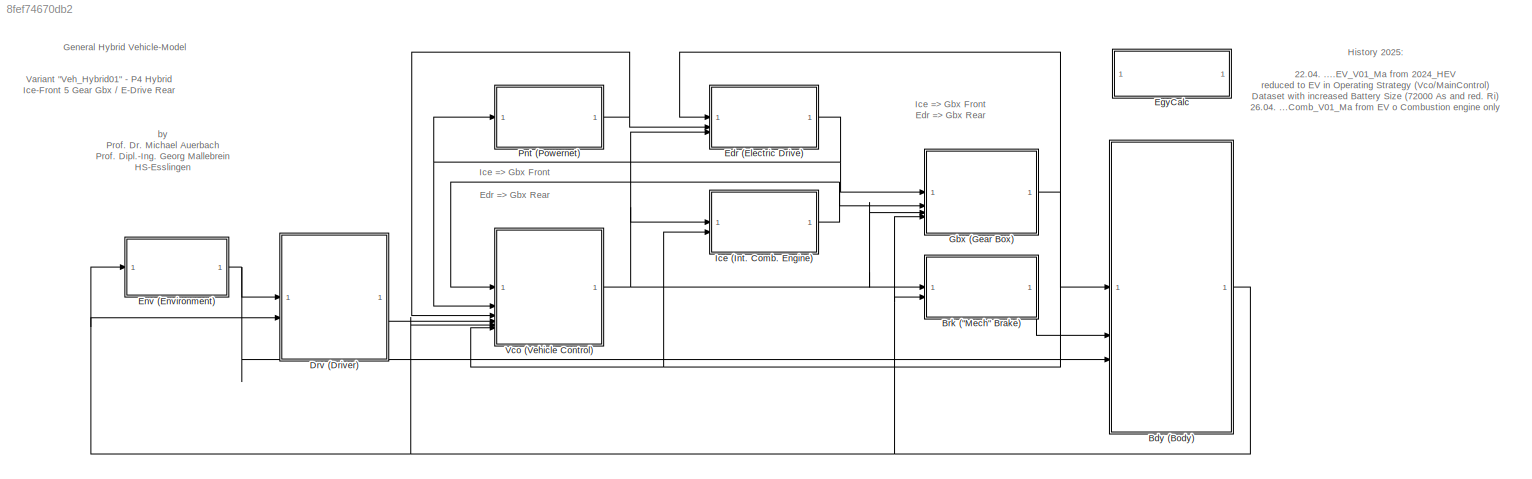
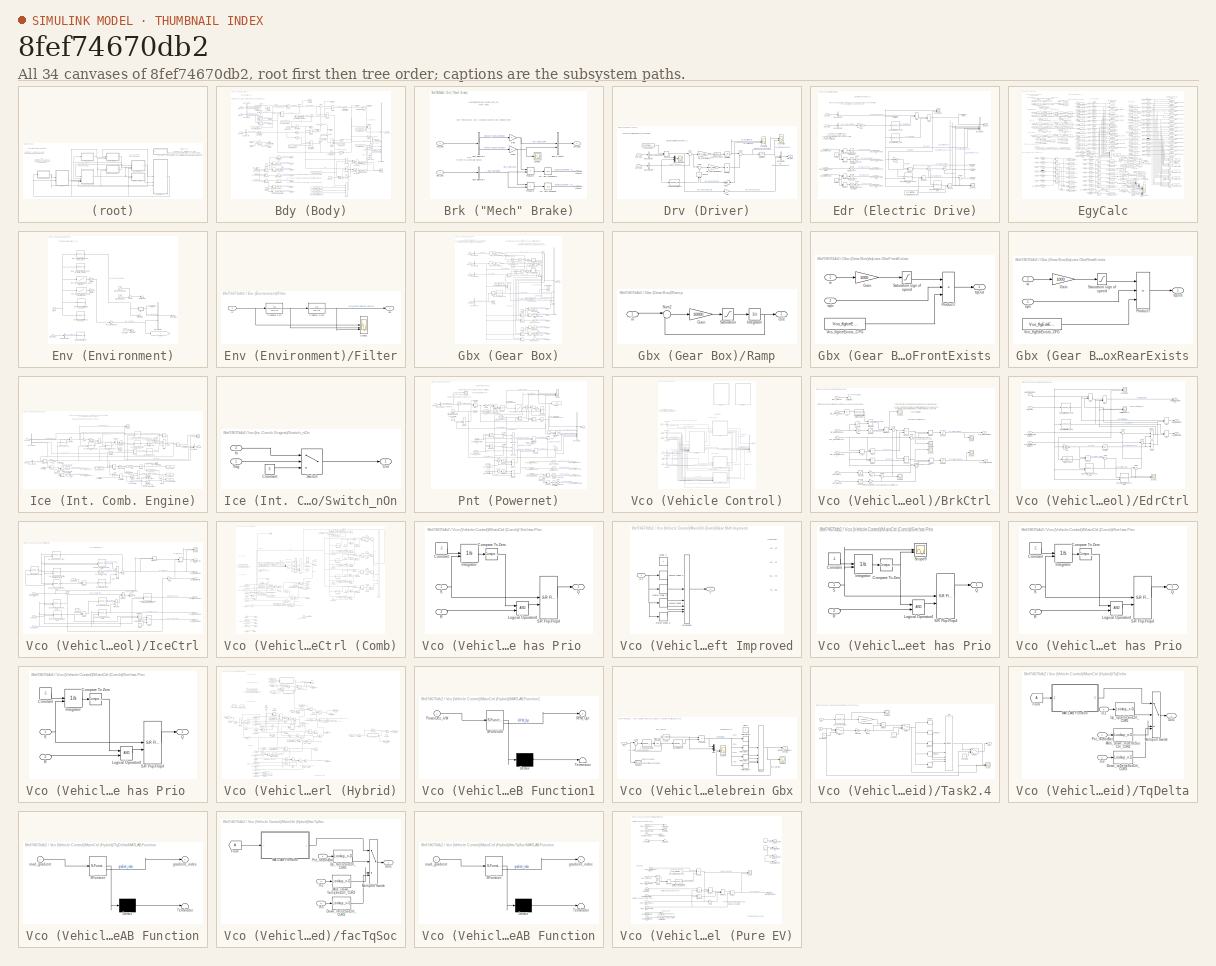
[diagram: thumbnail index - all 34 canvases of the model, root first then tree order]
MODEL slx_8fef74670db2
KIND model
CONFIG AbsTol = auto
CONFIG EnableMultiTasking = off
CONFIG FixedStep = auto
CONFIG MaxStep = auto
CONFIG MinStep = auto
CONFIG RelTol = 1e-5
CONFIG SampleTimeConstraint = Unconstrained
CONFIG SolverName = VariableStepAuto
CONFIG StartTime = 0.0
CONFIG StopTime = 552
BLOCK [SubSystem] Bdy (Body)
  NameLocation = top
BLOCK [Constant] Bdy (Body)/ wheel radius [m]  
  Value = Bdy_lenRadiusWheel_C
BLOCK [Constant] Bdy (Body)/1//2cwRohA
  Value = Bdy_vsqr2frc_C
BLOCK [Abs] Bdy (Body)/Abs
  SaturateOnIntegerOverflow = off
BLOCK [Outport] Bdy (Body)/Bdy_Bus
  VectorParamsAs1DForOutWhenUnconnected = off
BLOCK [Constant] Bdy (Body)/Bdy_facCoG_C
  Value = Bdy_facCoG_C
BLOCK [From] Bdy (Body)/Bdy_frcAccVeh
  GotoTag = Bdy_frcAccVeh
  TagVisibility = global
BLOCK [From] Bdy (Body)/Bdy_frcDrvRes
  GotoTag = Bdy_frcDrvRes
  TagVisibility = global
BLOCK [From] Bdy (Body)/Bdy_frcSlope
  GotoTag = Bdy_frcSlope
  NameLocation = top
  TagVisibility = global
BLOCK [Constant] Bdy (Body)/Bdy_lenWheelBase_C
  Value = Bdy_lenWheelBase_C
BLOCK [Constant] Bdy (Body)/Bdy_lenZCoG_C
  Value = Bdy_lenZCoG_C
BLOCK [From] Bdy (Body)/Bdy_vVeh
  GotoTag = Bdy_vVeh
  TagVisibility = global
BLOCK [Inport] Bdy (Body)/Brk_Bus
  Port = 2
BLOCK [BusCreator] Bdy (Body)/Bus Creator
  DisplayOption = bar
  InheritFromInputs = on
  Inputs = 6
BLOCK [BusSelector] Bdy (Body)/Bus Selector
  OutputSignals = Brk_tqBrkAxRe,Brk_tqBrkAxFr
BLOCK [BusSelector] Bdy (Body)/Bus Selector1
  OutputSignals = Gbx_tqGbxAxRe,Gbx_tqGbxAxFr
BLOCK [BusSelector] Bdy (Body)/Bus Selector3
  OutputSignals = Env_facSlope
BLOCK [Constant] Bdy (Body)/Constant
BLOCK [Product] Bdy (Body)/Divide
  Inputs = */
BLOCK [Product] Bdy (Body)/Divide1
  Inputs = */
BLOCK [Product] Bdy (Body)/Divide2
  Inputs = */
BLOCK [Product] Bdy (Body)/Divide3
  Inputs = */*
BLOCK [Product] Bdy (Body)/Divide4
  Inputs = ***/
BLOCK [Product] Bdy (Body)/Divide5
  Inputs = */
BLOCK [Product] Bdy (Body)/Divide6
  Inputs = */
BLOCK [Inport] Bdy (Body)/Env_Bus
  Port = 3
BLOCK [From] Bdy (Body)/From11
  GotoTag = Bdy_frcG
  TagVisibility = global
BLOCK [From] Bdy (Body)/From21
  GotoTag = Bdy_egySlope
  TagVisibility = global
BLOCK [Gain] Bdy (Body)/Gain
  Gain = 10000
BLOCK [Gain] Bdy (Body)/Gain1
  Gain = 3.6
BLOCK [Gain] Bdy (Body)/Gain2
  Gain = -1
BLOCK [Gain] Bdy (Body)/Gain3
  Gain = -1
BLOCK [Inport] Bdy (Body)/Gbx_Bus
BLOCK [Goto] Bdy (Body)/Goto1
  GotoTag = Bdy_frcDrvRes
  TagVisibility = global
BLOCK [Goto] Bdy (Body)/Goto10
  GotoTag = Bdy_frcAccVeh
  TagVisibility = global
BLOCK [Goto] Bdy (Body)/Goto11
  GotoTag = Bdy_frcG
  TagVisibility = global
BLOCK [Goto] Bdy (Body)/Goto12
  GotoTag = Bdy_egyAccelVeh
  TagVisibility = global
BLOCK [Goto] Bdy (Body)/Goto13
  GotoTag = Bdy_egyDecelVeh
  TagVisibility = global
BLOCK [Goto] Bdy (Body)/Goto14
  GotoTag = Bdy_lenDrivenVeh
  TagVisibility = global
BLOCK [Goto] Bdy (Body)/Goto15
  GotoTag = Bdy_kmhVeh
  TagVisibility = global
BLOCK [Goto] Bdy (Body)/Goto16
  GotoTag = Bdy_tqBrkAxRe
  TagVisibility = global
BLOCK [Goto] Bdy (Body)/Goto17
  GotoTag = Bdy_tqBrkAxFr
  TagVisibility = global
BLOCK [Goto] Bdy (Body)/Goto18
  GotoTag = Bdy_tqGbxAxRe
  TagVisibility = global
BLOCK [Goto] Bdy (Body)/Goto19
  GotoTag = Bdy_tqGbxAxFr
  TagVisibility = global
BLOCK [Goto] Bdy (Body)/Goto2
  GotoTag = Bdy_vVeh
  TagVisibility = global
BLOCK [Goto] Bdy (Body)/Goto3
  GotoTag = Bdy_frcSlope
  TagVisibility = global
BLOCK [Goto] Bdy (Body)/Goto4
  GotoTag = Bdy_egyBdyUphill
  TagVisibility = global
BLOCK [Goto] Bdy (Body)/Goto5
  GotoTag = Bdy_egyBdyDownhill
  TagVisibility = global
BLOCK [Goto] Bdy (Body)/Goto6
  GotoTag = Bdy_egyDrvRes
  TagVisibility = global
BLOCK [Goto] Bdy (Body)/Goto7
  GotoTag = Bdy_egySlope
  TagVisibility = global
BLOCK [Goto] Bdy (Body)/Goto8
  GotoTag = Bdy_egyKinVeh
  TagVisibility = global
BLOCK [Goto] Bdy (Body)/Goto9
  GotoTag = Bdy_lenDeltaAlt
  TagVisibility = global
BLOCK [Integrator] Bdy (Body)/Int. Accel Veh
BLOCK [Integrator] Bdy (Body)/Int. Bdy Downhill
BLOCK [Integrator] Bdy (Body)/Int. Bdy DrvRes
BLOCK [Integrator] Bdy (Body)/Int. Bdy Uphill
BLOCK [Integrator] Bdy (Body)/Int. Decel Veh
BLOCK [Integrator] Bdy (Body)/Int. work kinetic
BLOCK [Integrator] Bdy (Body)/Integrator  work slope
BLOCK [Integrator] Bdy (Body)/Integrator Distance [m]
  InitialCondition = 1E-10
BLOCK [Integrator] Bdy (Body)/Integrator Veh speed[m//s]
BLOCK [Reference] Bdy (Body)/Lowpass  REF=simulink_extras/Additional
Linear/Transfer Fcn
(with initial outputs)
  SourceBlock = simulink_extras/Additional\nLinear/Transfer Fcn\n(with initial outputs)
  SourceType = Transfer Function with Initial Outputs
BLOCK [Reference] Bdy (Body)/Lowpass   REF=simulink_extras/Additional
Linear/Transfer Fcn
(with initial outputs)
  SourceBlock = simulink_extras/Additional\nLinear/Transfer Fcn\n(with initial outputs)
  SourceType = Transfer Function with Initial Outputs
BLOCK [MinMax] Bdy (Body)/MinMax
  Function = max
  Inputs = 2
  ZeroCross = off
BLOCK [MinMax] Bdy (Body)/MinMax1
  Inputs = 2
  ZeroCross = off
BLOCK [MinMax] Bdy (Body)/MinMax2
  Function = max
  Inputs = 2
  ZeroCross = off
BLOCK [MinMax] Bdy (Body)/MinMax3
  Inputs = 2
  ZeroCross = off
BLOCK [Product] Bdy (Body)/Product m*g
BLOCK [Product] Bdy (Body)/Product1
BLOCK [Product] Bdy (Body)/Product2
BLOCK [Product] Bdy (Body)/Product3
BLOCK [Product] Bdy (Body)/Product4
BLOCK [Product] Bdy (Body)/Product7
BLOCK [Saturate] Bdy (Body)/Saturation
  LowerLimit = 0
  UpperLimit = inf
BLOCK [Saturate] Bdy (Body)/Saturation sign of speed
  LowerLimit = -1
  UpperLimit = 1
BLOCK [Saturate] Bdy (Body)/Saturation1
  LowerLimit = 0
  UpperLimit = inf
BLOCK [Scope] Bdy (Body)/Scope
  Floating = off
  NumInputPorts = 1
  ScopeSpecificationString = Simulink.scopes.TimeScopeBlockCfg('CurrentConfiguration', extmgr.ConfigurationSet(extmgr.Configuration('Core','General UI',true),extmgr.Configuration('Core','Source UI',true),extmgr.Configuration('Sources','WiredSimulink',true,'DataLoggingVariableName','ScopeData7'),extmgr.Configuration('Visuals','Time Domain',true,'SerializedDisplays',{struct('MinYLimReal','-4175.10801','MaxYLimReal','4193.69641'...<+1527ch>
BLOCK [Scope] Bdy (Body)/Scope (DeltaAltitude) 
  Floating = off
  NumInputPorts = 1
  ScopeSpecificationString = Simulink.scopes.TimeScopeBlockCfg('CurrentConfiguration', extmgr.ConfigurationSet(extmgr.Configuration('Core','General UI',true,'FigureColor',[0.831372549019608 0.815686274509804 0.784313725490196]),extmgr.Configuration('Core','Source UI',true),extmgr.Configuration('Sources','WiredSimulink',true,'DataLoggingVariableName','ScopeData1'),extmgr.Configuration('Visuals','Time Domain',true,'SerializedDi...<+1827ch>
BLOCK [Scope] Bdy (Body)/Scope1
  Floating = off
  NumInputPorts = 2
  ScopeSpecificationString = Simulink.scopes.TimeScopeBlockCfg('CurrentConfiguration', extmgr.ConfigurationSet(extmgr.Configuration('Core','General UI',true),extmgr.Configuration('Core','Source UI',true),extmgr.Configuration('Sources','WiredSimulink',true,'DataLoggingVariableName','ScopeData1'),extmgr.Configuration('Visuals','Time Domain',true,'SerializedDisplays',{struct('MinYLimReal','-1066.08516','MaxYLimReal','9604.76646'...<+1508ch>
BLOCK [Scope] Bdy (Body)/Scope2
  Floating = off
  NumInputPorts = 1
  ScopeSpecificationString = Simulink.scopes.TimeScopeBlockCfg('CurrentConfiguration', extmgr.ConfigurationSet(extmgr.Configuration('Core','General UI',true),extmgr.Configuration('Core','Source UI',true),extmgr.Configuration('Sources','WiredSimulink',true,'DataLoggingVariableName','ScopeData1'),extmgr.Configuration('Visuals','Time Domain',true,'SerializedDisplays',{struct('MinYLimReal','-408.86958','MaxYLimReal','1238.96452',...<+1548ch>
BLOCK [Sum] Bdy (Body)/Sum
  Inputs = |+-
BLOCK [Sum] Bdy (Body)/Sum1
  Inputs = |+-
BLOCK [Sum] Bdy (Body)/Sum2
  Inputs = |++
BLOCK [Sum] Bdy (Body)/Sum3
  Inputs = |++
  NameLocation = right
BLOCK [Sum] Bdy (Body)/Sum4
  Inputs = |++
BLOCK [Sum] Bdy (Body)/Sum5
  Inputs = |++
  NameLocation = top
BLOCK [Sum] Bdy (Body)/Sum6
  IconShape = rectangular
  Inputs = -+
  NameLocation = left
BLOCK [Sum] Bdy (Body)/Sum7
  Inputs = ++|
  NameLocation = right
BLOCK [Sum] Bdy (Body)/Sum8
  IconShape = rectangular
  NameLocation = left
BLOCK [Sum] Bdy (Body)/Sum9
  IconShape = rectangular
  Inputs = +-
  NameLocation = left
BLOCK [Trigonometry] Bdy (Body)/Trigonometric Function1
  Operator = atan
BLOCK [Constant] Bdy (Body)/Zero[W]
  Value = 0
BLOCK [Constant] Bdy (Body)/Zero[W]1
  Value = 0
BLOCK [Trigonometry] Bdy (Body)/cos
  Operator = cos
BLOCK [Constant] Bdy (Body)/facAntiSlip Security
  Value = 0.9
BLOCK [Constant] Bdy (Body)/facRollRes[fac]
  Value = Bdy_facTireFric_C
BLOCK [Product] Bdy (Body)/frcAbs Rolling Resistance
  Inputs = 3
BLOCK [Product] Bdy (Body)/frcAirDrag
  Inputs = 3
BLOCK [Product] Bdy (Body)/frcAxFr
BLOCK [Product] Bdy (Body)/frcAxFrDyn
BLOCK [Product] Bdy (Body)/frcAxRe
BLOCK [Product] Bdy (Body)/frcAxReDyn
BLOCK [Product] Bdy (Body)/frcRollRes
  NameLocation = left
BLOCK [Product] Bdy (Body)/frcSlope
BLOCK [Constant] Bdy (Body)/gravity const.
  Value = 9.81
BLOCK [Constant] Bdy (Body)/mass for rotating parts (m[kg])
  Value = Bdy_mEquivalentJ_C
BLOCK [Trigonometry] Bdy (Body)/sin
BLOCK [Product] Bdy (Body)/tqMaxAxFr
BLOCK [Product] Bdy (Body)/tqMaxAxRe
BLOCK [Constant] Bdy (Body)/vehicle mass (m[kg])
  Value = Bdy_mVeh_C
BLOCK [Constant] Bdy (Body)/vehicle mass (m[kg]) 
  Value = Bdy_mVeh_C
BLOCK [Constant] Bdy (Body)/wheel radius [m]
  Value = Bdy_lenRadiusWheel_C
BLOCK [Constant] Bdy (Body)/wheel radius [m] 
  Value = Bdy_lenRadiusWheel_C
BLOCK [SubSystem] Brk ("Mech" Brake)
BLOCK [Inport] Brk ("Mech" Brake)/Bdy_Bus
  Port = 2
BLOCK [Outport] Brk ("Mech" Brake)/Brk_Bus
  VectorParamsAs1DForOutWhenUnconnected = off
BLOCK [BusCreator] Brk ("Mech" Brake)/Bus Creator
  DisplayOption = bar
  InheritFromInputs = on
  Inputs = 2
BLOCK [BusSelector] Brk ("Mech" Brake)/Bus Selector1
  OutputSignals = BrkCtrl_tqBrkAxReDes,BrkCtrl_tqBrkAxFrDes
BLOCK [BusSelector] Brk ("Mech" Brake)/Bus Selector2
  OutputSignals = Bdy_wWheels
BLOCK [Gain] Brk ("Mech" Brake)/Gain
BLOCK [Gain] Brk ("Mech" Brake)/Gain1
BLOCK [Goto] Brk ("Mech" Brake)/Goto1
  GotoTag = Brk_egyBrkLossesFr
  TagVisibility = global
BLOCK [Goto] Brk ("Mech" Brake)/Goto3
  GotoTag = Brk_egyBrkLossesRe
  TagVisibility = global
BLOCK [Integrator] Brk ("Mech" Brake)/Int. Brk LossesFr
BLOCK [Integrator] Brk ("Mech" Brake)/Int. Brk LossesRe
BLOCK [Product] Brk ("Mech" Brake)/Product1
BLOCK [Product] Brk ("Mech" Brake)/Product7
BLOCK [Scope] Brk ("Mech" Brake)/Scope2
  Floating = off
  NumInputPorts = 1
  ScopeSpecificationString = Simulink.scopes.TimeScopeBlockCfg('CurrentConfiguration', extmgr.ConfigurationSet(extmgr.Configuration('Core','General UI',true),extmgr.Configuration('Core','Source UI',true),extmgr.Configuration('Sources','WiredSimulink',true,'DataLoggingVariableName','ScopeData2'),extmgr.Configuration('Visuals','Time Domain',true,'SerializedDisplays',{struct('MinYLimReal','-408.86958','MaxYLimReal','1238.96452',...<+1516ch>
BLOCK [Inport] Brk ("Mech" Brake)/Vco_Bus
BLOCK [SubSystem] Drv (Driver)
  NameLocation = top
BLOCK [Inport] Drv (Driver)/Bdy_Bus
  Port = 2
BLOCK [BusCreator] Drv (Driver)/Bus Creator
  DisplayOption = bar
  InheritFromInputs = on
  Inputs = 2
BLOCK [BusSelector] Drv (Driver)/Bus Selector
  OutputSignals = Env_kmhVehDes
BLOCK [BusSelector] Drv (Driver)/Bus Selector1
  OutputSignals = Bdy_kmhVeh
BLOCK [Outport] Drv (Driver)/Drv_Bus
  VectorParamsAs1DForOutWhenUnconnected = off
BLOCK [Gain] Drv (Driver)/Drv_kmh2gradtqDriver_C
  Gain = Drv_kmh2gradtqDriver_C
BLOCK [Gain] Drv (Driver)/Drv_kmh2tqDriver_C
  Gain = Drv_kmh2tqDriver_C
BLOCK [Inport] Drv (Driver)/Env_Bus
BLOCK [Lookup_n-D] Drv (Driver)/Feedback I-Part at v=0
  BreakpointsForDimension1 = [-1 -0.0001  0  0.0001  1]
  InputPortMap = u0
  InternalRulePriority = Speed
  NumberOfTableDimensions = 1
  RndMeth = Simplest
  Table = [0 0  1  0  0]
BLOCK [Gain] Drv (Driver)/Gain
BLOCK [Gain] Drv (Driver)/Gain1
  Gain = 0.005
BLOCK [Integrator] Drv (Driver)/Integrator
  LimitOutput = on
  LowerSaturationLimit = -1200
  UpperSaturationLimit = 1200
BLOCK [TransferFcn] Drv (Driver)/LowPass4Solver
  Denominator = [0.0001 1]
  NameLocation = top
BLOCK [MinMax] Drv (Driver)/MinMax
  Inputs = 2
BLOCK [Mux] Drv (Driver)/Mux
  DisplayOption = bar
  Inputs = 2
BLOCK [Product] Drv (Driver)/Product
  NameLocation = right
BLOCK [Saturate] Drv (Driver)/Saturation
  LowerLimit = -5000
  UpperLimit = 3000
BLOCK [Saturate] Drv (Driver)/Saturation1
  LowerLimit = -5000
  UpperLimit = 3000
BLOCK [Scope] Drv (Driver)/Scope Ctrl.
  Floating = off
  NumInputPorts = 2
  ScopeSpecificationString = Simulink.scopes.TimeScopeBlockCfg('CurrentConfiguration', extmgr.ConfigurationSet(extmgr.Configuration('Core','General UI',true,'FigureColor',[0.831372549019608 0.815686274509804 0.784313725490196]),extmgr.Configuration('Core','Source UI',true),extmgr.Configuration('Sources','WiredSimulink',true,'DataLoggingVariableName','ScopeData3','DataLoggingSaveFormat','StructureWithTime','DataLoggingDecimati...<+2070ch>
BLOCK [Scope] Drv (Driver)/Scope Ctrl.1
  Floating = off
  NumInputPorts = 2
  ScopeSpecificationString = Simulink.scopes.TimeScopeBlockCfg('CurrentConfiguration', extmgr.ConfigurationSet(extmgr.Configuration('Core','General UI',true,'FigureColor',[0.831372549019608 0.815686274509804 0.784313725490196]),extmgr.Configuration('Core','Source UI',true),extmgr.Configuration('Sources','WiredSimulink',true,'DataLoggingVariableName','ScopeData1','DataLoggingSaveFormat','StructureWithTime','DataLoggingDecimati...<+3005ch>
BLOCK [Scope] Drv (Driver)/Scope kmh
  Floating = off
  NumInputPorts = 1
  ScopeSpecificationString = Simulink.scopes.TimeScopeBlockCfg('CurrentConfiguration', extmgr.ConfigurationSet(extmgr.Configuration('Core','General UI',true,'FigureColor',[0.831372549019608 0.815686274509804 0.784313725490196]),extmgr.Configuration('Core','Source UI',true),extmgr.Configuration('Sources','WiredSimulink',true,'DataLoggingVariableName','ScopeData1','DataLoggingSaveFormat','StructureWithTime','DataLoggingDecimati...<+2082ch>
BLOCK [Sum] Drv (Driver)/Sum
  Inputs = |+-
BLOCK [Sum] Drv (Driver)/Sum1
  Inputs = |++
BLOCK [Sum] Drv (Driver)/Sum2
  Inputs = |+-
BLOCK [Constant] Drv (Driver)/v_maxKmhEdr
  Value = Edr_rpmMax_C*pi()/30/Gbx_facGbxRatioRe_C*Bdy_lenRadiusWheel_C*3.6
BLOCK [SubSystem] Edr (Electric Drive)
  NameLocation = top
BLOCK [BusCreator] Edr (Electric Drive)/Bus Creator
  DisplayOption = bar
  InheritFromInputs = on
  Inputs = 6
BLOCK [BusSelector] Edr (Electric Drive)/Bus Selector1
  OutputSignals = EdrCtrl_tqEdrLimDes
BLOCK [BusSelector] Edr (Electric Drive)/Bus Selector2
  OutputSignals = Gbx_wGbxMotorRe
BLOCK [Outport] Edr (Electric Drive)/Edr_Bus
  VectorParamsAs1DForOutWhenUnconnected = off
BLOCK [Goto] Edr (Electric Drive)/Edr_egyEdrLosses
  GotoTag = Edr_egyEdrLosses
  TagVisibility = global
BLOCK [Goto] Edr (Electric Drive)/Edr_egyElecEdr2Hvl
  GotoTag = Edr_egyElecEdr2Hvl
  TagVisibility = global
BLOCK [Goto] Edr (Electric Drive)/Edr_egyElecHvl2Edr
  GotoTag = Edr_egyElecHvl2Edr
  TagVisibility = global
BLOCK [Goto] Edr (Electric Drive)/Edr_egyMechEdr2Gbx
  GotoTag = Edr_egyMechEdr2Gbx
  TagVisibility = global
BLOCK [Goto] Edr (Electric Drive)/Edr_egyMechGbx2Edr
  GotoTag = Edr_egyMechGbx2Edr
  TagVisibility = global
BLOCK [From] Edr (Electric Drive)/Edr_pwrElecEdr 
  GotoTag = Edr_pwrElecEdr
  TagVisibility = global
BLOCK [Lookup_n-D] Edr (Electric Drive)/Edr_pwrInverterLosses_MAP
  BreakpointsForDimension1 = Edr_pwr_LossMap_AXIS
  BreakpointsForDimension2 = Edr_rpm_InvLossMap_AXIS
  ExtrapMethod = Clip
  InputPortMap = u0,u1
  InternalRulePriority = Speed
  RndMeth = Simplest
  Table = Edr_pwrInverterLosses_MAP
  UseLastTableValue = on
BLOCK [Lookup_n-D] Edr (Electric Drive)/Edr_pwrMachineLosses_MAP
  BreakpointsForDimension1 = Edr_tq_MachLossMap_AXIS
  BreakpointsForDimension2 = Edr_rpm_MachLossMap_AXIS
  ExtrapMethod = Clip
  InputPortMap = u0,u1
  InternalRulePriority = Speed
  RndMeth = Simplest
  Table = Edr_pwrMachineLosses_MAP
  UseLastTableValue = on
BLOCK [From] Edr (Electric Drive)/Edr_pwrMechEdr
  GotoTag = Edr_pwrMechEdr
  TagVisibility = global
BLOCK [From] Edr (Electric Drive)/Edr_pwrTotalLossesEdr
  GotoTag = Edr_pwrTotalLossesEdr
  TagVisibility = global
BLOCK [Lookup_n-D] Edr (Electric Drive)/Edr_tqEffEdrMax_CUR
  BreakpointsForDimension1 = Edr_rpm_MaxMinTq_AXIS
  ExtrapMethod = Clip
  InputPortMap = u0
  InternalRulePriority = Speed
  NumberOfTableDimensions = 1
  RndMeth = Simplest
  Table = Edr_tqEffMax_CUR
BLOCK [Lookup_n-D] Edr (Electric Drive)/Edr_tqEffEdrMin_CUR
  BreakpointsForDimension1 = Edr_rpm_MaxMinTq_AXIS
  ExtrapMethod = Clip
  InputPortMap = u0
  InternalRulePriority = Speed
  NumberOfTableDimensions = 1
  RndMeth = Simplest
  Table = -Edr_tqEffMax_CUR
BLOCK [Gain] Edr (Electric Drive)/Gain1
  Gain = -1
BLOCK [Gain] Edr (Electric Drive)/Gain2
  Gain = -1
BLOCK [Inport] Edr (Electric Drive)/Gbx_Bus
BLOCK [Goto] Edr (Electric Drive)/Goto
  GotoTag = Edr_pwrElecEdr
  TagVisibility = global
BLOCK [Goto] Edr (Electric Drive)/Goto 
  GotoTag = Edr_pwrTotalLossesEdr
  TagVisibility = global
BLOCK [Goto] Edr (Electric Drive)/Goto1
  GotoTag = Edr_tqEdr
  TagVisibility = global
BLOCK [Goto] Edr (Electric Drive)/Goto14
  GotoTag = Edr_nEdr
  TagVisibility = global
BLOCK [Goto] Edr (Electric Drive)/Goto2
  GotoTag = Edr_pwrMechEdr
  TagVisibility = global
BLOCK [Integrator] Edr (Electric Drive)/Int. Edr Losses
BLOCK [Integrator] Edr (Electric Drive)/Int. Edr egyElec Propulsion
BLOCK [Integrator] Edr (Electric Drive)/Int. Edr egyElecRecuperation
BLOCK [Integrator] Edr (Electric Drive)/Int. Edr egyMech Propulsion
BLOCK [Integrator] Edr (Electric Drive)/Int. Edr egyMechRecuperation
BLOCK [MinMax] Edr (Electric Drive)/Max
  Function = max
  Inputs = 2
BLOCK [MinMax] Edr (Electric Drive)/Min
  Inputs = 2
BLOCK [MinMax] Edr (Electric Drive)/MinMax
  Function = max
  Inputs = 2
  ZeroCross = off
BLOCK [MinMax] Edr (Electric Drive)/MinMax1
  Inputs = 2
  ZeroCross = off
BLOCK [MinMax] Edr (Electric Drive)/MinMax2
  Function = max
  Inputs = 2
  ZeroCross = off
BLOCK [MinMax] Edr (Electric Drive)/MinMax3
  Inputs = 2
  ZeroCross = off
BLOCK [Inport] Edr (Electric Drive)/Pnt_Bus
  Port = 2
BLOCK [Product] Edr (Electric Drive)/Product
BLOCK [Product] Edr (Electric Drive)/Product1
BLOCK [Product] Edr (Electric Drive)/Product2
BLOCK [Scope] Edr (Electric Drive)/Scope Edr
  Floating = off
  NumInputPorts = 2
  ScopeSpecificationString = Simulink.scopes.TimeScopeBlockCfg('CurrentConfiguration', extmgr.ConfigurationSet(extmgr.Configuration('Core','General UI',true,'FigureColor',[0.831372549019608 0.815686274509804 0.784313725490196]),extmgr.Configuration('Core','Source UI',true),extmgr.Configuration('Sources','WiredSimulink',true,'DataLoggingVariableName','ScopeData1','DataLoggingSaveFormat','StructureWithTime','DataLoggingDecimati...<+2533ch>
BLOCK [Scope] Edr (Electric Drive)/Scope1
  Floating = off
  NumInputPorts = 2
  ScopeSpecificationString = Simulink.scopes.TimeScopeBlockCfg('CurrentConfiguration', extmgr.ConfigurationSet(extmgr.Configuration('Core','General UI',true),extmgr.Configuration('Core','Source UI',true),extmgr.Configuration('Sources','WiredSimulink',true,'DataLoggingVariableName','ScopeData2'),extmgr.Configuration('Visuals','Time Domain',true,'SerializedDisplays',{struct('MinYLimReal','-1.00000','MaxYLimReal','1.00000','YLab...<+2042ch>
BLOCK [Sum] Edr (Electric Drive)/Sum
  Inputs = |++
BLOCK [Sum] Edr (Electric Drive)/Sum1
  Inputs = |++
BLOCK [Sum] Edr (Electric Drive)/Sum2
  Inputs = |++
BLOCK [Terminator] Edr (Electric Drive)/Terminator
BLOCK [Inport] Edr (Electric Drive)/Vco_Bus
  Port = 3
BLOCK [Constant] Edr (Electric Drive)/Vco_flgEdrExists_CFG
  Value = Vco_flgEdrExists_CFG
BLOCK [Constant] Edr (Electric Drive)/Zero[W]
  Value = 0
BLOCK [Constant] Edr (Electric Drive)/Zero[W] 
  Value = 0
BLOCK [Gain] Edr (Electric Drive)/n2w
  Gain = pi/30
BLOCK [Gain] Edr (Electric Drive)/w2n
  Gain = 30/pi
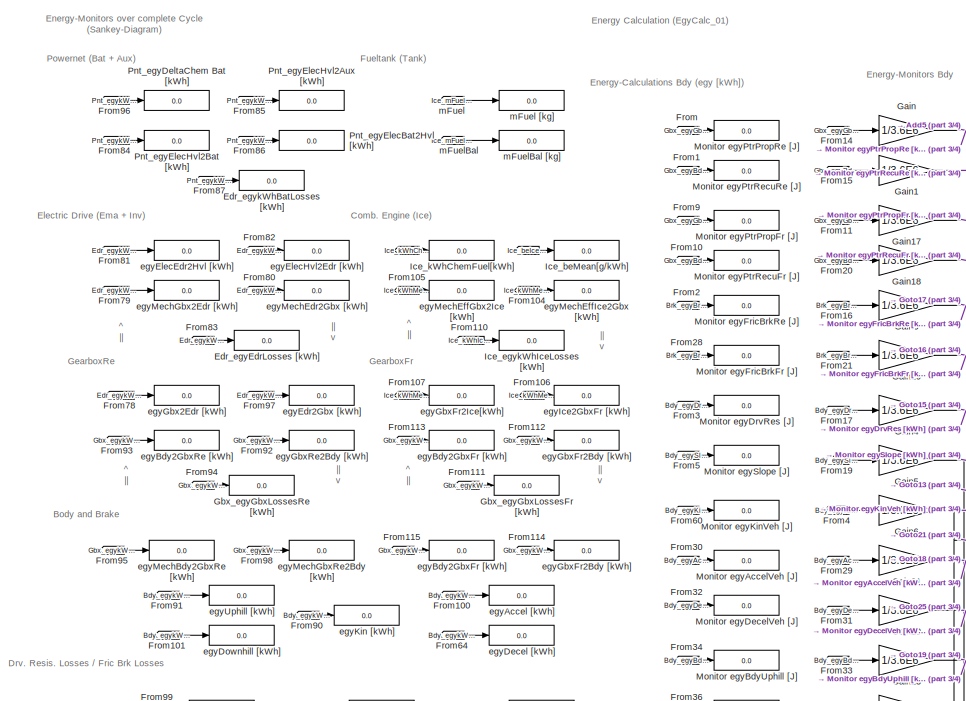
[diagram: EgyCalc - part 1/4, top left region]
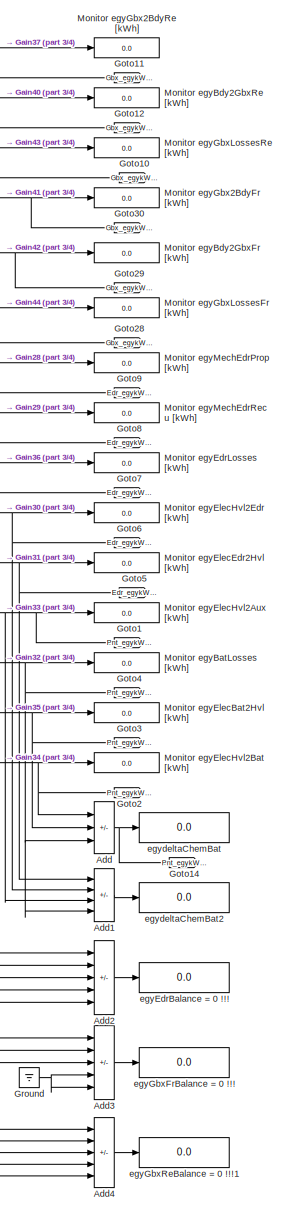
[diagram: EgyCalc - part 2/4, right side, full height]
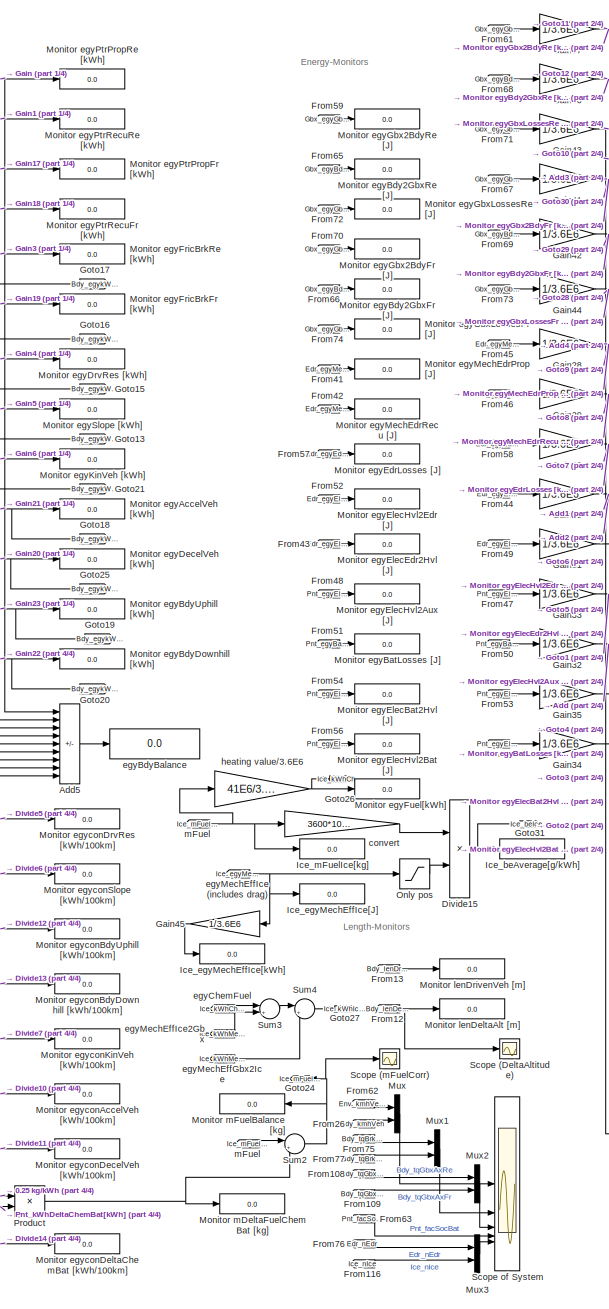
[diagram: EgyCalc - part 3/4, center side, full height]
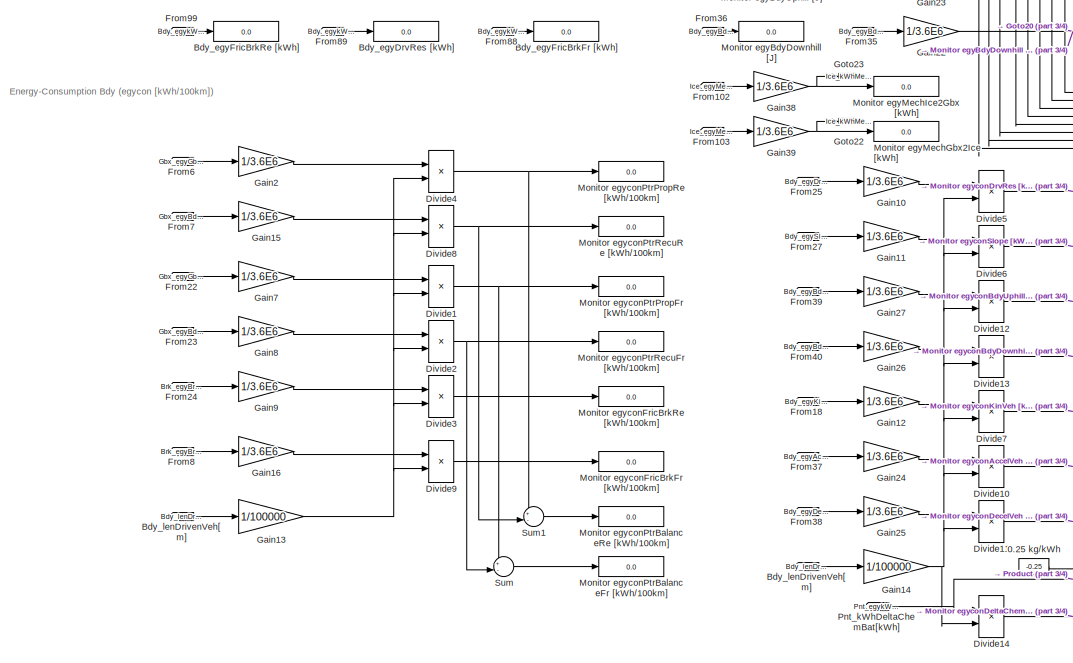
[diagram: EgyCalc - part 4/4, bottom left region]
BLOCK [SubSystem] EgyCalc
BLOCK [From] EgyCalc/ 
  GotoTag = Ice_kWhChemFuel
  TagVisibility = global
BLOCK [From] EgyCalc/  
  GotoTag = Ice_beIceMean
  TagVisibility = global
BLOCK [From] EgyCalc/ mFuel 
  GotoTag = Ice_mFuelIce
  TagVisibility = global
BLOCK [From] EgyCalc/ mFuelBal 
  GotoTag = Ice_mFuelBalanceIce
  TagVisibility = global
BLOCK [Constant] EgyCalc/0.25 kg//kWh
  NameLocation = top
  Value = -0.25
BLOCK [Sum] EgyCalc/Add
  IconShape = rectangular
  Inputs = +--
BLOCK [Sum] EgyCalc/Add1
  IconShape = rectangular
  Inputs = +---
BLOCK [Sum] EgyCalc/Add2
  IconShape = rectangular
  Inputs = ++---
BLOCK [Sum] EgyCalc/Add3
  IconShape = rectangular
  Inputs = -+-+-
BLOCK [Sum] EgyCalc/Add4
  IconShape = rectangular
  Inputs = -+-+-
BLOCK [Sum] EgyCalc/Add5
  IconShape = rectangular
  Inputs = ++-------
BLOCK [Display] EgyCalc/Bdy_egyDrvRes [kWh]
  Decimation = 1
  Format = bank
BLOCK [Display] EgyCalc/Bdy_egyFricBrkFr [kWh]
  Decimation = 1
  Format = bank
BLOCK [Display] EgyCalc/Bdy_egyFricBrkRe [kWh]
  Decimation = 1
  Format = bank
BLOCK [From] EgyCalc/Bdy_lenDrivenVeh[m]
  GotoTag = Bdy_lenDrivenVeh
  TagVisibility = global
BLOCK [From] EgyCalc/Bdy_lenDrivenVeh[m] 
  GotoTag = Bdy_lenDrivenVeh
  TagVisibility = global
BLOCK [Product] EgyCalc/Divide1
  Inputs = */
BLOCK [Product] EgyCalc/Divide10
  Inputs = */
BLOCK [Product] EgyCalc/Divide11
  Inputs = */
BLOCK [Product] EgyCalc/Divide12
  Inputs = */
BLOCK [Product] EgyCalc/Divide13
  Inputs = */
BLOCK [Product] EgyCalc/Divide14
  Inputs = */
BLOCK [Product] EgyCalc/Divide15
  Inputs = */
BLOCK [Product] EgyCalc/Divide2
  Inputs = */
BLOCK [Product] EgyCalc/Divide3
  Inputs = */
BLOCK [Product] EgyCalc/Divide4
  Inputs = */
BLOCK [Product] EgyCalc/Divide5
  Inputs = */
BLOCK [Product] EgyCalc/Divide6
  Inputs = */
BLOCK [Product] EgyCalc/Divide7
  Inputs = */
BLOCK [Product] EgyCalc/Divide8
  Inputs = */
BLOCK [Product] EgyCalc/Divide9
  Inputs = */
BLOCK [Display] EgyCalc/Edr_egyEdrLosses [kWh]
  Decimation = 1
  Format = bank
BLOCK [Display] EgyCalc/Edr_egykWhBatLosses [kWh]
  Decimation = 1
  Format = bank
BLOCK [From] EgyCalc/From
  GotoTag = Gbx_egyGbx2BdyRe
  TagVisibility = global
BLOCK [From] EgyCalc/From1
  GotoTag = Gbx_egyBdy2GbxRe
  TagVisibility = global
BLOCK [From] EgyCalc/From10
  GotoTag = Gbx_egyBdy2GbxFr
  TagVisibility = global
BLOCK [From] EgyCalc/From100
  GotoTag = Bdy_egykWhAccelVeh
  NameLocation = top
  TagVisibility = global
BLOCK [From] EgyCalc/From101
  GotoTag = Bdy_egykWhDownhill
  NameLocation = top
  TagVisibility = global
BLOCK [From] EgyCalc/From102
  GotoTag = Ice_egyMechIce2Gbx
  TagVisibility = global
BLOCK [From] EgyCalc/From103
  GotoTag = Ice_egyMechGbx2Ice
  TagVisibility = global
BLOCK [From] EgyCalc/From104
  GotoTag = Ice_kWhMechEffIce2Gbx
  TagVisibility = global
BLOCK [From] EgyCalc/From105
  GotoTag = Ice_kWhMechEffGbx2Ice
  TagVisibility = global
BLOCK [From] EgyCalc/From106
  GotoTag = Ice_kWhMechEffIce2Gbx
  TagVisibility = global
BLOCK [From] EgyCalc/From107
  GotoTag = Ice_kWhMechEffGbx2Ice
  TagVisibility = global
BLOCK [From] EgyCalc/From108
  GotoTag = Bdy_tqGbxAxRe
  TagVisibility = global
BLOCK [From] EgyCalc/From109
  GotoTag = Bdy_tqGbxAxFr
  TagVisibility = global
BLOCK [From] EgyCalc/From11
  GotoTag = Gbx_egyGbx2BdyFr
  TagVisibility = global
BLOCK [From] EgyCalc/From110
  GotoTag = Ice_kWhIceLosses
  TagVisibility = global
BLOCK [From] EgyCalc/From111
  GotoTag = Gbx_egykWhGbxLossesFr
  TagVisibility = global
BLOCK [From] EgyCalc/From112
  GotoTag = Gbx_egykWhGbx2BdyFr
  TagVisibility = global
BLOCK [From] EgyCalc/From113
  GotoTag = Gbx_egykWhBdy2GbxFr
  TagVisibility = global
BLOCK [From] EgyCalc/From114
  GotoTag = Gbx_egykWhGbx2BdyFr
  TagVisibility = global
BLOCK [From] EgyCalc/From115
  GotoTag = Gbx_egykWhBdy2GbxFr
  TagVisibility = global
BLOCK [From] EgyCalc/From116
  GotoTag = Ice_nIce
  TagVisibility = global
BLOCK [From] EgyCalc/From12
  GotoTag = Bdy_lenDeltaAlt
  TagVisibility = global
BLOCK [From] EgyCalc/From13
  GotoTag = Bdy_lenDrivenVeh
  TagVisibility = global
BLOCK [From] EgyCalc/From14
  GotoTag = Gbx_egyGbx2BdyRe
  TagVisibility = global
BLOCK [From] EgyCalc/From15
  GotoTag = Gbx_egyBdy2GbxRe
  TagVisibility = global
BLOCK [From] EgyCalc/From16
  GotoTag = Brk_egyBrkLossesRe
  TagVisibility = global
BLOCK [From] EgyCalc/From17
  GotoTag = Bdy_egyDrvRes
  TagVisibility = global
BLOCK [From] EgyCalc/From18
  GotoTag = Bdy_egyKinVeh
  TagVisibility = global
BLOCK [From] EgyCalc/From19
  GotoTag = Bdy_egySlope
  TagVisibility = global
BLOCK [From] EgyCalc/From2
  GotoTag = Brk_egyBrkLossesRe
  TagVisibility = global
BLOCK [From] EgyCalc/From20
  GotoTag = Gbx_egyBdy2GbxFr
  TagVisibility = global
BLOCK [From] EgyCalc/From21
  GotoTag = Brk_egyBrkLossesFr
  TagVisibility = global
BLOCK [From] EgyCalc/From22
  GotoTag = Gbx_egyGbx2BdyFr
  TagVisibility = global
BLOCK [From] EgyCalc/From23
  GotoTag = Gbx_egyBdy2GbxFr
  TagVisibility = global
BLOCK [From] EgyCalc/From24
  GotoTag = Brk_egyBrkLossesRe
  TagVisibility = global
BLOCK [From] EgyCalc/From25
  GotoTag = Bdy_egyDrvRes
  TagVisibility = global
BLOCK [From] EgyCalc/From26
  GotoTag = Bdy_kmhVeh
  TagVisibility = global
BLOCK [From] EgyCalc/From27
  GotoTag = Bdy_egySlope
  TagVisibility = global
BLOCK [From] EgyCalc/From28
  GotoTag = Brk_egyBrkLossesFr
  TagVisibility = global
BLOCK [From] EgyCalc/From29
  GotoTag = Bdy_egyAccelVeh
  TagVisibility = global
BLOCK [From] EgyCalc/From3
  GotoTag = Bdy_egyDrvRes
  TagVisibility = global
BLOCK [From] EgyCalc/From30
  GotoTag = Bdy_egyAccelVeh
  TagVisibility = global
BLOCK [From] EgyCalc/From31
  GotoTag = Bdy_egyDecelVeh
  TagVisibility = global
BLOCK [From] EgyCalc/From32
  GotoTag = Bdy_egyDecelVeh
  TagVisibility = global
BLOCK [From] EgyCalc/From33
  GotoTag = Bdy_egyBdyUphill
  TagVisibility = global
BLOCK [From] EgyCalc/From34
  GotoTag = Bdy_egyBdyUphill
  TagVisibility = global
BLOCK [From] EgyCalc/From35
  GotoTag = Bdy_egyBdyDownhill
  TagVisibility = global
BLOCK [From] EgyCalc/From36
  GotoTag = Bdy_egyBdyDownhill
  TagVisibility = global
BLOCK [From] EgyCalc/From37
  GotoTag = Bdy_egyAccelVeh
  TagVisibility = global
BLOCK [From] EgyCalc/From38
  GotoTag = Bdy_egyDecelVeh
  TagVisibility = global
BLOCK [From] EgyCalc/From39
  GotoTag = Bdy_egyBdyUphill
  TagVisibility = global
BLOCK [From] EgyCalc/From4
  GotoTag = Bdy_egyKinVeh
  TagVisibility = global
BLOCK [From] EgyCalc/From40
  GotoTag = Bdy_egyBdyDownhill
  TagVisibility = global
BLOCK [From] EgyCalc/From41
  GotoTag = Edr_egyMechEdr2Gbx
  TagVisibility = global
BLOCK [From] EgyCalc/From42
  GotoTag = Edr_egyMechGbx2Edr
  TagVisibility = global
BLOCK [From] EgyCalc/From43
  GotoTag = Edr_egyElecEdr2Hvl
  TagVisibility = global
BLOCK [From] EgyCalc/From44
  GotoTag = Edr_egyElecHvl2Edr
  TagVisibility = global
BLOCK [From] EgyCalc/From45
  GotoTag = Edr_egyMechEdr2Gbx
  TagVisibility = global
BLOCK [From] EgyCalc/From46
  GotoTag = Edr_egyMechGbx2Edr
  TagVisibility = global
BLOCK [From] EgyCalc/From47
  GotoTag = Pnt_egyElecHvl2Aux
  TagVisibility = global
BLOCK [From] EgyCalc/From48
  GotoTag = Pnt_egyElecHvl2Aux
  TagVisibility = global
BLOCK [From] EgyCalc/From49
  GotoTag = Edr_egyElecEdr2Hvl
  TagVisibility = global
BLOCK [From] EgyCalc/From5
  GotoTag = Bdy_egySlope
  TagVisibility = global
BLOCK [From] EgyCalc/From50
  GotoTag = Pnt_egyBatLosses
  TagVisibility = global
BLOCK [From] EgyCalc/From51
  GotoTag = Pnt_egyBatLosses
  TagVisibility = global
BLOCK [From] EgyCalc/From52
  GotoTag = Edr_egyElecHvl2Edr
  TagVisibility = global
BLOCK [From] EgyCalc/From53
  GotoTag = Pnt_egyElecBat2Hvl
  TagVisibility = global
BLOCK [From] EgyCalc/From54
  GotoTag = Pnt_egyElecBat2Hvl
  TagVisibility = global
BLOCK [From] EgyCalc/From55
  GotoTag = Pnt_egyElecHvl2Bat
  TagVisibility = global
BLOCK [From] EgyCalc/From56
  GotoTag = Pnt_egyElecHvl2Bat
  TagVisibility = global
BLOCK [From] EgyCalc/From57
  GotoTag = Edr_egyEdrLosses
  TagVisibility = global
BLOCK [From] EgyCalc/From58
  GotoTag = Edr_egyEdrLosses
  TagVisibility = global
BLOCK [From] EgyCalc/From59
  GotoTag = Gbx_egyGbx2BdyRe
  TagVisibility = global
BLOCK [From] EgyCalc/From6
  GotoTag = Gbx_egyGbx2BdyRe
  TagVisibility = global
BLOCK [From] EgyCalc/From60
  GotoTag = Bdy_egyKinVeh
  TagVisibility = global
BLOCK [From] EgyCalc/From61
  GotoTag = Gbx_egyGbx2BdyRe
  TagVisibility = global
BLOCK [From] EgyCalc/From62
  GotoTag = Env_kmhVehDes
  TagVisibility = global
BLOCK [From] EgyCalc/From63
  GotoTag = Pnt_facSocBat
  TagVisibility = global
BLOCK [From] EgyCalc/From64
  GotoTag = Bdy_egykWhDecelVeh
  NameLocation = top
  TagVisibility = global
BLOCK [From] EgyCalc/From65
  GotoTag = Gbx_egyBdy2GbxRe
  TagVisibility = global
BLOCK [From] EgyCalc/From66
  GotoTag = Gbx_egyBdy2GbxFr
  TagVisibility = global
BLOCK [From] EgyCalc/From67
  GotoTag = Gbx_egyGbx2BdyFr
  TagVisibility = global
BLOCK [From] EgyCalc/From68
  GotoTag = Gbx_egyBdy2GbxRe
  TagVisibility = global
BLOCK [From] EgyCalc/From69
  GotoTag = Gbx_egyBdy2GbxFr
  TagVisibility = global
BLOCK [From] EgyCalc/From7
  GotoTag = Gbx_egyBdy2GbxRe
  TagVisibility = global
BLOCK [From] EgyCalc/From70
  GotoTag = Gbx_egyGbx2BdyFr
  TagVisibility = global
BLOCK [From] EgyCalc/From71
  GotoTag = Gbx_egyGbxLossesRe
  TagVisibility = global
BLOCK [From] EgyCalc/From72
  GotoTag = Gbx_egyGbxLossesRe
  TagVisibility = global
BLOCK [From] EgyCalc/From73
  GotoTag = Gbx_egyGbxLossesFr
  TagVisibility = global
BLOCK [From] EgyCalc/From74
  GotoTag = Gbx_egyGbxLossesFr
  TagVisibility = global
BLOCK [From] EgyCalc/From75
  GotoTag = Bdy_tqBrkAxRe
  TagVisibility = global
BLOCK [From] EgyCalc/From76
  GotoTag = Edr_nEdr
  TagVisibility = global
BLOCK [From] EgyCalc/From77
  GotoTag = Bdy_tqBrkAxFr
  TagVisibility = global
BLOCK [From] EgyCalc/From78
  GotoTag = Edr_egykWhMechGbx2Edr
  TagVisibility = global
BLOCK [From] EgyCalc/From79
  GotoTag = Edr_egykWhMechGbx2Edr
  TagVisibility = global
BLOCK [From] EgyCalc/From8
  GotoTag = Brk_egyBrkLossesFr
  TagVisibility = global
BLOCK [From] EgyCalc/From80
  GotoTag = Edr_egykWhMechEdr2Gbx
  TagVisibility = global
BLOCK [From] EgyCalc/From81
  GotoTag = Edr_egykWhElecEdr2Hvl
  TagVisibility = global
BLOCK [From] EgyCalc/From82
  GotoTag = Edr_egykWhElecHvl2Edr
  TagVisibility = global
BLOCK [From] EgyCalc/From83
  GotoTag = Edr_egykWhEdrLosses
  TagVisibility = global
BLOCK [From] EgyCalc/From84
  GotoTag = Pnt_egykWhElecHvl2Bat
  TagVisibility = global
BLOCK [From] EgyCalc/From85
  GotoTag = Pnt_egykWhElecHvl2Aux
  TagVisibility = global
BLOCK [From] EgyCalc/From86
  GotoTag = Pnt_egykWhElecBat2Hvl
  TagVisibility = global
BLOCK [From] EgyCalc/From87
  GotoTag = Pnt_egykWhBatLosses
  TagVisibility = global
BLOCK [From] EgyCalc/From88
  GotoTag = Bdy_egykWhFricBrkFr
  TagVisibility = global
BLOCK [From] EgyCalc/From89
  GotoTag = Bdy_egykWhDrvRes
  TagVisibility = global
BLOCK [From] EgyCalc/From9
  GotoTag = Gbx_egyGbx2BdyFr
  TagVisibility = global
BLOCK [From] EgyCalc/From90
  GotoTag = Bdy_egykWhKin
  TagVisibility = global
BLOCK [From] EgyCalc/From91
  GotoTag = Bdy_egykWhUphill
  NameLocation = top
  TagVisibility = global
BLOCK [From] EgyCalc/From92
  GotoTag = Gbx_egykWhGbx2BdyRe
  TagVisibility = global
BLOCK [From] EgyCalc/From93
  GotoTag = Gbx_egykWhBdy2GbxRe
  TagVisibility = global
BLOCK [From] EgyCalc/From94
  GotoTag = Gbx_egykWhGbxLossesRe
  TagVisibility = global
BLOCK [From] EgyCalc/From95
  GotoTag = Gbx_egykWhBdy2GbxRe
  TagVisibility = global
BLOCK [From] EgyCalc/From96
  GotoTag = Pnt_egykWhDeltaChemBat
  TagVisibility = global
BLOCK [From] EgyCalc/From97
  GotoTag = Edr_egykWhMechEdr2Gbx
  TagVisibility = global
BLOCK [From] EgyCalc/From98
  GotoTag = Gbx_egykWhGbx2BdyRe
  TagVisibility = global
BLOCK [From] EgyCalc/From99
  GotoTag = Bdy_egykWhFricBrkRe
  TagVisibility = global
BLOCK [Gain] EgyCalc/Gain
  Gain = 1/3.6E6
BLOCK [Gain] EgyCalc/Gain1
  Gain = 1/3.6E6
BLOCK [Gain] EgyCalc/Gain10
  Gain = 1/3.6E6
BLOCK [Gain] EgyCalc/Gain11
  Gain = 1/3.6E6
BLOCK [Gain] EgyCalc/Gain12
  Gain = 1/3.6E6
BLOCK [Gain] EgyCalc/Gain13
  Gain = 1/100000
BLOCK [Gain] EgyCalc/Gain14
  Gain = 1/100000
BLOCK [Gain] EgyCalc/Gain15
  Gain = 1/3.6E6
BLOCK [Gain] EgyCalc/Gain16
  Gain = 1/3.6E6
BLOCK [Gain] EgyCalc/Gain17
  Gain = 1/3.6E6
BLOCK [Gain] EgyCalc/Gain18
  Gain = 1/3.6E6
BLOCK [Gain] EgyCalc/Gain19
  Gain = 1/3.6E6
BLOCK [Gain] EgyCalc/Gain2
  Gain = 1/3.6E6
BLOCK [Gain] EgyCalc/Gain20
  Gain = 1/3.6E6
BLOCK [Gain] EgyCalc/Gain21
  Gain = 1/3.6E6
BLOCK [Gain] EgyCalc/Gain22
  Gain = 1/3.6E6
BLOCK [Gain] EgyCalc/Gain23
  Gain = 1/3.6E6
BLOCK [Gain] EgyCalc/Gain24
  Gain = 1/3.6E6
BLOCK [Gain] EgyCalc/Gain25
  Gain = 1/3.6E6
BLOCK [Gain] EgyCalc/Gain26
  Gain = 1/3.6E6
BLOCK [Gain] EgyCalc/Gain27
  Gain = 1/3.6E6
BLOCK [Gain] EgyCalc/Gain28
  Gain = 1/3.6E6
BLOCK [Gain] EgyCalc/Gain29
  Gain = 1/3.6E6
BLOCK [Gain] EgyCalc/Gain3
  Gain = 1/3.6E6
BLOCK [Gain] EgyCalc/Gain30
  Gain = 1/3.6E6
BLOCK [Gain] EgyCalc/Gain31
  Gain = 1/3.6E6
BLOCK [Gain] EgyCalc/Gain32
  Gain = 1/3.6E6
BLOCK [Gain] EgyCalc/Gain33
  Gain = 1/3.6E6
BLOCK [Gain] EgyCalc/Gain34
  Gain = 1/3.6E6
BLOCK [Gain] EgyCalc/Gain35
  Gain = 1/3.6E6
BLOCK [Gain] EgyCalc/Gain36
  Gain = 1/3.6E6
BLOCK [Gain] EgyCalc/Gain37
  Gain = 1/3.6E6
BLOCK [Gain] EgyCalc/Gain38
  Gain = 1/3.6E6
BLOCK [Gain] EgyCalc/Gain39
  Gain = 1/3.6E6
BLOCK [Gain] EgyCalc/Gain4
  Gain = 1/3.6E6
BLOCK [Gain] EgyCalc/Gain40
  Gain = 1/3.6E6
BLOCK [Gain] EgyCalc/Gain41
  Gain = 1/3.6E6
BLOCK [Gain] EgyCalc/Gain42
  Gain = 1/3.6E6
BLOCK [Gain] EgyCalc/Gain43
  Gain = 1/3.6E6
BLOCK [Gain] EgyCalc/Gain44
  Gain = 1/3.6E6
BLOCK [Gain] EgyCalc/Gain45
  Gain = 1/3.6E6
  NameLocation = top
BLOCK [Gain] EgyCalc/Gain5
  Gain = 1/3.6E6
BLOCK [Gain] EgyCalc/Gain6
  Gain = 1/3.6E6
BLOCK [Gain] EgyCalc/Gain7
  Gain = 1/3.6E6
BLOCK [Gain] EgyCalc/Gain8
  Gain = 1/3.6E6
BLOCK [Gain] EgyCalc/Gain9
  Gain = 1/3.6E6
BLOCK [Display] EgyCalc/Gbx_egyGbxLossesFr [kWh]
  Decimation = 1
  Format = bank
BLOCK [Display] EgyCalc/Gbx_egyGbxLossesRe [kWh]
  Decimation = 1
  Format = bank
BLOCK [Goto] EgyCalc/Goto1
  GotoTag = Pnt_egykWhElecHvl2Aux
  TagVisibility = global
BLOCK [Goto] EgyCalc/Goto10
  GotoTag = Gbx_egykWhGbxLossesRe
  TagVisibility = global
BLOCK [Goto] EgyCalc/Goto11
  GotoTag = Gbx_egykWhGbx2BdyRe
  TagVisibility = global
BLOCK [Goto] EgyCalc/Goto12
  GotoTag = Gbx_egykWhBdy2GbxRe
  TagVisibility = global
BLOCK [Goto] EgyCalc/Goto13
  GotoTag = Bdy_egykWhMechSlope
  TagVisibility = global
BLOCK [Goto] EgyCalc/Goto14
  GotoTag = Pnt_egykWhDeltaChemBat
  TagVisibility = global
BLOCK [Goto] EgyCalc/Goto15
  GotoTag = Bdy_egykWhDrvRes
  TagVisibility = global
BLOCK [Goto] EgyCalc/Goto16
  GotoTag = Bdy_egykWhFricBrkFr
  TagVisibility = global
BLOCK [Goto] EgyCalc/Goto17
  GotoTag = Bdy_egykWhFricBrkRe
  TagVisibility = global
BLOCK [Goto] EgyCalc/Goto18
  GotoTag = Bdy_egykWhAccelVeh
  TagVisibility = global
BLOCK [Goto] EgyCalc/Goto19
  GotoTag = Bdy_egykWhUphill
  TagVisibility = global
BLOCK [Goto] EgyCalc/Goto2
  GotoTag = Pnt_egykWhElecHvl2Bat
  TagVisibility = global
BLOCK [Goto] EgyCalc/Goto20
  GotoTag = Bdy_egykWhDownhill
  TagVisibility = global
BLOCK [Goto] EgyCalc/Goto21
  GotoTag = Bdy_egykWhKin
  TagVisibility = global
BLOCK [Goto] EgyCalc/Goto22
  GotoTag = Ice_kWhMechEffGbx2Ice
  TagVisibility = global
BLOCK [Goto] EgyCalc/Goto23
  GotoTag = Ice_kWhMechEffIce2Gbx
  TagVisibility = global
BLOCK [Goto] EgyCalc/Goto24
  GotoTag = Ice_mFuelBalanceIce
  TagVisibility = global
BLOCK [Goto] EgyCalc/Goto25
  GotoTag = Bdy_egykWhDecelVeh
  TagVisibility = global
BLOCK [Goto] EgyCalc/Goto26
  GotoTag = Ice_kWhChemFuel
  TagVisibility = global
BLOCK [Goto] EgyCalc/Goto27
  GotoTag = Ice_kWhIceLosses
  TagVisibility = global
BLOCK [Goto] EgyCalc/Goto28
  GotoTag = Gbx_egykWhGbxLossesFr
  TagVisibility = global
BLOCK [Goto] EgyCalc/Goto29
  GotoTag = Gbx_egykWhBdy2GbxFr
  TagVisibility = global
BLOCK [Goto] EgyCalc/Goto3
  GotoTag = Pnt_egykWhElecBat2Hvl
  TagVisibility = global
BLOCK [Goto] EgyCalc/Goto30
  GotoTag = Gbx_egykWhGbx2BdyFr
  TagVisibility = global
BLOCK [Goto] EgyCalc/Goto31
  GotoTag = Ice_beIceMean
  TagVisibility = global
BLOCK [Goto] EgyCalc/Goto4
  GotoTag = Pnt_egykWhBatLosses
  TagVisibility = global
BLOCK [Goto] EgyCalc/Goto5
  GotoTag = Edr_egykWhElecEdr2Hvl
  TagVisibility = global
BLOCK [Goto] EgyCalc/Goto6
  GotoTag = Edr_egykWhElecHvl2Edr
  TagVisibility = global
BLOCK [Goto] EgyCalc/Goto7
  GotoTag = Edr_egykWhEdrLosses
  TagVisibility = global
BLOCK [Goto] EgyCalc/Goto8
  GotoTag = Edr_egykWhMechGbx2Edr
  TagVisibility = global
BLOCK [Goto] EgyCalc/Goto9
  GotoTag = Edr_egykWhMechEdr2Gbx
  TagVisibility = global
BLOCK [Ground] EgyCalc/Ground
BLOCK [Display] EgyCalc/Ice_beAverage[g//kWh]
  Decimation = 1
BLOCK [Display] EgyCalc/Ice_beMean[g//kWh]
  Decimation = 1
  Format = bank
BLOCK [Display] EgyCalc/Ice_egyMechEffIce[J]
  Decimation = 1
BLOCK [Display] EgyCalc/Ice_egyMechEffIce[kWh]
  Decimation = 1
BLOCK [Display] EgyCalc/Ice_egykWhIceLosses [kWh]
  Decimation = 1
  Format = bank
BLOCK [Display] EgyCalc/Ice_kWhChemFuel[kWh]
  Decimation = 1
  Format = bank
BLOCK [Display] EgyCalc/Ice_mFuelIce[kg]
  Decimation = 1
BLOCK [Display] EgyCalc/Monitor egyAccelVeh [J]
  Decimation = 1
  Format = short_e
BLOCK [Display] EgyCalc/Monitor egyAccelVeh [kWh]
  Decimation = 1
BLOCK [Display] EgyCalc/Monitor egyBatLosses [J]
  Decimation = 1
  Format = short_e
BLOCK [Display] EgyCalc/Monitor egyBatLosses [kWh]
  Decimation = 1
BLOCK [Display] EgyCalc/Monitor egyBdy2GbxFr [J]
  Decimation = 1
  Format = short_e
BLOCK [Display] EgyCalc/Monitor egyBdy2GbxFr [kWh]
  Decimation = 1
BLOCK [Display] EgyCalc/Monitor egyBdy2GbxRe [J]
  Decimation = 1
  Format = short_e
BLOCK [Display] EgyCalc/Monitor egyBdy2GbxRe [kWh]
  Decimation = 1
BLOCK [Display] EgyCalc/Monitor egyBdyDownhill [J]
  Decimation = 1
  Format = short_e
BLOCK [Display] EgyCalc/Monitor egyBdyDownhill [kWh]
  Decimation = 1
BLOCK [Display] EgyCalc/Monitor egyBdyUphill [J]
  Decimation = 1
  Format = short_e
BLOCK [Display] EgyCalc/Monitor egyBdyUphill [kWh]
  Decimation = 1
BLOCK [Display] EgyCalc/Monitor egyDecelVeh [J]
  Decimation = 1
  Format = short_e
BLOCK [Display] EgyCalc/Monitor egyDecelVeh [kWh]
  Decimation = 1
BLOCK [Display] EgyCalc/Monitor egyDrvRes [J]
  Decimation = 1
  Format = short_e
BLOCK [Display] EgyCalc/Monitor egyDrvRes [kWh]
  Decimation = 1
BLOCK [Display] EgyCalc/Monitor egyEdrLosses [J]
  Decimation = 1
  Format = short_e
BLOCK [Display] EgyCalc/Monitor egyEdrLosses [kWh]
  Decimation = 1
BLOCK [Display] EgyCalc/Monitor egyElecBat2Hvl [J]
  Decimation = 1
  Format = short_e
BLOCK [Display] EgyCalc/Monitor egyElecBat2Hvl [kWh]
  Decimation = 1
BLOCK [Display] EgyCalc/Monitor egyElecEdr2Hvl [J]
  Decimation = 1
  Format = short_e
BLOCK [Display] EgyCalc/Monitor egyElecEdr2Hvl [kWh]
  Decimation = 1
BLOCK [Display] EgyCalc/Monitor egyElecHvl2Aux [J]
  Decimation = 1
  Format = short_e
BLOCK [Display] EgyCalc/Monitor egyElecHvl2Aux [kWh]
  Decimation = 1
BLOCK [Display] EgyCalc/Monitor egyElecHvl2Bat [J]
  Decimation = 1
  Format = short_e
BLOCK [Display] EgyCalc/Monitor egyElecHvl2Bat [kWh]
  Decimation = 1
BLOCK [Display] EgyCalc/Monitor egyElecHvl2Edr [J]
  Decimation = 1
  Format = short_e
BLOCK [Display] EgyCalc/Monitor egyElecHvl2Edr [kWh]
  Decimation = 1
BLOCK [Display] EgyCalc/Monitor egyFricBrkFr [J]
  Decimation = 1
  Format = short_e
BLOCK [Display] EgyCalc/Monitor egyFricBrkFr [kWh]
  Decimation = 1
BLOCK [Display] EgyCalc/Monitor egyFricBrkRe [J]
  Decimation = 1
  Format = short_e
BLOCK [Display] EgyCalc/Monitor egyFricBrkRe [kWh]
  Decimation = 1
BLOCK [Display] EgyCalc/Monitor egyFuel[kWh]
  Decimation = 1
  Format = bank
BLOCK [Display] EgyCalc/Monitor egyGbx2BdyFr [J]
  Decimation = 1
  Format = short_e
BLOCK [Display] EgyCalc/Monitor egyGbx2BdyFr [kWh]
  Decimation = 1
BLOCK [Display] EgyCalc/Monitor egyGbx2BdyRe [J]
  Decimation = 1
  Format = short_e
BLOCK [Display] EgyCalc/Monitor egyGbx2BdyRe [kWh]
  Decimation = 1
BLOCK [Display] EgyCalc/Monitor egyGbxLossesFr [J]
  Decimation = 1
  Format = short_e
BLOCK [Display] EgyCalc/Monitor egyGbxLossesFr [kWh]
  Decimation = 1
BLOCK [Display] EgyCalc/Monitor egyGbxLossesRe [J]
  Decimation = 1
  Format = short_e
BLOCK [Display] EgyCalc/Monitor egyGbxLossesRe [kWh]
  Decimation = 1
BLOCK [Display] EgyCalc/Monitor egyKinVeh [J]
  Decimation = 1
  Format = short_e
BLOCK [Display] EgyCalc/Monitor egyKinVeh [kWh]
  Decimation = 1
  Format = bank
BLOCK [Display] EgyCalc/Monitor egyMechEdrProp [J]
  Decimation = 1
  Format = short_e
BLOCK [Display] EgyCalc/Monitor egyMechEdrProp [kWh]
  Decimation = 1
BLOCK [Display] EgyCalc/Monitor egyMechEdrRecu [J]
  Decimation = 1
  Format = short_e
BLOCK [Display] EgyCalc/Monitor egyMechEdrRecu [kWh]
  Decimation = 1
BLOCK [Display] EgyCalc/Monitor egyMechGbx2Ice [kWh]
  Decimation = 1
BLOCK [Display] EgyCalc/Monitor egyMechIce2Gbx [kWh]
  Decimation = 1
BLOCK [Display] EgyCalc/Monitor egyPtrPropFr [J]
  Decimation = 1
  Format = short_e
BLOCK [Display] EgyCalc/Monitor egyPtrPropFr [kWh]
  Decimation = 1
BLOCK [Display] EgyCalc/Monitor egyPtrPropRe [J]
  Decimation = 1
  Format = short_e
BLOCK [Display] EgyCalc/Monitor egyPtrPropRe [kWh]
  Decimation = 1
BLOCK [Display] EgyCalc/Monitor egyPtrRecuFr [J]
  Decimation = 1
  Format = short_e
BLOCK [Display] EgyCalc/Monitor egyPtrRecuFr [kWh]
  Decimation = 1
BLOCK [Display] EgyCalc/Monitor egyPtrRecuRe [J]
  Decimation = 1
  Format = short_e
BLOCK [Display] EgyCalc/Monitor egyPtrRecuRe [kWh]
  Decimation = 1
BLOCK [Display] EgyCalc/Monitor egySlope [J]
  Decimation = 1
  Format = short_e
BLOCK [Display] EgyCalc/Monitor egySlope [kWh]
  Decimation = 1
BLOCK [Display] EgyCalc/Monitor egyconAccelVeh [kWh//100km]
  Decimation = 1
  Format = bank
BLOCK [Display] EgyCalc/Monitor egyconBdyDownhill [kWh//100km]
  Decimation = 1
  Format = bank
BLOCK [Display] EgyCalc/Monitor egyconBdyUphill [kWh//100km]
  Decimation = 1
  Format = bank
BLOCK [Display] EgyCalc/Monitor egyconDecelVeh [kWh//100km]
  Decimation = 1
  Format = bank
BLOCK [Display] EgyCalc/Monitor egyconDeltaChemBat [kWh//100km]
  Decimation = 1
  Format = bank
BLOCK [Display] EgyCalc/Monitor egyconDrvRes [kWh//100km]
  Decimation = 1
  Format = bank
BLOCK [Display] EgyCalc/Monitor egyconFricBrkFr [kWh//100km]
  Decimation = 1
  Format = bank
BLOCK [Display] EgyCalc/Monitor egyconFricBrkRe [kWh//100km]
  Decimation = 1
  Format = bank
BLOCK [Display] EgyCalc/Monitor egyconKinVeh [kWh//100km]
  Decimation = 1
  Format = bank
BLOCK [Display] EgyCalc/Monitor egyconPtrBalanceFr [kWh//100km]
  Decimation = 1
  Format = bank
BLOCK [Display] EgyCalc/Monitor egyconPtrBalanceRe [kWh//100km]
  Decimation = 1
  Format = bank
BLOCK [Display] EgyCalc/Monitor egyconPtrPropFr [kWh//100km]
  Decimation = 1
  Format = bank
BLOCK [Display] EgyCalc/Monitor egyconPtrPropRe [kWh//100km]
  Decimation = 1
  Format = bank
BLOCK [Display] EgyCalc/Monitor egyconPtrRecuFr [kWh//100km]
  Decimation = 1
  Format = bank
BLOCK [Display] EgyCalc/Monitor egyconPtrRecuRe [kWh//100km]
  Decimation = 1
  Format = bank
BLOCK [Display] EgyCalc/Monitor egyconSlope [kWh//100km]
  Decimation = 1
  Format = bank
BLOCK [Display] EgyCalc/Monitor lenDeltaAlt [m]
  Decimation = 1
  Format = bank
BLOCK [Display] EgyCalc/Monitor lenDrivenVeh [m]
  Decimation = 1
  Format = bank
BLOCK [Display] EgyCalc/Monitor mDeltaFuelChemBat [kg]
  Decimation = 1
  Format = bank
BLOCK [Display] EgyCalc/Monitor mFuelBalance [kg]
  Decimation = 1
  Format = bank
BLOCK [Mux] EgyCalc/Mux
  DisplayOption = bar
  Inputs = 2
BLOCK [Mux] EgyCalc/Mux1
  DisplayOption = bar
  Inputs = 2
BLOCK [Mux] EgyCalc/Mux2
  DisplayOption = bar
  Inputs = 2
BLOCK [Mux] EgyCalc/Mux3
  DisplayOption = bar
  Inputs = 2
BLOCK [Saturate] EgyCalc/Only pos
  LowerLimit = 0.1
  UpperLimit = inf
BLOCK [Display] EgyCalc/Pnt_egyDeltaChem Bat [kWh]
  Decimation = 1
  Format = bank
BLOCK [Display] EgyCalc/Pnt_egyElecBat2Hvl [kWh]
  Decimation = 1
  Format = bank
BLOCK [Display] EgyCalc/Pnt_egyElecHvl2Aux [kWh]
  Decimation = 1
  Format = bank
BLOCK [Display] EgyCalc/Pnt_egyElecHvl2Bat [kWh]
  Decimation = 1
  Format = bank
BLOCK [From] EgyCalc/Pnt_kWhDeltaChemBat[kWh]
  GotoTag = Pnt_egykWhDeltaChemBat
  TagVisibility = global
BLOCK [Product] EgyCalc/Product
BLOCK [Scope] EgyCalc/Scope (DeltaAltitude) 
  Floating = off
  NumInputPorts = 1
  ScopeSpecificationString = Simulink.scopes.TimeScopeBlockCfg('CurrentConfiguration', extmgr.ConfigurationSet(extmgr.Configuration('Core','General UI',true,'FigureColor',[0.831372549019608 0.815686274509804 0.784313725490196]),extmgr.Configuration('Core','Source UI',true),extmgr.Configuration('Sources','WiredSimulink',true,'DataLoggingVariableName','ScopeData1'),extmgr.Configuration('Visuals','Time Domain',true,'SerializedDi...<+1815ch>
BLOCK [Scope] EgyCalc/Scope (mFuelCorr) 
  Floating = off
  NumInputPorts = 1
  ScopeSpecificationString = Simulink.scopes.TimeScopeBlockCfg('CurrentConfiguration', extmgr.ConfigurationSet(extmgr.Configuration('Core','General UI',true,'FigureColor',[0.831372549019608 0.815686274509804 0.784313725490196]),extmgr.Configuration('Core','Source UI',true),extmgr.Configuration('Sources','WiredSimulink',true,'DataLoggingVariableName','ScopeData2'),extmgr.Configuration('Visuals','Time Domain',true,'SerializedDi...<+1802ch>
BLOCK [Scope] EgyCalc/Scope of System
  Floating = off
  NumInputPorts = 5
  ScopeSpecificationString = Simulink.scopes.TimeScopeBlockCfg('CurrentConfiguration', extmgr.ConfigurationSet(extmgr.Configuration('Core','General UI',true,'FigureColor',[0.831372549019608 0.815686274509804 0.784313725490196]),extmgr.Configuration('Core','Source UI',true),extmgr.Configuration('Sources','WiredSimulink',true,'DataLoggingVariableName','ScopeData1','DataLoggingSaveFormat','StructureWithTime','DataLoggingDecimati...<+4944ch>
BLOCK [Sum] EgyCalc/Sum
  Inputs = +-|
BLOCK [Sum] EgyCalc/Sum1
  Inputs = +-|
BLOCK [Sum] EgyCalc/Sum2
  Inputs = |++
BLOCK [Sum] EgyCalc/Sum3
  Inputs = |+-
BLOCK [Sum] EgyCalc/Sum4
  Inputs = |++
BLOCK [Gain] EgyCalc/convert
  Gain = 3600*1000000
  NameLocation = top
BLOCK [Display] EgyCalc/egyAccel [kWh]
  Decimation = 1
  Format = bank
BLOCK [Display] EgyCalc/egyBdy2GbxFr [kWh]
  Decimation = 1
  Format = bank
BLOCK [Display] EgyCalc/egyBdy2GbxFr [kWh] 
  Decimation = 1
  Format = bank
BLOCK [Display] EgyCalc/egyBdy2GbxRe [kWh]
  Decimation = 1
  Format = bank
BLOCK [Display] EgyCalc/egyBdyBalance
  Decimation = 1
BLOCK [From] EgyCalc/egyChemFuel
  GotoTag = Ice_kWhChemFuel
  TagVisibility = global
BLOCK [Display] EgyCalc/egyDecel [kWh]
  Decimation = 1
  Format = bank
BLOCK [Display] EgyCalc/egyDownhill [kWh]
  Decimation = 1
  Format = bank
BLOCK [Display] EgyCalc/egyEdr2Gbx [kWh]
  Decimation = 1
  Format = bank
BLOCK [Display] EgyCalc/egyEdrBalance = 0 !!!
  Decimation = 1
BLOCK [Display] EgyCalc/egyElecEdr2Hvl [kWh]
  Decimation = 1
  Format = bank
BLOCK [Display] EgyCalc/egyElecHvl2Edr [kWh]
  Decimation = 1
  Format = bank
BLOCK [Display] EgyCalc/egyGbx2Edr [kWh]
  Decimation = 1
  Format = bank
BLOCK [Display] EgyCalc/egyGbxFr2Bdy [kWh]
  Decimation = 1
  Format = bank
BLOCK [Display] EgyCalc/egyGbxFr2Bdy [kWh] 
  Decimation = 1
  Format = bank
BLOCK [Display] EgyCalc/egyGbxFr2Ice[kWh]
  Decimation = 1
  Format = bank
BLOCK [Display] EgyCalc/egyGbxFrBalance = 0 !!!
  Decimation = 1
BLOCK [Display] EgyCalc/egyGbxRe2Bdy [kWh]
  Decimation = 1
  Format = bank
BLOCK [Display] EgyCalc/egyGbxReBalance = 0 !!!1
  Decimation = 1
BLOCK [Display] EgyCalc/egyIce2GbxFr [kWh]
  Decimation = 1
  Format = bank
BLOCK [Display] EgyCalc/egyKin [kWh]
  Decimation = 1
  Format = bank
BLOCK [Display] EgyCalc/egyMechBdy2GbxRe [kWh]
  Decimation = 1
  Format = bank
BLOCK [Display] EgyCalc/egyMechEdr2Gbx [kWh]
  Decimation = 1
  Format = bank
BLOCK [From] EgyCalc/egyMechEffGbx2Ice
  GotoTag = Ice_kWhMechEffGbx2Ice
  TagVisibility = global
BLOCK [Display] EgyCalc/egyMechEffGbx2Ice [kWh]
  Decimation = 1
  Format = bank
BLOCK [From] EgyCalc/egyMechEffIce (includes drag)
  GotoTag = Ice_egyMechEffIce
  TagVisibility = global
BLOCK [From] EgyCalc/egyMechEffIce2Gbx
  GotoTag = Ice_kWhMechEffIce2Gbx
  TagVisibility = global
BLOCK [Display] EgyCalc/egyMechEffIce2Gbx [kWh]
  Decimation = 1
  Format = bank
BLOCK [Display] EgyCalc/egyMechGbx2Edr [kWh]
  Decimation = 1
  Format = bank
BLOCK [Display] EgyCalc/egyMechGbxRe2Bdy [kWh]
  Decimation = 1
  Format = bank
BLOCK [Display] EgyCalc/egyUphill [kWh]
  Decimation = 1
  Format = bank
BLOCK [Display] EgyCalc/egydeltaChemBat
  Decimation = 1
BLOCK [Display] EgyCalc/egydeltaChemBat2
  Decimation = 1
BLOCK [Gain] EgyCalc/heating value//3.6E6
  Gain = 41E6/3.6E6
  NameLocation = top
BLOCK [From] EgyCalc/mFuel
  GotoTag = Ice_mFuelIce
  TagVisibility = global
BLOCK [From] EgyCalc/mFuel 
  GotoTag = Ice_mFuelIce
  TagVisibility = global
BLOCK [Display] EgyCalc/mFuel [kg] 
  Decimation = 1
BLOCK [Display] EgyCalc/mFuelBal [kg]
  Decimation = 1
BLOCK [SubSystem] Env (Environment)
  NameLocation = top
BLOCK [Lookup_n-D] Env (Environment)/  facSlope(len) WLTC 
  BreakpointsForDimension1 = Env_facSlope_WLTC_CUR(:,1)
  ExtrapMethod = Clip
  InputPortMap = u0
  InternalRulePriority = Speed
  InterpMethod = Linear Lagrange
  NumberOfTableDimensions = 1
  RndMeth = Simplest
  Table = Env_facSlope_WLTC_CUR(:,2)
BLOCK [Gain] Env (Environment)/%2fac
  Gain = 0.01
BLOCK [Gain] Env (Environment)/%2fac 
  Gain = 0.01
BLOCK [Inport] Env (Environment)/Bdy_Bus
BLOCK [BusCreator] Env (Environment)/Bus Creator
  DisplayOption = bar
  InheritFromInputs = on
  Inputs = 2
BLOCK [BusSelector] Env (Environment)/Bus Selector1
  OutputSignals = Bdy_lenDrivenVeh
BLOCK [Clock] Env (Environment)/Clock 
BLOCK [Constant] Env (Environment)/Constant
  Value = 0
BLOCK [Lookup_n-D] Env (Environment)/DesiredVelocity(t) NEDC 1200 sec
  BreakpointsForDimension1 = Env_vVehTime_NEDC_s
  ExtrapMethod = Clip
  InputPortMap = u0
  InternalRulePriority = Speed
  InterpMethod = Cubic spline
  NumberOfTableDimensions = 1
  RndMeth = Simplest
  Table = Env_vVehDes_NEDC_kmh
BLOCK [Lookup_n-D] Env (Environment)/DesiredVelocity(t) WLTC 1800 sec 
  BreakpointsForDimension1 = Env_vVehTime_WLTC_s
  ExtrapMethod = Clip
  InputPortMap = u0
  InternalRulePriority = Speed
  InterpMethod = Cubic spline
  NumberOfTableDimensions = 1
  RndMeth = Simplest
  Table = Env_vVehDes_WLTC_kmh
BLOCK [Outport] Env (Environment)/Env_Bus
  VectorParamsAs1DForOutWhenUnconnected = off
BLOCK [Lookup] Env (Environment)/Env_facSlopeBAB185_CUR = f(SimTime)
  InputValues = Env_facSlopeBAB185_CUR(:,1)
  LookUpMeth = Interpolation-Use End Values
  SaturateOnIntegerOverflow = off
  Table = Env_facSlopeBAB185_CUR(:,2)
BLOCK [Lookup] Env (Environment)/Env_facSlopeCrossCountry_CUR = f(SimTime)
  InputValues = Env_facSlopeCrossCountry_CUR(:,1)
  LookUpMeth = Interpolation-Use End Values
  SaturateOnIntegerOverflow = off
  Table = Env_facSlopeCrossCountry_CUR(:,2)
BLOCK [Lookup_n-D] Env (Environment)/Env_kmhDesBAB185_CUR_552s 
  BreakpointsForDimension1 = Env_kmhDesBAB185_CUR(:,1)
  ExtrapMethod = Clip
  InputPortMap = u0
  InternalRulePriority = Speed
  InterpMethod = Cubic spline
  NumberOfTableDimensions = 1
  RndMeth = Simplest
  Table = Env_kmhDesBAB185_CUR(:,2)
BLOCK [Lookup_n-D] Env (Environment)/Env_kmhDesCrossCountry_CUR_1200s 
  BreakpointsForDimension1 = Env_kmhDesCrossCountry_CUR(:,1)
  ExtrapMethod = Clip
  InputPortMap = u0
  InternalRulePriority = Speed
  InterpMethod = Cubic spline
  NumberOfTableDimensions = 1
  RndMeth = Simplest
  Table = Env_kmhDesCrossCountry_CUR(:,2)
BLOCK [SubSystem] Env (Environment)/Filter
BLOCK [Scope] Env (Environment)/Filter/Scope1
  Floating = off
  NumInputPorts = 3
  ScopeSpecificationString = Simulink.scopes.TimeScopeBlockCfg('CurrentConfiguration', extmgr.ConfigurationSet(extmgr.Configuration('Core','General UI',true,'FigureColor',[0.831372549019608 0.815686274509804 0.784313725490196]),extmgr.Configuration('Core','Source UI',true),extmgr.Configuration('Sources','WiredSimulink',true,'DataLoggingVariableName','ScopeData1'),extmgr.Configuration('Visuals','Time Domain',true,'SerializedDi...<+2036ch>
BLOCK [TransferFcn] Env (Environment)/Filter/Transfer Fcn
  Denominator = [0.1 1]
BLOCK [TransferFcn] Env (Environment)/Filter/Transfer Fcn1
  Denominator = [0.1 1]
BLOCK [Inport] Env (Environment)/Filter/in
BLOCK [Outport] Env (Environment)/Filter/out
BLOCK [Goto] Env (Environment)/Goto
  TagVisibility = global
BLOCK [Goto] Env (Environment)/Goto14
  GotoTag = Env_kmhVehDes
  TagVisibility = global
BLOCK [Step] Env (Environment)/StepSpeed Down
  After = -260
  SampleTime = 0
  Time = 150
BLOCK [Step] Env (Environment)/StepSpeed Up
  After = 260
  SampleTime = 0
  Time = 0
BLOCK [Sum] Env (Environment)/Sum4
  Inputs = ++|
BLOCK [Terminator] Env (Environment)/Terminator1
BLOCK [Terminator] Env (Environment)/Terminator2
BLOCK [Terminator] Env (Environment)/Terminator3
BLOCK [Gain] Env (Environment)/facActivateSlope
  Gain = -1
BLOCK [SubSystem] Gbx (Gear Box)
  NameLocation = top
BLOCK [Abs] Gbx (Gear Box)/Abs
  SaturateOnIntegerOverflow = off
BLOCK [Abs] Gbx (Gear Box)/Abs1
  SaturateOnIntegerOverflow = off
BLOCK [Inport] Gbx (Gear Box)/Bdy_Bus
  Port = 4
BLOCK [BusCreator] Gbx (Gear Box)/Bus Creator
  DisplayOption = bar
  InheritFromInputs = on
  Inputs = 6
BLOCK [BusSelector] Gbx (Gear Box)/Bus Selector1
  OutputSignals = Edr_tqEdr
BLOCK [BusSelector] Gbx (Gear Box)/Bus Selector2
  OutputSignals = Bdy_wWheels
BLOCK [BusSelector] Gbx (Gear Box)/Bus Selector3
  OutputSignals = Ice_tqEffIce
BLOCK [BusSelector] Gbx (Gear Box)/Bus Selector4
  OutputSignals = GbxCtrl_numGearAxFrDes
BLOCK [Constant] Gbx (Gear Box)/Constant1
  Value = Gbx_facGbxRatioRe_C
BLOCK [Inport] Gbx (Gear Box)/Edr_Bus
BLOCK [Gain] Gbx (Gear Box)/Gain1
  Gain = -1
BLOCK [Gain] Gbx (Gear Box)/Gain2
  Gain = -1
BLOCK [Outport] Gbx (Gear Box)/Gbx_Bus
  VectorParamsAs1DForOutWhenUnconnected = off
BLOCK [Gain] Gbx (Gear Box)/Gbx_facGbxLossesFr_C
  Gain = 0.025
BLOCK [Gain] Gbx (Gear Box)/Gbx_facGbxLossesRe_C
  Gain = 0.02
BLOCK [Gain] Gbx (Gear Box)/Gbx_facGbxRatioRe_C
  Gain = Gbx_facGbxRatioRe_C
BLOCK [Gain] Gbx (Gear Box)/Gbx_facGbxRatioRe_C 
  Gain = Gbx_facGbxRatioRe_C
BLOCK [Lookup_n-D] Gbx (Gear Box)/Gbx_facGearRatio_CUR 
  BreakpointsForDimension1 = [1 2  3  4   5]
  ExtrapMethod = Clip
  InputPortMap = u0
  InternalRulePriority = Speed
  NumberOfTableDimensions = 1
  RndMeth = Simplest
  Table = [10 7.1 5  3.6  2.6 ]
BLOCK [Constant] Gbx (Gear Box)/Gbx_tqOffsetGbxLossesFr_C
  NameLocation = top
  Value = 3
BLOCK [Constant] Gbx (Gear Box)/Gbx_tqOffsetGbxLossesRe_C
  NameLocation = top
  Value = 2.5
BLOCK [Goto] Gbx (Gear Box)/Goto1
  GotoTag = Gbx_egyGbx2BdyRe
  TagVisibility = global
BLOCK [Goto] Gbx (Gear Box)/Goto2
  GotoTag = Gbx_egyBdy2GbxRe
  TagVisibility = global
BLOCK [Goto] Gbx (Gear Box)/Goto3
  GotoTag = Gbx_egyGbxLossesRe
  TagVisibility = global
BLOCK [Goto] Gbx (Gear Box)/Goto4
  GotoTag = Gbx_egyGbx2BdyFr
  TagVisibility = global
BLOCK [Goto] Gbx (Gear Box)/Goto5
  GotoTag = Gbx_egyBdy2GbxFr
  TagVisibility = global
BLOCK [Goto] Gbx (Gear Box)/Goto6
  GotoTag = Gbx_egyGbxLossesFr
  TagVisibility = global
BLOCK [Inport] Gbx (Gear Box)/Ice_Bus
  Port = 2
BLOCK [Integrator] Gbx (Gear Box)/Int. Gbx LossesFr
BLOCK [Integrator] Gbx (Gear Box)/Int. Gbx LossesRe
BLOCK [Integrator] Gbx (Gear Box)/Int. Gbx Out PropulsionFr
BLOCK [Integrator] Gbx (Gear Box)/Int. Gbx Out PropulsionRe
BLOCK [Integrator] Gbx (Gear Box)/Int. Gbx RecuperationFr
BLOCK [Integrator] Gbx (Gear Box)/Int. Gbx RecuperationRe
BLOCK [MinMax] Gbx (Gear Box)/MinMax
  Function = max
  Inputs = 2
  ZeroCross = off
BLOCK [MinMax] Gbx (Gear Box)/MinMax1
  Inputs = 2
  ZeroCross = off
BLOCK [MinMax] Gbx (Gear Box)/MinMax2
  Function = max
  Inputs = 2
  ZeroCross = off
BLOCK [MinMax] Gbx (Gear Box)/MinMax3
  Inputs = 2
  ZeroCross = off
BLOCK [Product] Gbx (Gear Box)/Product1
BLOCK [Product] Gbx (Gear Box)/Product2
BLOCK [Product] Gbx (Gear Box)/Product3
BLOCK [Product] Gbx (Gear Box)/Product4
BLOCK [Product] Gbx (Gear Box)/Product5
  Inputs = 3
BLOCK [Product] Gbx (Gear Box)/Product6
BLOCK [Product] Gbx (Gear Box)/Product7
BLOCK [SubSystem] Gbx (Gear Box)/Ramp
BLOCK [Gain] Gbx (Gear Box)/Ramp/Gain
  Gain = 10000
BLOCK [Integrator] Gbx (Gear Box)/Ramp/Integrator
  InitialCondition = 1
BLOCK [Outport] Gbx (Gear Box)/Ramp/Out
BLOCK [Saturate] Gbx (Gear Box)/Ramp/Saturation
  LowerLimit = -10
  UpperLimit = 10
BLOCK [Sum] Gbx (Gear Box)/Ramp/Sum2
  Inputs = |+-
BLOCK [Inport] Gbx (Gear Box)/Ramp/in
BLOCK [Scope] Gbx (Gear Box)/Scope
  Floating = off
  NumInputPorts = 1
  ScopeSpecificationString = Simulink.scopes.TimeScopeBlockCfg('CurrentConfiguration', extmgr.ConfigurationSet(extmgr.Configuration('Core','General UI',true),extmgr.Configuration('Core','Source UI',true),extmgr.Configuration('Sources','WiredSimulink',true,'DataLoggingVariableName','ScopeData5'),extmgr.Configuration('Visuals','Time Domain',true,'SerializedDisplays',{struct('MinYLimReal','0.5','MaxYLimReal','5.5','YLabelReal','...<+1475ch>
BLOCK [Sum] Gbx (Gear Box)/Sum
  Inputs = |+-
BLOCK [Sum] Gbx (Gear Box)/Sum1
  Inputs = ++|
BLOCK [Sum] Gbx (Gear Box)/Sum2
  Inputs = ++|
BLOCK [Sum] Gbx (Gear Box)/Sum3
  Inputs = -+|
BLOCK [Inport] Gbx (Gear Box)/Vco_Bus
  Port = 3
BLOCK [Constant] Gbx (Gear Box)/Vco_flgEdrExists_CFG
  Value = Vco_flgEdrExists_CFG
BLOCK [Constant] Gbx (Gear Box)/Vco_flgIceExists_CFG
  NameLocation = top
  Value = Vco_flgIceExists_CFG
BLOCK [Constant] Gbx (Gear Box)/Zero[W]
  Value = 0
BLOCK [Constant] Gbx (Gear Box)/Zero[W]1
  Value = 0
BLOCK [Scope] Gbx (Gear Box)/facGbxRatioFr Scope
  Floating = off
  NumInputPorts = 1
  ScopeSpecificationString = Simulink.scopes.TimeScopeBlockCfg('CurrentConfiguration', extmgr.ConfigurationSet(extmgr.Configuration('Core','General UI',true,'FigureColor',[0.831372549019608 0.815686274509804 0.784313725490196]),extmgr.Configuration('Core','Source UI',true),extmgr.Configuration('Sources','WiredSimulink',true,'DataLoggingVariableName','ScopeData1','DataLoggingSaveFormat','StructureWithTime','DataLoggingDecimati...<+2057ch>
BLOCK [SubSystem] Gbx (Gear Box)/tqLoss GbxFrontExists
BLOCK [Gain] Gbx (Gear Box)/tqLoss GbxFrontExists/Gain
  Gain = 1000
BLOCK [Product] Gbx (Gear Box)/tqLoss GbxFrontExists/Product7
  Inputs = 3
BLOCK [Saturate] Gbx (Gear Box)/tqLoss GbxFrontExists/Saturation sign of speed
  LowerLimit = -1
  UpperLimit = 1
BLOCK [Constant] Gbx (Gear Box)/tqLoss GbxFrontExists/Vco_flgIceExists_CFG
  Value = Vco_flgIceExists_CFG
BLOCK [Inport] Gbx (Gear Box)/tqLoss GbxFrontExists/tqIn
  Port = 2
BLOCK [Outport] Gbx (Gear Box)/tqLoss GbxFrontExists/tqOut
BLOCK [Inport] Gbx (Gear Box)/tqLoss GbxFrontExists/w
BLOCK [SubSystem] Gbx (Gear Box)/tqLoss GbxRearExists
  NameLocation = top
BLOCK [Gain] Gbx (Gear Box)/tqLoss GbxRearExists/Gain
  Gain = 1000
BLOCK [Product] Gbx (Gear Box)/tqLoss GbxRearExists/Product7
  Inputs = 3
BLOCK [Saturate] Gbx (Gear Box)/tqLoss GbxRearExists/Saturation sign of speed
  LowerLimit = -1
  UpperLimit = 1
BLOCK [Constant] Gbx (Gear Box)/tqLoss GbxRearExists/Vco_flgEdrExists_CFG
  Value = Vco_flgEdrExists_CFG
BLOCK [Inport] Gbx (Gear Box)/tqLoss GbxRearExists/tqIn
BLOCK [Outport] Gbx (Gear Box)/tqLoss GbxRearExists/tqOut
BLOCK [Inport] Gbx (Gear Box)/tqLoss GbxRearExists/w
  Port = 2
BLOCK [SubSystem] Ice (Int. Comb. Engine)
BLOCK [Gain] Ice (Int. Comb. Engine)/ h to s
  Gain = 1/3600
  NameLocation = top
BLOCK [Gain] Ice (Int. Comb. Engine)/1E6
  Gain = 1000000
  NameLocation = top
BLOCK [BusCreator] Ice (Int. Comb. Engine)/Bus Creator
  DisplayOption = bar
  InheritFromInputs = on
  Inputs = 3
BLOCK [BusSelector] Ice (Int. Comb. Engine)/Bus Selector1
  OutputSignals = Gbx_wGbxMotorFr
BLOCK [BusSelector] Ice (Int. Comb. Engine)/Bus Selector4
  OutputSignals = IceCtrl_etaCocDes,IceCtrl_relLoadDes,IceCtrl_relFuelDes,GbxCtrl_facClutchCloseFr
BLOCK [Product] Ice (Int. Comb. Engine)/Divide1
  Inputs = */
BLOCK [Product] Ice (Int. Comb. Engine)/Divide2
  Inputs = */
BLOCK [Product] Ice (Int. Comb. Engine)/Divide3
  Inputs = */
BLOCK [Gain] Ice (Int. Comb. Engine)/Gain
  Gain = 10
BLOCK [Gain] Ice (Int. Comb. Engine)/Gain1
  Gain = -1
BLOCK [Inport] Ice (Int. Comb. Engine)/Gbx_Bus
  Port = 2
BLOCK [Outport] Ice (Int. Comb. Engine)/Ice_Bus
  VectorParamsAs1DForOutWhenUnconnected = off
BLOCK [Lookup_n-D] Ice (Int. Comb. Engine)/Ice_EtaLam_CUR
  BreakpointsForDimension1 = Ice_Lambda_AXIS
  ExtrapMethod = Clip
  InputPortMap = u0
  InternalRulePriority = Speed
  NumberOfTableDimensions = 1
  RndMeth = Simplest
  Table = Ice_etaLam_CUR
BLOCK [Constant] Ice (Int. Comb. Engine)/Ice_KUMSRL_C
  Value = Ice_KUMSRL_C
BLOCK [Display] Ice (Int. Comb. Engine)/Ice_beAverage[g//kWh]
  Decimation = 1
BLOCK [Display] Ice (Int. Comb. Engine)/Ice_be[g//kWh]
  Decimation = 1
BLOCK [Lookup_n-D] Ice (Int. Comb. Engine)/Ice_derfacLoadDecrease_MAP
  BreakpointsForDimension1 = Ice_relLoad_LoadDyn_AXIS
  BreakpointsForDimension2 = Ice_rpm_LoadDyn_AXIS
  ExtrapMethod = Clip
  InputPortMap = u0,u1
  InternalRulePriority = Speed
  RndMeth = Simplest
  Table = Ice_derfacLoadDecrease_MAP
  UseLastTableValue = on
BLOCK [Lookup_n-D] Ice (Int. Comb. Engine)/Ice_derfacLoadIncrease_MAP
  BreakpointsForDimension1 = Ice_relLoad_LoadDyn_AXIS
  BreakpointsForDimension2 = Ice_rpm_LoadDyn_AXIS
  ExtrapMethod = Clip
  InputPortMap = u0,u1
  InternalRulePriority = Speed
  RndMeth = Simplest
  Table = Ice_derfacLoadIncrease_MAP
  UseLastTableValue = on
BLOCK [Goto] Ice (Int. Comb. Engine)/Ice_egyMechEffIce
  GotoTag = Ice_egyMechEffIce
  TagVisibility = global
BLOCK [Display] Ice (Int. Comb. Engine)/Ice_egyMechEffIce[J]
  Decimation = 1
BLOCK [Goto] Ice (Int. Comb. Engine)/Ice_egyMechGbx2Ice
  GotoTag = Ice_egyMechGbx2Ice
  TagVisibility = global
BLOCK [Goto] Ice (Int. Comb. Engine)/Ice_egyMechIce2Gbx
  GotoTag = Ice_egyMechIce2Gbx
  TagVisibility = global
BLOCK [Goto] Ice (Int. Comb. Engine)/Ice_mFuelIce
  GotoTag = Ice_mFuelIce
  TagVisibility = global
BLOCK [Display] Ice (Int. Comb. Engine)/Ice_mFuel[kg]
  Decimation = 1
BLOCK [Goto] Ice (Int. Comb. Engine)/Ice_nIce
  GotoTag = Ice_nIce
  TagVisibility = global
BLOCK [Lookup_n-D] Ice (Int. Comb. Engine)/Ice_relLoad2relTqOptIgnLamOne_MAP
  BreakpointsForDimension1 = Ice_relLoad_AXIS
  BreakpointsForDimension2 = Ice_rpm_AXIS
  ExtrapMethod = Clip
  InputPortMap = u0,u1
  InternalRulePriority = Speed
  RndMeth = Simplest
  Table = Ice_relLoad2relTqOptIgnLamOne_MAP
BLOCK [Lookup_n-D] Ice (Int. Comb. Engine)/Ice_relLoadMax_CUR
  BreakpointsForDimension1 = Ice_rpm_relLoadMax_AXIS
  ExtrapMethod = Clip
  InputPortMap = u0
  InternalRulePriority = Speed
  NumberOfTableDimensions = 1
  RndMeth = Simplest
  Table = Ice_relLoad_Max_CUR
BLOCK [Gain] Ice (Int. Comb. Engine)/Ice_relTqInr2TqInr_C
  Gain = Ice_relTqInr2TqInr_C
BLOCK [Goto] Ice (Int. Comb. Engine)/Ice_tqEffIce
  GotoTag = Ice_tqEffIce
  TagVisibility = global
BLOCK [From] Ice (Int. Comb. Engine)/Ice_tqEffIce 
  GotoTag = Ice_tqEffIce
  TagVisibility = global
BLOCK [From] Ice (Int. Comb. Engine)/Ice_tqEffIce  
  GotoTag = Ice_tqEffIce
  TagVisibility = global
BLOCK [Lookup_n-D] Ice (Int. Comb. Engine)/Ice_tqLossesIce_MAP
  BreakpointsForDimension1 = Ice_relLoad_AXIS
  BreakpointsForDimension2 = Ice_rpm_AXIS
  ExtrapMethod = Clip
  InputPortMap = u0,u1
  InternalRulePriority = Speed
  RndMeth = Simplest
  Table = Ice_tqLossesIce_MAP
BLOCK [Integrator] Ice (Int. Comb. Engine)/Int. Ice egyMechEff Propulsion
BLOCK [Integrator] Ice (Int. Comb. Engine)/Int. Ice egyMechEff Recuperation
BLOCK [Integrator] Ice (Int. Comb. Engine)/Mainifold: Ice_relLoad
  InitialCondition = 80
  LimitOutput = on
  LowerSaturationLimit = 0
BLOCK [MinMax] Ice (Int. Comb. Engine)/MinMax1
  Function = max
  Inputs = 2
BLOCK [MinMax] Ice (Int. Comb. Engine)/MinMax2
  Inputs = 2
BLOCK [MinMax] Ice (Int. Comb. Engine)/MinMax3
  Inputs = 2
BLOCK [MinMax] Ice (Int. Comb. Engine)/MinMax4
  Function = max
  Inputs = 2
  ZeroCross = off
BLOCK [MinMax] Ice (Int. Comb. Engine)/MinMax5
  Inputs = 2
  ZeroCross = off
BLOCK [Product] Ice (Int. Comb. Engine)/Mult pwrEffIce
  Inputs = **
BLOCK [Product] Ice (Int. Comb. Engine)/Multi2
  Inputs = ***
BLOCK [Product] Ice (Int. Comb. Engine)/Multi3
  Inputs = ***
BLOCK [Product] Ice (Int. Comb. Engine)/Product
BLOCK [Product] Ice (Int. Comb. Engine)/Product1
BLOCK [Product] Ice (Int. Comb. Engine)/Product2
BLOCK [Saturate] Ice (Int. Comb. Engine)/Saturation
  LowerLimit = 0.0001
  UpperLimit = 1000
BLOCK [Saturate] Ice (Int. Comb. Engine)/Saturation sign of speed
  LowerLimit = -1
  UpperLimit = 1
BLOCK [Saturate] Ice (Int. Comb. Engine)/Saturation1
  LowerLimit = 0.1
  UpperLimit = inf
BLOCK [Saturate] Ice (Int. Comb. Engine)/Saturation2
  LowerLimit = 0
  UpperLimit = 1000
BLOCK [Saturate] Ice (Int. Comb. Engine)/Saturation3
  LowerLimit = 0.1
  UpperLimit = inf
BLOCK [Scope] Ice (Int. Comb. Engine)/Scope
  Floating = off
  NumInputPorts = 2
  ScopeSpecificationString = Simulink.scopes.TimeScopeBlockCfg('CurrentConfiguration', extmgr.ConfigurationSet(extmgr.Configuration('Core','General UI',true,'FigureColor',[0.8 0.8 0.8]),extmgr.Configuration('Core','Source UI',true),extmgr.Configuration('Sources','WiredSimulink',true,'DataLoggingVariableName','ScopeData2'),extmgr.Configuration('Visuals','Time Domain',true,'SerializedDisplays',{struct('MinYLimReal','-61.52853',...<+2361ch>
BLOCK [Scope] Ice (Int. Comb. Engine)/Scope (mFuel) 
  Floating = off
  NumInputPorts = 1
  ScopeSpecificationString = Simulink.scopes.TimeScopeBlockCfg('CurrentConfiguration', extmgr.ConfigurationSet(extmgr.Configuration('Core','General UI',true,'FigureColor',[0.831372549019608 0.815686274509804 0.784313725490196]),extmgr.Configuration('Core','Source UI',true),extmgr.Configuration('Sources','WiredSimulink',true,'DataLoggingVariableName','ScopeData1'),extmgr.Configuration('Visuals','Time Domain',true,'SerializedDi...<+1820ch>
BLOCK [Scope] Ice (Int. Comb. Engine)/Scope1
  Floating = off
  NumInputPorts = 2
  ScopeSpecificationString = Simulink.scopes.TimeScopeBlockCfg('CurrentConfiguration', extmgr.ConfigurationSet(extmgr.Configuration('Core','General UI',true),extmgr.Configuration('Core','Source UI',true),extmgr.Configuration('Sources','WiredSimulink',true,'DataLoggingVariableName','ScopeData1'),extmgr.Configuration('Visuals','Time Domain',true,'SerializedDisplays',{struct('MinYLimReal','126.64729','MaxYLimReal','146.02935','Y...<+1516ch>
BLOCK [Scope] Ice (Int. Comb. Engine)/Scope2
  Floating = off
  NumInputPorts = 2
  ScopeSpecificationString = Simulink.scopes.TimeScopeBlockCfg('CurrentConfiguration', extmgr.ConfigurationSet(extmgr.Configuration('Core','General UI',true,'FigureColor',[0.8 0.8 0.8]),extmgr.Configuration('Core','Source UI',true),extmgr.Configuration('Sources','WiredSimulink',true,'DataLoggingVariableName','ScopeData3'),extmgr.Configuration('Visuals','Time Domain',true,'SerializedDisplays',{struct('MinYLimReal','-524.05015'...<+1867ch>
BLOCK [Gain] Ice (Int. Comb. Engine)/StoechRatio
  Gain = 1/14.7
  NameLocation = top
BLOCK [Sum] Ice (Int. Comb. Engine)/Sum1
  Inputs = -+|
BLOCK [Sum] Ice (Int. Comb. Engine)/Sum5
  Inputs = -+|
BLOCK [SubSystem] Ice (Int. Comb. Engine)/Switch_nOn
BLOCK [Constant] Ice (Int. Comb. Engine)/Switch_nOn/Constant
  Value = 0
BLOCK [Inport] Ice (Int. Comb. Engine)/Switch_nOn/In
  Port = 2
BLOCK [Outport] Ice (Int. Comb. Engine)/Switch_nOn/Out
BLOCK [Switch] Ice (Int. Comb. Engine)/Switch_nOn/Switch
  Criteria = u2 > Threshold
  InputSameDT = off
  SaturateOnIntegerOverflow = off
  Threshold = 0.5
BLOCK [Inport] Ice (Int. Comb. Engine)/Switch_nOn/flag
BLOCK [Inport] Ice (Int. Comb. Engine)/Vco_Bus
BLOCK [Constant] Ice (Int. Comb. Engine)/Zero[W] 
  Value = 0
BLOCK [Gain] Ice (Int. Comb. Engine)/convert
  Gain = 3600*1000000
  NameLocation = top
BLOCK [Integrator] Ice (Int. Comb. Engine)/egyMechEffIce
BLOCK [Gain] Ice (Int. Comb. Engine)/facSettleIn
  Gain = 50
  NameLocation = top
BLOCK [Integrator] Ice (Int. Comb. Engine)/fuel[kg]
BLOCK [Gain] Ice (Int. Comb. Engine)/n2w
  Gain = pi/30
  NameLocation = top
BLOCK [Gain] Ice (Int. Comb. Engine)/w2n  
  Gain = 30/pi
BLOCK [SubSystem] Pnt (Powernet)
  NameLocation = top
BLOCK [Constant] Pnt (Powernet)/0 pwr
  Value = 0
BLOCK [Abs] Pnt (Powernet)/Abs
  SaturateOnIntegerOverflow = off
BLOCK [BusCreator] Pnt (Powernet)/Bus Creator
  DisplayOption = bar
  InheritFromInputs = on
  Inputs = 6
BLOCK [BusSelector] Pnt (Powernet)/Bus Selector1
  OutputSignals = Edr_pwrElecEdr
BLOCK [Display] Pnt (Powernet)/Display
  Decimation = 1
BLOCK [Product] Pnt (Powernet)/Divide
  Inputs = */
BLOCK [Product] Pnt (Powernet)/Divide1
  Inputs = */
BLOCK [Product] Pnt (Powernet)/Divide2
  Inputs = */*
BLOCK [Product] Pnt (Powernet)/Divide3
  Inputs = */*
BLOCK [Inport] Pnt (Powernet)/Edr_Bus
BLOCK [Gain] Pnt (Powernet)/Gain2
  Gain = -1
BLOCK [Goto] Pnt (Powernet)/Goto1
  GotoTag = Pnt_pwrElecBat2Hvl
  TagVisibility = global
BLOCK [Goto] Pnt (Powernet)/Goto2
  GotoTag = Pnt_pwrElecHvl2Aux
  TagVisibility = global
BLOCK [Integrator] Pnt (Powernet)/Int. Bat Losses
BLOCK [Integrator] Pnt (Powernet)/Int. Bat egyElecBat2Hvl
BLOCK [Integrator] Pnt (Powernet)/Int. Bat egyElecRecuperation
BLOCK [Integrator] Pnt (Powernet)/Int. egyAuxElec
BLOCK [Integrator] Pnt (Powernet)/Integrator
  InitialCondition = 0.8
  InitialConditionSource = external
  LimitOutput = on
  LowerSaturationLimit = 0
  UpperSaturationLimit = 1
BLOCK [Integrator] Pnt (Powernet)/Integrator1
  InitialCondition = 0.8
  InitialConditionSource = external
BLOCK [Gain] Pnt (Powernet)/Invert
  Gain = -1
BLOCK [MinMax] Pnt (Powernet)/MinMax
  Function = max
  Inputs = 2
BLOCK [MinMax] Pnt (Powernet)/MinMax1
  Function = max
  Inputs = 2
BLOCK [MinMax] Pnt (Powernet)/MinMax2
  Inputs = 2
BLOCK [MinMax] Pnt (Powernet)/MinMax3
  Inputs = 2
BLOCK [MinMax] Pnt (Powernet)/MinMax4
  Function = max
  Inputs = 2
  ZeroCross = off
BLOCK [MinMax] Pnt (Powernet)/MinMax5
  Inputs = 2
  ZeroCross = off
BLOCK [Outport] Pnt (Powernet)/Pnt_Bus
  VectorParamsAs1DForOutWhenUnconnected = off
BLOCK [Constant] Pnt (Powernet)/Pnt_capBat_C
  Value = Pnt_capBat_C
BLOCK [Goto] Pnt (Powernet)/Pnt_egyBatLosses
  GotoTag = Pnt_egyBatLosses
  TagVisibility = global
BLOCK [Goto] Pnt (Powernet)/Pnt_egyElecBat2Hvl
  GotoTag = Pnt_egyElecBat2Hvl
  TagVisibility = global
BLOCK [Goto] Pnt (Powernet)/Pnt_egyElecHvl2Aux
  GotoTag = Pnt_egyElecHvl2Aux
  TagVisibility = global
BLOCK [Goto] Pnt (Powernet)/Pnt_egyElecHvl2Bat
  GotoTag = Pnt_egyElecHvl2Bat
  TagVisibility = global
BLOCK [Goto] Pnt (Powernet)/Pnt_facSocBat
  GotoTag = Pnt_facSocBat
  TagVisibility = global
BLOCK [Constant] Pnt (Powernet)/Pnt_facSocInit_C
  Value = Pnt_facSocInit_C
BLOCK [Constant] Pnt (Powernet)/Pnt_iBatChrgMax_C
  Value = Pnt_iBatChrgMax_C
BLOCK [Constant] Pnt (Powernet)/Pnt_iBatDisChrgMax_C
  Value = Pnt_iBatDisChrgMax_C
BLOCK [Goto] Pnt (Powernet)/Pnt_pwrBatLosses
  GotoTag = Pnt_pwrBatLosses
  TagVisibility = global
BLOCK [From] Pnt (Powernet)/Pnt_pwrBatLosses 
  GotoTag = Pnt_pwrBatLosses
  TagVisibility = global
BLOCK [Constant] Pnt (Powernet)/Pnt_pwrElecAux (electric auxilliaries of vehicle)
  Value = 200
BLOCK [From] Pnt (Powernet)/Pnt_pwrElecBat2Hvl comprises pwrAuxElec
  GotoTag = Pnt_pwrElecBat2Hvl
  TagVisibility = global
BLOCK [From] Pnt (Powernet)/Pnt_pwrElecHvl2Aux
  GotoTag = Pnt_pwrElecHvl2Aux
  TagVisibility = global
BLOCK [Constant] Pnt (Powernet)/Pnt_resBatInner_C
  Value = Pnt_resBatInner_C
BLOCK [Constant] Pnt (Powernet)/Pnt_uBatMax_C
  Value = Pnt_uBatMax_C
BLOCK [Constant] Pnt (Powernet)/Pnt_uBatMin
  Value = 20
BLOCK [Constant] Pnt (Powernet)/Pnt_uBatMin_C
  Value = Pnt_uBatMin_C
BLOCK [Lookup] Pnt (Powernet)/Pnt_uBatOcv_CUR
  InputValues = Pnt_facSocBatOcv_AXIS
  LookUpMeth = Interpolation-Use End Values
  SaturateOnIntegerOverflow = off
  Table = Pnt_uBatOcv_CUR
BLOCK [Product] Pnt (Powernet)/Product
  RndMeth = Zero
BLOCK [Product] Pnt (Powernet)/Product1
  RndMeth = Zero
BLOCK [Product] Pnt (Powernet)/Product2
BLOCK [Product] Pnt (Powernet)/Product3
BLOCK [Product] Pnt (Powernet)/Product4
BLOCK [Product] Pnt (Powernet)/Product5
BLOCK [Saturate] Pnt (Powernet)/Saturation
  LowerLimit = 0
  UpperLimit = 1000
BLOCK [Saturate] Pnt (Powernet)/Saturation1
  LowerLimit = 0
  UpperLimit = 1000
BLOCK [Scope] Pnt (Powernet)/Scope
  Floating = off
  NumInputPorts = 4
  ScopeSpecificationString = Simulink.scopes.TimeScopeBlockCfg('CurrentConfiguration', extmgr.ConfigurationSet(extmgr.Configuration('Core','General UI',true,'FigureColor',[0.8 0.8 0.8]),extmgr.Configuration('Core','Source UI',true),extmgr.Configuration('Sources','WiredSimulink',true,'DataLoggingVariableName','ScopeData1','DataLoggingSaveFormat','StructureWithTime','DataLoggingDecimation','1','DataLoggingDecimateData',true),ex...<+5046ch>
BLOCK [Scope] Pnt (Powernet)/Scope1
  Floating = off
  NumInputPorts = 1
  ScopeSpecificationString = Simulink.scopes.TimeScopeBlockCfg('CurrentConfiguration', extmgr.ConfigurationSet(extmgr.Configuration('Core','General UI',true),extmgr.Configuration('Core','Source UI',true),extmgr.Configuration('Sources','WiredSimulink',true,'DataLoggingVariableName','ScopeData2','DataLoggingSaveFormat','StructureWithTime','DataLoggingLimitDataPoints',true,'DataLoggingDecimation','1','DataLoggingDecimateData',tr...<+1689ch>
BLOCK [Sum] Pnt (Powernet)/Sum1
  Inputs = |+-
BLOCK [Sum] Pnt (Powernet)/Sum2
  Inputs = |+-
BLOCK [Sum] Pnt (Powernet)/Sum3
  Inputs = |++
BLOCK [Sum] Pnt (Powernet)/Sum4
  Inputs = |+-
BLOCK [Sum] Pnt (Powernet)/Sum5
  Inputs = |++
BLOCK [Sum] Pnt (Powernet)/Sum6
  Inputs = |+-
BLOCK [Sum] Pnt (Powernet)/Sum7
  Inputs = |+-
BLOCK [Sum] Pnt (Powernet)/Sum8
  Inputs = |++
BLOCK [Sum] Pnt (Powernet)/Sum9
  Inputs = |-+
BLOCK [Constant] Pnt (Powernet)/Zero[W]
  Value = 0
BLOCK [Gain] Pnt (Powernet)/fac
  Gain = 100
BLOCK [SubSystem] Vco (Vehicle Control)
  NameLocation = top
BLOCK [Inport] Vco (Vehicle Control)/Bdy_Bus
  Port = 5
BLOCK [SubSystem] Vco (Vehicle Control)/BrkCtrl
BLOCK [Saturate] Vco (Vehicle Control)/BrkCtrl/  only pos  
  LowerLimit = 0
  NameLocation = top
  UpperLimit = inf
  ZeroCross = off
BLOCK [Abs] Vco (Vehicle Control)/BrkCtrl/Abs
  SaturateOnIntegerOverflow = off
  ZeroCross = off
BLOCK [Sum] Vco (Vehicle Control)/BrkCtrl/Add
  IconShape = rectangular
BLOCK [Inport] Vco (Vehicle Control)/BrkCtrl/Bdy_kmhVeh
BLOCK [Inport] Vco (Vehicle Control)/BrkCtrl/Bdy_tqAbsMaxAxFr
  Port = 5
BLOCK [Inport] Vco (Vehicle Control)/BrkCtrl/Bdy_tqAbsMaxAxRe
  Port = 4
BLOCK [Product] Vco (Vehicle Control)/BrkCtrl/Divide
  Inputs = */
BLOCK [Product] Vco (Vehicle Control)/BrkCtrl/Divide1
  Inputs = */
BLOCK [Inport] Vco (Vehicle Control)/BrkCtrl/Drv_kmhVehDesLim
  Port = 2
BLOCK [Inport] Vco (Vehicle Control)/BrkCtrl/Drv_tqWheelAxDes
  Port = 3
BLOCK [Gain] Vco (Vehicle Control)/BrkCtrl/Gain
  Gain = -1
BLOCK [Gain] Vco (Vehicle Control)/BrkCtrl/Gain1
  Gain = -1
BLOCK [Gain] Vco (Vehicle Control)/BrkCtrl/Gain2
  Gain = -1
BLOCK [Inport] Vco (Vehicle Control)/BrkCtrl/Gbx_tqAxFr
  Port = 6
BLOCK [Inport] Vco (Vehicle Control)/BrkCtrl/Gbx_tqAxRe
  Port = 7
BLOCK [MinMax] Vco (Vehicle Control)/BrkCtrl/MinMax
  Inputs = 2
  ZeroCross = off
BLOCK [MinMax] Vco (Vehicle Control)/BrkCtrl/MinMax1
  Inputs = 2
  ZeroCross = off
BLOCK [MinMax] Vco (Vehicle Control)/BrkCtrl/MinMax2
  Function = max
  Inputs = 2
  ZeroCross = off
BLOCK [Product] Vco (Vehicle Control)/BrkCtrl/Product
BLOCK [Product] Vco (Vehicle Control)/BrkCtrl/Product1
BLOCK [Product] Vco (Vehicle Control)/BrkCtrl/Product2
BLOCK [Scope] Vco (Vehicle Control)/BrkCtrl/Scope
  Floating = off
  NumInputPorts = 1
  ScopeSpecificationString = Simulink.scopes.TimeScopeBlockCfg('CurrentConfiguration', extmgr.ConfigurationSet(extmgr.Configuration('Core','General UI',true),extmgr.Configuration('Core','Source UI',true),extmgr.Configuration('Sources','WiredSimulink',true,'DataLoggingVariableName','ScopeData2'),extmgr.Configuration('Visuals','Time Domain',true,'SerializedDisplays',{struct('MinYLimReal','-348.00547','MaxYLimReal','3132.04923',...<+1625ch>
BLOCK [Scope] Vco (Vehicle Control)/BrkCtrl/Scope1
  Floating = off
  NumInputPorts = 1
  ScopeSpecificationString = Simulink.scopes.TimeScopeBlockCfg('CurrentConfiguration', extmgr.ConfigurationSet(extmgr.Configuration('Core','General UI',true),extmgr.Configuration('Core','Source UI',true),extmgr.Configuration('Sources','WiredSimulink',true,'DataLoggingVariableName','ScopeData4'),extmgr.Configuration('Visuals','Time Domain',true,'SerializedDisplays',{struct('MinYLimReal','482.16373','MaxYLimReal','607.21155','Y...<+1609ch>
BLOCK [Scope] Vco (Vehicle Control)/BrkCtrl/Scope2
  Floating = off
  NumInputPorts = 1
  ScopeSpecificationString = Simulink.scopes.TimeScopeBlockCfg('CurrentConfiguration', extmgr.ConfigurationSet(extmgr.Configuration('Core','General UI',true),extmgr.Configuration('Core','Source UI',true),extmgr.Configuration('Sources','WiredSimulink',true,'DataLoggingVariableName','ScopeData5'),extmgr.Configuration('Visuals','Time Domain',true,'SerializedDisplays',{struct('MinYLimReal','-6.62748','MaxYLimReal','0.73639','YLab...<+1597ch>
BLOCK [Scope] Vco (Vehicle Control)/BrkCtrl/Scope3
  Floating = off
  NumInputPorts = 1
  ScopeSpecificationString = Simulink.scopes.TimeScopeBlockCfg('CurrentConfiguration', extmgr.ConfigurationSet(extmgr.Configuration('Core','General UI',true),extmgr.Configuration('Core','Source UI',true),extmgr.Configuration('Sources','WiredSimulink',true,'DataLoggingVariableName','ScopeData6'),extmgr.Configuration('Visuals','Time Domain',true,'SerializedDisplays',{struct('MinYLimReal','-286.84803','MaxYLimReal','2545.80319',...<+1616ch>
BLOCK [Scope] Vco (Vehicle Control)/BrkCtrl/Scope5
  Floating = off
  NumInputPorts = 1
  ScopeSpecificationString = Simulink.scopes.TimeScopeBlockCfg('CurrentConfiguration', extmgr.ConfigurationSet(extmgr.Configuration('Core','General UI',true),extmgr.Configuration('Core','Source UI',true),extmgr.Configuration('Sources','WiredSimulink',true,'DataLoggingVariableName','ScopeData3'),extmgr.Configuration('Visuals','Time Domain',true,'SerializedDisplays',{struct('MinYLimReal','-170.20474','MaxYLimReal','1531.84268',...<+1612ch>
BLOCK [Scope] Vco (Vehicle Control)/BrkCtrl/Scope6
  Floating = off
  NumInputPorts = 1
  ScopeSpecificationString = Simulink.scopes.TimeScopeBlockCfg('CurrentConfiguration', extmgr.ConfigurationSet(extmgr.Configuration('Core','General UI',true),extmgr.Configuration('Core','Source UI',true),extmgr.Configuration('Sources','WiredSimulink',true,'DataLoggingVariableName','ScopeData4'),extmgr.Configuration('Visuals','Time Domain',true,'SerializedDisplays',{struct('MinYLimReal','-775.00000','MaxYLimReal','6975.00000',...<+1615ch>
BLOCK [Sum] Vco (Vehicle Control)/BrkCtrl/Sum
  Inputs = |+-
BLOCK [Sum] Vco (Vehicle Control)/BrkCtrl/Sum1
  Inputs = |+-
BLOCK [Sum] Vco (Vehicle Control)/BrkCtrl/Sum2
  Inputs = |+-
BLOCK [Sum] Vco (Vehicle Control)/BrkCtrl/Sum3
  Inputs = |++
BLOCK [Terminator] Vco (Vehicle Control)/BrkCtrl/Terminator
BLOCK [Lookup_n-D] Vco (Vehicle Control)/BrkCtrl/To harmonize with E-Drive Torque
  BreakpointsForDimension1 = [-0.1 0 0.05 0.1]
  InputPortMap = u0
  InternalRulePriority = Speed
  NumberOfTableDimensions = 1
  RndMeth = Simplest
  Table = [ 1  1  0  0]
BLOCK [Outport] Vco (Vehicle Control)/BrkCtrl/Vco_tqBrkAxlFrDes
BLOCK [Outport] Vco (Vehicle Control)/BrkCtrl/Vco_tqBrkAxlReDes
  Port = 2
BLOCK [Saturate] Vco (Vehicle Control)/BrkCtrl/only neg
  LowerLimit = -inf
  UpperLimit = 0
  ZeroCross = off
BLOCK [Saturate] Vco (Vehicle Control)/BrkCtrl/only neg 
  LowerLimit = -inf
  UpperLimit = 0
  ZeroCross = off
BLOCK [Saturate] Vco (Vehicle Control)/BrkCtrl/only pos
  LowerLimit = 0
  UpperLimit = inf
  ZeroCross = off
BLOCK [Saturate] Vco (Vehicle Control)/BrkCtrl/only pos 
  LowerLimit = 0
  UpperLimit = inf
  ZeroCross = off
BLOCK [Saturate] Vco (Vehicle Control)/BrkCtrl/only pos  
  LowerLimit = 0
  UpperLimit = inf
  ZeroCross = off
BLOCK [BusCreator] Vco (Vehicle Control)/Bus Creator
  DisplayOption = bar
  InheritFromInputs = on
  Inputs = 9
BLOCK [BusSelector] Vco (Vehicle Control)/Bus Selector1
  OutputSignals = Drv_kmhVehDesLim,Drv_tqDrvWheelAxDes
BLOCK [BusSelector] Vco (Vehicle Control)/Bus Selector2
  OutputSignals = Pnt_facSocBat,Pnt_pwrElecEdr2PntMax,Pnt_pwrElecPnt2EdrMax
BLOCK [BusSelector] Vco (Vehicle Control)/Bus Selector3
  OutputSignals = Bdy_tqAbsMaxAxFr,Bdy_tqAbsMaxAxRe,Bdy_kmhVeh
BLOCK [BusSelector] Vco (Vehicle Control)/Bus Selector4
  OutputSignals = Gbx_facGbxRatioFr,Gbx_facGbxRatioRe,Gbx_tqGbxAxFr,Gbx_tqGbxAxRe
BLOCK [BusSelector] Vco (Vehicle Control)/Bus Selector5
  OutputSignals = Ice_relLoad,Ice_nIce,Ice_tqEffIce
BLOCK [BusSelector] Vco (Vehicle Control)/Bus Selector6
  OutputSignals = Edr_nEdr
BLOCK [Inport] Vco (Vehicle Control)/Drv_Bus
  Port = 4
BLOCK [SubSystem] Vco (Vehicle Control)/EdrCtrl
BLOCK [Inport] Vco (Vehicle Control)/EdrCtrl/<Pnt_pwrElecEdr2PntMax>
  Port = 3
BLOCK [Inport] Vco (Vehicle Control)/EdrCtrl/<Pnt_pwrElecPnt2EdrMax>
  Port = 4
BLOCK [TransferFcn] Vco (Vehicle Control)/EdrCtrl/Break Loop
  Denominator = [0.01 1]
BLOCK [Product] Vco (Vehicle Control)/EdrCtrl/Divide
  Inputs = */
BLOCK [Product] Vco (Vehicle Control)/EdrCtrl/Divide1
  Inputs = */
BLOCK [Outport] Vco (Vehicle Control)/EdrCtrl/EdrCtrl_tqEdrLimDes
BLOCK [Outport] Vco (Vehicle Control)/EdrCtrl/EdrCtrl_tqEdrMax
  Port = 2
BLOCK [Outport] Vco (Vehicle Control)/EdrCtrl/EdrCtrl_tqEdrMin
  Port = 3
BLOCK [Inport] Vco (Vehicle Control)/EdrCtrl/Edr_nEdr
  Port = 2
BLOCK [Lookup_n-D] Vco (Vehicle Control)/EdrCtrl/Edr_pwrInverterLosses_MAP
  BreakpointsForDimension1 = Edr_pwr_LossMap_AXIS
  BreakpointsForDimension2 = Edr_rpm_InvLossMap_AXIS
  ExtrapMethod = Clip
  InputPortMap = u0,u1
  InternalRulePriority = Speed
  RndMeth = Simplest
  Table = Edr_pwrInverterLosses_MAP
  UseLastTableValue = on
BLOCK [Lookup_n-D] Vco (Vehicle Control)/EdrCtrl/Edr_pwrMachineLosses_MAP
  BreakpointsForDimension1 = Edr_tq_MachLossMap_AXIS
  BreakpointsForDimension2 = Edr_rpm_MachLossMap_AXIS
  ExtrapMethod = Clip
  InputPortMap = u0,u1
  InternalRulePriority = Speed
  RndMeth = Simplest
  Table = Edr_pwrMachineLosses_MAP
  UseLastTableValue = on
BLOCK [Lookup_n-D] Vco (Vehicle Control)/EdrCtrl/Edr_tqEffEdrMax_CUR
  BreakpointsForDimension1 = Edr_rpm_MaxMinTq_AXIS
  ExtrapMethod = Clip
  InputPortMap = u0
  InternalRulePriority = Speed
  NumberOfTableDimensions = 1
  RndMeth = Simplest
  Table = Edr_tqEffMax_CUR
BLOCK [Lookup_n-D] Vco (Vehicle Control)/EdrCtrl/Edr_tqEffEdrMin_CUR
  BreakpointsForDimension1 = Edr_rpm_MaxMinTq_AXIS
  ExtrapMethod = Clip
  InputPortMap = u0
  InternalRulePriority = Speed
  NumberOfTableDimensions = 1
  RndMeth = Simplest
  Table = -Edr_tqEffMax_CUR
BLOCK [Inport] Vco (Vehicle Control)/EdrCtrl/MainCtrl_tqEdrDes
BLOCK [MinMax] Vco (Vehicle Control)/EdrCtrl/Max
  Function = max
  Inputs = 3
BLOCK [MinMax] Vco (Vehicle Control)/EdrCtrl/Min
  Inputs = 3
BLOCK [MinMax] Vco (Vehicle Control)/EdrCtrl/Min1
  Inputs = 2
BLOCK [MinMax] Vco (Vehicle Control)/EdrCtrl/Min2
  Function = max
  Inputs = 2
BLOCK [Product] Vco (Vehicle Control)/EdrCtrl/Product
BLOCK [Saturate] Vco (Vehicle Control)/EdrCtrl/Saturation
  LowerLimit = 50
  UpperLimit = inf
BLOCK [Scope] Vco (Vehicle Control)/EdrCtrl/Scope Edr
  Floating = off
  NumInputPorts = 2
  ScopeSpecificationString = Simulink.scopes.TimeScopeBlockCfg('CurrentConfiguration', extmgr.ConfigurationSet(extmgr.Configuration('Core','General UI',true,'FigureColor',[0.831372549019608 0.815686274509804 0.784313725490196]),extmgr.Configuration('Core','Source UI',true),extmgr.Configuration('Sources','WiredSimulink',true,'DataLoggingVariableName','ScopeData1','DataLoggingSaveFormat','StructureWithTime','DataLoggingDecimati...<+2562ch>
BLOCK [Scope] Vco (Vehicle Control)/EdrCtrl/Scope1
  Floating = off
  NumInputPorts = 2
  ScopeSpecificationString = Simulink.scopes.TimeScopeBlockCfg('CurrentConfiguration', extmgr.ConfigurationSet(extmgr.Configuration('Core','General UI',true),extmgr.Configuration('Core','Source UI',true),extmgr.Configuration('Sources','WiredSimulink',true,'DataLoggingVariableName','ScopeData2'),extmgr.Configuration('Visuals','Time Domain',true,'SerializedDisplays',{struct('MinYLimReal','-2.28245','MaxYLimReal','20.54203','YLa...<+2053ch>
BLOCK [Sum] Vco (Vehicle Control)/EdrCtrl/Sum
  Inputs = |++
BLOCK [Sum] Vco (Vehicle Control)/EdrCtrl/Sum1
  Inputs = |+-
BLOCK [Sum] Vco (Vehicle Control)/EdrCtrl/Sum2
  Inputs = |++
BLOCK [Sum] Vco (Vehicle Control)/EdrCtrl/Sum3
  Inputs = |--
BLOCK [Gain] Vco (Vehicle Control)/EdrCtrl/n2w
  Gain = pi/30
BLOCK [Scope] Vco (Vehicle Control)/EdrCtrl/tqEffMinMaxPnt
  Floating = off
  NumInputPorts = 2
  ScopeSpecificationString = Simulink.scopes.TimeScopeBlockCfg('CurrentConfiguration', extmgr.ConfigurationSet(extmgr.Configuration('Core','General UI',true,'FigureColor',[0.831372549019608 0.815686274509804 0.784313725490196]),extmgr.Configuration('Core','Source UI',true),extmgr.Configuration('Sources','WiredSimulink',true,'DataLoggingVariableName','ScopeData3','DataLoggingSaveFormat','StructureWithTime','DataLoggingDecimati...<+2490ch>
BLOCK [Inport] Vco (Vehicle Control)/Edr_Bus
  Port = 2
BLOCK [Inport] Vco (Vehicle Control)/Gbx_Bus
  Port = 6
BLOCK [SubSystem] Vco (Vehicle Control)/IceCtrl
BLOCK [Constant] Vco (Vehicle Control)/IceCtrl/ zero 
  Value = 0
BLOCK [Constant] Vco (Vehicle Control)/IceCtrl/Constant1
BLOCK [Constant] Vco (Vehicle Control)/IceCtrl/Constant2
BLOCK [Product] Vco (Vehicle Control)/IceCtrl/Divide
  Inputs = */
BLOCK [Product] Vco (Vehicle Control)/IceCtrl/Divide1
  Inputs = */
BLOCK [Product] Vco (Vehicle Control)/IceCtrl/Divide2
  Inputs = */
BLOCK [Lookup_n-D] Vco (Vehicle Control)/IceCtrl/EcuIce_facEtaCocMax_MAP
  BreakpointsForDimension1 = Ice_relLoad_AXIS
  BreakpointsForDimension2 = Ice_rpm_AXIS
  ExtrapMethod = Clip
  InputPortMap = u0,u1
  InternalRulePriority = Speed
  RndMeth = Simplest
  Table = Ice_facEtaCocMax_MAP
BLOCK [Lookup_n-D] Vco (Vehicle Control)/IceCtrl/EcuIce_facEtaCocMax_MAP 
  BreakpointsForDimension1 = Ice_relLoad_AXIS
  BreakpointsForDimension2 = Ice_rpm_AXIS
  ExtrapMethod = Clip
  InputPortMap = u0,u1
  InternalRulePriority = Speed
  RndMeth = Simplest
  Table = Ice_facEtaCocMax_MAP
BLOCK [Lookup_n-D] Vco (Vehicle Control)/IceCtrl/EcuIce_facFuelEnRich_MAP
  BreakpointsForDimension1 = Ice_relLoad_AXIS
  BreakpointsForDimension2 = Ice_rpm_AXIS
  ExtrapMethod = Clip
  InputPortMap = u0,u1
  InternalRulePriority = Speed
  RndMeth = Simplest
  Table = Ice_facFuelEnRich_MAP
BLOCK [Lookup_n-D] Vco (Vehicle Control)/IceCtrl/EcuIce_facFuelEnRich_MAP 
  BreakpointsForDimension1 = Ice_relLoad_AXIS
  BreakpointsForDimension2 = Ice_rpm_AXIS
  ExtrapMethod = Clip
  InputPortMap = u0,u1
  InternalRulePriority = Speed
  RndMeth = Simplest
  Table = Ice_facFuelEnRich_MAP
BLOCK [Lookup_n-D] Vco (Vehicle Control)/IceCtrl/EcuIce_relTqOptIgnLamOne2Load_MAP
  BreakpointsForDimension1 = Ice_relTq_AXIS
  BreakpointsForDimension2 = Ice_rpm_AXIS
  ExtrapMethod = Clip
  InputPortMap = u0,u1
  InternalRulePriority = Speed
  RndMeth = Simplest
  Table = Ice_relTqOptIgnLamOne2relLoad_MAP
BLOCK [Gain] Vco (Vehicle Control)/IceCtrl/EcuIce_tqInr2relTqInr_C
  Gain = 1/Ice_relTqInr2TqInr_C
  NameLocation = top
BLOCK [Lookup_n-D] Vco (Vehicle Control)/IceCtrl/EcuIce_tqLossesIce_MAP
  BreakpointsForDimension1 = Ice_relLoad_AXIS
  BreakpointsForDimension2 = Ice_rpm_AXIS
  ExtrapMethod = Clip
  InputPortMap = u0,u1
  InternalRulePriority = Speed
  RndMeth = Simplest
  Table = Ice_tqLossesIce_MAP
BLOCK [Lookup_n-D] Vco (Vehicle Control)/IceCtrl/Ecu_etaLam_CUR
  BreakpointsForDimension1 = Ice_Lambda_AXIS
  ExtrapMethod = Clip
  InputPortMap = u0
  InternalRulePriority = Speed
  NumberOfTableDimensions = 1
  RndMeth = Simplest
  Table = Ice_etaLam_CUR
BLOCK [Gain] Vco (Vehicle Control)/IceCtrl/Gain
  Gain = -1
BLOCK [Outport] Vco (Vehicle Control)/IceCtrl/IceCtrl_etaCocDes
  Port = 3
BLOCK [Outport] Vco (Vehicle Control)/IceCtrl/IceCtrl_relFuelDes
  Port = 4
BLOCK [Outport] Vco (Vehicle Control)/IceCtrl/IceCtrl_relLoadDes
  Port = 2
BLOCK [Outport] Vco (Vehicle Control)/IceCtrl/IceCtrl_tqEffIceLimDes
BLOCK [Outport] Vco (Vehicle Control)/IceCtrl/IceCtrl_tqEffIceMax
  Port = 5
BLOCK [Outport] Vco (Vehicle Control)/IceCtrl/IceCtrl_tqEffIceMin
  Port = 6
BLOCK [Lookup_n-D] Vco (Vehicle Control)/IceCtrl/Ice_EtaLam_CUR
  BreakpointsForDimension1 = Ice_Lambda_AXIS
  ExtrapMethod = Clip
  InputPortMap = u0
  InternalRulePriority = Speed
  NumberOfTableDimensions = 1
  RndMeth = Simplest
  Table = Ice_etaLam_CUR
BLOCK [Inport] Vco (Vehicle Control)/IceCtrl/Ice_nIce
  Port = 2
BLOCK [Inport] Vco (Vehicle Control)/IceCtrl/Ice_relLoad
BLOCK [Lookup_n-D] Vco (Vehicle Control)/IceCtrl/Ice_relLoad2relTqOptIgnLamOne_MAP
  BreakpointsForDimension1 = Ice_relLoad_AXIS
  BreakpointsForDimension2 = Ice_rpm_AXIS
  ExtrapMethod = Clip
  InputPortMap = u0,u1
  InternalRulePriority = Speed
  RndMeth = Simplest
  Table = Ice_relLoad2relTqOptIgnLamOne_MAP
BLOCK [Lookup_n-D] Vco (Vehicle Control)/IceCtrl/Ice_relLoadMax_CUR
  BreakpointsForDimension1 = Ice_rpm_relLoadMax_AXIS
  ExtrapMethod = Clip
  InputPortMap = u0
  InternalRulePriority = Speed
  NumberOfTableDimensions = 1
  RndMeth = Simplest
  Table = Ice_relLoad_Max_CUR
BLOCK [Gain] Vco (Vehicle Control)/IceCtrl/Ice_relTqInr2TqInr_C
  Gain = Ice_relTqInr2TqInr_C
BLOCK [Lookup_n-D] Vco (Vehicle Control)/IceCtrl/Ice_tqLossesIce_MAP
  BreakpointsForDimension1 = Ice_relLoad_AXIS
  BreakpointsForDimension2 = Ice_rpm_AXIS
  ExtrapMethod = Clip
  InputPortMap = u0,u1
  InternalRulePriority = Speed
  RndMeth = Simplest
  Table = Ice_tqLossesIce_MAP
BLOCK [Inport] Vco (Vehicle Control)/IceCtrl/MainCtrl_flgIceOn
  Port = 4
BLOCK [Inport] Vco (Vehicle Control)/IceCtrl/MainCtrl_tqEffIceDes
  Port = 3
BLOCK [MinMax] Vco (Vehicle Control)/IceCtrl/MinMax3
  Inputs = 2
BLOCK [MinMax] Vco (Vehicle Control)/IceCtrl/MinMax4
  Function = max
  Inputs = 2
BLOCK [Product] Vco (Vehicle Control)/IceCtrl/Multi2
  Inputs = ***
BLOCK [Product] Vco (Vehicle Control)/IceCtrl/Product
BLOCK [Product] Vco (Vehicle Control)/IceCtrl/Product1
BLOCK [Scope] Vco (Vehicle Control)/IceCtrl/Scope
  Floating = off
  NumInputPorts = 2
  ScopeSpecificationString = Simulink.scopes.TimeScopeBlockCfg('CurrentConfiguration', extmgr.ConfigurationSet(extmgr.Configuration('Core','General UI',true),extmgr.Configuration('Core','Source UI',true),extmgr.Configuration('Sources','WiredSimulink',true,'DataLoggingVariableName','ScopeData1'),extmgr.Configuration('Visuals','Time Domain',true,'SerializedDisplays',{struct('MinYLimReal','-61.53753','MaxYLimReal','253.11138','Y...<+1621ch>
BLOCK [Sum] Vco (Vehicle Control)/IceCtrl/Sum1
  Inputs = -+|
BLOCK [Sum] Vco (Vehicle Control)/IceCtrl/Sum2
  Inputs = |++
BLOCK [Switch] Vco (Vehicle Control)/IceCtrl/Switch
  Criteria = u2 > Threshold
  InputSameDT = off
  SaturateOnIntegerOverflow = off
  Threshold = 0.5
BLOCK [Inport] Vco (Vehicle Control)/Ice_Bus
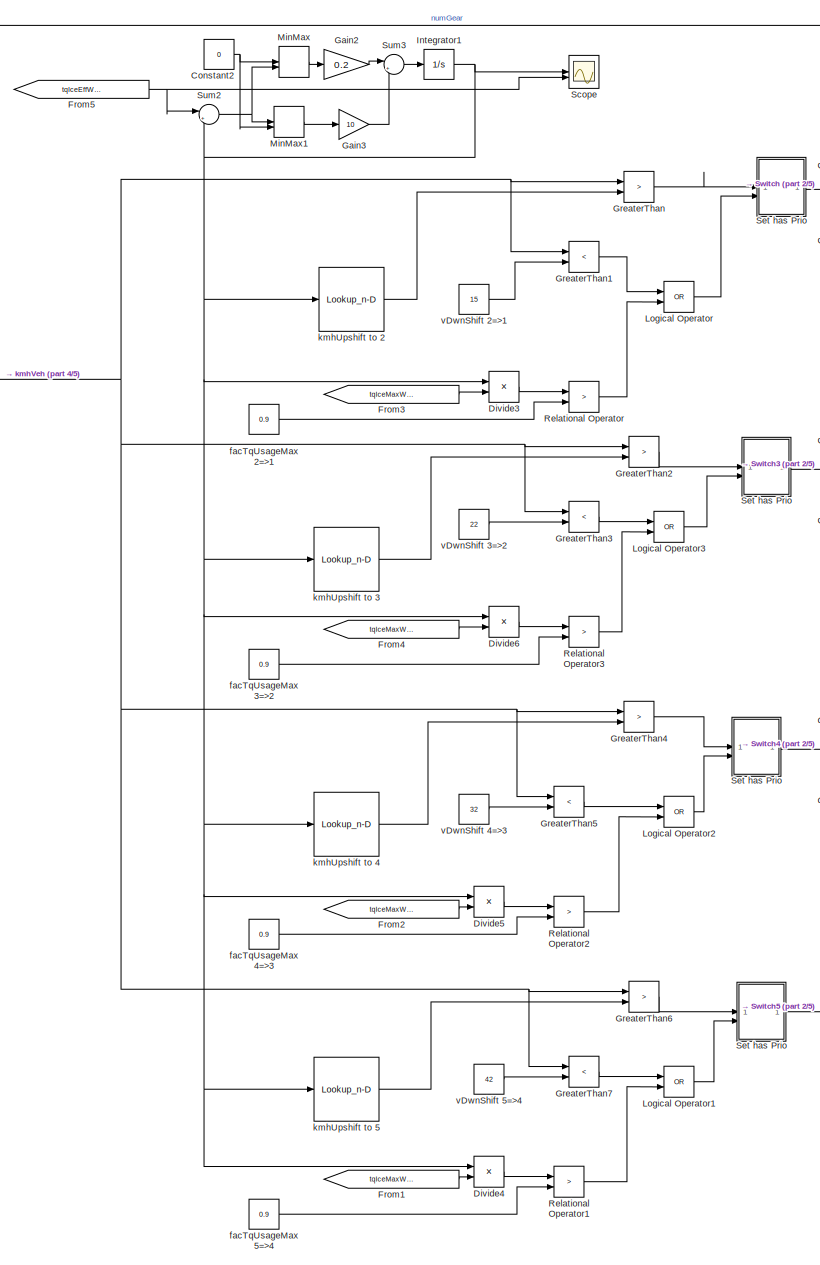
[diagram: Vco (Vehicle Control)/MainCtrl (Comb) - part 1/5, middle right region]
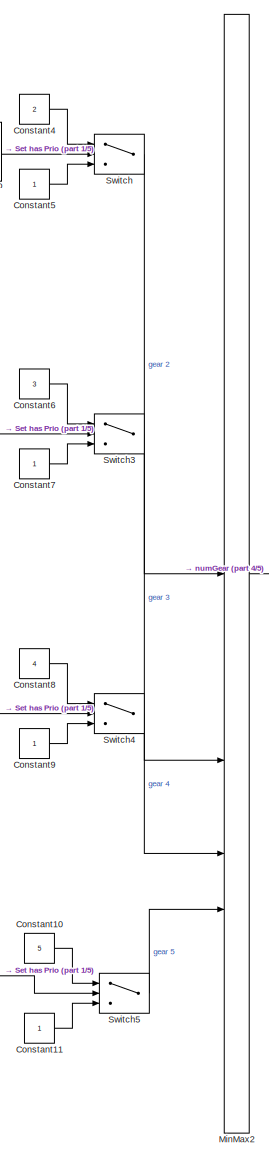
[diagram: Vco (Vehicle Control)/MainCtrl (Comb) - part 2/5, middle right region]
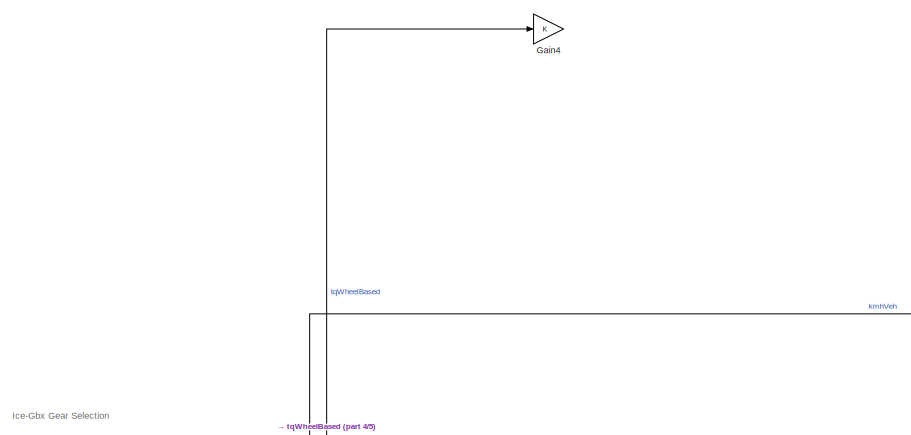
[diagram: Vco (Vehicle Control)/MainCtrl (Comb) - part 3/5, top left region]
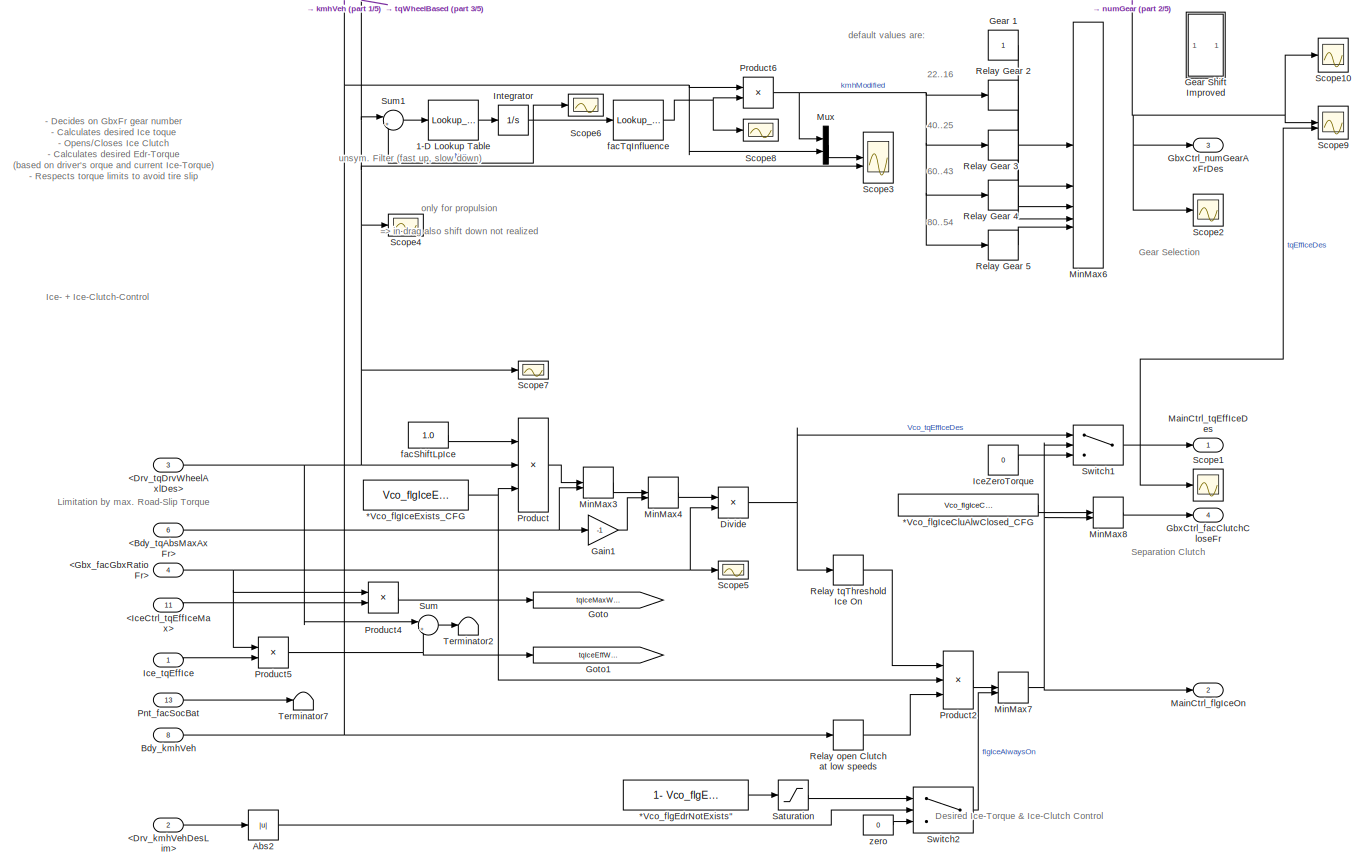
[diagram: Vco (Vehicle Control)/MainCtrl (Comb) - part 4/5, middle left region]
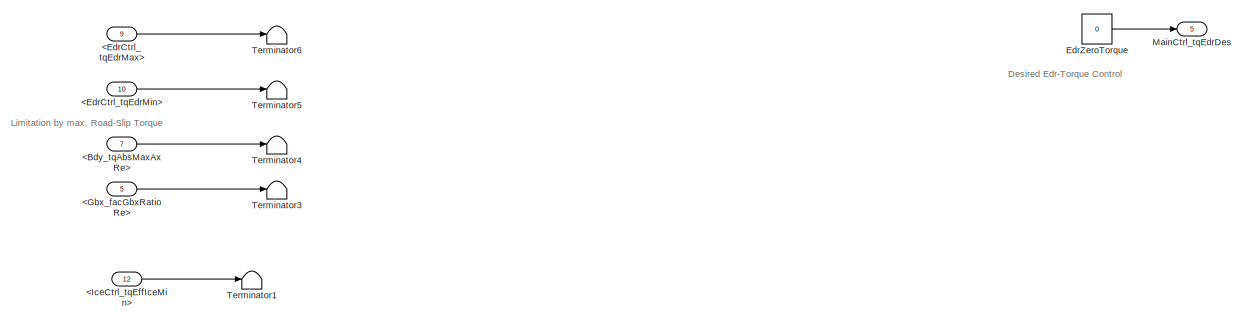
[diagram: Vco (Vehicle Control)/MainCtrl (Comb) - part 5/5, bottom left region]
BLOCK [SubSystem] Vco (Vehicle Control)/MainCtrl (Comb)
  Commented = on
BLOCK [SubSystem] Vco (Vehicle Control)/MainCtrl (Comb)/  Set has Prio  
BLOCK [Reference] Vco (Vehicle Control)/MainCtrl (Comb)/  Set has Prio  /Compare To Zero  REF=simulink/Logic and Bit
Operations/Compare
To Zero
  SourceBlock = simulink/Logic and Bit\nOperations/Compare\nTo Zero
  SourceType = Compare To Zero
BLOCK [Constant] Vco (Vehicle Control)/MainCtrl (Comb)/  Set has Prio  /Constant
  Value = -1
BLOCK [Integrator] Vco (Vehicle Control)/MainCtrl (Comb)/  Set has Prio  /Integrator
  ExternalReset = level
  InitialCondition = 3
  LimitOutput = on
  LowerSaturationLimit = 0
  UpperSaturationLimit = 50
BLOCK [Logic] Vco (Vehicle Control)/MainCtrl (Comb)/  Set has Prio  /Logical Operator4
  AllPortsSameDT = off
  OutDataTypeStr = boolean
BLOCK [Outport] Vco (Vehicle Control)/MainCtrl (Comb)/  Set has Prio  /Q
BLOCK [Inport] Vco (Vehicle Control)/MainCtrl (Comb)/  Set has Prio  /R
  Port = 2
BLOCK [Inport] Vco (Vehicle Control)/MainCtrl (Comb)/  Set has Prio  /S
BLOCK [Reference] Vco (Vehicle Control)/MainCtrl (Comb)/  Set has Prio  /S-R Flip-Flop4  REF=simulink_extras/Flip Flops/S-R
Flip-Flop
  SourceBlock = simulink_extras/Flip Flops/S-R\nFlip-Flop
  SourceType = SRFlipFlop
BLOCK [Constant] Vco (Vehicle Control)/MainCtrl (Comb)/*Vco_flgEdrNotExists"
  NameLocation = left
  Value = 1- Vco_flgEdrExists_CFG
BLOCK [Constant] Vco (Vehicle Control)/MainCtrl (Comb)/*Vco_flgIceCluAlwClosed_CFG
  Value = Vco_flgIceCluAlwClosed_CFG
BLOCK [Constant] Vco (Vehicle Control)/MainCtrl (Comb)/*Vco_flgIceExists_CFG
  Value = Vco_flgIceExists_CFG
BLOCK [Lookup_n-D] Vco (Vehicle Control)/MainCtrl (Comb)/1-D Lookup Table
  BreakpointsForDimension1 = [-10000 0  10000]
  InputPortMap = u0
  InternalRulePriority = Speed
  NumberOfTableDimensions = 1
  RndMeth = Simplest
  Table = [-2000   0 200000]
BLOCK [Inport] Vco (Vehicle Control)/MainCtrl (Comb)/<Bdy_tqAbsMaxAxFr>
  Port = 6
BLOCK [Inport] Vco (Vehicle Control)/MainCtrl (Comb)/<Bdy_tqAbsMaxAxRe>
  Port = 7
BLOCK [Inport] Vco (Vehicle Control)/MainCtrl (Comb)/<Drv_kmhVehDesLim>
  Port = 2
BLOCK [Inport] Vco (Vehicle Control)/MainCtrl (Comb)/<Drv_tqDrvWheelAxlDes>
  Port = 3
BLOCK [Inport] Vco (Vehicle Control)/MainCtrl (Comb)/<EdrCtrl_tqEdrMax>
  Port = 9
BLOCK [Inport] Vco (Vehicle Control)/MainCtrl (Comb)/<EdrCtrl_tqEdrMin>
  Port = 10
BLOCK [Inport] Vco (Vehicle Control)/MainCtrl (Comb)/<Gbx_facGbxRatioFr>
  Port = 4
BLOCK [Inport] Vco (Vehicle Control)/MainCtrl (Comb)/<Gbx_facGbxRatioRe>
  Port = 5
BLOCK [Inport] Vco (Vehicle Control)/MainCtrl (Comb)/<IceCtrl_tqEffIceMax>
  Port = 11
BLOCK [Inport] Vco (Vehicle Control)/MainCtrl (Comb)/<IceCtrl_tqEffIceMin>
  Port = 12
BLOCK [Abs] Vco (Vehicle Control)/MainCtrl (Comb)/Abs2
  SaturateOnIntegerOverflow = off
  ZeroCross = off
BLOCK [Inport] Vco (Vehicle Control)/MainCtrl (Comb)/Bdy_kmhVeh
  Port = 8
BLOCK [Constant] Vco (Vehicle Control)/MainCtrl (Comb)/Constant10
  Value = 5
BLOCK [Constant] Vco (Vehicle Control)/MainCtrl (Comb)/Constant11
BLOCK [Constant] Vco (Vehicle Control)/MainCtrl (Comb)/Constant2
  Value = 0
BLOCK [Constant] Vco (Vehicle Control)/MainCtrl (Comb)/Constant4
  Value = 2
BLOCK [Constant] Vco (Vehicle Control)/MainCtrl (Comb)/Constant5
BLOCK [Constant] Vco (Vehicle Control)/MainCtrl (Comb)/Constant6
  Value = 3
BLOCK [Constant] Vco (Vehicle Control)/MainCtrl (Comb)/Constant7
BLOCK [Constant] Vco (Vehicle Control)/MainCtrl (Comb)/Constant8
  Value = 4
BLOCK [Constant] Vco (Vehicle Control)/MainCtrl (Comb)/Constant9
BLOCK [Product] Vco (Vehicle Control)/MainCtrl (Comb)/Divide
  Inputs = */
BLOCK [Product] Vco (Vehicle Control)/MainCtrl (Comb)/Divide3
  Inputs = */
BLOCK [Product] Vco (Vehicle Control)/MainCtrl (Comb)/Divide4
  Inputs = */
BLOCK [Product] Vco (Vehicle Control)/MainCtrl (Comb)/Divide5
  Inputs = */
BLOCK [Product] Vco (Vehicle Control)/MainCtrl (Comb)/Divide6
  Inputs = */
BLOCK [Constant] Vco (Vehicle Control)/MainCtrl (Comb)/EdrZeroTorque
  Value = 0
BLOCK [From] Vco (Vehicle Control)/MainCtrl (Comb)/From1
  GotoTag = tqIceMaxWheelAxBased
BLOCK [From] Vco (Vehicle Control)/MainCtrl (Comb)/From2
  GotoTag = tqIceMaxWheelAxBased
BLOCK [From] Vco (Vehicle Control)/MainCtrl (Comb)/From3
  GotoTag = tqIceMaxWheelAxBased
BLOCK [From] Vco (Vehicle Control)/MainCtrl (Comb)/From4
  GotoTag = tqIceMaxWheelAxBased
BLOCK [From] Vco (Vehicle Control)/MainCtrl (Comb)/From5
  GotoTag = tqIceEffWheelAxBased
BLOCK [Gain] Vco (Vehicle Control)/MainCtrl (Comb)/Gain1
  Gain = -1
BLOCK [Gain] Vco (Vehicle Control)/MainCtrl (Comb)/Gain2
  Gain = 0.2
BLOCK [Gain] Vco (Vehicle Control)/MainCtrl (Comb)/Gain3
  Gain = 10
BLOCK [Gain] Vco (Vehicle Control)/MainCtrl (Comb)/Gain4
BLOCK [Outport] Vco (Vehicle Control)/MainCtrl (Comb)/GbxCtrl_facClutchCloseFr
  Port = 4
BLOCK [Outport] Vco (Vehicle Control)/MainCtrl (Comb)/GbxCtrl_numGearAxFrDes
  Port = 3
BLOCK [Constant] Vco (Vehicle Control)/MainCtrl (Comb)/Gear 1
  NameLocation = top
BLOCK [SubSystem] Vco (Vehicle Control)/MainCtrl (Comb)/Gear Shift Improved
BLOCK [Outport] Vco (Vehicle Control)/MainCtrl (Comb)/Gear Shift Improved/2
BLOCK [Constant] Vco (Vehicle Control)/MainCtrl (Comb)/Gear Shift Improved/Gear 1
  NameLocation = top
BLOCK [Inport] Vco (Vehicle Control)/MainCtrl (Comb)/Gear Shift Improved/In 2
BLOCK [MinMax] Vco (Vehicle Control)/MainCtrl (Comb)/Gear Shift Improved/MinMax6
  Function = max
  Inputs = 5
BLOCK [Relay] Vco (Vehicle Control)/MainCtrl (Comb)/Gear Shift Improved/Relay Gear 2
  OffSwitchValue = 13
  OnOutputValue = 2
  OnSwitchValue = 16
BLOCK [Relay] Vco (Vehicle Control)/MainCtrl (Comb)/Gear Shift Improved/Relay Gear 3
  OffSwitchValue = 20
  OnOutputValue = 3
  OnSwitchValue = 26
BLOCK [Relay] Vco (Vehicle Control)/MainCtrl (Comb)/Gear Shift Improved/Relay Gear 4
  OffSwitchValue = 30
  OnOutputValue = 4
  OnSwitchValue = 38
BLOCK [Relay] Vco (Vehicle Control)/MainCtrl (Comb)/Gear Shift Improved/Relay Gear 5
  OffSwitchValue = 42
  OnOutputValue = 5
  OnSwitchValue = 50
BLOCK [Goto] Vco (Vehicle Control)/MainCtrl (Comb)/Goto
  GotoTag = tqIceMaxWheelAxBased
BLOCK [Goto] Vco (Vehicle Control)/MainCtrl (Comb)/Goto1
  GotoTag = tqIceEffWheelAxBased
BLOCK [RelationalOperator] Vco (Vehicle Control)/MainCtrl (Comb)/GreaterThan
  InputSameDT = off
  Operator = >
  OutDataTypeStr = boolean
  RndMeth = Simplest
BLOCK [RelationalOperator] Vco (Vehicle Control)/MainCtrl (Comb)/GreaterThan1
  InputSameDT = off
  Operator = <
  OutDataTypeStr = boolean
  RndMeth = Simplest
BLOCK [RelationalOperator] Vco (Vehicle Control)/MainCtrl (Comb)/GreaterThan2
  InputSameDT = off
  Operator = >
  OutDataTypeStr = boolean
  RndMeth = Simplest
BLOCK [RelationalOperator] Vco (Vehicle Control)/MainCtrl (Comb)/GreaterThan3
  InputSameDT = off
  Operator = <
  OutDataTypeStr = boolean
  RndMeth = Simplest
BLOCK [RelationalOperator] Vco (Vehicle Control)/MainCtrl (Comb)/GreaterThan4
  InputSameDT = off
  Operator = >
  OutDataTypeStr = boolean
  RndMeth = Simplest
BLOCK [RelationalOperator] Vco (Vehicle Control)/MainCtrl (Comb)/GreaterThan5
  InputSameDT = off
  Operator = <
  OutDataTypeStr = boolean
  RndMeth = Simplest
BLOCK [RelationalOperator] Vco (Vehicle Control)/MainCtrl (Comb)/GreaterThan6
  InputSameDT = off
  Operator = >
  OutDataTypeStr = boolean
  RndMeth = Simplest
BLOCK [RelationalOperator] Vco (Vehicle Control)/MainCtrl (Comb)/GreaterThan7
  InputSameDT = off
  Operator = <
  OutDataTypeStr = boolean
  RndMeth = Simplest
BLOCK [Constant] Vco (Vehicle Control)/MainCtrl (Comb)/IceZeroTorque
  Value = 0
BLOCK [Inport] Vco (Vehicle Control)/MainCtrl (Comb)/Ice_tqEffIce
BLOCK [Integrator] Vco (Vehicle Control)/MainCtrl (Comb)/Integrator
BLOCK [Integrator] Vco (Vehicle Control)/MainCtrl (Comb)/Integrator1
BLOCK [Logic] Vco (Vehicle Control)/MainCtrl (Comb)/Logical Operator
  AllPortsSameDT = off
  Operator = OR
  OutDataTypeStr = boolean
BLOCK [Logic] Vco (Vehicle Control)/MainCtrl (Comb)/Logical Operator1
  AllPortsSameDT = off
  Operator = OR
  OutDataTypeStr = boolean
BLOCK [Logic] Vco (Vehicle Control)/MainCtrl (Comb)/Logical Operator2
  AllPortsSameDT = off
  Operator = OR
  OutDataTypeStr = boolean
BLOCK [Logic] Vco (Vehicle Control)/MainCtrl (Comb)/Logical Operator3
  AllPortsSameDT = off
  Operator = OR
  OutDataTypeStr = boolean
BLOCK [Outport] Vco (Vehicle Control)/MainCtrl (Comb)/MainCtrl_flgIceOn
  Port = 2
BLOCK [Outport] Vco (Vehicle Control)/MainCtrl (Comb)/MainCtrl_tqEdrDes
  Port = 5
BLOCK [Outport] Vco (Vehicle Control)/MainCtrl (Comb)/MainCtrl_tqEffIceDes
BLOCK [MinMax] Vco (Vehicle Control)/MainCtrl (Comb)/MinMax
  Inputs = 2
  ZeroCross = off
BLOCK [MinMax] Vco (Vehicle Control)/MainCtrl (Comb)/MinMax1
  Function = max
  Inputs = 2
  ZeroCross = off
BLOCK [MinMax] Vco (Vehicle Control)/MainCtrl (Comb)/MinMax2
  Function = max
  Inputs = 4
BLOCK [MinMax] Vco (Vehicle Control)/MainCtrl (Comb)/MinMax3
  Inputs = 2
BLOCK [MinMax] Vco (Vehicle Control)/MainCtrl (Comb)/MinMax4
  Function = max
  Inputs = 2
  ZeroCross = off
BLOCK [MinMax] Vco (Vehicle Control)/MainCtrl (Comb)/MinMax6
  Function = max
  Inputs = 5
BLOCK [MinMax] Vco (Vehicle Control)/MainCtrl (Comb)/MinMax7
  Function = max
  Inputs = 2
  ZeroCross = off
BLOCK [MinMax] Vco (Vehicle Control)/MainCtrl (Comb)/MinMax8
  Function = max
  Inputs = 2
  ZeroCross = off
BLOCK [Mux] Vco (Vehicle Control)/MainCtrl (Comb)/Mux
  DisplayOption = bar
  Inputs = 2
BLOCK [Inport] Vco (Vehicle Control)/MainCtrl (Comb)/Pnt_facSocBat
  Port = 13
BLOCK [Product] Vco (Vehicle Control)/MainCtrl (Comb)/Product
  Inputs = 3
BLOCK [Product] Vco (Vehicle Control)/MainCtrl (Comb)/Product2
  Inputs = 3
BLOCK [Product] Vco (Vehicle Control)/MainCtrl (Comb)/Product4
BLOCK [Product] Vco (Vehicle Control)/MainCtrl (Comb)/Product5
BLOCK [Product] Vco (Vehicle Control)/MainCtrl (Comb)/Product6
BLOCK [RelationalOperator] Vco (Vehicle Control)/MainCtrl (Comb)/Relational Operator
  InputSameDT = off
  Operator = >
  OutDataTypeStr = boolean
  RndMeth = Simplest
BLOCK [RelationalOperator] Vco (Vehicle Control)/MainCtrl (Comb)/Relational Operator1
  InputSameDT = off
  Operator = >
  OutDataTypeStr = boolean
  RndMeth = Simplest
BLOCK [RelationalOperator] Vco (Vehicle Control)/MainCtrl (Comb)/Relational Operator2
  InputSameDT = off
  Operator = >
  OutDataTypeStr = boolean
  RndMeth = Simplest
BLOCK [RelationalOperator] Vco (Vehicle Control)/MainCtrl (Comb)/Relational Operator3
  InputSameDT = off
  Operator = >
  OutDataTypeStr = boolean
  RndMeth = Simplest
BLOCK [Relay] Vco (Vehicle Control)/MainCtrl (Comb)/Relay Gear 2
  OffSwitchValue = 16
  OnOutputValue = 2
  OnSwitchValue = 22
BLOCK [Relay] Vco (Vehicle Control)/MainCtrl (Comb)/Relay Gear 3
  OffSwitchValue = 25
  OnOutputValue = 3
  OnSwitchValue = 40
BLOCK [Relay] Vco (Vehicle Control)/MainCtrl (Comb)/Relay Gear 4
  OffSwitchValue = 43
  OnOutputValue = 4
  OnSwitchValue = 60
BLOCK [Relay] Vco (Vehicle Control)/MainCtrl (Comb)/Relay Gear 5
  OffSwitchValue = 54
  OnOutputValue = 5
  OnSwitchValue = 80
BLOCK [Relay] Vco (Vehicle Control)/MainCtrl (Comb)/Relay open Clutch at low speeds
  NameLocation = top
  OffSwitchValue = 9
  OnSwitchValue = 11
BLOCK [Relay] Vco (Vehicle Control)/MainCtrl (Comb)/Relay tqThreshold Ice On
  NameLocation = top
  OffSwitchValue = 17
  OnSwitchValue = 25
BLOCK [Saturate] Vco (Vehicle Control)/MainCtrl (Comb)/Saturation
  LowerLimit = 0
  UpperLimit = 1
BLOCK [Scope] Vco (Vehicle Control)/MainCtrl (Comb)/Scope
  Floating = off
  NumInputPorts = 2
  ScopeSpecificationString = Simulink.scopes.TimeScopeBlockCfg('CurrentConfiguration', extmgr.ConfigurationSet(extmgr.Configuration('Core','General UI',true),extmgr.Configuration('Core','Source UI',true),extmgr.Configuration('Sources','WiredSimulink',true,'DataLoggingVariableName','ScopeData1'),extmgr.Configuration('Visuals','Time Domain',true,'SerializedDisplays',{struct('MinYLimReal','-702.26783','MaxYLimReal','3079.82653',...<+1490ch>
BLOCK [Scope] Vco (Vehicle Control)/MainCtrl (Comb)/Scope1
  Floating = off
  NumInputPorts = 1
  ScopeSpecificationString = Simulink.scopes.TimeScopeBlockCfg('CurrentConfiguration', extmgr.ConfigurationSet(extmgr.Configuration('Core','General UI',true),extmgr.Configuration('Core','Source UI',true),extmgr.Configuration('Sources','WiredSimulink',true,'DataLoggingVariableName','ScopeData1'),extmgr.Configuration('Visuals','Time Domain',true,'SerializedDisplays',{struct('MinYLimReal','-1154.37016','MaxYLimReal','944.73892',...<+1485ch>
BLOCK [Scope] Vco (Vehicle Control)/MainCtrl (Comb)/Scope10
  Floating = off
  NumInputPorts = 1
  ScopeSpecificationString = Simulink.scopes.TimeScopeBlockCfg('CurrentConfiguration', extmgr.ConfigurationSet(extmgr.Configuration('Core','General UI',true,'FigureColor',[0.831372549019608 0.815686274509804 0.784313725490196]),extmgr.Configuration('Core','Source UI',true),extmgr.Configuration('Sources','WiredSimulink',true,'DataLoggingVariableName','ScopeData1'),extmgr.Configuration('Visuals','Time Domain',true,'SerializedDi...<+1774ch>
BLOCK [Scope] Vco (Vehicle Control)/MainCtrl (Comb)/Scope2
  Floating = off
  NumInputPorts = 1
  ScopeSpecificationString = Simulink.scopes.TimeScopeBlockCfg('CurrentConfiguration', extmgr.ConfigurationSet(extmgr.Configuration('Core','General UI',true,'FigureColor',[0.8 0.8 0.8]),extmgr.Configuration('Core','Source UI',true),extmgr.Configuration('Sources','WiredSimulink',true,'DataLoggingVariableName','ScopeData6'),extmgr.Configuration('Visuals','Time Domain',true,'SerializedDisplays',{struct('MinYLimReal','0.5','MaxYL...<+1561ch>
BLOCK [Scope] Vco (Vehicle Control)/MainCtrl (Comb)/Scope3
  Floating = off
  NumInputPorts = 2
  ScopeSpecificationString = Simulink.scopes.TimeScopeBlockCfg('CurrentConfiguration', extmgr.ConfigurationSet(extmgr.Configuration('Core','General UI',true),extmgr.Configuration('Core','Source UI',true),extmgr.Configuration('Sources','WiredSimulink',true,'DataLoggingVariableName','ScopeData7'),extmgr.Configuration('Visuals','Time Domain',true,'SerializedDisplays',{struct('MinYLimReal','-16.50596','MaxYLimReal','148.55365','Y...<+2096ch>
BLOCK [Scope] Vco (Vehicle Control)/MainCtrl (Comb)/Scope4
  Floating = off
  NumInputPorts = 1
  ScopeSpecificationString = Simulink.scopes.TimeScopeBlockCfg('CurrentConfiguration', extmgr.ConfigurationSet(extmgr.Configuration('Core','General UI',true),extmgr.Configuration('Core','Source UI',true),extmgr.Configuration('Sources','WiredSimulink',true,'DataLoggingVariableName','ScopeData2'),extmgr.Configuration('Visuals','Time Domain',true,'SerializedDisplays',{struct('MinYLimReal','-1381.33564','MaxYLimReal','1749.69257'...<+1528ch>
BLOCK [Scope] Vco (Vehicle Control)/MainCtrl (Comb)/Scope5
  Floating = off
  NumInputPorts = 1
  ScopeSpecificationString = Simulink.scopes.TimeScopeBlockCfg('CurrentConfiguration', extmgr.ConfigurationSet(extmgr.Configuration('Core','General UI',true),extmgr.Configuration('Core','Source UI',true),extmgr.Configuration('Sources','WiredSimulink',true,'DataLoggingVariableName','ScopeData3'),extmgr.Configuration('Visuals','Time Domain',true,'SerializedDisplays',{struct('MinYLimReal','1.675','MaxYLimReal','10.925','YLabelRe...<+1490ch>
BLOCK [Scope] Vco (Vehicle Control)/MainCtrl (Comb)/Scope6
  Floating = off
  NumInputPorts = 1
  ScopeSpecificationString = Simulink.scopes.TimeScopeBlockCfg('CurrentConfiguration', extmgr.ConfigurationSet(extmgr.Configuration('Core','General UI',true),extmgr.Configuration('Core','Source UI',true),extmgr.Configuration('Sources','WiredSimulink',true,'DataLoggingVariableName','ScopeData4'),extmgr.Configuration('Visuals','Time Domain',true,'SerializedDisplays',{struct('MinYLimReal','-480.10881','MaxYLimReal','2239.541','Y...<+1497ch>
BLOCK [Scope] Vco (Vehicle Control)/MainCtrl (Comb)/Scope7
  Floating = off
  NumInputPorts = 1
  ScopeSpecificationString = Simulink.scopes.TimeScopeBlockCfg('CurrentConfiguration', extmgr.ConfigurationSet(extmgr.Configuration('Core','General UI',true),extmgr.Configuration('Core','Source UI',true),extmgr.Configuration('Sources','WiredSimulink',true,'DataLoggingVariableName','ScopeData4'),extmgr.Configuration('Visuals','Time Domain',true,'SerializedDisplays',{struct('MinYLimReal','-7750.00000','MaxYLimReal','7750.00000'...<+1519ch>
BLOCK [Scope] Vco (Vehicle Control)/MainCtrl (Comb)/Scope8
  Floating = off
  NumInputPorts = 1
  ScopeSpecificationString = Simulink.scopes.TimeScopeBlockCfg('CurrentConfiguration', extmgr.ConfigurationSet(extmgr.Configuration('Core','General UI',true),extmgr.Configuration('Core','Source UI',true),extmgr.Configuration('Sources','WiredSimulink',true,'DataLoggingVariableName','ScopeData5'),extmgr.Configuration('Visuals','Time Domain',true,'SerializedDisplays',{struct('MinYLimReal','-0.395','MaxYLimReal','1.155','YLabelRe...<+1487ch>
BLOCK [Scope] Vco (Vehicle Control)/MainCtrl (Comb)/Scope9
  Floating = off
  NumInputPorts = 2
  ScopeSpecificationString = Simulink.scopes.TimeScopeBlockCfg('CurrentConfiguration', extmgr.ConfigurationSet(extmgr.Configuration('Core','General UI',true,'FigureColor',[0.831372549019608 0.815686274509804 0.784313725490196]),extmgr.Configuration('Core','Source UI',true),extmgr.Configuration('Sources','WiredSimulink',true,'DataLoggingVariableName','ScopeData6'),extmgr.Configuration('Visuals','Time Domain',true,'SerializedDi...<+2397ch>
BLOCK [SubSystem] Vco (Vehicle Control)/MainCtrl (Comb)/Set has Prio
BLOCK [SubSystem] Vco (Vehicle Control)/MainCtrl (Comb)/Set has Prio 
BLOCK [SubSystem] Vco (Vehicle Control)/MainCtrl (Comb)/Set has Prio  
BLOCK [Reference] Vco (Vehicle Control)/MainCtrl (Comb)/Set has Prio  /Compare To Zero  REF=simulink/Logic and Bit
Operations/Compare
To Zero
  SourceBlock = simulink/Logic and Bit\nOperations/Compare\nTo Zero
  SourceType = Compare To Zero
BLOCK [Constant] Vco (Vehicle Control)/MainCtrl (Comb)/Set has Prio  /Constant
  Value = -1
BLOCK [Integrator] Vco (Vehicle Control)/MainCtrl (Comb)/Set has Prio  /Integrator
  ExternalReset = level
  InitialCondition = 3
  LimitOutput = on
  LowerSaturationLimit = 0
  UpperSaturationLimit = 50
BLOCK [Logic] Vco (Vehicle Control)/MainCtrl (Comb)/Set has Prio  /Logical Operator4
  AllPortsSameDT = off
  OutDataTypeStr = boolean
BLOCK [Outport] Vco (Vehicle Control)/MainCtrl (Comb)/Set has Prio  /Q
BLOCK [Inport] Vco (Vehicle Control)/MainCtrl (Comb)/Set has Prio  /R
  Port = 2
BLOCK [Inport] Vco (Vehicle Control)/MainCtrl (Comb)/Set has Prio  /S
BLOCK [Reference] Vco (Vehicle Control)/MainCtrl (Comb)/Set has Prio  /S-R Flip-Flop4  REF=simulink_extras/Flip Flops/S-R
Flip-Flop
  SourceBlock = simulink_extras/Flip Flops/S-R\nFlip-Flop
  SourceType = SRFlipFlop
BLOCK [Reference] Vco (Vehicle Control)/MainCtrl (Comb)/Set has Prio /Compare To Zero  REF=simulink/Logic and Bit
Operations/Compare
To Zero
  SourceBlock = simulink/Logic and Bit\nOperations/Compare\nTo Zero
  SourceType = Compare To Zero
BLOCK [Constant] Vco (Vehicle Control)/MainCtrl (Comb)/Set has Prio /Constant
  Value = -1
BLOCK [Integrator] Vco (Vehicle Control)/MainCtrl (Comb)/Set has Prio /Integrator
  ExternalReset = level
  InitialCondition = 3
  LimitOutput = on
  LowerSaturationLimit = 0
  UpperSaturationLimit = 50
BLOCK [Logic] Vco (Vehicle Control)/MainCtrl (Comb)/Set has Prio /Logical Operator4
  AllPortsSameDT = off
  OutDataTypeStr = boolean
BLOCK [Outport] Vco (Vehicle Control)/MainCtrl (Comb)/Set has Prio /Q
BLOCK [Inport] Vco (Vehicle Control)/MainCtrl (Comb)/Set has Prio /R
  Port = 2
BLOCK [Inport] Vco (Vehicle Control)/MainCtrl (Comb)/Set has Prio /S
BLOCK [Reference] Vco (Vehicle Control)/MainCtrl (Comb)/Set has Prio /S-R Flip-Flop4  REF=simulink_extras/Flip Flops/S-R
Flip-Flop
  SourceBlock = simulink_extras/Flip Flops/S-R\nFlip-Flop
  SourceType = SRFlipFlop
BLOCK [Reference] Vco (Vehicle Control)/MainCtrl (Comb)/Set has Prio/Compare To Zero  REF=simulink/Logic and Bit
Operations/Compare
To Zero
  SourceBlock = simulink/Logic and Bit\nOperations/Compare\nTo Zero
  SourceType = Compare To Zero
BLOCK [Constant] Vco (Vehicle Control)/MainCtrl (Comb)/Set has Prio/Constant
  Value = -1
BLOCK [Integrator] Vco (Vehicle Control)/MainCtrl (Comb)/Set has Prio/Integrator
  ExternalReset = level
  InitialCondition = 3
  LimitOutput = on
  LowerSaturationLimit = 0
  UpperSaturationLimit = 50
BLOCK [Logic] Vco (Vehicle Control)/MainCtrl (Comb)/Set has Prio/Logical Operator4
  AllPortsSameDT = off
  OutDataTypeStr = boolean
BLOCK [Outport] Vco (Vehicle Control)/MainCtrl (Comb)/Set has Prio/Q
BLOCK [Inport] Vco (Vehicle Control)/MainCtrl (Comb)/Set has Prio/R
  Port = 2
BLOCK [Inport] Vco (Vehicle Control)/MainCtrl (Comb)/Set has Prio/S
BLOCK [Reference] Vco (Vehicle Control)/MainCtrl (Comb)/Set has Prio/S-R Flip-Flop4  REF=simulink_extras/Flip Flops/S-R
Flip-Flop
  SourceBlock = simulink_extras/Flip Flops/S-R\nFlip-Flop
  SourceType = SRFlipFlop
BLOCK [Scope] Vco (Vehicle Control)/MainCtrl (Comb)/Set has Prio/Scope9
  Floating = off
  NumInputPorts = 2
  ScopeSpecificationString = Simulink.scopes.TimeScopeBlockCfg('CurrentConfiguration', extmgr.ConfigurationSet(extmgr.Configuration('Core','General UI',true),extmgr.Configuration('Core','Source UI',true),extmgr.Configuration('Sources','WiredSimulink',true,'DataLoggingVariableName','ScopeData2'),extmgr.Configuration('Visuals','Time Domain',true,'SerializedDisplays',{struct('MinYLimReal','-0.125','MaxYLimReal','1.02826','YLabel...<+2141ch>
BLOCK [Sum] Vco (Vehicle Control)/MainCtrl (Comb)/Sum
  Inputs = |+-
BLOCK [Sum] Vco (Vehicle Control)/MainCtrl (Comb)/Sum1
  Inputs = |+-
BLOCK [Sum] Vco (Vehicle Control)/MainCtrl (Comb)/Sum2
  Inputs = |+-
BLOCK [Sum] Vco (Vehicle Control)/MainCtrl (Comb)/Sum3
  Inputs = |++
BLOCK [Switch] Vco (Vehicle Control)/MainCtrl (Comb)/Switch
  Criteria = u2 > Threshold
  InputSameDT = off
  SaturateOnIntegerOverflow = off
  Threshold = 0.5
BLOCK [Switch] Vco (Vehicle Control)/MainCtrl (Comb)/Switch1
  Criteria = u2 > Threshold
  InputSameDT = off
  SaturateOnIntegerOverflow = off
  Threshold = 0.5
BLOCK [Switch] Vco (Vehicle Control)/MainCtrl (Comb)/Switch2
  Criteria = u2 > Threshold
  InputSameDT = off
  SaturateOnIntegerOverflow = off
  Threshold = 0.05
  ZeroCross = off
BLOCK [Switch] Vco (Vehicle Control)/MainCtrl (Comb)/Switch3
  Criteria = u2 > Threshold
  InputSameDT = off
  SaturateOnIntegerOverflow = off
  Threshold = 0.5
BLOCK [Switch] Vco (Vehicle Control)/MainCtrl (Comb)/Switch4
  Criteria = u2 > Threshold
  InputSameDT = off
  SaturateOnIntegerOverflow = off
  Threshold = 0.5
BLOCK [Switch] Vco (Vehicle Control)/MainCtrl (Comb)/Switch5
  Criteria = u2 > Threshold
  InputSameDT = off
  SaturateOnIntegerOverflow = off
  Threshold = 0.5
BLOCK [Terminator] Vco (Vehicle Control)/MainCtrl (Comb)/Terminator1
BLOCK [Terminator] Vco (Vehicle Control)/MainCtrl (Comb)/Terminator2
BLOCK [Terminator] Vco (Vehicle Control)/MainCtrl (Comb)/Terminator3
BLOCK [Terminator] Vco (Vehicle Control)/MainCtrl (Comb)/Terminator4
BLOCK [Terminator] Vco (Vehicle Control)/MainCtrl (Comb)/Terminator5
BLOCK [Terminator] Vco (Vehicle Control)/MainCtrl (Comb)/Terminator6
BLOCK [Terminator] Vco (Vehicle Control)/MainCtrl (Comb)/Terminator7
BLOCK [Constant] Vco (Vehicle Control)/MainCtrl (Comb)/facShiftLpIce
  NameLocation = top
  Value = 1.0
BLOCK [Lookup_n-D] Vco (Vehicle Control)/MainCtrl (Comb)/facTqInfluence
  BreakpointsForDimension1 = [0 10   500  1000   1500   2000   2500]
  ExtrapMethod = Clip
  InputPortMap = u0
  InternalRulePriority = Speed
  NumberOfTableDimensions = 1
  RndMeth = Simplest
  Table = [1   1     0.9   0.8       0.7    0.6       0.5]
BLOCK [Constant] Vco (Vehicle Control)/MainCtrl (Comb)/facTqUsageMax 2=>1
  NameLocation = top
  Value = 0.9
BLOCK [Constant] Vco (Vehicle Control)/MainCtrl (Comb)/facTqUsageMax 3=>2
  NameLocation = top
  Value = 0.9
BLOCK [Constant] Vco (Vehicle Control)/MainCtrl (Comb)/facTqUsageMax 4=>3
  NameLocation = top
  Value = 0.9
BLOCK [Constant] Vco (Vehicle Control)/MainCtrl (Comb)/facTqUsageMax 5=>4
  NameLocation = top
  Value = 0.9
BLOCK [Lookup_n-D] Vco (Vehicle Control)/MainCtrl (Comb)/kmhUpshift to 2
  BreakpointsForDimension1 = [0  1200  1700 5000]
  ExtrapMethod = Clip
  InputPortMap = u0
  InternalRulePriority = Speed
  NumberOfTableDimensions = 1
  RndMeth = Simplest
  Table = [20  21      63  64]
BLOCK [Lookup_n-D] Vco (Vehicle Control)/MainCtrl (Comb)/kmhUpshift to 3
  BreakpointsForDimension1 = [0  750  1250 5000]
  ExtrapMethod = Clip
  InputPortMap = u0
  InternalRulePriority = Speed
  NumberOfTableDimensions = 1
  RndMeth = Simplest
  Table = [29  30      89  90]
BLOCK [Lookup_n-D] Vco (Vehicle Control)/MainCtrl (Comb)/kmhUpshift to 4
  BreakpointsForDimension1 = [0  550  900 5000]
  ExtrapMethod = Clip
  InputPortMap = u0
  InternalRulePriority = Speed
  NumberOfTableDimensions = 1
  RndMeth = Simplest
  Table = [40  41      126  127]
BLOCK [Lookup_n-D] Vco (Vehicle Control)/MainCtrl (Comb)/kmhUpshift to 5
  BreakpointsForDimension1 = [0  420  650 5000]
  ExtrapMethod = Clip
  InputPortMap = u0
  InternalRulePriority = Speed
  NumberOfTableDimensions = 1
  RndMeth = Simplest
  Table = [55  56      175  176]
BLOCK [Constant] Vco (Vehicle Control)/MainCtrl (Comb)/vDwnShift 2=>1
  Value = 15
BLOCK [Constant] Vco (Vehicle Control)/MainCtrl (Comb)/vDwnShift 3=>2
  Value = 22
BLOCK [Constant] Vco (Vehicle Control)/MainCtrl (Comb)/vDwnShift 4=>3
  Value = 32
BLOCK [Constant] Vco (Vehicle Control)/MainCtrl (Comb)/vDwnShift 5=>4
  Value = 42
BLOCK [Constant] Vco (Vehicle Control)/MainCtrl (Comb)/zero
  Value = 0
BLOCK [SubSystem] Vco (Vehicle Control)/MainCtrl (Hybrid)
BLOCK [Constant] Vco (Vehicle Control)/MainCtrl (Hybrid)/*Vco_flgEdrExists_CFG
  Value = Vco_flgEdrExists_CFG
BLOCK [Constant] Vco (Vehicle Control)/MainCtrl (Hybrid)/*Vco_flgEdrNotExists"
  NameLocation = left
  Value = 1- Vco_flgEdrExists_CFG
BLOCK [Constant] Vco (Vehicle Control)/MainCtrl (Hybrid)/*Vco_flgIceCluAlwClosed_CFG
  Value = Vco_flgIceCluAlwClosed_CFG
BLOCK [Constant] Vco (Vehicle Control)/MainCtrl (Hybrid)/*Vco_flgIceExists_CFG
  Value = Vco_flgIceExists_CFG
BLOCK [Inport] Vco (Vehicle Control)/MainCtrl (Hybrid)/<Bdy_tqAbsMaxAxFr>
  Port = 6
BLOCK [Inport] Vco (Vehicle Control)/MainCtrl (Hybrid)/<Bdy_tqAbsMaxAxRe>
  Port = 7
BLOCK [Inport] Vco (Vehicle Control)/MainCtrl (Hybrid)/<Drv_kmhVehDesLim>
  Port = 2
BLOCK [Inport] Vco (Vehicle Control)/MainCtrl (Hybrid)/<Drv_tqDrvWheelAxlDes>
  Port = 3
BLOCK [Inport] Vco (Vehicle Control)/MainCtrl (Hybrid)/<EdrCtrl_tqEdrMax>
  Port = 9
BLOCK [Inport] Vco (Vehicle Control)/MainCtrl (Hybrid)/<EdrCtrl_tqEdrMin>
  Port = 10
BLOCK [Inport] Vco (Vehicle Control)/MainCtrl (Hybrid)/<Gbx_facGbxRatioFr>
  Port = 4
BLOCK [Inport] Vco (Vehicle Control)/MainCtrl (Hybrid)/<Gbx_facGbxRatioRe>
  Port = 5
BLOCK [Inport] Vco (Vehicle Control)/MainCtrl (Hybrid)/<IceCtrl_tqEffIceMax>
  Port = 11
BLOCK [Inport] Vco (Vehicle Control)/MainCtrl (Hybrid)/<IceCtrl_tqEffIceMin>
  Port = 12
BLOCK [Logic] Vco (Vehicle Control)/MainCtrl (Hybrid)/AND
  AllPortsSameDT = off
  IconShape = distinctive
  OutDataTypeStr = boolean
BLOCK [Abs] Vco (Vehicle Control)/MainCtrl (Hybrid)/Abs1
  SaturateOnIntegerOverflow = off
  ZeroCross = off
BLOCK [Abs] Vco (Vehicle Control)/MainCtrl (Hybrid)/Abs2
  SaturateOnIntegerOverflow = off
  ZeroCross = off
BLOCK [Inport] Vco (Vehicle Control)/MainCtrl (Hybrid)/Bdy_kmhVeh
  Port = 8
BLOCK [Reference] Vco (Vehicle Control)/MainCtrl (Hybrid)/Compare To Constant  REF=simulink/Logic and Bit
Operations/Compare
To Constant
  SourceBlock = simulink/Logic and Bit\nOperations/Compare\nTo Constant
  SourceType = Compare To Constant
BLOCK [Reference] Vco (Vehicle Control)/MainCtrl (Hybrid)/Compare To Constant1  REF=simulink/Logic and Bit
Operations/Compare
To Constant
  SourceBlock = simulink/Logic and Bit\nOperations/Compare\nTo Constant
  SourceType = Compare To Constant
BLOCK [Reference] Vco (Vehicle Control)/MainCtrl (Hybrid)/Compare To Constant2  REF=simulink/Logic and Bit
Operations/Compare
To Constant
  SourceBlock = simulink/Logic and Bit\nOperations/Compare\nTo Constant
  SourceType = Compare To Constant
BLOCK [Constant] Vco (Vehicle Control)/MainCtrl (Hybrid)/Constant
  Value = 1/Bdy_lenRadiusWheel_C
BLOCK [Gain] Vco (Vehicle Control)/MainCtrl (Hybrid)/Coversion1
  Gain = 9550
BLOCK [Product] Vco (Vehicle Control)/MainCtrl (Hybrid)/Divide
  Inputs = */
BLOCK [Product] Vco (Vehicle Control)/MainCtrl (Hybrid)/Divide1
  Inputs = */
BLOCK [Product] Vco (Vehicle Control)/MainCtrl (Hybrid)/Divide4
  Inputs = */
BLOCK [Lookup_n-D] Vco (Vehicle Control)/MainCtrl (Hybrid)/E-Drive Torque Fade Out, when vehicle stops (To be harmonized with desired brake torque)
  BreakpointsForDimension1 = [-0.1 0 0.1 0.2]
  InputPortMap = u0
  InternalRulePriority = Speed
  NumberOfTableDimensions = 1
  RndMeth = Simplest
  Table = [ 0  1  1  1]
BLOCK [From] Vco (Vehicle Control)/MainCtrl (Hybrid)/From
  GotoTag = facSocBat
BLOCK [From] Vco (Vehicle Control)/MainCtrl (Hybrid)/From1
  GotoTag = Bdy_kmhVeh
BLOCK [From] Vco (Vehicle Control)/MainCtrl (Hybrid)/From10
  GotoTag = PowerDes_kW
BLOCK [From] Vco (Vehicle Control)/MainCtrl (Hybrid)/From2
  GotoTag = MainCtrl_ICE
BLOCK [From] Vco (Vehicle Control)/MainCtrl (Hybrid)/From3
  GotoTag = Drv_tqDrvWheelAxlDes
BLOCK [From] Vco (Vehicle Control)/MainCtrl (Hybrid)/From4
  GotoTag = PowerDes_kW
BLOCK [From] Vco (Vehicle Control)/MainCtrl (Hybrid)/From8
  GotoTag = Tq_fromPower
BLOCK [Gain] Vco (Vehicle Control)/MainCtrl (Hybrid)/Gain
  Gain = -1
BLOCK [Gain] Vco (Vehicle Control)/MainCtrl (Hybrid)/Gain1
  Gain = -1
BLOCK [Gain] Vco (Vehicle Control)/MainCtrl (Hybrid)/Gain2
  Gain = -1
BLOCK [Gain] Vco (Vehicle Control)/MainCtrl (Hybrid)/Gain3
  Gain = 1/1000
BLOCK [Gain] Vco (Vehicle Control)/MainCtrl (Hybrid)/Gain5
  Gain = 5/18
BLOCK [Outport] Vco (Vehicle Control)/MainCtrl (Hybrid)/GbxCtrl_facClutchCloseFr
  Port = 4
BLOCK [Outport] Vco (Vehicle Control)/MainCtrl (Hybrid)/GbxCtrl_numGearAxFrDes
  Port = 3
BLOCK [Goto] Vco (Vehicle Control)/MainCtrl (Hybrid)/Goto
  GotoTag = MainCtrl_ICE
BLOCK [Goto] Vco (Vehicle Control)/MainCtrl (Hybrid)/Goto1
  GotoTag = Bdy_kmhVeh
BLOCK [Goto] Vco (Vehicle Control)/MainCtrl (Hybrid)/Goto2
  GotoTag = Drv_tqDrvWheelAxlDes
  NameLocation = right
BLOCK [Goto] Vco (Vehicle Control)/MainCtrl (Hybrid)/Goto3
  GotoTag = PowerDes_kW
BLOCK [Goto] Vco (Vehicle Control)/MainCtrl (Hybrid)/Goto5
  GotoTag = RPM_engine
BLOCK [Goto] Vco (Vehicle Control)/MainCtrl (Hybrid)/Goto6
  GotoTag = Tq_fromPower
BLOCK [Goto] Vco (Vehicle Control)/MainCtrl (Hybrid)/Goto7
  GotoTag = facSocBat
BLOCK [Constant] Vco (Vehicle Control)/MainCtrl (Hybrid)/IceZeroTorque
  Value = 0
BLOCK [Inport] Vco (Vehicle Control)/MainCtrl (Hybrid)/Ice_tqEffIce
BLOCK [SubSystem] Vco (Vehicle Control)/MainCtrl (Hybrid)/MATLAB Function1
  ErrorFcn = Stateflow.Translate.translate
  PermitHierarchicalResolution = ExplicitOnly
  SFBlockType = MATLAB Function
  TreatAsAtomicUnit = on
BLOCK [Demux] Vco (Vehicle Control)/MainCtrl (Hybrid)/MATLAB Function1/ Demux 
  Outputs = 1
BLOCK [S-Function] Vco (Vehicle Control)/MainCtrl (Hybrid)/MATLAB Function1/ SFunction 
  EnableBusSupport = on
  FunctionName = sf_sfun
  PortCounts = [1 2]
  SFcnIsStateOwnerBlock = off
  SFunctionDeploymentMode = off
  Tag = Stateflow S-Function 3
BLOCK [Terminator] Vco (Vehicle Control)/MainCtrl (Hybrid)/MATLAB Function1/ Terminator 
BLOCK [Inport] Vco (Vehicle Control)/MainCtrl (Hybrid)/MATLAB Function1/PowerDes_kW
BLOCK [Outport] Vco (Vehicle Control)/MainCtrl (Hybrid)/MATLAB Function1/RPM_Opt
BLOCK [Outport] Vco (Vehicle Control)/MainCtrl (Hybrid)/MainCtrl_flgIceOn
  Port = 2
BLOCK [Outport] Vco (Vehicle Control)/MainCtrl (Hybrid)/MainCtrl_tqEdrDes
  Port = 5
BLOCK [Outport] Vco (Vehicle Control)/MainCtrl (Hybrid)/MainCtrl_tqEffIceDes
BLOCK [SubSystem] Vco (Vehicle Control)/MainCtrl (Hybrid)/Mallebrein Gbx
BLOCK [Lookup_n-D] Vco (Vehicle Control)/MainCtrl (Hybrid)/Mallebrein Gbx/1-D Lookup Table
  BreakpointsForDimension1 = [-10000 0  10000]
  InputPortMap = u0
  InternalRulePriority = Speed
  NumberOfTableDimensions = 1
  RndMeth = Simplest
  Table = [-2000   0 200000]
BLOCK [From] Vco (Vehicle Control)/MainCtrl (Hybrid)/Mallebrein Gbx/From2
  GotoTag = Bdy_kmhVeh
  TagVisibility = global
BLOCK [Outport] Vco (Vehicle Control)/MainCtrl (Hybrid)/Mallebrein Gbx/GbxCtrl_numGearAxFrDes
BLOCK [Constant] Vco (Vehicle Control)/MainCtrl (Hybrid)/Mallebrein Gbx/Gear 1
BLOCK [Inport] Vco (Vehicle Control)/MainCtrl (Hybrid)/Mallebrein Gbx/In1
BLOCK [Integrator] Vco (Vehicle Control)/MainCtrl (Hybrid)/Mallebrein Gbx/Integrator
BLOCK [MinMax] Vco (Vehicle Control)/MainCtrl (Hybrid)/Mallebrein Gbx/MinMax6
  Function = max
  Inputs = 5
BLOCK [Mux] Vco (Vehicle Control)/MainCtrl (Hybrid)/Mallebrein Gbx/Mux
  DisplayOption = bar
  Inputs = 2
BLOCK [Product] Vco (Vehicle Control)/MainCtrl (Hybrid)/Mallebrein Gbx/Product6
BLOCK [Relay] Vco (Vehicle Control)/MainCtrl (Hybrid)/Mallebrein Gbx/Relay Gear 2
  OffSwitchValue = 13
  OnOutputValue = 2
  OnSwitchValue = 18
BLOCK [Relay] Vco (Vehicle Control)/MainCtrl (Hybrid)/Mallebrein Gbx/Relay Gear 3
  OffSwitchValue = 21
  OnOutputValue = 3
  OnSwitchValue = 35
BLOCK [Relay] Vco (Vehicle Control)/MainCtrl (Hybrid)/Mallebrein Gbx/Relay Gear 4
  OffSwitchValue = 40
  OnOutputValue = 4
  OnSwitchValue = 50
BLOCK [Relay] Vco (Vehicle Control)/MainCtrl (Hybrid)/Mallebrein Gbx/Relay Gear 5
  OffSwitchValue = 55
  OnOutputValue = 5
  OnSwitchValue = 79
BLOCK [Scope] Vco (Vehicle Control)/MainCtrl (Hybrid)/Mallebrein Gbx/Scope2
  Floating = off
  NumInputPorts = 1
  ScopeSpecificationString = Simulink.scopes.TimeScopeBlockCfg('CurrentConfiguration', extmgr.ConfigurationSet(extmgr.Configuration('Core','General UI',true),extmgr.Configuration('Core','Source UI',true),extmgr.Configuration('Sources','WiredSimulink',true,'DataLoggingVariableName','ScopeData6'),extmgr.Configuration('Visuals','Time Domain',true,'SerializedDisplays',{struct('MinYLimReal','0.5','MaxYLimReal','5.5','YLabelReal','...<+1496ch>
BLOCK [Scope] Vco (Vehicle Control)/MainCtrl (Hybrid)/Mallebrein Gbx/Scope3
  Floating = off
  NumInputPorts = 2
  ScopeSpecificationString = Simulink.scopes.TimeScopeBlockCfg('CurrentConfiguration', extmgr.ConfigurationSet(extmgr.Configuration('Core','General UI',true),extmgr.Configuration('Core','Source UI',true),extmgr.Configuration('Sources','WiredSimulink',true,'DataLoggingVariableName','ScopeData7'),extmgr.Configuration('Visuals','Time Domain',true,'SerializedDisplays',{struct('MinYLimReal','-5.57874','MaxYLimReal','50.20867','YLa...<+2217ch>
BLOCK [Scope] Vco (Vehicle Control)/MainCtrl (Hybrid)/Mallebrein Gbx/Scope4
  Floating = off
  NumInputPorts = 1
  ScopeSpecificationString = Simulink.scopes.TimeScopeBlockCfg('CurrentConfiguration', extmgr.ConfigurationSet(extmgr.Configuration('Core','General UI',true),extmgr.Configuration('Core','Source UI',true),extmgr.Configuration('Sources','WiredSimulink',true,'DataLoggingVariableName','ScopeData2'),extmgr.Configuration('Visuals','Time Domain',true,'SerializedDisplays',{struct('MinYLimReal','393.45977','MaxYLimReal','2418.02615','...<+1568ch>
BLOCK [Sum] Vco (Vehicle Control)/MainCtrl (Hybrid)/Mallebrein Gbx/Sum1
  Inputs = |+-
BLOCK [Lookup_n-D] Vco (Vehicle Control)/MainCtrl (Hybrid)/Mallebrein Gbx/facTqInfluence
  BreakpointsForDimension1 = [0 10   500  1000   1500   2000   2500]
  ExtrapMethod = Clip
  InputPortMap = u0
  InternalRulePriority = Speed
  NumberOfTableDimensions = 1
  RndMeth = Simplest
  Table = [1   1     0.9   0.8       0.7    0.6       0.5]
BLOCK [MinMax] Vco (Vehicle Control)/MainCtrl (Hybrid)/MinMax1
  Inputs = 3
BLOCK [MinMax] Vco (Vehicle Control)/MainCtrl (Hybrid)/MinMax2
  Function = max
  Inputs = 3
  ZeroCross = off
BLOCK [MinMax] Vco (Vehicle Control)/MainCtrl (Hybrid)/MinMax3
  Inputs = 2
BLOCK [MinMax] Vco (Vehicle Control)/MainCtrl (Hybrid)/MinMax4
  Function = max
  Inputs = 2
  ZeroCross = off
BLOCK [MinMax] Vco (Vehicle Control)/MainCtrl (Hybrid)/MinMax5
  Function = max
  Inputs = 2
  ZeroCross = off
BLOCK [MinMax] Vco (Vehicle Control)/MainCtrl (Hybrid)/MinMax6
  Function = max
  Inputs = 2
  ZeroCross = off
BLOCK [MinMax] Vco (Vehicle Control)/MainCtrl (Hybrid)/MinMax7
  Function = max
  Inputs = 2
  ZeroCross = off
BLOCK [MinMax] Vco (Vehicle Control)/MainCtrl (Hybrid)/MinMax8
  Function = max
  Inputs = 2
  ZeroCross = off
BLOCK [Logic] Vco (Vehicle Control)/MainCtrl (Hybrid)/OR
  AllPortsSameDT = off
  IconShape = distinctive
  Operator = OR
  OutDataTypeStr = boolean
BLOCK [Inport] Vco (Vehicle Control)/MainCtrl (Hybrid)/Pnt_facSocBat
  Port = 13
BLOCK [Product] Vco (Vehicle Control)/MainCtrl (Hybrid)/Product
  Inputs = 3
BLOCK [Product] Vco (Vehicle Control)/MainCtrl (Hybrid)/Product1
  Inputs = 3
BLOCK [Product] Vco (Vehicle Control)/MainCtrl (Hybrid)/Product2
  Inputs = 3
BLOCK [Product] Vco (Vehicle Control)/MainCtrl (Hybrid)/Product3
BLOCK [Product] Vco (Vehicle Control)/MainCtrl (Hybrid)/Product4
BLOCK [Product] Vco (Vehicle Control)/MainCtrl (Hybrid)/Product5
BLOCK [Product] Vco (Vehicle Control)/MainCtrl (Hybrid)/Product6
  Inputs = 3
BLOCK [Scope] Vco (Vehicle Control)/MainCtrl (Hybrid)/RPM_Opt1
  Floating = off
  NumInputPorts = 1
  ScopeSpecificationString = Simulink.scopes.TimeScopeBlockCfg('CurrentConfiguration', extmgr.ConfigurationSet(extmgr.Configuration('Core','General UI',true),extmgr.Configuration('Core','Source UI',true),extmgr.Configuration('Sources','WiredSimulink',true,'DataLoggingVariableName','ScopeData6'),extmgr.Configuration('Visuals','Time Domain',true,'SerializedDisplays',{struct('MinYLimReal','1000.00000','MaxYLimReal','3000.00000',...<+1558ch>
BLOCK [Relay] Vco (Vehicle Control)/MainCtrl (Hybrid)/Relay
  OffSwitchValue = 20
  OnSwitchValue = 30
BLOCK [Relay] Vco (Vehicle Control)/MainCtrl (Hybrid)/Relay tqThreshold Ice On
  NameLocation = top
  OffSwitchValue = 65
  OnSwitchValue = 70
BLOCK [Relay] Vco (Vehicle Control)/MainCtrl (Hybrid)/Relay1
  OffSwitchValue = -.38
  OnSwitchValue = -0.35
BLOCK [Saturate] Vco (Vehicle Control)/MainCtrl (Hybrid)/Saturation
  LowerLimit = 0
  UpperLimit = 1
BLOCK [Saturate] Vco (Vehicle Control)/MainCtrl (Hybrid)/Saturation1
  LowerLimit = 0
  UpperLimit = inf
BLOCK [Scope] Vco (Vehicle Control)/MainCtrl (Hybrid)/Scope
  Floating = off
  NumInputPorts = 2
  ScopeSpecificationString = Simulink.scopes.TimeScopeBlockCfg('CurrentConfiguration', extmgr.ConfigurationSet(extmgr.Configuration('Core','General UI',true),extmgr.Configuration('Core','Source UI',true),extmgr.Configuration('Sources','WiredSimulink',true,'DataLoggingVariableName','ScopeData1'),extmgr.Configuration('Visuals','Time Domain',true,'SerializedDisplays',{struct('MinYLimReal','-1567.42209','MaxYLimReal','1666.27787'...<+2418ch>
BLOCK [Scope] Vco (Vehicle Control)/MainCtrl (Hybrid)/Scope2
  Floating = off
  NumInputPorts = 3
  ScopeSpecificationString = Simulink.scopes.TimeScopeBlockCfg('CurrentConfiguration', extmgr.ConfigurationSet(extmgr.Configuration('Core','General UI',true),extmgr.Configuration('Core','Source UI',true),extmgr.Configuration('Sources','WiredSimulink',true,'DataLoggingVariableName','ScopeData1'),extmgr.Configuration('Visuals','Time Domain',true,'SerializedDisplays',{struct('MinYLimReal','-0.625','MaxYLimReal','5.625','YLabelRe...<+3234ch>
BLOCK [Scope] Vco (Vehicle Control)/MainCtrl (Hybrid)/Scope3
  Floating = off
  NumInputPorts = 1
  ScopeSpecificationString = Simulink.scopes.TimeScopeBlockCfg('CurrentConfiguration', extmgr.ConfigurationSet(extmgr.Configuration('Core','General UI',true),extmgr.Configuration('Core','Source UI',true),extmgr.Configuration('Sources','WiredSimulink',true,'DataLoggingVariableName','ScopeData1'),extmgr.Configuration('Visuals','Time Domain',true,'SerializedDisplays',{struct('MinYLimReal','-164.14943','MaxYLimReal','176.63015','...<+1822ch>
BLOCK [Scope] Vco (Vehicle Control)/MainCtrl (Hybrid)/Scope5
  Floating = off
  NumInputPorts = 1
  ScopeSpecificationString = Simulink.scopes.TimeScopeBlockCfg('CurrentConfiguration', extmgr.ConfigurationSet(extmgr.Configuration('Core','General UI',true),extmgr.Configuration('Core','Source UI',true),extmgr.Configuration('Sources','WiredSimulink',true,'DataLoggingVariableName','ScopeData3'),extmgr.Configuration('Visuals','Time Domain',true,'SerializedDisplays',{struct('MinYLimReal','1.675','MaxYLimReal','10.925','YLabelRe...<+1526ch>
BLOCK [Scope] Vco (Vehicle Control)/MainCtrl (Hybrid)/SocBattery
  Floating = off
  NumInputPorts = 1
  ScopeSpecificationString = Simulink.scopes.TimeScopeBlockCfg('CurrentConfiguration', extmgr.ConfigurationSet(extmgr.Configuration('Core','General UI',true,'FigureColor',[0.831372549019608 0.815686274509804 0.784313725490196]),extmgr.Configuration('Core','Source UI',true),extmgr.Configuration('Sources','WiredSimulink',true,'DataLoggingVariableName','ScopeData4'),extmgr.Configuration('Visuals','Time Domain',true,'SerializedDi...<+1635ch>
BLOCK [Sum] Vco (Vehicle Control)/MainCtrl (Hybrid)/Sum
  Inputs = |+-
BLOCK [Sum] Vco (Vehicle Control)/MainCtrl (Hybrid)/Sum2
  Inputs = ++|
BLOCK [Switch] Vco (Vehicle Control)/MainCtrl (Hybrid)/Switch1
  Criteria = u2 > Threshold
  InputSameDT = off
  SaturateOnIntegerOverflow = off
  Threshold = 0.5
BLOCK [Switch] Vco (Vehicle Control)/MainCtrl (Hybrid)/Switch2
  Criteria = u2 > Threshold
  InputSameDT = off
  SaturateOnIntegerOverflow = off
  Threshold = 0.05
  ZeroCross = off
BLOCK [Switch] Vco (Vehicle Control)/MainCtrl (Hybrid)/Switch5
  Criteria = u2 > Threshold
  InputSameDT = off
  SaturateOnIntegerOverflow = off
  Threshold = 0.5
BLOCK [Switch] Vco (Vehicle Control)/MainCtrl (Hybrid)/Switch6
  Criteria = u2 > Threshold
  InputSameDT = off
  SaturateOnIntegerOverflow = off
  Threshold = 0.5
BLOCK [SubSystem] Vco (Vehicle Control)/MainCtrl (Hybrid)/Task2.4
BLOCK [Lookup_n-D] Vco (Vehicle Control)/MainCtrl (Hybrid)/Task2.4/1-D Lookup Table1
  BreakpointsForDimension1 = [50;120;130;160;180;190;230;240;250]
  InputPortMap = u0
  InternalRulePriority = Speed
  NumberOfTableDimensions = 1
  RndMeth = Simplest
  Table = [2000;2000;2000;2750;2750;3000;3000;2000;2000]
BLOCK [Relay] Vco (Vehicle Control)/MainCtrl (Hybrid)/Task2.4/1st Gear
  OffOutputValue = 6
  OffSwitchValue = 8.5
  OnSwitchValue = 10
BLOCK [Gain] Vco (Vehicle Control)/MainCtrl (Hybrid)/Task2.4/2*pi*wheelradius
  Gain = 2*3.14*Bdy_lenRadiusWheel_C
BLOCK [Relay] Vco (Vehicle Control)/MainCtrl (Hybrid)/Task2.4/2nd Gear
  OffOutputValue = 6
  OffSwitchValue = 6
  OnOutputValue = 2
  OnSwitchValue = 8.5
BLOCK [Relay] Vco (Vehicle Control)/MainCtrl (Hybrid)/Task2.4/3rd Gear
  OffOutputValue = 6
  OffSwitchValue = 4.25
  OnOutputValue = 3
  OnSwitchValue = 6
BLOCK [Relay] Vco (Vehicle Control)/MainCtrl (Hybrid)/Task2.4/4th Gear
  OffOutputValue = 6
  OffSwitchValue = 3.1
  OnOutputValue = 4
  OnSwitchValue = 4.25
BLOCK [Relay] Vco (Vehicle Control)/MainCtrl (Hybrid)/Task2.4/5th gear
  OffSwitchValue = 1
  OnOutputValue = 5
  OnSwitchValue = 3.1
BLOCK [Constant] Vco (Vehicle Control)/MainCtrl (Hybrid)/Task2.4/Constant
  Value = 0
BLOCK [Constant] Vco (Vehicle Control)/MainCtrl (Hybrid)/Task2.4/Constant1
  Value = -1
BLOCK [Constant] Vco (Vehicle Control)/MainCtrl (Hybrid)/Task2.4/Constant2
  Value = 0
BLOCK [Product] Vco (Vehicle Control)/MainCtrl (Hybrid)/Task2.4/Divide2
  Inputs = */
BLOCK [Gain] Vco (Vehicle Control)/MainCtrl (Hybrid)/Task2.4/Gain2
  Gain = 60
BLOCK [Inport] Vco (Vehicle Control)/MainCtrl (Hybrid)/Task2.4/In1
BLOCK [Inport] Vco (Vehicle Control)/MainCtrl (Hybrid)/Task2.4/In2
  Port = 2
BLOCK [MinMax] Vco (Vehicle Control)/MainCtrl (Hybrid)/Task2.4/Min
  Inputs = 5
BLOCK [Outport] Vco (Vehicle Control)/MainCtrl (Hybrid)/Task2.4/Out1
BLOCK [Scope] Vco (Vehicle Control)/MainCtrl (Hybrid)/Task2.4/Scope
  Floating = off
  NumInputPorts = 3
  ScopeSpecificationString = Simulink.scopes.TimeScopeBlockCfg('CurrentConfiguration', extmgr.ConfigurationSet(extmgr.Configuration('Core','General UI',true),extmgr.Configuration('Core','Source UI',true),extmgr.Configuration('Sources','WiredSimulink',true,'DataLoggingVariableName','ScopeData2'),extmgr.Configuration('Visuals','Time Domain',true,'SerializedDisplays',{struct('MinYLimReal','-0.625','MaxYLimReal','5.625','YLabelRe...<+3073ch>
BLOCK [Scope] Vco (Vehicle Control)/MainCtrl (Hybrid)/Task2.4/Scope1
  Floating = off
  NumInputPorts = 1
  ScopeSpecificationString = Simulink.scopes.TimeScopeBlockCfg('CurrentConfiguration', extmgr.ConfigurationSet(extmgr.Configuration('Core','General UI',true),extmgr.Configuration('Core','Source UI',true),extmgr.Configuration('Sources','WiredSimulink',true,'DataLoggingVariableName','ScopeData2'),extmgr.Configuration('Visuals','Time Domain',true,'SerializedDisplays',{struct('MinYLimReal','1875.00000','MaxYLimReal','3125.00000',...<+1541ch>
BLOCK [Switch] Vco (Vehicle Control)/MainCtrl (Hybrid)/Task2.4/Switch
  Criteria = u2 > Threshold
  InputSameDT = off
  SaturateOnIntegerOverflow = off
BLOCK [Switch] Vco (Vehicle Control)/MainCtrl (Hybrid)/Task2.4/Switch1
  Criteria = u2 ~= 0
  InputSameDT = off
  SaturateOnIntegerOverflow = off
BLOCK [Switch] Vco (Vehicle Control)/MainCtrl (Hybrid)/Task2.4/Switch3
  Criteria = u2 > Threshold
  InputSameDT = off
  SaturateOnIntegerOverflow = off
  Threshold = 10
BLOCK [Gain] Vco (Vehicle Control)/MainCtrl (Hybrid)/Task2.4/kmh2ms
  Gain = 5/18
BLOCK [Terminator] Vco (Vehicle Control)/MainCtrl (Hybrid)/Terminator
BLOCK [Terminator] Vco (Vehicle Control)/MainCtrl (Hybrid)/Terminator1
BLOCK [SubSystem] Vco (Vehicle Control)/MainCtrl (Hybrid)/TqDelta
BLOCK [Lookup_n-D] Vco (Vehicle Control)/MainCtrl (Hybrid)/TqDelta/Down_tqDeltaSocCtrl_CUR3
  BreakpointsForDimension1 = [0, 0.10, 0.20, 0.30, 0.40, 0.45, 0.48, 0.50, 0.52, 0.54, 0.55, 0.60, 0.70, 0.80, 1.0]
  ExtrapMethod = Clip
  InputPortMap = u0
  InternalRulePriority = Speed
  NumberOfTableDimensions = 1
  RndMeth = Simplest
  Table = [0, 0, 0, 0, 0, -10, -25, -45, -70, -100, -140, -180, -220, -260, -300]
BLOCK [From] Vco (Vehicle Control)/MainCtrl (Hybrid)/TqDelta/From
  TagVisibility = global
BLOCK [Inport] Vco (Vehicle Control)/MainCtrl (Hybrid)/TqDelta/In1
BLOCK [Inport] Vco (Vehicle Control)/MainCtrl (Hybrid)/TqDelta/In3
  Port = 3
BLOCK [SubSystem] Vco (Vehicle Control)/MainCtrl (Hybrid)/TqDelta/MATLAB Function
  ErrorFcn = Stateflow.Translate.translate
  PermitHierarchicalResolution = ExplicitOnly
  SFBlockType = MATLAB Function
  TreatAsAtomicUnit = on
BLOCK [Demux] Vco (Vehicle Control)/MainCtrl (Hybrid)/TqDelta/MATLAB Function/ Demux 
  Outputs = 1
BLOCK [S-Function] Vco (Vehicle Control)/MainCtrl (Hybrid)/TqDelta/MATLAB Function/ SFunction 
  EnableBusSupport = on
  FunctionName = sf_sfun
  PortCounts = [1 2]
  SFcnIsStateOwnerBlock = off
  SFunctionDeploymentMode = off
  Tag = Stateflow S-Function 1
BLOCK [Terminator] Vco (Vehicle Control)/MainCtrl (Hybrid)/TqDelta/MATLAB Function/ Terminator 
BLOCK [Outport] Vco (Vehicle Control)/MainCtrl (Hybrid)/TqDelta/MATLAB Function/gradient_index
BLOCK [Inport] Vco (Vehicle Control)/MainCtrl (Hybrid)/TqDelta/MATLAB Function/road_gradient
BLOCK [Lookup_n-D] Vco (Vehicle Control)/MainCtrl (Hybrid)/TqDelta/Mild_Down_tqDeltaSocCtrl_CUR2
  BreakpointsForDimension1 = [0, 0.10, 0.20, 0.30, 0.40, 0.45, 0.50, 0.52, 0.54, 0.55, 0.60, 0.70, 0.80, 1.0]
  ExtrapMethod = Clip
  InputPortMap = u0
  InternalRulePriority = Speed
  NumberOfTableDimensions = 1
  RndMeth = Simplest
  Table = [0, 0, 0, 0, 0, -5, -15, -30, -50, -75, -100, -130, -160, -200]
BLOCK [MultiPortSwitch] Vco (Vehicle Control)/MainCtrl (Hybrid)/TqDelta/Multiport Switch
  DataPortOrder = Zero-based contiguous
  InputSameDT = off
  SaturateOnIntegerOverflow = off
  zeroidx = on
BLOCK [Outport] Vco (Vehicle Control)/MainCtrl (Hybrid)/TqDelta/Out1
BLOCK [Inport] Vco (Vehicle Control)/MainCtrl (Hybrid)/TqDelta/Pnt_facSocBat
  Port = 2
BLOCK [Lookup_n-D] Vco (Vehicle Control)/MainCtrl (Hybrid)/TqDelta/Up_tqDeltaSocCtrl_CUR1
  BreakpointsForDimension1 = [0    0.1   0.2   0.3  0.4  0.6  0.7  0.8   0.9    1]
  ExtrapMethod = Clip
  InputPortMap = u0
  InternalRulePriority = Speed
  NumberOfTableDimensions = 1
  RndMeth = Simplest
  Table = [20  15    10     5     0    -5    -15    -30   -50  -70]
BLOCK [Scope] Vco (Vehicle Control)/MainCtrl (Hybrid)/TqEffICe
  Floating = off
  NumInputPorts = 1
  ScopeSpecificationString = Simulink.scopes.TimeScopeBlockCfg('CurrentConfiguration', extmgr.ConfigurationSet(extmgr.Configuration('Core','General UI',true),extmgr.Configuration('Core','Source UI',true),extmgr.Configuration('Sources','WiredSimulink',true,'DataLoggingVariableName','ScopeData5'),extmgr.Configuration('Visuals','Time Domain',true,'SerializedDisplays',{struct('MinYLimReal','-11.15957','MaxYLimReal','100.43616','Y...<+1822ch>
BLOCK [Constant] Vco (Vehicle Control)/MainCtrl (Hybrid)/ZeroTq
  Value = 0
BLOCK [Constant] Vco (Vehicle Control)/MainCtrl (Hybrid)/facShiftLpIce
  NameLocation = top
  Value = 1.0
BLOCK [SubSystem] Vco (Vehicle Control)/MainCtrl (Hybrid)/facTqSoc
BLOCK [Lookup_n-D] Vco (Vehicle Control)/MainCtrl (Hybrid)/facTqSoc/Down_facTqSocCtrl_CUR3
  BreakpointsForDimension1 = [0, 0.10, 0.20, 0.30, 0.40, 0.45, 0.48, 0.50, 0.52, 0.54, 0.55, 0.60, 0.70, 0.80, 1.0]
  ExtrapMethod = Clip
  InputPortMap = u0
  InternalRulePriority = Speed
  NameLocation = top
  NumberOfTableDimensions = 1
  RndMeth = Simplest
  Table = [1.40, 1.30, 1.20, 1.10, 1.05, 1.00, 0.80, 0.60, 0.35, 0.15, 0.08, 0.03, 0.01, 0, 0]
BLOCK [From] Vco (Vehicle Control)/MainCtrl (Hybrid)/facTqSoc/From
  TagVisibility = global
BLOCK [Inport] Vco (Vehicle Control)/MainCtrl (Hybrid)/facTqSoc/In2
  Port = 2
BLOCK [Inport] Vco (Vehicle Control)/MainCtrl (Hybrid)/facTqSoc/In3
  Port = 3
BLOCK [SubSystem] Vco (Vehicle Control)/MainCtrl (Hybrid)/facTqSoc/MATLAB Function
  ErrorFcn = Stateflow.Translate.translate
  PermitHierarchicalResolution = ExplicitOnly
  SFBlockType = MATLAB Function
  TreatAsAtomicUnit = on
BLOCK [Demux] Vco (Vehicle Control)/MainCtrl (Hybrid)/facTqSoc/MATLAB Function/ Demux 
  Outputs = 1
BLOCK [S-Function] Vco (Vehicle Control)/MainCtrl (Hybrid)/facTqSoc/MATLAB Function/ SFunction 
  EnableBusSupport = on
  FunctionName = sf_sfun
  PortCounts = [1 2]
  SFcnIsStateOwnerBlock = off
  SFunctionDeploymentMode = off
  Tag = Stateflow S-Function 2
BLOCK [Terminator] Vco (Vehicle Control)/MainCtrl (Hybrid)/facTqSoc/MATLAB Function/ Terminator 
BLOCK [Outport] Vco (Vehicle Control)/MainCtrl (Hybrid)/facTqSoc/MATLAB Function/gradient_index
BLOCK [Inport] Vco (Vehicle Control)/MainCtrl (Hybrid)/facTqSoc/MATLAB Function/road_gradient
BLOCK [Lookup_n-D] Vco (Vehicle Control)/MainCtrl (Hybrid)/facTqSoc/Mild_Down_facTqSocCtrl_CUR2
  BreakpointsForDimension1 = [0, 0.10, 0.20, 0.30, 0.40, 0.45, 0.50, 0.52, 0.54, 0.55, 0.60, 0.70, 0.80, 1.0]
  ExtrapMethod = Clip
  InputPortMap = u0
  InternalRulePriority = Speed
  NameLocation = top
  NumberOfTableDimensions = 1
  RndMeth = Simplest
  Table = [1.40, 1.30, 1.20, 1.10, 1.05, 1.00, 0.90, 0.70, 0.50, 0.40, 0.25, 0.15, 0.05, 0]
BLOCK [MultiPortSwitch] Vco (Vehicle Control)/MainCtrl (Hybrid)/facTqSoc/Multiport Switch
  DataPortOrder = Zero-based contiguous
  InputSameDT = off
  SaturateOnIntegerOverflow = off
  zeroidx = on
BLOCK [Outport] Vco (Vehicle Control)/MainCtrl (Hybrid)/facTqSoc/Out1
BLOCK [Inport] Vco (Vehicle Control)/MainCtrl (Hybrid)/facTqSoc/Pnt_facSocBat
BLOCK [Lookup_n-D] Vco (Vehicle Control)/MainCtrl (Hybrid)/facTqSoc/Up_facTqSocCtrl_CUR1
  BreakpointsForDimension1 = [0;0.10000000000000001;0.20000000000000001;0.29999999999999999;0.40000000000000002;0.59999999999999998;0.69999999999999996;0.80000000000000004;0.90000000000000002;1]
  ExtrapMethod = Clip
  InputPortMap = u0
  InternalRulePriority = Speed
  NameLocation = top
  NumberOfTableDimensions = 1
  RndMeth = Simplest
  Table = [1.4;1.3;1.2;1.1;1.05;0.95;0.9;0.8;0.65;0.5]
BLOCK [Lookup_n-D] Vco (Vehicle Control)/MainCtrl (Hybrid)/facTqSocCtrl_CUR
  BreakpointsForDimension1 = [0    0.1   0.2   0.3  0.4    0.6      0.7  0.8   0.9      1]
  ExtrapMethod = Clip
  InputPortMap = u0
  InternalRulePriority = Speed
  NameLocation = top
  NumberOfTableDimensions = 1
  RndMeth = Simplest
  Table = [1.4  1.3  1.2  1.1   1.05  0.95    0.9   0.8   0.65  0.5]
BLOCK [Lookup_n-D] Vco (Vehicle Control)/MainCtrl (Hybrid)/tqDeltaSocCtrl_CUR
  BreakpointsForDimension1 = [0    0.1   0.2   0.3  0.4  0.6  0.7  0.8   0.9    1]
  ExtrapMethod = Clip
  InputPortMap = u0
  InternalRulePriority = Speed
  NumberOfTableDimensions = 1
  RndMeth = Simplest
  Table = [20  15    10     5     0    -5    -15    -30   -50  -70]
BLOCK [Constant] Vco (Vehicle Control)/MainCtrl (Hybrid)/zero
  Value = 0
BLOCK [SubSystem] Vco (Vehicle Control)/MainCtrl (Pure EV)
  Commented = on
BLOCK [Constant] Vco (Vehicle Control)/MainCtrl (Pure EV)/*Vco_flgEdrExists_CFG
  Value = Vco_flgEdrExists_CFG
BLOCK [Inport] Vco (Vehicle Control)/MainCtrl (Pure EV)/<Bdy_tqAbsMaxAxFr>
  Port = 6
BLOCK [Inport] Vco (Vehicle Control)/MainCtrl (Pure EV)/<Bdy_tqAbsMaxAxRe>
  Port = 7
BLOCK [Inport] Vco (Vehicle Control)/MainCtrl (Pure EV)/<Drv_kmhVehDesLim>
  Port = 2
BLOCK [Inport] Vco (Vehicle Control)/MainCtrl (Pure EV)/<Drv_tqDrvWheelAxlDes>
  Port = 3
BLOCK [Inport] Vco (Vehicle Control)/MainCtrl (Pure EV)/<EdrCtrl_tqEdrMax>
  Port = 9
BLOCK [Inport] Vco (Vehicle Control)/MainCtrl (Pure EV)/<EdrCtrl_tqEdrMin>
  Port = 10
BLOCK [Inport] Vco (Vehicle Control)/MainCtrl (Pure EV)/<Gbx_facGbxRatioFr>
  Port = 4
BLOCK [Inport] Vco (Vehicle Control)/MainCtrl (Pure EV)/<Gbx_facGbxRatioRe>
  Port = 5
BLOCK [Inport] Vco (Vehicle Control)/MainCtrl (Pure EV)/<IceCtrl_tqEffIceMax>
  Port = 11
BLOCK [Inport] Vco (Vehicle Control)/MainCtrl (Pure EV)/<IceCtrl_tqEffIceMin>
  Port = 12
BLOCK [Abs] Vco (Vehicle Control)/MainCtrl (Pure EV)/Abs1
  SaturateOnIntegerOverflow = off
  ZeroCross = off
BLOCK [Abs] Vco (Vehicle Control)/MainCtrl (Pure EV)/Abs2
  SaturateOnIntegerOverflow = off
  ZeroCross = off
BLOCK [Inport] Vco (Vehicle Control)/MainCtrl (Pure EV)/Bdy_kmhVeh
  Port = 8
BLOCK [Product] Vco (Vehicle Control)/MainCtrl (Pure EV)/Divide1
  Inputs = */
BLOCK [Lookup_n-D] Vco (Vehicle Control)/MainCtrl (Pure EV)/E-Drive Torque Fade Out, when vehicle stops (To be harmonized with desired brake torque)
  BreakpointsForDimension1 = [-0.1 0.05 0.1 0.2]
  InputPortMap = u0
  InternalRulePriority = Speed
  NumberOfTableDimensions = 1
  RndMeth = Simplest
  Table = [ 0  0  1  1]
BLOCK [Gain] Vco (Vehicle Control)/MainCtrl (Pure EV)/Gain
  Gain = -1
BLOCK [Outport] Vco (Vehicle Control)/MainCtrl (Pure EV)/GbxCtrl_facClutchCloseFr
  Port = 4
BLOCK [Outport] Vco (Vehicle Control)/MainCtrl (Pure EV)/GbxCtrl_numGearAxFrDes
  Port = 3
BLOCK [Inport] Vco (Vehicle Control)/MainCtrl (Pure EV)/Ice_tqEffIce
BLOCK [Outport] Vco (Vehicle Control)/MainCtrl (Pure EV)/MainCtrl_flgIceOn
  Port = 2
BLOCK [Outport] Vco (Vehicle Control)/MainCtrl (Pure EV)/MainCtrl_tqEdrDes
  Port = 5
BLOCK [Outport] Vco (Vehicle Control)/MainCtrl (Pure EV)/MainCtrl_tqEffIceDes
BLOCK [MinMax] Vco (Vehicle Control)/MainCtrl (Pure EV)/MinMax1
  Inputs = 3
BLOCK [MinMax] Vco (Vehicle Control)/MainCtrl (Pure EV)/MinMax2
  Function = max
  Inputs = 3
  ZeroCross = off
BLOCK [MinMax] Vco (Vehicle Control)/MainCtrl (Pure EV)/MinMax5
  Function = max
  Inputs = 2
  ZeroCross = off
BLOCK [Constant] Vco (Vehicle Control)/MainCtrl (Pure EV)/One
BLOCK [Constant] Vco (Vehicle Control)/MainCtrl (Pure EV)/One1
  Value = 0
BLOCK [Inport] Vco (Vehicle Control)/MainCtrl (Pure EV)/Pnt_facSocBat
  Port = 13
BLOCK [Product] Vco (Vehicle Control)/MainCtrl (Pure EV)/Product1
  Inputs = 3
BLOCK [Product] Vco (Vehicle Control)/MainCtrl (Pure EV)/Product3
BLOCK [Product] Vco (Vehicle Control)/MainCtrl (Pure EV)/Product4
BLOCK [Scope] Vco (Vehicle Control)/MainCtrl (Pure EV)/Scope
  Floating = off
  NumInputPorts = 2
  ScopeSpecificationString = Simulink.scopes.TimeScopeBlockCfg('CurrentConfiguration', extmgr.ConfigurationSet(extmgr.Configuration('Core','General UI',true),extmgr.Configuration('Core','Source UI',true),extmgr.Configuration('Sources','WiredSimulink',true,'DataLoggingVariableName','ScopeData1'),extmgr.Configuration('Visuals','Time Domain',true,'SerializedDisplays',{struct('MinYLimReal','-7750.00000','MaxYLimReal','7750.00000'...<+1648ch>
BLOCK [Scope] Vco (Vehicle Control)/MainCtrl (Pure EV)/Scope5
  Floating = off
  NumInputPorts = 1
  ScopeSpecificationString = Simulink.scopes.TimeScopeBlockCfg('CurrentConfiguration', extmgr.ConfigurationSet(extmgr.Configuration('Core','General UI',true),extmgr.Configuration('Core','Source UI',true),extmgr.Configuration('Sources','WiredSimulink',true,'DataLoggingVariableName','ScopeData3'),extmgr.Configuration('Visuals','Time Domain',true,'SerializedDisplays',{struct('MinYLimReal','1.675','MaxYLimReal','10.925','YLabelRe...<+1490ch>
BLOCK [Terminator] Vco (Vehicle Control)/MainCtrl (Pure EV)/Terminator
BLOCK [Terminator] Vco (Vehicle Control)/MainCtrl (Pure EV)/Terminator1
BLOCK [Terminator] Vco (Vehicle Control)/MainCtrl (Pure EV)/Terminator2
BLOCK [Terminator] Vco (Vehicle Control)/MainCtrl (Pure EV)/Terminator3
BLOCK [Terminator] Vco (Vehicle Control)/MainCtrl (Pure EV)/Terminator4
BLOCK [Inport] Vco (Vehicle Control)/Pnt_Bus
  Port = 3
BLOCK [Outport] Vco (Vehicle Control)/Vco_Bus
  VectorParamsAs1DForOutWhenUnconnected = off
ANNOTATION (root): by Prof. Dr. Michael Auerbach Prof. Dipl.-Ing. Georg Mallebrein HS-Esslingen
ANNOTATION (root): General Hybrid Vehicle-Model
ANNOTATION (root): History 2025: 22.04. ....EV_V01_Ma from 2024_HEV reduced to EV in Operating Strategy (Vco/MainControl) Dataset with increased Battery Size (72000 As and red. Ri) 26.04. ...Comb_V01_Ma from EV o Combustion engine only Dataset with reduced Battery-Size and no E-Drive. 05.05....Hybrid_V01_Ma Simple Hybrid as Start Model for Class Battery smaller again (18000 As), 0.5 Ohm ! 21.05. V03 New drive Cycles...<+23ch>
ANNOTATION (root): Ice => Gbx Front Edr => Gbx Rear
ANNOTATION (root): Variant "Veh_Hybrid01" - P4 Hybrid Ice-Front 5 Gear Gbx / E-Drive Rear
ANNOTATION Bdy (Body): The Formula is only valid for horizontal driving (no slope or an approximation for a small slope < 0.05)
ANNOTATION Bdy (Body): Total longitudinal Body Model (mass, driving resistances, wheel radius, slope)
ANNOTATION Bdy (Body): Bdy_facCoG_C: Value represents fraction of weight distribution to front axle. The more weight is on the front axle, the higher is Bdy_facCoG_C.
ANNOTATION Bdy (Body): Bdy_lenZCoG_C and Bdy_lenWheelBase_C: Values are given in m
ANNOTATION Bdy (Body): Body Model (Bdy_01)
ANNOTATION Bdy (Body): feedback of physical limits
ANNOTATION Brk ("Mech" Brake): - very simple here, but a dynamik brake is not needed here
ANNOTATION Brk ("Mech" Brake): Info: tq here is wheel axle based
ANNOTATION Brk ("Mech" Brake): Mechanical Brake Model (Brk_01) (both Axles)
ANNOTATION Drv (Driver): Desired speed limited with max. speed of E-Drive
ANNOTATION Drv (Driver): Driver Model for total EV-Model (Drv_01)
ANNOTATION Drv (Driver): Info: tq here is wheel axle based
ANNOTATION Edr (Electric Drive): Electric Drive Model (Edr_01)
ANNOTATION Edr (Electric Drive): Info: To keep all controls and models easy: Motors do not have an own inertia ! They are just torque sources or sinks !!!
ANNOTATION Edr (Electric Drive): can later be used to limit the torque depending on battery voltage => not needed if the limitation is done in the controller
ANNOTATION EgyCalc: ^ ||
ANNOTATION EgyCalc: || v
ANNOTATION EgyCalc: Body and Brake
ANNOTATION EgyCalc: Comb. Engine (Ice)
ANNOTATION EgyCalc: Drv. Resis. Losses / Fric Brk Losses
ANNOTATION EgyCalc: Electric Drive (Ema + Inv)
ANNOTATION EgyCalc: Fueltank (Tank)
ANNOTATION EgyCalc: Powernet (Bat + Aux)
ANNOTATION EgyCalc: Energy-Monitors Bdy
ANNOTATION EgyCalc: Energy-Monitors over complete Cycle (Sankey-Diagram)
ANNOTATION EgyCalc: Energy-Monitors
ANNOTATION EgyCalc: Length-Monitors
ANNOTATION EgyCalc: GearboxFr
ANNOTATION EgyCalc: GearboxRe
ANNOTATION EgyCalc: Energy Calculation (EgyCalc_01)
ANNOTATION EgyCalc: Energy-Calculations Bdy (egy [kWh])
ANNOTATION EgyCalc: Energy-Consumption Bdy (egycon [kWh/100km])
ANNOTATION Env (Environment): Environment Model (Env_02)
ANNOTATION Gbx (Gear Box): Configure incomming torques from machines to Axles Configure incomming axle speeds tp machine-speeds
ANNOTATION Gbx (Gear Box): Gearbox Model (Gbx_02) P4 HEV-Variant - with Rear Axel Central Drive, Fixed Gear Ratio for E-Drive with Front Axle, 5 Gear Central Drive for Turbo Otto Engine
ANNOTATION Gbx (Gear Box): Info: Here both transmissions (Fr and Re) are included. No explicit differential gear needed but differential gear ratio shall be included in GbxRatio !
ANNOTATION Gbx (Gear Box): current gear ratios
ANNOTATION Ice (Int. Comb. Engine): Info: To keep all controls and models easy: Motors do not have an own inertia ! They are just torque sources or sinks !!!
ANNOTATION Ice (Int. Comb. Engine): Internal Combustion Engine Model (Ice_01): Turbo
ANNOTATION Pnt (Powernet): - simple battery model, comprising a simple power limitation
ANNOTATION Pnt (Powernet): 0 for testcase
ANNOTATION Pnt (Powernet): BMS-Functionality Power Limitation
ANNOTATION Pnt (Powernet): Battery electric power to high Voltage Level
ANNOTATION Pnt (Powernet): Hvl = High Voltage Level
ANNOTATION Pnt (Powernet): PowerNet HV-Battery Model
ANNOTATION Pnt (Powernet): Powernet Model (Pnt_01)
ANNOTATION Pnt (Powernet): Prop
ANNOTATION Pnt (Powernet): Recu
ANNOTATION Pnt (Powernet): [As]
ANNOTATION Vco (Vehicle Control): Brake-Drive Control (BrkCtrl)
ANNOTATION Vco (Vehicle Control): E-Drive Control (EdrCtrl)
ANNOTATION Vco (Vehicle Control): GbxCtrl shall comprise the calculation of the desired torques for the motors, it shall respect the max. torque that can be transferred to the road.
ANNOTATION Vco (Vehicle Control): Ice => Gbx Front Edr => Gbx Rear
ANNOTATION Vco (Vehicle Control): Int. Comb. Eng. Control (IceCtrl)
ANNOTATION Vco (Vehicle Control): Main Control + Gearbox Control
ANNOTATION Vco (Vehicle Control): Vehicle Control Model (Vco_Hybrid_01) Variant - for P4 Hybrid with - Rear Axel Central Drive, Fixed Gear Ratio for E-Machine - Front Axle Central Drive, 5 Gear Transmission
ANNOTATION Vco (Vehicle Control)/BrkCtrl: Brake-Drive Control (BrkCtrl_01)
ANNOTATION Vco (Vehicle Control)/BrkCtrl: Friction brake also at positive torques at a high pos. slope needed to hold the vehicle
ANNOTATION Vco (Vehicle Control)/BrkCtrl: Max. Friction brake torque respects brake torque by Motor
ANNOTATION Vco (Vehicle Control)/BrkCtrl: This functionality calculates from the driver's torque the desired front and rear torque, limited to the max. tq for the front and rear axles allowed without slip. Then it considers torques from the powertrains (front/rear) and calculates what remains for the friction brakes. The total brake torque (front/rear) is always in relation with the tqAbsMaxFr/Re ! Not only in limitation.
ANNOTATION Vco (Vehicle Control)/BrkCtrl: all other braking torques are subtracted (only gearfriction not)
ANNOTATION Vco (Vehicle Control)/BrkCtrl: may be needed later
ANNOTATION Vco (Vehicle Control)/EdrCtrl: E-Drive Control (EdrCtrl_01)
ANNOTATION Vco (Vehicle Control)/IceCtrl: IceControl (IceCtrl_01)
ANNOTATION Vco (Vehicle Control)/MainCtrl (Comb): - Decides on GbxFr gear number - Calculates desired Ice toque - Opens/Closes Ice Clutch - Calculates desired Edr-Torque (based on driver's orque and current Ice-Torque) - Respects torque limits to avoid tire slip Remark: Gearbox-Losses are not considered in the control ! => slightly lower propulsion torque for Edr and Ice => also in torque limitation
ANNOTATION Vco (Vehicle Control)/MainCtrl (Comb): 22..16
ANNOTATION Vco (Vehicle Control)/MainCtrl (Comb): 40..25
ANNOTATION Vco (Vehicle Control)/MainCtrl (Comb): 60..43
ANNOTATION Vco (Vehicle Control)/MainCtrl (Comb): 80..54
ANNOTATION Vco (Vehicle Control)/MainCtrl (Comb): Ice- + Ice-Clutch-Control
ANNOTATION Vco (Vehicle Control)/MainCtrl (Comb): Ice-Gbx Gear Selection
ANNOTATION Vco (Vehicle Control)/MainCtrl (Comb): unsym. Filter (fast up, slow down)
ANNOTATION Vco (Vehicle Control)/MainCtrl (Comb): Desired Edr-Torque Control
ANNOTATION Vco (Vehicle Control)/MainCtrl (Comb): Desired Ice-Torque & Ice-Clutch Control
ANNOTATION Vco (Vehicle Control)/MainCtrl (Comb): Gear Selection
ANNOTATION Vco (Vehicle Control)/MainCtrl (Comb): Limitation by max. Road-Slip Torque
ANNOTATION Vco (Vehicle Control)/MainCtrl (Comb): Separation Clutch
ANNOTATION Vco (Vehicle Control)/MainCtrl (Comb): default values are:
ANNOTATION Vco (Vehicle Control)/MainCtrl (Comb): only for propulsion => in drag also shift down not realized
ANNOTATION Vco (Vehicle Control)/MainCtrl (Comb)/Gear Shift Improved: 18...13
ANNOTATION Vco (Vehicle Control)/MainCtrl (Comb)/Gear Shift Improved: 35...21
ANNOTATION Vco (Vehicle Control)/MainCtrl (Comb)/Gear Shift Improved: 50...40
ANNOTATION Vco (Vehicle Control)/MainCtrl (Comb)/Gear Shift Improved: 79...55
ANNOTATION Vco (Vehicle Control)/MainCtrl (Comb)/Gear Shift Improved: Improved
ANNOTATION Vco (Vehicle Control)/MainCtrl (Hybrid): * See further Configuration-Flag inputs in: - Gbx (loss calculation) - Edr (loss calculation)
ANNOTATION Vco (Vehicle Control)/MainCtrl (Hybrid): - Decides on GbxFr gear number - Calculates desired Ice toque - Opens/Closes Ice Clutch - Calculates desired Edr-Torque (based on driver's orque and current Ice-Torque) - Respects torque limits to avoid tire slip Remark: Gearbox-Losses are not considered in the control ! => slightly lower propulsion torque for Edr and Ice => also in torque limitation
ANNOTATION Vco (Vehicle Control)/MainCtrl (Hybrid): Edr-Control
ANNOTATION Vco (Vehicle Control)/MainCtrl (Hybrid): Ice- + Ice-Clutch-Control
ANNOTATION Vco (Vehicle Control)/MainCtrl (Hybrid): Ice-Gbx Gear Selection
ANNOTATION Vco (Vehicle Control)/MainCtrl (Hybrid): NOTE: Change "Relay tqThreshold Ice On" for each WLTC cycle: slope = -1: 70 to 65 slope = 0: 35 to 25 (to be optimized by Viren) slope = 1: 45 to 40
ANNOTATION Vco (Vehicle Control)/MainCtrl (Hybrid): Desired Edr-Torque Control
ANNOTATION Vco (Vehicle Control)/MainCtrl (Hybrid): Desired Ice-Torque & Ice-Clutch Control
ANNOTATION Vco (Vehicle Control)/MainCtrl (Hybrid): Limitation E-Drive Max/Min Torque
ANNOTATION Vco (Vehicle Control)/MainCtrl (Hybrid): Limitation by max. Road-Slip Torque
ANNOTATION Vco (Vehicle Control)/MainCtrl (Hybrid): Main Control_Hybrid V02_Ma
ANNOTATION Vco (Vehicle Control)/MainCtrl (Hybrid): Not used yet: max / min Torque for engines to be considered in the factors together with desired gear ratios
ANNOTATION Vco (Vehicle Control)/MainCtrl (Hybrid): Separation Clutch
ANNOTATION Vco (Vehicle Control)/MainCtrl (Hybrid)/Mallebrein Gbx: 18..13
ANNOTATION Vco (Vehicle Control)/MainCtrl (Hybrid)/Mallebrein Gbx: 35..21
ANNOTATION Vco (Vehicle Control)/MainCtrl (Hybrid)/Mallebrein Gbx: 50..40
ANNOTATION Vco (Vehicle Control)/MainCtrl (Hybrid)/Mallebrein Gbx: 79..55
ANNOTATION Vco (Vehicle Control)/MainCtrl (Hybrid)/Mallebrein Gbx: unsym. Filter (fast up, slow down)
ANNOTATION Vco (Vehicle Control)/MainCtrl (Hybrid)/Mallebrein Gbx: Bdy_kmhVeh
ANNOTATION Vco (Vehicle Control)/MainCtrl (Hybrid)/Mallebrein Gbx: Gear Selection
ANNOTATION Vco (Vehicle Control)/MainCtrl (Hybrid)/Mallebrein Gbx: default values are:
ANNOTATION Vco (Vehicle Control)/MainCtrl (Hybrid)/Mallebrein Gbx: only for propulsion => in drag also shift down not realized
ANNOTATION Vco (Vehicle Control)/MainCtrl (Pure EV): * See further Configuration-Flag inputs in: - Gbx (loss calculation) - Edr (loss calculation)
ANNOTATION Vco (Vehicle Control)/MainCtrl (Pure EV): Edr-Control
ANNOTATION Vco (Vehicle Control)/MainCtrl (Pure EV): Desired Edr-Torque Control
ANNOTATION Vco (Vehicle Control)/MainCtrl (Pure EV): Limitation E-Drive Max/Min Torque
ANNOTATION Vco (Vehicle Control)/MainCtrl (Pure EV): Limitation by max. Road-Slip Torque
ANNOTATION Vco (Vehicle Control)/MainCtrl (Pure EV): Not used yet: max / min Torque for engines to be considered in the factors together with desired gear ratios
NET Bdy (Body)/ wheel radius [m]  :1 -> Bdy (Body)/tqMaxAxFr:1, Bdy (Body)/tqMaxAxRe:1
LINE Bdy (Body)/1//2cwRohA:1 -> Bdy (Body)/frcAirDrag:3
LINE Bdy (Body)/Abs:1 -> Bdy (Body)/frcAirDrag:1
NET Bdy (Body)/Bdy_facCoG_C:1 -> Bdy (Body)/Sum6:1, Bdy (Body)/frcAxFr:2
LINE Bdy (Body)/Bdy_frcAccVeh:1 -> Bdy (Body)/Product1:1
LINE Bdy (Body)/Bdy_frcDrvRes:1 -> Bdy (Body)/Product7:1
LINE Bdy (Body)/Bdy_frcSlope:1 -> Bdy (Body)/Product2:1
LINE Bdy (Body)/Bdy_lenWheelBase_C:1 -> Bdy (Body)/Divide4:4
LINE Bdy (Body)/Bdy_lenZCoG_C:1 -> Bdy (Body)/Divide4:3
NET Bdy (Body)/Bdy_vVeh:1 -> Bdy (Body)/Product1:2, Bdy (Body)/Product2:2, Bdy (Body)/Product7:2
LINE Bdy (Body)/Brk_Bus:1 -> Bdy (Body)/Bus Selector:1
LINE Bdy (Body)/Bus Creator:1 -> Bdy (Body)/Bdy_Bus:1
NET Bdy (Body)/Bus Selector1:1 -> Bdy (Body)/Goto18:1, Bdy (Body)/Sum4:1
NET Bdy (Body)/Bus Selector1:2 -> Bdy (Body)/Goto19:1, Bdy (Body)/Sum4:2
LINE Bdy (Body)/Bus Selector3:1 -> Bdy (Body)/Trigonometric Function1:1
NET Bdy (Body)/Bus Selector:1 -> Bdy (Body)/Product3:1, Bdy (Body)/Sum5:1
NET Bdy (Body)/Bus Selector:2 -> Bdy (Body)/Product4:1, Bdy (Body)/Sum5:2
LINE Bdy (Body)/Constant:1 -> Bdy (Body)/Sum6:2
LINE Bdy (Body)/Divide1:1 -> Bdy (Body)/Sum1:1
LINE Bdy (Body)/Divide2:1 -> Bdy (Body)/Bus Creator:3
LINE Bdy (Body)/Divide3:1 -> Bdy (Body)/Sum1:2
NET Bdy (Body)/Divide4:1 -> Bdy (Body)/Sum8:2, Bdy (Body)/Sum9:2
NET Bdy (Body)/Divide5:1 -> Bdy (Body)/Goto9:1, Bdy (Body)/Scope (DeltaAltitude) :1
LINE Bdy (Body)/Divide6:1 -> Bdy (Body)/Divide4:1
LINE Bdy (Body)/Divide:1 -> Bdy (Body)/Integrator Veh speed[m//s]:1
LINE Bdy (Body)/Env_Bus:1 -> Bdy (Body)/Bus Selector3:1
LINE Bdy (Body)/From11:1 -> Bdy (Body)/Divide5:2
LINE Bdy (Body)/From21:1 -> Bdy (Body)/Divide5:1
NET Bdy (Body)/Gain1:1 -> Bdy (Body)/Bus Creator:4, Bdy (Body)/Goto15:1
LINE Bdy (Body)/Gain2:1 -> Bdy (Body)/Goto5:1
LINE Bdy (Body)/Gain3:1 -> Bdy (Body)/Goto13:1
LINE Bdy (Body)/Gain:1 -> Bdy (Body)/Saturation sign of speed:1
LINE Bdy (Body)/Gbx_Bus:1 -> Bdy (Body)/Bus Selector1:1
LINE Bdy (Body)/Int. Accel Veh:1 -> Bdy (Body)/Goto12:1
LINE Bdy (Body)/Int. Bdy Downhill:1 -> Bdy (Body)/Gain2:1
LINE Bdy (Body)/Int. Bdy DrvRes:1 -> Bdy (Body)/Goto6:1
LINE Bdy (Body)/Int. Bdy Uphill:1 -> Bdy (Body)/Goto4:1
LINE Bdy (Body)/Int. Decel Veh:1 -> Bdy (Body)/Gain3:1
LINE Bdy (Body)/Int. work kinetic:1 -> Bdy (Body)/Goto8:1
LINE Bdy (Body)/Integrator  work slope:1 -> Bdy (Body)/Goto7:1
NET Bdy (Body)/Integrator Distance [m]:1 -> Bdy (Body)/Bus Creator:1, Bdy (Body)/Goto14:1
NET Bdy (Body)/Integrator Veh speed[m//s]:1 -> Bdy (Body)/Abs:1, Bdy (Body)/Bus Creator:2, Bdy (Body)/Divide2:1, Bdy (Body)/Gain1:1, Bdy (Body)/Gain:1, Bdy (Body)/Goto2:1, Bdy (Body)/Integrator Distance [m]:1, Bdy (Body)/frcAirDrag:2
NET Bdy (Body)/Lowpass :1 -> Bdy (Body)/Scope1:2, Bdy (Body)/tqMaxAxRe:2
NET Bdy (Body)/Lowpass:1 -> Bdy (Body)/Scope1:1, Bdy (Body)/tqMaxAxFr:2
LINE Bdy (Body)/MinMax1:1 -> Bdy (Body)/Int. Bdy Downhill:1
LINE Bdy (Body)/MinMax2:1 -> Bdy (Body)/Int. Accel Veh:1
LINE Bdy (Body)/MinMax3:1 -> Bdy (Body)/Int. Decel Veh:1
LINE Bdy (Body)/MinMax:1 -> Bdy (Body)/Int. Bdy Uphill:1
NET Bdy (Body)/Product m*g:1 -> Bdy (Body)/Goto11:1, Bdy (Body)/frcAbs Rolling Resistance:1, Bdy (Body)/frcAxFr:1, Bdy (Body)/frcAxRe:1, Bdy (Body)/frcSlope:1
NET Bdy (Body)/Product1:1 -> Bdy (Body)/Int. work kinetic:1, Bdy (Body)/MinMax2:1, Bdy (Body)/MinMax3:2
NET Bdy (Body)/Product2:1 -> Bdy (Body)/Integrator  work slope:1, Bdy (Body)/MinMax1:2, Bdy (Body)/MinMax:1
LINE Bdy (Body)/Product3:1 -> Bdy (Body)/Goto16:1
LINE Bdy (Body)/Product4:1 -> Bdy (Body)/Goto17:1
LINE Bdy (Body)/Product7:1 -> Bdy (Body)/Int. Bdy DrvRes:1
NET Bdy (Body)/Saturation sign of speed:1 -> Bdy (Body)/Divide3:3, Bdy (Body)/Product3:2, Bdy (Body)/Product4:2, Bdy (Body)/frcRollRes:2
LINE Bdy (Body)/Saturation1:1 -> Bdy (Body)/Lowpass :1
LINE Bdy (Body)/Saturation:1 -> Bdy (Body)/Lowpass:1
NET Bdy (Body)/Sum1:1 -> Bdy (Body)/Divide6:1, Bdy (Body)/Scope:1, Bdy (Body)/Sum:1
NET Bdy (Body)/Sum2:1 -> Bdy (Body)/Divide6:2, Bdy (Body)/Divide:2
LINE Bdy (Body)/Sum3:1 -> Bdy (Body)/Sum:2
NET Bdy (Body)/Sum4:1 -> Bdy (Body)/Divide1:1, Bdy (Body)/Scope2:1
LINE Bdy (Body)/Sum5:1 -> Bdy (Body)/Divide3:1
LINE Bdy (Body)/Sum6:1 -> Bdy (Body)/frcAxRe:2
NET Bdy (Body)/Sum7:1 -> Bdy (Body)/Goto1:1, Bdy (Body)/Sum3:2
LINE Bdy (Body)/Sum8:1 -> Bdy (Body)/frcAxReDyn:1
LINE Bdy (Body)/Sum9:1 -> Bdy (Body)/frcAxFrDyn:1
NET Bdy (Body)/Sum:1 -> Bdy (Body)/Divide:1, Bdy (Body)/Goto10:1
NET Bdy (Body)/Trigonometric Function1:1 -> Bdy (Body)/cos:1, Bdy (Body)/sin:1
NET Bdy (Body)/Zero[W]1:1 -> Bdy (Body)/MinMax2:2, Bdy (Body)/MinMax3:1
NET Bdy (Body)/Zero[W]:1 -> Bdy (Body)/MinMax1:1, Bdy (Body)/MinMax:2
LINE Bdy (Body)/cos:1 -> Bdy (Body)/frcAbs Rolling Resistance:2
NET Bdy (Body)/facAntiSlip Security:1 -> Bdy (Body)/frcAxFrDyn:2, Bdy (Body)/frcAxReDyn:2
LINE Bdy (Body)/facRollRes[fac]:1 -> Bdy (Body)/frcAbs Rolling Resistance:3
LINE Bdy (Body)/frcAbs Rolling Resistance:1 -> Bdy (Body)/frcRollRes:1
LINE Bdy (Body)/frcAirDrag:1 -> Bdy (Body)/Sum7:2
LINE Bdy (Body)/frcAxFr:1 -> Bdy (Body)/Sum9:1
LINE Bdy (Body)/frcAxFrDyn:1 -> Bdy (Body)/Saturation:1
LINE Bdy (Body)/frcAxRe:1 -> Bdy (Body)/Sum8:1
LINE Bdy (Body)/frcAxReDyn:1 -> Bdy (Body)/Saturation1:1
LINE Bdy (Body)/frcRollRes:1 -> Bdy (Body)/Sum7:1
NET Bdy (Body)/frcSlope:1 -> Bdy (Body)/Goto3:1, Bdy (Body)/Sum3:1
LINE Bdy (Body)/gravity const.:1 -> Bdy (Body)/Product m*g:2
LINE Bdy (Body)/mass for rotating parts (m[kg]):1 -> Bdy (Body)/Sum2:1
LINE Bdy (Body)/sin:1 -> Bdy (Body)/frcSlope:2
LINE Bdy (Body)/tqMaxAxFr:1 -> Bdy (Body)/Bus Creator:5
LINE Bdy (Body)/tqMaxAxRe:1 -> Bdy (Body)/Bus Creator:6
LINE Bdy (Body)/vehicle mass (m[kg]) :1 -> Bdy (Body)/Divide4:2
NET Bdy (Body)/vehicle mass (m[kg]):1 -> Bdy (Body)/Product m*g:1, Bdy (Body)/Sum2:2
LINE Bdy (Body)/wheel radius [m] :1 -> Bdy (Body)/Divide2:2
NET Bdy (Body)/wheel radius [m]:1 -> Bdy (Body)/Divide1:2, Bdy (Body)/Divide3:2
NET Bdy (Body):1 -> Brk ("Mech" Brake):2, Drv (Driver):2, Env (Environment):1, Gbx (Gear Box):4, Vco (Vehicle Control):5
LINE Brk ("Mech" Brake)/Bdy_Bus:1 -> Brk ("Mech" Brake)/Bus Selector2:1
LINE Brk ("Mech" Brake)/Bus Creator:1 -> Brk ("Mech" Brake)/Brk_Bus:1
LINE Brk ("Mech" Brake)/Bus Selector1:1 -> Brk ("Mech" Brake)/Gain:1
LINE Brk ("Mech" Brake)/Bus Selector1:2 -> Brk ("Mech" Brake)/Gain1:1
NET Brk ("Mech" Brake)/Bus Selector2:1 -> Brk ("Mech" Brake)/Product1:2, Brk ("Mech" Brake)/Product7:2
NET Brk ("Mech" Brake)/Gain1:1 -> Brk ("Mech" Brake)/Bus Creator:2, Brk ("Mech" Brake)/Product1:1, Brk ("Mech" Brake)/Scope2:1
NET Brk ("Mech" Brake)/Gain:1 -> Brk ("Mech" Brake)/Bus Creator:1, Brk ("Mech" Brake)/Product7:1
LINE Brk ("Mech" Brake)/Int. Brk LossesFr:1 -> Brk ("Mech" Brake)/Goto1:1
LINE Brk ("Mech" Brake)/Int. Brk LossesRe:1 -> Brk ("Mech" Brake)/Goto3:1
LINE Brk ("Mech" Brake)/Product1:1 -> Brk ("Mech" Brake)/Int. Brk LossesFr:1
LINE Brk ("Mech" Brake)/Product7:1 -> Brk ("Mech" Brake)/Int. Brk LossesRe:1
LINE Brk ("Mech" Brake)/Vco_Bus:1 -> Brk ("Mech" Brake)/Bus Selector1:1
LINE Brk ("Mech" Brake):1 -> Bdy (Body):2
LINE Drv (Driver)/Bdy_Bus:1 -> Drv (Driver)/Bus Selector1:1
LINE Drv (Driver)/Bus Creator:1 -> Drv (Driver)/Drv_Bus:1
NET Drv (Driver)/Bus Selector1:1 -> Drv (Driver)/Feedback I-Part at v=0:1, Drv (Driver)/Mux:2, Drv (Driver)/Sum:2
LINE Drv (Driver)/Bus Selector:1 -> Drv (Driver)/MinMax:2
LINE Drv (Driver)/Drv_kmh2gradtqDriver_C:1 -> Drv (Driver)/Integrator:1
LINE Drv (Driver)/Drv_kmh2tqDriver_C:1 -> Drv (Driver)/LowPass4Solver:1
LINE Drv (Driver)/Env_Bus:1 -> Drv (Driver)/Bus Selector:1
LINE Drv (Driver)/Feedback I-Part at v=0:1 -> Drv (Driver)/Product:1
LINE Drv (Driver)/Gain1:1 -> Drv (Driver)/Product:2
LINE Drv (Driver)/Gain:1 -> Drv (Driver)/Bus Creator:2
NET Drv (Driver)/Integrator:1 -> Drv (Driver)/Gain1:1, Drv (Driver)/Scope Ctrl.:2, Drv (Driver)/Sum1:2
LINE Drv (Driver)/LowPass4Solver:1 -> Drv (Driver)/Saturation:1
NET Drv (Driver)/MinMax:1 -> Drv (Driver)/Gain:1, Drv (Driver)/Mux:1, Drv (Driver)/Sum:1
LINE Drv (Driver)/Mux:1 -> Drv (Driver)/Scope kmh:1
LINE Drv (Driver)/Product:1 -> Drv (Driver)/Sum2:2
NET Drv (Driver)/Saturation1:1 -> Drv (Driver)/Bus Creator:1, Drv (Driver)/Scope Ctrl.1:2
NET Drv (Driver)/Saturation:1 -> Drv (Driver)/Scope Ctrl.:1, Drv (Driver)/Sum1:1
NET Drv (Driver)/Sum1:1 -> Drv (Driver)/Saturation1:1, Drv (Driver)/Scope Ctrl.1:1
LINE Drv (Driver)/Sum2:1 -> Drv (Driver)/Drv_kmh2gradtqDriver_C:1
NET Drv (Driver)/Sum:1 -> Drv (Driver)/Drv_kmh2tqDriver_C:1, Drv (Driver)/Sum2:1
LINE Drv (Driver)/v_maxKmhEdr:1 -> Drv (Driver)/MinMax:1
LINE Drv (Driver):1 -> Vco (Vehicle Control):4
LINE Edr (Electric Drive)/Bus Creator:1 -> Edr (Electric Drive)/Edr_Bus:1
LINE Edr (Electric Drive)/Bus Selector1:1 -> Edr (Electric Drive)/Min:1
LINE Edr (Electric Drive)/Bus Selector2:1 -> Edr (Electric Drive)/w2n:1
NET Edr (Electric Drive)/Edr_pwrElecEdr :1 -> Edr (Electric Drive)/MinMax2:1, Edr (Electric Drive)/MinMax3:2
LINE Edr (Electric Drive)/Edr_pwrInverterLosses_MAP:1 -> Edr (Electric Drive)/Product1:1
LINE Edr (Electric Drive)/Edr_pwrMachineLosses_MAP:1 -> Edr (Electric Drive)/Product2:1
NET Edr (Electric Drive)/Edr_pwrMechEdr:1 -> Edr (Electric Drive)/MinMax1:2, Edr (Electric Drive)/MinMax:1
LINE Edr (Electric Drive)/Edr_pwrTotalLossesEdr:1 -> Edr (Electric Drive)/Int. Edr Losses:1
LINE Edr (Electric Drive)/Edr_tqEffEdrMax_CUR:1 -> Edr (Electric Drive)/Min:2
LINE Edr (Electric Drive)/Edr_tqEffEdrMin_CUR:1 -> Edr (Electric Drive)/Max:2
LINE Edr (Electric Drive)/Gain1:1 -> Edr (Electric Drive)/Edr_egyElecEdr2Hvl:1
LINE Edr (Electric Drive)/Gain2:1 -> Edr (Electric Drive)/Edr_egyMechGbx2Edr:1
LINE Edr (Electric Drive)/Gbx_Bus:1 -> Edr (Electric Drive)/Bus Selector2:1
LINE Edr (Electric Drive)/Int. Edr Losses:1 -> Edr (Electric Drive)/Edr_egyEdrLosses:1
LINE Edr (Electric Drive)/Int. Edr egyElec Propulsion:1 -> Edr (Electric Drive)/Edr_egyElecHvl2Edr:1
LINE Edr (Electric Drive)/Int. Edr egyElecRecuperation:1 -> Edr (Electric Drive)/Gain1:1
LINE Edr (Electric Drive)/Int. Edr egyMech Propulsion:1 -> Edr (Electric Drive)/Edr_egyMechEdr2Gbx:1
LINE Edr (Electric Drive)/Int. Edr egyMechRecuperation:1 -> Edr (Electric Drive)/Gain2:1
NET Edr (Electric Drive)/Max:1 -> Edr (Electric Drive)/Bus Creator:1, Edr (Electric Drive)/Edr_pwrMachineLosses_MAP:1, Edr (Electric Drive)/Goto1:1, Edr (Electric Drive)/Product:2, Edr (Electric Drive)/Scope Edr:2
LINE Edr (Electric Drive)/Min:1 -> Edr (Electric Drive)/Max:1
LINE Edr (Electric Drive)/MinMax1:1 -> Edr (Electric Drive)/Int. Edr egyMechRecuperation:1
LINE Edr (Electric Drive)/MinMax2:1 -> Edr (Electric Drive)/Int. Edr egyElec Propulsion:1
LINE Edr (Electric Drive)/MinMax3:1 -> Edr (Electric Drive)/Int. Edr egyElecRecuperation:1
LINE Edr (Electric Drive)/MinMax:1 -> Edr (Electric Drive)/Int. Edr egyMech Propulsion:1
LINE Edr (Electric Drive)/Pnt_Bus:1 -> Edr (Electric Drive)/Terminator:1
NET Edr (Electric Drive)/Product1:1 -> Edr (Electric Drive)/Bus Creator:4, Edr (Electric Drive)/Scope1:2, Edr (Electric Drive)/Sum1:2, Edr (Electric Drive)/Sum2:2
NET Edr (Electric Drive)/Product2:1 -> Edr (Electric Drive)/Bus Creator:3, Edr (Electric Drive)/Scope1:1, Edr (Electric Drive)/Sum2:1, Edr (Electric Drive)/Sum:2
NET Edr (Electric Drive)/Product:1 -> Edr (Electric Drive)/Goto2:1, Edr (Electric Drive)/Sum:1
NET Edr (Electric Drive)/Sum1:1 -> Edr (Electric Drive)/Bus Creator:2, Edr (Electric Drive)/Goto:1
NET Edr (Electric Drive)/Sum2:1 -> Edr (Electric Drive)/Bus Creator:5, Edr (Electric Drive)/Goto :1
NET Edr (Electric Drive)/Sum:1 -> Edr (Electric Drive)/Edr_pwrInverterLosses_MAP:1, Edr (Electric Drive)/Sum1:1
LINE Edr (Electric Drive)/Vco_Bus:1 -> Edr (Electric Drive)/Bus Selector1:1
NET Edr (Electric Drive)/Vco_flgEdrExists_CFG:1 -> Edr (Electric Drive)/Product1:2, Edr (Electric Drive)/Product2:2
NET Edr (Electric Drive)/Zero[W] :1 -> Edr (Electric Drive)/MinMax2:2, Edr (Electric Drive)/MinMax3:1
NET Edr (Electric Drive)/Zero[W]:1 -> Edr (Electric Drive)/MinMax1:1, Edr (Electric Drive)/MinMax:2
LINE Edr (Electric Drive)/n2w:1 -> Edr (Electric Drive)/Product:1
NET Edr (Electric Drive)/w2n:1 -> Edr (Electric Drive)/Bus Creator:6, Edr (Electric Drive)/Edr_pwrInverterLosses_MAP:2, Edr (Electric Drive)/Edr_pwrMachineLosses_MAP:2, Edr (Electric Drive)/Edr_tqEffEdrMax_CUR:1, Edr (Electric Drive)/Edr_tqEffEdrMin_CUR:1, Edr (Electric Drive)/Goto14:1, Edr (Electric Drive)/Scope Edr:1, Edr (Electric Drive)/n2w:1
NET Edr (Electric Drive):1 -> Gbx (Gear Box):1, Pnt (Powernet):1, Vco (Vehicle Control):2
LINE EgyCalc/  :1 -> EgyCalc/Ice_beMean[g//kWh]:1
LINE EgyCalc/ :1 -> EgyCalc/Ice_kWhChemFuel[kWh]:1
LINE EgyCalc/ mFuel :1 -> EgyCalc/mFuel [kg] :1
LINE EgyCalc/ mFuelBal :1 -> EgyCalc/mFuelBal [kg]:1
LINE EgyCalc/0.25 kg//kWh:1 -> EgyCalc/Product:1
LINE EgyCalc/Add1:1 -> EgyCalc/egydeltaChemBat2:1
LINE EgyCalc/Add2:1 -> EgyCalc/egyEdrBalance = 0 !!!:1
LINE EgyCalc/Add3:1 -> EgyCalc/egyGbxFrBalance = 0 !!!:1
LINE EgyCalc/Add4:1 -> EgyCalc/egyGbxReBalance = 0 !!!1:1
LINE EgyCalc/Add5:1 -> EgyCalc/egyBdyBalance:1
NET EgyCalc/Add:1 -> EgyCalc/Goto14:1, EgyCalc/egydeltaChemBat:1
LINE EgyCalc/Bdy_lenDrivenVeh[m] :1 -> EgyCalc/Gain13:1
LINE EgyCalc/Bdy_lenDrivenVeh[m]:1 -> EgyCalc/Gain14:1
LINE EgyCalc/Divide10:1 -> EgyCalc/Monitor egyconAccelVeh [kWh//100km]:1
LINE EgyCalc/Divide11:1 -> EgyCalc/Monitor egyconDecelVeh [kWh//100km]:1
LINE EgyCalc/Divide12:1 -> EgyCalc/Monitor egyconBdyUphill [kWh//100km]:1
LINE EgyCalc/Divide13:1 -> EgyCalc/Monitor egyconBdyDownhill [kWh//100km]:1
LINE EgyCalc/Divide14:1 -> EgyCalc/Monitor egyconDeltaChemBat [kWh//100km]:1
NET EgyCalc/Divide15:1 -> EgyCalc/Goto31:1, EgyCalc/Ice_beAverage[g//kWh]:1
NET EgyCalc/Divide1:1 -> EgyCalc/Monitor egyconPtrPropFr [kWh//100km]:1, EgyCalc/Sum:1
NET EgyCalc/Divide2:1 -> EgyCalc/Monitor egyconPtrRecuFr [kWh//100km]:1, EgyCalc/Sum:2
LINE EgyCalc/Divide3:1 -> EgyCalc/Monitor egyconFricBrkRe [kWh//100km]:1
NET EgyCalc/Divide4:1 -> EgyCalc/Monitor egyconPtrPropRe [kWh//100km]:1, EgyCalc/Sum1:1
LINE EgyCalc/Divide5:1 -> EgyCalc/Monitor egyconDrvRes [kWh//100km]:1
LINE EgyCalc/Divide6:1 -> EgyCalc/Monitor egyconSlope [kWh//100km]:1
LINE EgyCalc/Divide7:1 -> EgyCalc/Monitor egyconKinVeh [kWh//100km]:1
NET EgyCalc/Divide8:1 -> EgyCalc/Monitor egyconPtrRecuRe [kWh//100km]:1, EgyCalc/Sum1:2
LINE EgyCalc/Divide9:1 -> EgyCalc/Monitor egyconFricBrkFr [kWh//100km]:1
LINE EgyCalc/From100:1 -> EgyCalc/egyAccel [kWh]:1
LINE EgyCalc/From101:1 -> EgyCalc/egyDownhill [kWh]:1
LINE EgyCalc/From102:1 -> EgyCalc/Gain38:1
LINE EgyCalc/From103:1 -> EgyCalc/Gain39:1
LINE EgyCalc/From104:1 -> EgyCalc/egyMechEffIce2Gbx [kWh]:1
LINE EgyCalc/From105:1 -> EgyCalc/egyMechEffGbx2Ice [kWh]:1
LINE EgyCalc/From106:1 -> EgyCalc/egyIce2GbxFr [kWh]:1
LINE EgyCalc/From107:1 -> EgyCalc/egyGbxFr2Ice[kWh]:1
LINE EgyCalc/From108:1 -> EgyCalc/Mux2:1
LINE EgyCalc/From109:1 -> EgyCalc/Mux2:2
LINE EgyCalc/From10:1 -> EgyCalc/Monitor egyPtrRecuFr [J]:1
LINE EgyCalc/From110:1 -> EgyCalc/Ice_egykWhIceLosses [kWh]:1
LINE EgyCalc/From111:1 -> EgyCalc/Gbx_egyGbxLossesFr [kWh]:1
LINE EgyCalc/From112:1 -> EgyCalc/egyGbxFr2Bdy [kWh]:1
LINE EgyCalc/From113:1 -> EgyCalc/egyBdy2GbxFr [kWh]:1
LINE EgyCalc/From114:1 -> EgyCalc/egyGbxFr2Bdy [kWh] :1
LINE EgyCalc/From115:1 -> EgyCalc/egyBdy2GbxFr [kWh] :1
LINE EgyCalc/From116:1 -> EgyCalc/Mux3:2
LINE EgyCalc/From11:1 -> EgyCalc/Gain17:1
NET EgyCalc/From12:1 -> EgyCalc/Monitor lenDeltaAlt [m]:1, EgyCalc/Scope (DeltaAltitude) :1
LINE EgyCalc/From13:1 -> EgyCalc/Monitor lenDrivenVeh [m]:1
LINE EgyCalc/From14:1 -> EgyCalc/Gain:1
LINE EgyCalc/From15:1 -> EgyCalc/Gain1:1
LINE EgyCalc/From16:1 -> EgyCalc/Gain3:1
LINE EgyCalc/From17:1 -> EgyCalc/Gain4:1
LINE EgyCalc/From18:1 -> EgyCalc/Gain12:1
LINE EgyCalc/From19:1 -> EgyCalc/Gain5:1
LINE EgyCalc/From1:1 -> EgyCalc/Monitor egyPtrRecuRe [J]:1
LINE EgyCalc/From20:1 -> EgyCalc/Gain18:1
LINE EgyCalc/From21:1 -> EgyCalc/Gain19:1
LINE EgyCalc/From22:1 -> EgyCalc/Gain7:1
LINE EgyCalc/From23:1 -> EgyCalc/Gain8:1
LINE EgyCalc/From24:1 -> EgyCalc/Gain9:1
LINE EgyCalc/From25:1 -> EgyCalc/Gain10:1
LINE EgyCalc/From26:1 -> EgyCalc/Mux:2
LINE EgyCalc/From27:1 -> EgyCalc/Gain11:1
LINE EgyCalc/From28:1 -> EgyCalc/Monitor egyFricBrkFr [J]:1
LINE EgyCalc/From29:1 -> EgyCalc/Gain21:1
LINE EgyCalc/From2:1 -> EgyCalc/Monitor egyFricBrkRe [J]:1
LINE EgyCalc/From30:1 -> EgyCalc/Monitor egyAccelVeh [J]:1
LINE EgyCalc/From31:1 -> EgyCalc/Gain20:1
LINE EgyCalc/From32:1 -> EgyCalc/Monitor egyDecelVeh [J]:1
LINE EgyCalc/From33:1 -> EgyCalc/Gain23:1
LINE EgyCalc/From34:1 -> EgyCalc/Monitor egyBdyUphill [J]:1
LINE EgyCalc/From35:1 -> EgyCalc/Gain22:1
LINE EgyCalc/From36:1 -> EgyCalc/Monitor egyBdyDownhill [J]:1
LINE EgyCalc/From37:1 -> EgyCalc/Gain24:1
LINE EgyCalc/From38:1 -> EgyCalc/Gain25:1
LINE EgyCalc/From39:1 -> EgyCalc/Gain27:1
LINE EgyCalc/From3:1 -> EgyCalc/Monitor egyDrvRes [J]:1
LINE EgyCalc/From40:1 -> EgyCalc/Gain26:1
LINE EgyCalc/From41:1 -> EgyCalc/Monitor egyMechEdrProp [J]:1
LINE EgyCalc/From42:1 -> EgyCalc/Monitor egyMechEdrRecu [J]:1
LINE EgyCalc/From43:1 -> EgyCalc/Monitor egyElecEdr2Hvl [J]:1
LINE EgyCalc/From44:1 -> EgyCalc/Gain30:1
LINE EgyCalc/From45:1 -> EgyCalc/Gain28:1
LINE EgyCalc/From46:1 -> EgyCalc/Gain29:1
LINE EgyCalc/From47:1 -> EgyCalc/Gain33:1
LINE EgyCalc/From48:1 -> EgyCalc/Monitor egyElecHvl2Aux [J]:1
LINE EgyCalc/From49:1 -> EgyCalc/Gain31:1
LINE EgyCalc/From4:1 -> EgyCalc/Gain6:1
LINE EgyCalc/From50:1 -> EgyCalc/Gain32:1
LINE EgyCalc/From51:1 -> EgyCalc/Monitor egyBatLosses [J]:1
LINE EgyCalc/From52:1 -> EgyCalc/Monitor egyElecHvl2Edr [J]:1
LINE EgyCalc/From53:1 -> EgyCalc/Gain35:1
LINE EgyCalc/From54:1 -> EgyCalc/Monitor egyElecBat2Hvl [J]:1
LINE EgyCalc/From55:1 -> EgyCalc/Gain34:1
LINE EgyCalc/From56:1 -> EgyCalc/Monitor egyElecHvl2Bat [J]:1
LINE EgyCalc/From57:1 -> EgyCalc/Monitor egyEdrLosses [J]:1
LINE EgyCalc/From58:1 -> EgyCalc/Gain36:1
LINE EgyCalc/From59:1 -> EgyCalc/Monitor egyGbx2BdyRe [J]:1
LINE EgyCalc/From5:1 -> EgyCalc/Monitor egySlope [J]:1
LINE EgyCalc/From60:1 -> EgyCalc/Monitor egyKinVeh [J]:1
LINE EgyCalc/From61:1 -> EgyCalc/Gain37:1
LINE EgyCalc/From62:1 -> EgyCalc/Mux:1
LINE EgyCalc/From63:1 -> EgyCalc/Scope of System:4
LINE EgyCalc/From64:1 -> EgyCalc/egyDecel [kWh]:1
LINE EgyCalc/From65:1 -> EgyCalc/Monitor egyBdy2GbxRe [J]:1
LINE EgyCalc/From66:1 -> EgyCalc/Monitor egyBdy2GbxFr [J]:1
LINE EgyCalc/From67:1 -> EgyCalc/Gain41:1
LINE EgyCalc/From68:1 -> EgyCalc/Gain40:1
LINE EgyCalc/From69:1 -> EgyCalc/Gain42:1
LINE EgyCalc/From6:1 -> EgyCalc/Gain2:1
LINE EgyCalc/From70:1 -> EgyCalc/Monitor egyGbx2BdyFr [J]:1
LINE EgyCalc/From71:1 -> EgyCalc/Gain43:1
LINE EgyCalc/From72:1 -> EgyCalc/Monitor egyGbxLossesRe [J]:1
LINE EgyCalc/From73:1 -> EgyCalc/Gain44:1
LINE EgyCalc/From74:1 -> EgyCalc/Monitor egyGbxLossesFr [J]:1
LINE EgyCalc/From75:1 -> EgyCalc/Mux1:1
LINE EgyCalc/From76:1 -> EgyCalc/Mux3:1
LINE EgyCalc/From77:1 -> EgyCalc/Mux1:2
LINE EgyCalc/From78:1 -> EgyCalc/egyGbx2Edr [kWh]:1
LINE EgyCalc/From79:1 -> EgyCalc/egyMechGbx2Edr [kWh]:1
LINE EgyCalc/From7:1 -> EgyCalc/Gain15:1
LINE EgyCalc/From80:1 -> EgyCalc/egyMechEdr2Gbx [kWh]:1
LINE EgyCalc/From81:1 -> EgyCalc/egyElecEdr2Hvl [kWh]:1
LINE EgyCalc/From82:1 -> EgyCalc/egyElecHvl2Edr [kWh]:1
LINE EgyCalc/From83:1 -> EgyCalc/Edr_egyEdrLosses [kWh]:1
LINE EgyCalc/From84:1 -> EgyCalc/Pnt_egyElecHvl2Bat [kWh]:1
LINE EgyCalc/From85:1 -> EgyCalc/Pnt_egyElecHvl2Aux [kWh]:1
LINE EgyCalc/From86:1 -> EgyCalc/Pnt_egyElecBat2Hvl [kWh]:1
LINE EgyCalc/From87:1 -> EgyCalc/Edr_egykWhBatLosses [kWh]:1
LINE EgyCalc/From88:1 -> EgyCalc/Bdy_egyFricBrkFr [kWh]:1
LINE EgyCalc/From89:1 -> EgyCalc/Bdy_egyDrvRes [kWh]:1
LINE EgyCalc/From8:1 -> EgyCalc/Gain16:1
LINE EgyCalc/From90:1 -> EgyCalc/egyKin [kWh]:1
LINE EgyCalc/From91:1 -> EgyCalc/egyUphill [kWh]:1
LINE EgyCalc/From92:1 -> EgyCalc/egyGbxRe2Bdy [kWh]:1
LINE EgyCalc/From93:1 -> EgyCalc/egyBdy2GbxRe [kWh]:1
LINE EgyCalc/From94:1 -> EgyCalc/Gbx_egyGbxLossesRe [kWh]:1
LINE EgyCalc/From95:1 -> EgyCalc/egyMechBdy2GbxRe [kWh]:1
LINE EgyCalc/From96:1 -> EgyCalc/Pnt_egyDeltaChem Bat [kWh]:1
LINE EgyCalc/From97:1 -> EgyCalc/egyEdr2Gbx [kWh]:1
LINE EgyCalc/From98:1 -> EgyCalc/egyMechGbxRe2Bdy [kWh]:1
LINE EgyCalc/From99:1 -> EgyCalc/Bdy_egyFricBrkRe [kWh]:1
LINE EgyCalc/From9:1 -> EgyCalc/Monitor egyPtrPropFr [J]:1
LINE EgyCalc/From:1 -> EgyCalc/Monitor egyPtrPropRe [J]:1
LINE EgyCalc/Gain10:1 -> EgyCalc/Divide5:1
LINE EgyCalc/Gain11:1 -> EgyCalc/Divide6:1
LINE EgyCalc/Gain12:1 -> EgyCalc/Divide7:1
NET EgyCalc/Gain13:1 -> EgyCalc/Divide1:2, EgyCalc/Divide2:2, EgyCalc/Divide3:2, EgyCalc/Divide4:2, EgyCalc/Divide8:2, EgyCalc/Divide9:2
NET EgyCalc/Gain14:1 -> EgyCalc/Divide10:2, EgyCalc/Divide11:2, EgyCalc/Divide12:2, EgyCalc/Divide13:2, EgyCalc/Divide14:2, EgyCalc/Divide5:2, EgyCalc/Divide6:2, EgyCalc/Divide7:2
LINE EgyCalc/Gain15:1 -> EgyCalc/Divide8:1
LINE EgyCalc/Gain16:1 -> EgyCalc/Divide9:1
NET EgyCalc/Gain17:1 -> EgyCalc/Add5:2, EgyCalc/Monitor egyPtrPropFr [kWh]:1
NET EgyCalc/Gain18:1 -> EgyCalc/Add5:4, EgyCalc/Monitor egyPtrRecuFr [kWh]:1
NET EgyCalc/Gain19:1 -> EgyCalc/Add5:6, EgyCalc/Goto16:1, EgyCalc/Monitor egyFricBrkFr [kWh]:1
NET EgyCalc/Gain1:1 -> EgyCalc/Add5:3, EgyCalc/Monitor egyPtrRecuRe [kWh]:1
NET EgyCalc/Gain20:1 -> EgyCalc/Goto25:1, EgyCalc/Monitor egyDecelVeh [kWh]:1
NET EgyCalc/Gain21:1 -> EgyCalc/Goto18:1, EgyCalc/Monitor egyAccelVeh [kWh]:1
NET EgyCalc/Gain22:1 -> EgyCalc/Goto20:1, EgyCalc/Monitor egyBdyDownhill [kWh]:1
NET EgyCalc/Gain23:1 -> EgyCalc/Goto19:1, EgyCalc/Monitor egyBdyUphill [kWh]:1
LINE EgyCalc/Gain24:1 -> EgyCalc/Divide10:1
LINE EgyCalc/Gain25:1 -> EgyCalc/Divide11:1
LINE EgyCalc/Gain26:1 -> EgyCalc/Divide13:1
LINE EgyCalc/Gain27:1 -> EgyCalc/Divide12:1
NET EgyCalc/Gain28:1 -> EgyCalc/Add2:3, EgyCalc/Add4:4, EgyCalc/Goto9:1, EgyCalc/Monitor egyMechEdrProp [kWh]:1
NET EgyCalc/Gain29:1 -> EgyCalc/Add2:1, EgyCalc/Add4:5, EgyCalc/Goto8:1, EgyCalc/Monitor egyMechEdrRecu [kWh]:1
LINE EgyCalc/Gain2:1 -> EgyCalc/Divide4:1
NET EgyCalc/Gain30:1 -> EgyCalc/Add1:2, EgyCalc/Add2:2, EgyCalc/Goto6:1, EgyCalc/Monitor egyElecHvl2Edr [kWh]:1
NET EgyCalc/Gain31:1 -> EgyCalc/Add1:1, EgyCalc/Add2:4, EgyCalc/Goto5:1, EgyCalc/Monitor egyElecEdr2Hvl [kWh]:1
NET EgyCalc/Gain32:1 -> EgyCalc/Add1:4, EgyCalc/Add:3, EgyCalc/Goto4:1, EgyCalc/Monitor egyBatLosses [kWh]:1
NET EgyCalc/Gain33:1 -> EgyCalc/Add1:3, EgyCalc/Goto1:1, EgyCalc/Monitor egyElecHvl2Aux [kWh]:1
NET EgyCalc/Gain34:1 -> EgyCalc/Add:1, EgyCalc/Goto2:1, EgyCalc/Monitor egyElecHvl2Bat [kWh]:1
NET EgyCalc/Gain35:1 -> EgyCalc/Add:2, EgyCalc/Goto3:1, EgyCalc/Monitor egyElecBat2Hvl [kWh]:1
NET EgyCalc/Gain36:1 -> EgyCalc/Add2:5, EgyCalc/Goto7:1, EgyCalc/Monitor egyEdrLosses [kWh]:1
NET EgyCalc/Gain37:1 -> EgyCalc/Add4:1, EgyCalc/Goto11:1, EgyCalc/Monitor egyGbx2BdyRe [kWh]:1
NET EgyCalc/Gain38:1 -> EgyCalc/Goto23:1, EgyCalc/Monitor egyMechIce2Gbx [kWh]:1
NET EgyCalc/Gain39:1 -> EgyCalc/Goto22:1, EgyCalc/Monitor egyMechGbx2Ice [kWh]:1
NET EgyCalc/Gain3:1 -> EgyCalc/Add5:5, EgyCalc/Goto17:1, EgyCalc/Monitor egyFricBrkRe [kWh]:1
NET EgyCalc/Gain40:1 -> EgyCalc/Add4:2, EgyCalc/Goto12:1, EgyCalc/Monitor egyBdy2GbxRe [kWh]:1
NET EgyCalc/Gain41:1 -> EgyCalc/Add3:1, EgyCalc/Goto30:1, EgyCalc/Monitor egyGbx2BdyFr [kWh]:1
NET EgyCalc/Gain42:1 -> EgyCalc/Add3:2, EgyCalc/Goto29:1, EgyCalc/Monitor egyBdy2GbxFr [kWh]:1
NET EgyCalc/Gain43:1 -> EgyCalc/Add4:3, EgyCalc/Goto10:1, EgyCalc/Monitor egyGbxLossesRe [kWh]:1
NET EgyCalc/Gain44:1 -> EgyCalc/Add3:3, EgyCalc/Goto28:1, EgyCalc/Monitor egyGbxLossesFr [kWh]:1
LINE EgyCalc/Gain45:1 -> EgyCalc/Ice_egyMechEffIce[kWh]:1
NET EgyCalc/Gain4:1 -> EgyCalc/Add5:7, EgyCalc/Goto15:1, EgyCalc/Monitor egyDrvRes [kWh]:1
NET EgyCalc/Gain5:1 -> EgyCalc/Add5:8, EgyCalc/Goto13:1, EgyCalc/Monitor egySlope [kWh]:1
NET EgyCalc/Gain6:1 -> EgyCalc/Add5:9, EgyCalc/Goto21:1, EgyCalc/Monitor egyKinVeh [kWh]:1
LINE EgyCalc/Gain7:1 -> EgyCalc/Divide1:1
LINE EgyCalc/Gain8:1 -> EgyCalc/Divide2:1
LINE EgyCalc/Gain9:1 -> EgyCalc/Divide3:1
NET EgyCalc/Gain:1 -> EgyCalc/Add5:1, EgyCalc/Monitor egyPtrPropRe [kWh]:1
NET EgyCalc/Ground:1 -> EgyCalc/Add3:4, EgyCalc/Add3:5
LINE EgyCalc/Mux1:1 -> EgyCalc/Scope of System:2
LINE EgyCalc/Mux2:1 -> EgyCalc/Scope of System:3
LINE EgyCalc/Mux3:1 -> EgyCalc/Scope of System:5
LINE EgyCalc/Mux:1 -> EgyCalc/Scope of System:1
LINE EgyCalc/Only pos:1 -> EgyCalc/Divide15:2
NET EgyCalc/Pnt_kWhDeltaChemBat[kWh]:1 -> EgyCalc/Divide14:1, EgyCalc/Product:2
NET EgyCalc/Product:1 -> EgyCalc/Monitor mDeltaFuelChemBat [kg]:1, EgyCalc/Sum2:2
LINE EgyCalc/Sum1:1 -> EgyCalc/Monitor egyconPtrBalanceRe [kWh//100km]:1
NET EgyCalc/Sum2:1 -> EgyCalc/Goto24:1, EgyCalc/Monitor mFuelBalance [kg]:1, EgyCalc/Scope (mFuelCorr) :1
LINE EgyCalc/Sum3:1 -> EgyCalc/Sum4:1
LINE EgyCalc/Sum4:1 -> EgyCalc/Goto27:1
LINE EgyCalc/Sum:1 -> EgyCalc/Monitor egyconPtrBalanceFr [kWh//100km]:1
LINE EgyCalc/convert:1 -> EgyCalc/Divide15:1
LINE EgyCalc/egyChemFuel:1 -> EgyCalc/Sum3:1
LINE EgyCalc/egyMechEffGbx2Ice:1 -> EgyCalc/Sum4:2
NET EgyCalc/egyMechEffIce (includes drag):1 -> EgyCalc/Gain45:1, EgyCalc/Ice_egyMechEffIce[J]:1, EgyCalc/Only pos:1
LINE EgyCalc/egyMechEffIce2Gbx:1 -> EgyCalc/Sum3:2
NET EgyCalc/heating value//3.6E6:1 -> EgyCalc/Goto26:1, EgyCalc/Monitor egyFuel[kWh]:1
LINE EgyCalc/mFuel :1 -> EgyCalc/Sum2:1
NET EgyCalc/mFuel:1 -> EgyCalc/Ice_mFuelIce[kg]:1, EgyCalc/convert:1, EgyCalc/heating value//3.6E6:1
LINE Env (Environment)/%2fac:1 -> Env (Environment)/facActivateSlope:1
LINE Env (Environment)/Bdy_Bus:1 -> Env (Environment)/Bus Selector1:1
LINE Env (Environment)/Bus Creator:1 -> Env (Environment)/Env_Bus:1
LINE Env (Environment)/Bus Selector1:1 -> Env (Environment)/  facSlope(len) WLTC :1
NET Env (Environment)/Clock :1 -> Env (Environment)/DesiredVelocity(t) NEDC 1200 sec:1, Env (Environment)/DesiredVelocity(t) WLTC 1800 sec :1, Env (Environment)/Env_facSlopeBAB185_CUR = f(SimTime):1, Env (Environment)/Env_facSlopeCrossCountry_CUR = f(SimTime):1, Env (Environment)/Env_kmhDesBAB185_CUR_552s :1, Env (Environment)/Env_kmhDesCrossCountry_CUR_1200s :1
LINE Env (Environment)/Constant:1 -> Env (Environment)/Terminator3:1
LINE Env (Environment)/Env_facSlopeBAB185_CUR = f(SimTime):1 -> Env (Environment)/%2fac:1
LINE Env (Environment)/Env_facSlopeCrossCountry_CUR = f(SimTime):1 -> Env (Environment)/%2fac :1
NET Env (Environment)/Env_kmhDesBAB185_CUR_552s :1 -> Env (Environment)/Filter:1, Env (Environment)/Terminator1:1
NET Env (Environment)/Filter/Transfer Fcn1:1 -> Env (Environment)/Filter/Scope1:3, Env (Environment)/Filter/out:1
NET Env (Environment)/Filter/Transfer Fcn:1 -> Env (Environment)/Filter/Scope1:2, Env (Environment)/Filter/Transfer Fcn1:1
NET Env (Environment)/Filter/in:1 -> Env (Environment)/Filter/Scope1:1, Env (Environment)/Filter/Transfer Fcn:1
NET Env (Environment)/Filter:1 -> Env (Environment)/Bus Creator:1, Env (Environment)/Goto14:1
LINE Env (Environment)/StepSpeed Down:1 -> Env (Environment)/Sum4:1
LINE Env (Environment)/StepSpeed Up:1 -> Env (Environment)/Sum4:2
LINE Env (Environment)/Sum4:1 -> Env (Environment)/Terminator2:1
NET Env (Environment)/facActivateSlope:1 -> Env (Environment)/Bus Creator:2, Env (Environment)/Goto:1
NET Env (Environment):1 -> Bdy (Body):3, Drv (Driver):1
LINE Gbx (Gear Box)/Abs1:1 -> Gbx (Gear Box)/Sum2:2
LINE Gbx (Gear Box)/Abs:1 -> Gbx (Gear Box)/Sum1:2
LINE Gbx (Gear Box)/Bdy_Bus:1 -> Gbx (Gear Box)/Bus Selector2:1
LINE Gbx (Gear Box)/Bus Creator:1 -> Gbx (Gear Box)/Gbx_Bus:1
LINE Gbx (Gear Box)/Bus Selector1:1 -> Gbx (Gear Box)/Gbx_facGbxRatioRe_C:1
NET Gbx (Gear Box)/Bus Selector2:1 -> Gbx (Gear Box)/Gbx_facGbxRatioRe_C :1, Gbx (Gear Box)/Product1:2, Gbx (Gear Box)/Product2:2, Gbx (Gear Box)/Product3:2, Gbx (Gear Box)/Product5:2, Gbx (Gear Box)/Product7:2, Gbx (Gear Box)/tqLoss GbxFrontExists:1, Gbx (Gear Box)/tqLoss GbxRearExists:2
LINE Gbx (Gear Box)/Bus Selector3:1 -> Gbx (Gear Box)/Product4:1
NET Gbx (Gear Box)/Bus Selector4:1 -> Gbx (Gear Box)/Ramp:1, Gbx (Gear Box)/Scope:1
LINE Gbx (Gear Box)/Constant1:1 -> Gbx (Gear Box)/Bus Creator:6
LINE Gbx (Gear Box)/Edr_Bus:1 -> Gbx (Gear Box)/Bus Selector1:1
LINE Gbx (Gear Box)/Gain1:1 -> Gbx (Gear Box)/Goto5:1
LINE Gbx (Gear Box)/Gain2:1 -> Gbx (Gear Box)/Goto2:1
LINE Gbx (Gear Box)/Gbx_facGbxLossesFr_C:1 -> Gbx (Gear Box)/Abs1:1
LINE Gbx (Gear Box)/Gbx_facGbxLossesRe_C:1 -> Gbx (Gear Box)/Abs:1
LINE Gbx (Gear Box)/Gbx_facGbxRatioRe_C :1 -> Gbx (Gear Box)/Product6:1
NET Gbx (Gear Box)/Gbx_facGbxRatioRe_C:1 -> Gbx (Gear Box)/Gbx_facGbxLossesRe_C:1, Gbx (Gear Box)/Sum:1
NET Gbx (Gear Box)/Gbx_facGearRatio_CUR :1 -> Gbx (Gear Box)/Bus Creator:5, Gbx (Gear Box)/Product4:2, Gbx (Gear Box)/Product5:3, Gbx (Gear Box)/facGbxRatioFr Scope:1
LINE Gbx (Gear Box)/Gbx_tqOffsetGbxLossesFr_C:1 -> Gbx (Gear Box)/Sum2:1
LINE Gbx (Gear Box)/Gbx_tqOffsetGbxLossesRe_C:1 -> Gbx (Gear Box)/Sum1:1
LINE Gbx (Gear Box)/Ice_Bus:1 -> Gbx (Gear Box)/Bus Selector3:1
LINE Gbx (Gear Box)/Int. Gbx LossesFr:1 -> Gbx (Gear Box)/Goto6:1
LINE Gbx (Gear Box)/Int. Gbx LossesRe:1 -> Gbx (Gear Box)/Goto3:1
LINE Gbx (Gear Box)/Int. Gbx Out PropulsionFr:1 -> Gbx (Gear Box)/Goto4:1
LINE Gbx (Gear Box)/Int. Gbx Out PropulsionRe:1 -> Gbx (Gear Box)/Goto1:1
LINE Gbx (Gear Box)/Int. Gbx RecuperationFr:1 -> Gbx (Gear Box)/Gain1:1
LINE Gbx (Gear Box)/Int. Gbx RecuperationRe:1 -> Gbx (Gear Box)/Gain2:1
LINE Gbx (Gear Box)/MinMax1:1 -> Gbx (Gear Box)/Int. Gbx RecuperationRe:1
LINE Gbx (Gear Box)/MinMax2:1 -> Gbx (Gear Box)/Int. Gbx Out PropulsionFr:1
LINE Gbx (Gear Box)/MinMax3:1 -> Gbx (Gear Box)/Int. Gbx RecuperationFr:1
LINE Gbx (Gear Box)/MinMax:1 -> Gbx (Gear Box)/Int. Gbx Out PropulsionRe:1
NET Gbx (Gear Box)/Product1:1 -> Gbx (Gear Box)/MinMax2:1, Gbx (Gear Box)/MinMax3:2
NET Gbx (Gear Box)/Product2:1 -> Gbx (Gear Box)/MinMax1:2, Gbx (Gear Box)/MinMax:1
LINE Gbx (Gear Box)/Product3:1 -> Gbx (Gear Box)/Int. Gbx LossesFr:1
NET Gbx (Gear Box)/Product4:1 -> Gbx (Gear Box)/Gbx_facGbxLossesFr_C:1, Gbx (Gear Box)/Sum3:2
LINE Gbx (Gear Box)/Product5:1 -> Gbx (Gear Box)/Bus Creator:4
LINE Gbx (Gear Box)/Product6:1 -> Gbx (Gear Box)/Bus Creator:2
LINE Gbx (Gear Box)/Product7:1 -> Gbx (Gear Box)/Int. Gbx LossesRe:1
LINE Gbx (Gear Box)/Ramp/Gain:1 -> Gbx (Gear Box)/Ramp/Saturation:1
NET Gbx (Gear Box)/Ramp/Integrator:1 -> Gbx (Gear Box)/Ramp/Out:1, Gbx (Gear Box)/Ramp/Sum2:2
LINE Gbx (Gear Box)/Ramp/Saturation:1 -> Gbx (Gear Box)/Ramp/Integrator:1
LINE Gbx (Gear Box)/Ramp/Sum2:1 -> Gbx (Gear Box)/Ramp/Gain:1
LINE Gbx (Gear Box)/Ramp/in:1 -> Gbx (Gear Box)/Ramp/Sum2:1
LINE Gbx (Gear Box)/Ramp:1 -> Gbx (Gear Box)/Gbx_facGearRatio_CUR :1
LINE Gbx (Gear Box)/Sum1:1 -> Gbx (Gear Box)/tqLoss GbxRearExists:1
LINE Gbx (Gear Box)/Sum2:1 -> Gbx (Gear Box)/tqLoss GbxFrontExists:2
NET Gbx (Gear Box)/Sum3:1 -> Gbx (Gear Box)/Bus Creator:3, Gbx (Gear Box)/Product1:1
NET Gbx (Gear Box)/Sum:1 -> Gbx (Gear Box)/Bus Creator:1, Gbx (Gear Box)/Product2:1
LINE Gbx (Gear Box)/Vco_Bus:1 -> Gbx (Gear Box)/Bus Selector4:1
LINE Gbx (Gear Box)/Vco_flgEdrExists_CFG:1 -> Gbx (Gear Box)/Product6:2
LINE Gbx (Gear Box)/Vco_flgIceExists_CFG:1 -> Gbx (Gear Box)/Product5:1
NET Gbx (Gear Box)/Zero[W]1:1 -> Gbx (Gear Box)/MinMax2:2, Gbx (Gear Box)/MinMax3:1
NET Gbx (Gear Box)/Zero[W]:1 -> Gbx (Gear Box)/MinMax1:1, Gbx (Gear Box)/MinMax:2
LINE Gbx (Gear Box)/tqLoss GbxFrontExists/Gain:1 -> Gbx (Gear Box)/tqLoss GbxFrontExists/Saturation sign of speed:1
LINE Gbx (Gear Box)/tqLoss GbxFrontExists/Product7:1 -> Gbx (Gear Box)/tqLoss GbxFrontExists/tqOut:1
LINE Gbx (Gear Box)/tqLoss GbxFrontExists/Saturation sign of speed:1 -> Gbx (Gear Box)/tqLoss GbxFrontExists/Product7:1
LINE Gbx (Gear Box)/tqLoss GbxFrontExists/Vco_flgIceExists_CFG:1 -> Gbx (Gear Box)/tqLoss GbxFrontExists/Product7:3
LINE Gbx (Gear Box)/tqLoss GbxFrontExists/tqIn:1 -> Gbx (Gear Box)/tqLoss GbxFrontExists/Product7:2
LINE Gbx (Gear Box)/tqLoss GbxFrontExists/w:1 -> Gbx (Gear Box)/tqLoss GbxFrontExists/Gain:1
NET Gbx (Gear Box)/tqLoss GbxFrontExists:1 -> Gbx (Gear Box)/Product3:1, Gbx (Gear Box)/Sum3:1
LINE Gbx (Gear Box)/tqLoss GbxRearExists/Gain:1 -> Gbx (Gear Box)/tqLoss GbxRearExists/Saturation sign of speed:1
LINE Gbx (Gear Box)/tqLoss GbxRearExists/Product7:1 -> Gbx (Gear Box)/tqLoss GbxRearExists/tqOut:1
LINE Gbx (Gear Box)/tqLoss GbxRearExists/Saturation sign of speed:1 -> Gbx (Gear Box)/tqLoss GbxRearExists/Product7:1
LINE Gbx (Gear Box)/tqLoss GbxRearExists/Vco_flgEdrExists_CFG:1 -> Gbx (Gear Box)/tqLoss GbxRearExists/Product7:3
LINE Gbx (Gear Box)/tqLoss GbxRearExists/tqIn:1 -> Gbx (Gear Box)/tqLoss GbxRearExists/Product7:2
LINE Gbx (Gear Box)/tqLoss GbxRearExists/w:1 -> Gbx (Gear Box)/tqLoss GbxRearExists/Gain:1
NET Gbx (Gear Box)/tqLoss GbxRearExists:1 -> Gbx (Gear Box)/Product7:1, Gbx (Gear Box)/Sum:2
NET Gbx (Gear Box):1 -> Bdy (Body):1, Edr (Electric Drive):1, Ice (Int. Comb. Engine):2, Vco (Vehicle Control):6
LINE Ice (Int. Comb. Engine)/ h to s:1 -> Ice (Int. Comb. Engine)/fuel[kg]:1
LINE Ice (Int. Comb. Engine)/1E6:1 -> Ice (Int. Comb. Engine)/Divide2:1
LINE Ice (Int. Comb. Engine)/Bus Creator:1 -> Ice (Int. Comb. Engine)/Ice_Bus:1
LINE Ice (Int. Comb. Engine)/Bus Selector1:1 -> Ice (Int. Comb. Engine)/Switch_nOn:2
LINE Ice (Int. Comb. Engine)/Bus Selector4:1 -> Ice (Int. Comb. Engine)/Multi2:1
LINE Ice (Int. Comb. Engine)/Bus Selector4:2 -> Ice (Int. Comb. Engine)/MinMax3:1
NET Ice (Int. Comb. Engine)/Bus Selector4:3 -> Ice (Int. Comb. Engine)/Multi3:2, Ice (Int. Comb. Engine)/Saturation:1
NET Ice (Int. Comb. Engine)/Bus Selector4:4 -> Ice (Int. Comb. Engine)/Product:2, Ice (Int. Comb. Engine)/Switch_nOn:1
LINE Ice (Int. Comb. Engine)/Divide1:1 -> Ice (Int. Comb. Engine)/Ice_EtaLam_CUR:1
LINE Ice (Int. Comb. Engine)/Divide2:1 -> Ice (Int. Comb. Engine)/Saturation2:1
LINE Ice (Int. Comb. Engine)/Divide3:1 -> Ice (Int. Comb. Engine)/Ice_beAverage[g//kWh]:1
LINE Ice (Int. Comb. Engine)/Gain1:1 -> Ice (Int. Comb. Engine)/Ice_egyMechGbx2Ice:1
LINE Ice (Int. Comb. Engine)/Gain:1 -> Ice (Int. Comb. Engine)/Saturation sign of speed:1
LINE Ice (Int. Comb. Engine)/Gbx_Bus:1 -> Ice (Int. Comb. Engine)/Bus Selector1:1
LINE Ice (Int. Comb. Engine)/Ice_EtaLam_CUR:1 -> Ice (Int. Comb. Engine)/Multi2:3
LINE Ice (Int. Comb. Engine)/Ice_KUMSRL_C:1 -> Ice (Int. Comb. Engine)/Multi3:3
LINE Ice (Int. Comb. Engine)/Ice_derfacLoadDecrease_MAP:1 -> Ice (Int. Comb. Engine)/MinMax1:2
LINE Ice (Int. Comb. Engine)/Ice_derfacLoadIncrease_MAP:1 -> Ice (Int. Comb. Engine)/MinMax2:2
LINE Ice (Int. Comb. Engine)/Ice_relLoad2relTqOptIgnLamOne_MAP:1 -> Ice (Int. Comb. Engine)/Ice_relTqInr2TqInr_C:1
LINE Ice (Int. Comb. Engine)/Ice_relLoadMax_CUR:1 -> Ice (Int. Comb. Engine)/MinMax3:2
LINE Ice (Int. Comb. Engine)/Ice_relTqInr2TqInr_C:1 -> Ice (Int. Comb. Engine)/Multi2:2
LINE Ice (Int. Comb. Engine)/Ice_tqEffIce  :1 -> Ice (Int. Comb. Engine)/Product1:2
LINE Ice (Int. Comb. Engine)/Ice_tqEffIce :1 -> Ice (Int. Comb. Engine)/Mult pwrEffIce:2
LINE Ice (Int. Comb. Engine)/Ice_tqLossesIce_MAP:1 -> Ice (Int. Comb. Engine)/Product2:1
LINE Ice (Int. Comb. Engine)/Int. Ice egyMechEff Propulsion:1 -> Ice (Int. Comb. Engine)/Ice_egyMechIce2Gbx:1
LINE Ice (Int. Comb. Engine)/Int. Ice egyMechEff Recuperation:1 -> Ice (Int. Comb. Engine)/Gain1:1
NET Ice (Int. Comb. Engine)/Mainifold: Ice_relLoad:1 -> Ice (Int. Comb. Engine)/Bus Creator:2, Ice (Int. Comb. Engine)/Divide1:1, Ice (Int. Comb. Engine)/Ice_derfacLoadDecrease_MAP:1, Ice (Int. Comb. Engine)/Ice_derfacLoadIncrease_MAP:1, Ice (Int. Comb. Engine)/Ice_relLoad2relTqOptIgnLamOne_MAP:1, Ice (Int. Comb. Engine)/Ice_tqLossesIce_MAP:1, Ice (Int. Comb. Engine)/Scope1:2, Ice (Int. Comb. Engine)/Sum5:1
NET Ice (Int. Comb. Engine)/MinMax1:1 -> Ice (Int. Comb. Engine)/Mainifold: Ice_relLoad:1, Ice (Int. Comb. Engine)/Scope2:1
LINE Ice (Int. Comb. Engine)/MinMax2:1 -> Ice (Int. Comb. Engine)/MinMax1:1
NET Ice (Int. Comb. Engine)/MinMax3:1 -> Ice (Int. Comb. Engine)/Scope1:1, Ice (Int. Comb. Engine)/Sum5:2
LINE Ice (Int. Comb. Engine)/MinMax4:1 -> Ice (Int. Comb. Engine)/Int. Ice egyMechEff Propulsion:1
LINE Ice (Int. Comb. Engine)/MinMax5:1 -> Ice (Int. Comb. Engine)/Int. Ice egyMechEff Recuperation:1
NET Ice (Int. Comb. Engine)/Mult pwrEffIce:1 -> Ice (Int. Comb. Engine)/Saturation1:1, Ice (Int. Comb. Engine)/egyMechEffIce:1
LINE Ice (Int. Comb. Engine)/Multi2:1 -> Ice (Int. Comb. Engine)/Sum1:2
LINE Ice (Int. Comb. Engine)/Multi3:1 -> Ice (Int. Comb. Engine)/StoechRatio:1
NET Ice (Int. Comb. Engine)/Product1:1 -> Ice (Int. Comb. Engine)/MinMax4:1, Ice (Int. Comb. Engine)/MinMax5:2
LINE Ice (Int. Comb. Engine)/Product2:1 -> Ice (Int. Comb. Engine)/Sum1:1
NET Ice (Int. Comb. Engine)/Product:1 -> Ice (Int. Comb. Engine)/Bus Creator:1, Ice (Int. Comb. Engine)/Ice_tqEffIce:1, Ice (Int. Comb. Engine)/Scope:1
LINE Ice (Int. Comb. Engine)/Saturation sign of speed:1 -> Ice (Int. Comb. Engine)/Product2:2
LINE Ice (Int. Comb. Engine)/Saturation1:1 -> Ice (Int. Comb. Engine)/Divide2:2
LINE Ice (Int. Comb. Engine)/Saturation2:1 -> Ice (Int. Comb. Engine)/Ice_be[g//kWh]:1
LINE Ice (Int. Comb. Engine)/Saturation3:1 -> Ice (Int. Comb. Engine)/Divide3:2
LINE Ice (Int. Comb. Engine)/Saturation:1 -> Ice (Int. Comb. Engine)/Divide1:2
NET Ice (Int. Comb. Engine)/StoechRatio:1 -> Ice (Int. Comb. Engine)/ h to s:1, Ice (Int. Comb. Engine)/1E6:1
LINE Ice (Int. Comb. Engine)/Sum1:1 -> Ice (Int. Comb. Engine)/Product:1
LINE Ice (Int. Comb. Engine)/Sum5:1 -> Ice (Int. Comb. Engine)/facSettleIn:1
LINE Ice (Int. Comb. Engine)/Switch_nOn/Constant:1 -> Ice (Int. Comb. Engine)/Switch_nOn/Switch:3
LINE Ice (Int. Comb. Engine)/Switch_nOn/In:1 -> Ice (Int. Comb. Engine)/Switch_nOn/Switch:1
LINE Ice (Int. Comb. Engine)/Switch_nOn/Switch:1 -> Ice (Int. Comb. Engine)/Switch_nOn/Out:1
LINE Ice (Int. Comb. Engine)/Switch_nOn/flag:1 -> Ice (Int. Comb. Engine)/Switch_nOn/Switch:2
NET Ice (Int. Comb. Engine)/Switch_nOn:1 -> Ice (Int. Comb. Engine)/Product1:1, Ice (Int. Comb. Engine)/w2n  :1
LINE Ice (Int. Comb. Engine)/Vco_Bus:1 -> Ice (Int. Comb. Engine)/Bus Selector4:1
NET Ice (Int. Comb. Engine)/Zero[W] :1 -> Ice (Int. Comb. Engine)/MinMax4:2, Ice (Int. Comb. Engine)/MinMax5:1
LINE Ice (Int. Comb. Engine)/convert:1 -> Ice (Int. Comb. Engine)/Divide3:1
NET Ice (Int. Comb. Engine)/egyMechEffIce:1 -> Ice (Int. Comb. Engine)/Ice_egyMechEffIce:1, Ice (Int. Comb. Engine)/Ice_egyMechEffIce[J]:1, Ice (Int. Comb. Engine)/Saturation3:1
LINE Ice (Int. Comb. Engine)/facSettleIn:1 -> Ice (Int. Comb. Engine)/MinMax2:1
NET Ice (Int. Comb. Engine)/fuel[kg]:1 -> Ice (Int. Comb. Engine)/Ice_mFuelIce:1, Ice (Int. Comb. Engine)/Ice_mFuel[kg]:1, Ice (Int. Comb. Engine)/Scope (mFuel) :1, Ice (Int. Comb. Engine)/convert:1
LINE Ice (Int. Comb. Engine)/n2w:1 -> Ice (Int. Comb. Engine)/Mult pwrEffIce:1
NET Ice (Int. Comb. Engine)/w2n  :1 -> Ice (Int. Comb. Engine)/Bus Creator:3, Ice (Int. Comb. Engine)/Gain:1, Ice (Int. Comb. Engine)/Ice_derfacLoadDecrease_MAP:2, Ice (Int. Comb. Engine)/Ice_derfacLoadIncrease_MAP:2, Ice (Int. Comb. Engine)/Ice_nIce:1, Ice (Int. Comb. Engine)/Ice_relLoad2relTqOptIgnLamOne_MAP:2, Ice (Int. Comb. Engine)/Ice_relLoadMax_CUR:1, Ice (Int. Comb. Engine)/Ice_tqLossesIce_MAP:2, Ice (Int. Comb. Engine)/Multi3:1, Ice (Int. Comb. Engine)/Scope:2, Ice (Int. Comb. Engine)/n2w:1
NET Ice (Int. Comb. Engine):1 -> Gbx (Gear Box):2, Vco (Vehicle Control):1
LINE Pnt (Powernet)/0 pwr:1 -> Pnt (Powernet)/MinMax1:1
NET Pnt (Powernet)/Abs:1 -> Pnt (Powernet)/Bus Creator:2, Pnt (Powernet)/Pnt_pwrBatLosses:1
LINE Pnt (Powernet)/Bus Creator:1 -> Pnt (Powernet)/Pnt_Bus:1
NET Pnt (Powernet)/Bus Selector1:1 -> Pnt (Powernet)/Scope1:1, Pnt (Powernet)/Sum3:1
LINE Pnt (Powernet)/Divide1:1 -> Pnt (Powernet)/Integrator:1
LINE Pnt (Powernet)/Divide2:1 -> Pnt (Powernet)/MinMax3:2
LINE Pnt (Powernet)/Divide3:1 -> Pnt (Powernet)/MinMax2:2
NET Pnt (Powernet)/Divide:1 -> Pnt (Powernet)/Invert:1, Pnt (Powernet)/Product1:2, Pnt (Powernet)/Product:2, Pnt (Powernet)/Scope:3
LINE Pnt (Powernet)/Edr_Bus:1 -> Pnt (Powernet)/Bus Selector1:1
LINE Pnt (Powernet)/Gain2:1 -> Pnt (Powernet)/Pnt_egyElecHvl2Bat:1
LINE Pnt (Powernet)/Int. Bat Losses:1 -> Pnt (Powernet)/Pnt_egyBatLosses:1
LINE Pnt (Powernet)/Int. Bat egyElecBat2Hvl:1 -> Pnt (Powernet)/Pnt_egyElecBat2Hvl:1
LINE Pnt (Powernet)/Int. Bat egyElecRecuperation:1 -> Pnt (Powernet)/Gain2:1
LINE Pnt (Powernet)/Int. egyAuxElec:1 -> Pnt (Powernet)/Pnt_egyElecHvl2Aux:1
NET Pnt (Powernet)/Integrator1:1 -> Pnt (Powernet)/Bus Creator:3, Pnt (Powernet)/MinMax:2, Pnt (Powernet)/Scope:4, Pnt (Powernet)/Sum2:2
NET Pnt (Powernet)/Integrator:1 -> Pnt (Powernet)/Bus Creator:1, Pnt (Powernet)/Display:1, Pnt (Powernet)/Pnt_facSocBat:1, Pnt (Powernet)/Pnt_uBatOcv_CUR:1, Pnt (Powernet)/Scope:1
LINE Pnt (Powernet)/Invert:1 -> Pnt (Powernet)/Divide1:1
LINE Pnt (Powernet)/MinMax1:1 -> Pnt (Powernet)/Bus Creator:4
LINE Pnt (Powernet)/MinMax2:1 -> Pnt (Powernet)/Sum4:1
LINE Pnt (Powernet)/MinMax3:1 -> Pnt (Powernet)/Sum5:1
LINE Pnt (Powernet)/MinMax4:1 -> Pnt (Powernet)/Int. Bat egyElecBat2Hvl:1
LINE Pnt (Powernet)/MinMax5:1 -> Pnt (Powernet)/Int. Bat egyElecRecuperation:1
LINE Pnt (Powernet)/MinMax:1 -> Pnt (Powernet)/Divide:2
LINE Pnt (Powernet)/Pnt_capBat_C:1 -> Pnt (Powernet)/Divide1:2
LINE Pnt (Powernet)/Pnt_facSocInit_C:1 -> Pnt (Powernet)/Integrator:2
NET Pnt (Powernet)/Pnt_iBatChrgMax_C:1 -> Pnt (Powernet)/Product3:2, Pnt (Powernet)/Product4:2
NET Pnt (Powernet)/Pnt_iBatDisChrgMax_C:1 -> Pnt (Powernet)/Product2:2, Pnt (Powernet)/Product5:1
LINE Pnt (Powernet)/Pnt_pwrBatLosses :1 -> Pnt (Powernet)/Int. Bat Losses:1
NET Pnt (Powernet)/Pnt_pwrElecAux (electric auxilliaries of vehicle):1 -> Pnt (Powernet)/Bus Creator:6, Pnt (Powernet)/Goto2:1, Pnt (Powernet)/Sum3:2, Pnt (Powernet)/Sum4:2, Pnt (Powernet)/Sum5:2
NET Pnt (Powernet)/Pnt_pwrElecBat2Hvl comprises pwrAuxElec:1 -> Pnt (Powernet)/MinMax4:1, Pnt (Powernet)/MinMax5:2
LINE Pnt (Powernet)/Pnt_pwrElecHvl2Aux:1 -> Pnt (Powernet)/Int. egyAuxElec:1
NET Pnt (Powernet)/Pnt_resBatInner_C:1 -> Pnt (Powernet)/Divide2:2, Pnt (Powernet)/Divide3:2, Pnt (Powernet)/Product4:1, Pnt (Powernet)/Product5:2, Pnt (Powernet)/Product:1
NET Pnt (Powernet)/Pnt_uBatMax_C:1 -> Pnt (Powernet)/Divide2:3, Pnt (Powernet)/Sum6:1
LINE Pnt (Powernet)/Pnt_uBatMin:1 -> Pnt (Powernet)/MinMax:1
NET Pnt (Powernet)/Pnt_uBatMin_C:1 -> Pnt (Powernet)/Divide3:3, Pnt (Powernet)/Sum7:2
NET Pnt (Powernet)/Pnt_uBatOcv_CUR:1 -> Pnt (Powernet)/Integrator1:2, Pnt (Powernet)/Scope:2, Pnt (Powernet)/Sum1:1, Pnt (Powernet)/Sum6:2, Pnt (Powernet)/Sum7:1, Pnt (Powernet)/Sum8:2, Pnt (Powernet)/Sum9:2
LINE Pnt (Powernet)/Product1:1 -> Pnt (Powernet)/Abs:1
LINE Pnt (Powernet)/Product2:1 -> Pnt (Powernet)/MinMax2:1
LINE Pnt (Powernet)/Product3:1 -> Pnt (Powernet)/MinMax3:1
LINE Pnt (Powernet)/Product4:1 -> Pnt (Powernet)/Sum8:1
LINE Pnt (Powernet)/Product5:1 -> Pnt (Powernet)/Sum9:1
NET Pnt (Powernet)/Product:1 -> Pnt (Powernet)/Product1:1, Pnt (Powernet)/Sum1:2
LINE Pnt (Powernet)/Saturation1:1 -> Pnt (Powernet)/Divide2:1
LINE Pnt (Powernet)/Saturation:1 -> Pnt (Powernet)/Divide3:1
LINE Pnt (Powernet)/Sum1:1 -> Pnt (Powernet)/Sum2:1
LINE Pnt (Powernet)/Sum2:1 -> Pnt (Powernet)/fac:1
NET Pnt (Powernet)/Sum3:1 -> Pnt (Powernet)/Divide:1, Pnt (Powernet)/Goto1:1
LINE Pnt (Powernet)/Sum4:1 -> Pnt (Powernet)/MinMax1:2
LINE Pnt (Powernet)/Sum5:1 -> Pnt (Powernet)/Bus Creator:5
LINE Pnt (Powernet)/Sum6:1 -> Pnt (Powernet)/Saturation1:1
LINE Pnt (Powernet)/Sum7:1 -> Pnt (Powernet)/Saturation:1
LINE Pnt (Powernet)/Sum8:1 -> Pnt (Powernet)/Product3:1
LINE Pnt (Powernet)/Sum9:1 -> Pnt (Powernet)/Product2:1
NET Pnt (Powernet)/Zero[W]:1 -> Pnt (Powernet)/MinMax4:2, Pnt (Powernet)/MinMax5:1
LINE Pnt (Powernet)/fac:1 -> Pnt (Powernet)/Integrator1:1
NET Pnt (Powernet):1 -> Edr (Electric Drive):2, Vco (Vehicle Control):3
LINE Vco (Vehicle Control)/Bdy_Bus:1 -> Vco (Vehicle Control)/Bus Selector3:1
LINE Vco (Vehicle Control)/BrkCtrl/  only pos  :1 -> Vco (Vehicle Control)/BrkCtrl/Product2:2
LINE Vco (Vehicle Control)/BrkCtrl/Abs:1 -> Vco (Vehicle Control)/BrkCtrl/To harmonize with E-Drive Torque:1
NET Vco (Vehicle Control)/BrkCtrl/Add:1 -> Vco (Vehicle Control)/BrkCtrl/Divide1:2, Vco (Vehicle Control)/BrkCtrl/Divide:2
LINE Vco (Vehicle Control)/BrkCtrl/Bdy_kmhVeh:1 -> Vco (Vehicle Control)/BrkCtrl/Terminator:1
NET Vco (Vehicle Control)/BrkCtrl/Bdy_tqAbsMaxAxFr:1 -> Vco (Vehicle Control)/BrkCtrl/Add:1, Vco (Vehicle Control)/BrkCtrl/Divide:1, Vco (Vehicle Control)/BrkCtrl/Sum:1
NET Vco (Vehicle Control)/BrkCtrl/Bdy_tqAbsMaxAxRe:1 -> Vco (Vehicle Control)/BrkCtrl/Add:2, Vco (Vehicle Control)/BrkCtrl/Divide1:1, Vco (Vehicle Control)/BrkCtrl/Sum1:1
LINE Vco (Vehicle Control)/BrkCtrl/Divide1:1 -> Vco (Vehicle Control)/BrkCtrl/Product1:2
LINE Vco (Vehicle Control)/BrkCtrl/Divide:1 -> Vco (Vehicle Control)/BrkCtrl/Product:2
LINE Vco (Vehicle Control)/BrkCtrl/Drv_kmhVehDesLim:1 -> Vco (Vehicle Control)/BrkCtrl/Abs:1
NET Vco (Vehicle Control)/BrkCtrl/Drv_tqWheelAxDes:1 -> Vco (Vehicle Control)/BrkCtrl/  only pos  :1, Vco (Vehicle Control)/BrkCtrl/Gain:1
NET Vco (Vehicle Control)/BrkCtrl/Gain1:1 -> Vco (Vehicle Control)/BrkCtrl/Sum3:1, Vco (Vehicle Control)/BrkCtrl/Sum:2
NET Vco (Vehicle Control)/BrkCtrl/Gain2:1 -> Vco (Vehicle Control)/BrkCtrl/Sum1:2, Vco (Vehicle Control)/BrkCtrl/Sum3:2
LINE Vco (Vehicle Control)/BrkCtrl/Gain:1 -> Vco (Vehicle Control)/BrkCtrl/only pos  :1
LINE Vco (Vehicle Control)/BrkCtrl/Gbx_tqAxFr:1 -> Vco (Vehicle Control)/BrkCtrl/only neg:1
LINE Vco (Vehicle Control)/BrkCtrl/Gbx_tqAxRe:1 -> Vco (Vehicle Control)/BrkCtrl/only neg :1
LINE Vco (Vehicle Control)/BrkCtrl/MinMax1:1 -> Vco (Vehicle Control)/BrkCtrl/only pos :1
NET Vco (Vehicle Control)/BrkCtrl/MinMax2:1 -> Vco (Vehicle Control)/BrkCtrl/Scope6:1, Vco (Vehicle Control)/BrkCtrl/Sum2:1
LINE Vco (Vehicle Control)/BrkCtrl/MinMax:1 -> Vco (Vehicle Control)/BrkCtrl/only pos:1
NET Vco (Vehicle Control)/BrkCtrl/Product1:1 -> Vco (Vehicle Control)/BrkCtrl/MinMax1:1, Vco (Vehicle Control)/BrkCtrl/Scope3:1
LINE Vco (Vehicle Control)/BrkCtrl/Product2:1 -> Vco (Vehicle Control)/BrkCtrl/MinMax2:1
NET Vco (Vehicle Control)/BrkCtrl/Product:1 -> Vco (Vehicle Control)/BrkCtrl/MinMax:1, Vco (Vehicle Control)/BrkCtrl/Scope2:1
LINE Vco (Vehicle Control)/BrkCtrl/Sum1:1 -> Vco (Vehicle Control)/BrkCtrl/MinMax1:2
NET Vco (Vehicle Control)/BrkCtrl/Sum2:1 -> Vco (Vehicle Control)/BrkCtrl/Product1:1, Vco (Vehicle Control)/BrkCtrl/Product:1
NET Vco (Vehicle Control)/BrkCtrl/Sum3:1 -> Vco (Vehicle Control)/BrkCtrl/Scope5:1, Vco (Vehicle Control)/BrkCtrl/Sum2:2
LINE Vco (Vehicle Control)/BrkCtrl/Sum:1 -> Vco (Vehicle Control)/BrkCtrl/MinMax:2
LINE Vco (Vehicle Control)/BrkCtrl/To harmonize with E-Drive Torque:1 -> Vco (Vehicle Control)/BrkCtrl/Product2:1
LINE Vco (Vehicle Control)/BrkCtrl/only neg :1 -> Vco (Vehicle Control)/BrkCtrl/Gain2:1
LINE Vco (Vehicle Control)/BrkCtrl/only neg:1 -> Vco (Vehicle Control)/BrkCtrl/Gain1:1
LINE Vco (Vehicle Control)/BrkCtrl/only pos  :1 -> Vco (Vehicle Control)/BrkCtrl/MinMax2:2
NET Vco (Vehicle Control)/BrkCtrl/only pos :1 -> Vco (Vehicle Control)/BrkCtrl/Scope1:1, Vco (Vehicle Control)/BrkCtrl/Vco_tqBrkAxlReDes:1
NET Vco (Vehicle Control)/BrkCtrl/only pos:1 -> Vco (Vehicle Control)/BrkCtrl/Scope:1, Vco (Vehicle Control)/BrkCtrl/Vco_tqBrkAxlFrDes:1
LINE Vco (Vehicle Control)/BrkCtrl:1 -> Vco (Vehicle Control)/Bus Creator:8
LINE Vco (Vehicle Control)/BrkCtrl:2 -> Vco (Vehicle Control)/Bus Creator:9
LINE Vco (Vehicle Control)/Bus Creator:1 -> Vco (Vehicle Control)/Vco_Bus:1
NET Vco (Vehicle Control)/Bus Selector1:1 -> Vco (Vehicle Control)/BrkCtrl:2, Vco (Vehicle Control)/MainCtrl (Hybrid):2
NET Vco (Vehicle Control)/Bus Selector1:2 -> Vco (Vehicle Control)/BrkCtrl:3, Vco (Vehicle Control)/MainCtrl (Hybrid):3
LINE Vco (Vehicle Control)/Bus Selector2:1 -> Vco (Vehicle Control)/MainCtrl (Hybrid):13
LINE Vco (Vehicle Control)/Bus Selector2:2 -> Vco (Vehicle Control)/EdrCtrl:3
LINE Vco (Vehicle Control)/Bus Selector2:3 -> Vco (Vehicle Control)/EdrCtrl:4
NET Vco (Vehicle Control)/Bus Selector3:1 -> Vco (Vehicle Control)/BrkCtrl:5, Vco (Vehicle Control)/MainCtrl (Hybrid):6
NET Vco (Vehicle Control)/Bus Selector3:2 -> Vco (Vehicle Control)/BrkCtrl:4, Vco (Vehicle Control)/MainCtrl (Hybrid):7
NET Vco (Vehicle Control)/Bus Selector3:3 -> Vco (Vehicle Control)/BrkCtrl:1, Vco (Vehicle Control)/MainCtrl (Hybrid):8
LINE Vco (Vehicle Control)/Bus Selector4:1 -> Vco (Vehicle Control)/MainCtrl (Hybrid):4
LINE Vco (Vehicle Control)/Bus Selector4:2 -> Vco (Vehicle Control)/MainCtrl (Hybrid):5
LINE Vco (Vehicle Control)/Bus Selector4:3 -> Vco (Vehicle Control)/BrkCtrl:6
LINE Vco (Vehicle Control)/Bus Selector4:4 -> Vco (Vehicle Control)/BrkCtrl:7
LINE Vco (Vehicle Control)/Bus Selector5:1 -> Vco (Vehicle Control)/IceCtrl:1
LINE Vco (Vehicle Control)/Bus Selector5:2 -> Vco (Vehicle Control)/IceCtrl:2
LINE Vco (Vehicle Control)/Bus Selector5:3 -> Vco (Vehicle Control)/MainCtrl (Hybrid):1
LINE Vco (Vehicle Control)/Bus Selector6:1 -> Vco (Vehicle Control)/EdrCtrl:2
LINE Vco (Vehicle Control)/Drv_Bus:1 -> Vco (Vehicle Control)/Bus Selector1:1
LINE Vco (Vehicle Control)/EdrCtrl/<Pnt_pwrElecEdr2PntMax>:1 -> Vco (Vehicle Control)/EdrCtrl/Sum3:1
LINE Vco (Vehicle Control)/EdrCtrl/<Pnt_pwrElecPnt2EdrMax>:1 -> Vco (Vehicle Control)/EdrCtrl/Sum1:1
NET Vco (Vehicle Control)/EdrCtrl/Break Loop:1 -> Vco (Vehicle Control)/EdrCtrl/Edr_pwrMachineLosses_MAP:1, Vco (Vehicle Control)/EdrCtrl/Product:2
NET Vco (Vehicle Control)/EdrCtrl/Divide1:1 -> Vco (Vehicle Control)/EdrCtrl/Max:3, Vco (Vehicle Control)/EdrCtrl/Min2:2, Vco (Vehicle Control)/EdrCtrl/tqEffMinMaxPnt:2
NET Vco (Vehicle Control)/EdrCtrl/Divide:1 -> Vco (Vehicle Control)/EdrCtrl/Min1:2, Vco (Vehicle Control)/EdrCtrl/Min:3, Vco (Vehicle Control)/EdrCtrl/tqEffMinMaxPnt:1
NET Vco (Vehicle Control)/EdrCtrl/Edr_nEdr:1 -> Vco (Vehicle Control)/EdrCtrl/Edr_pwrInverterLosses_MAP:2, Vco (Vehicle Control)/EdrCtrl/Edr_pwrMachineLosses_MAP:2, Vco (Vehicle Control)/EdrCtrl/Edr_tqEffEdrMax_CUR:1, Vco (Vehicle Control)/EdrCtrl/Edr_tqEffEdrMin_CUR:1, Vco (Vehicle Control)/EdrCtrl/Scope Edr:1, Vco (Vehicle Control)/EdrCtrl/n2w:1
NET Vco (Vehicle Control)/EdrCtrl/Edr_pwrInverterLosses_MAP:1 -> Vco (Vehicle Control)/EdrCtrl/Scope1:2, Vco (Vehicle Control)/EdrCtrl/Sum2:2
NET Vco (Vehicle Control)/EdrCtrl/Edr_pwrMachineLosses_MAP:1 -> Vco (Vehicle Control)/EdrCtrl/Scope1:1, Vco (Vehicle Control)/EdrCtrl/Sum2:1, Vco (Vehicle Control)/EdrCtrl/Sum:2
NET Vco (Vehicle Control)/EdrCtrl/Edr_tqEffEdrMax_CUR:1 -> Vco (Vehicle Control)/EdrCtrl/Min1:1, Vco (Vehicle Control)/EdrCtrl/Min:2
NET Vco (Vehicle Control)/EdrCtrl/Edr_tqEffEdrMin_CUR:1 -> Vco (Vehicle Control)/EdrCtrl/Max:2, Vco (Vehicle Control)/EdrCtrl/Min2:1
LINE Vco (Vehicle Control)/EdrCtrl/MainCtrl_tqEdrDes:1 -> Vco (Vehicle Control)/EdrCtrl/Min:1
NET Vco (Vehicle Control)/EdrCtrl/Max:1 -> Vco (Vehicle Control)/EdrCtrl/Break Loop:1, Vco (Vehicle Control)/EdrCtrl/EdrCtrl_tqEdrLimDes:1, Vco (Vehicle Control)/EdrCtrl/Scope Edr:2
LINE Vco (Vehicle Control)/EdrCtrl/Min1:1 -> Vco (Vehicle Control)/EdrCtrl/EdrCtrl_tqEdrMax:1
LINE Vco (Vehicle Control)/EdrCtrl/Min2:1 -> Vco (Vehicle Control)/EdrCtrl/EdrCtrl_tqEdrMin:1
LINE Vco (Vehicle Control)/EdrCtrl/Min:1 -> Vco (Vehicle Control)/EdrCtrl/Max:1
LINE Vco (Vehicle Control)/EdrCtrl/Product:1 -> Vco (Vehicle Control)/EdrCtrl/Sum:1
NET Vco (Vehicle Control)/EdrCtrl/Saturation:1 -> Vco (Vehicle Control)/EdrCtrl/Divide1:2, Vco (Vehicle Control)/EdrCtrl/Divide:2
LINE Vco (Vehicle Control)/EdrCtrl/Sum1:1 -> Vco (Vehicle Control)/EdrCtrl/Divide:1
NET Vco (Vehicle Control)/EdrCtrl/Sum2:1 -> Vco (Vehicle Control)/EdrCtrl/Sum1:2, Vco (Vehicle Control)/EdrCtrl/Sum3:2
LINE Vco (Vehicle Control)/EdrCtrl/Sum3:1 -> Vco (Vehicle Control)/EdrCtrl/Divide1:1
LINE Vco (Vehicle Control)/EdrCtrl/Sum:1 -> Vco (Vehicle Control)/EdrCtrl/Edr_pwrInverterLosses_MAP:1
NET Vco (Vehicle Control)/EdrCtrl/n2w:1 -> Vco (Vehicle Control)/EdrCtrl/Product:1, Vco (Vehicle Control)/EdrCtrl/Saturation:1
LINE Vco (Vehicle Control)/EdrCtrl:1 -> Vco (Vehicle Control)/Bus Creator:7
LINE Vco (Vehicle Control)/EdrCtrl:2 -> Vco (Vehicle Control)/MainCtrl (Hybrid):9
LINE Vco (Vehicle Control)/EdrCtrl:3 -> Vco (Vehicle Control)/MainCtrl (Hybrid):10
LINE Vco (Vehicle Control)/Edr_Bus:1 -> Vco (Vehicle Control)/Bus Selector6:1
LINE Vco (Vehicle Control)/Gbx_Bus:1 -> Vco (Vehicle Control)/Bus Selector4:1
LINE Vco (Vehicle Control)/IceCtrl/ zero :1 -> Vco (Vehicle Control)/IceCtrl/Switch:3
LINE Vco (Vehicle Control)/IceCtrl/Constant1:1 -> Vco (Vehicle Control)/IceCtrl/Divide:1
LINE Vco (Vehicle Control)/IceCtrl/Constant2:1 -> Vco (Vehicle Control)/IceCtrl/Divide1:1
LINE Vco (Vehicle Control)/IceCtrl/Divide1:1 -> Vco (Vehicle Control)/IceCtrl/Ice_EtaLam_CUR:1
LINE Vco (Vehicle Control)/IceCtrl/Divide2:1 -> Vco (Vehicle Control)/IceCtrl/EcuIce_tqInr2relTqInr_C:1
LINE Vco (Vehicle Control)/IceCtrl/Divide:1 -> Vco (Vehicle Control)/IceCtrl/Ecu_etaLam_CUR:1
LINE Vco (Vehicle Control)/IceCtrl/EcuIce_facEtaCocMax_MAP :1 -> Vco (Vehicle Control)/IceCtrl/Multi2:1
NET Vco (Vehicle Control)/IceCtrl/EcuIce_facEtaCocMax_MAP:1 -> Vco (Vehicle Control)/IceCtrl/IceCtrl_etaCocDes:1, Vco (Vehicle Control)/IceCtrl/Product1:2
LINE Vco (Vehicle Control)/IceCtrl/EcuIce_facFuelEnRich_MAP :1 -> Vco (Vehicle Control)/IceCtrl/Divide1:2
NET Vco (Vehicle Control)/IceCtrl/EcuIce_facFuelEnRich_MAP:1 -> Vco (Vehicle Control)/IceCtrl/Divide:2, Vco (Vehicle Control)/IceCtrl/Product:1
LINE Vco (Vehicle Control)/IceCtrl/EcuIce_relTqOptIgnLamOne2Load_MAP:1 -> Vco (Vehicle Control)/IceCtrl/IceCtrl_relLoadDes:1
LINE Vco (Vehicle Control)/IceCtrl/EcuIce_tqInr2relTqInr_C:1 -> Vco (Vehicle Control)/IceCtrl/EcuIce_relTqOptIgnLamOne2Load_MAP:1
NET Vco (Vehicle Control)/IceCtrl/EcuIce_tqLossesIce_MAP:1 -> Vco (Vehicle Control)/IceCtrl/Gain:1, Vco (Vehicle Control)/IceCtrl/Sum2:2
LINE Vco (Vehicle Control)/IceCtrl/Ecu_etaLam_CUR:1 -> Vco (Vehicle Control)/IceCtrl/Product1:1
NET Vco (Vehicle Control)/IceCtrl/Gain:1 -> Vco (Vehicle Control)/IceCtrl/IceCtrl_tqEffIceMin:1, Vco (Vehicle Control)/IceCtrl/MinMax4:2
LINE Vco (Vehicle Control)/IceCtrl/Ice_EtaLam_CUR:1 -> Vco (Vehicle Control)/IceCtrl/Multi2:3
NET Vco (Vehicle Control)/IceCtrl/Ice_nIce:1 -> Vco (Vehicle Control)/IceCtrl/EcuIce_facEtaCocMax_MAP :2, Vco (Vehicle Control)/IceCtrl/EcuIce_facEtaCocMax_MAP:2, Vco (Vehicle Control)/IceCtrl/EcuIce_facFuelEnRich_MAP :2, Vco (Vehicle Control)/IceCtrl/EcuIce_facFuelEnRich_MAP:2, Vco (Vehicle Control)/IceCtrl/EcuIce_relTqOptIgnLamOne2Load_MAP:2, Vco (Vehicle Control)/IceCtrl/EcuIce_tqLossesIce_MAP:2, Vco (Vehicle Control)/IceCtrl/Ice_relLoad2relTqOptIgnLamOne_MAP:2, Vco (Vehicle Control)/IceCtrl/Ice_relLoadMax_CUR:1, Vco (Vehicle Control)/IceCtrl/Ice_tqLossesIce_MAP:2
LINE Vco (Vehicle Control)/IceCtrl/Ice_relLoad2relTqOptIgnLamOne_MAP:1 -> Vco (Vehicle Control)/IceCtrl/Ice_relTqInr2TqInr_C:1
NET Vco (Vehicle Control)/IceCtrl/Ice_relLoad:1 -> Vco (Vehicle Control)/IceCtrl/EcuIce_facEtaCocMax_MAP:1, Vco (Vehicle Control)/IceCtrl/EcuIce_facFuelEnRich_MAP:1, Vco (Vehicle Control)/IceCtrl/EcuIce_tqLossesIce_MAP:1, Vco (Vehicle Control)/IceCtrl/Product:2
NET Vco (Vehicle Control)/IceCtrl/Ice_relLoadMax_CUR:1 -> Vco (Vehicle Control)/IceCtrl/EcuIce_facEtaCocMax_MAP :1, Vco (Vehicle Control)/IceCtrl/EcuIce_facFuelEnRich_MAP :1, Vco (Vehicle Control)/IceCtrl/Ice_relLoad2relTqOptIgnLamOne_MAP:1, Vco (Vehicle Control)/IceCtrl/Ice_tqLossesIce_MAP:1
LINE Vco (Vehicle Control)/IceCtrl/Ice_relTqInr2TqInr_C:1 -> Vco (Vehicle Control)/IceCtrl/Multi2:2
LINE Vco (Vehicle Control)/IceCtrl/Ice_tqLossesIce_MAP:1 -> Vco (Vehicle Control)/IceCtrl/Sum1:1
LINE Vco (Vehicle Control)/IceCtrl/MainCtrl_flgIceOn:1 -> Vco (Vehicle Control)/IceCtrl/Switch:2
NET Vco (Vehicle Control)/IceCtrl/MainCtrl_tqEffIceDes:1 -> Vco (Vehicle Control)/IceCtrl/MinMax3:1, Vco (Vehicle Control)/IceCtrl/Sum2:1
LINE Vco (Vehicle Control)/IceCtrl/MinMax3:1 -> Vco (Vehicle Control)/IceCtrl/MinMax4:1
NET Vco (Vehicle Control)/IceCtrl/MinMax4:1 -> Vco (Vehicle Control)/IceCtrl/IceCtrl_tqEffIceLimDes:1, Vco (Vehicle Control)/IceCtrl/Scope:1
LINE Vco (Vehicle Control)/IceCtrl/Multi2:1 -> Vco (Vehicle Control)/IceCtrl/Sum1:2
LINE Vco (Vehicle Control)/IceCtrl/Product1:1 -> Vco (Vehicle Control)/IceCtrl/Divide2:2
LINE Vco (Vehicle Control)/IceCtrl/Product:1 -> Vco (Vehicle Control)/IceCtrl/Switch:1
NET Vco (Vehicle Control)/IceCtrl/Sum1:1 -> Vco (Vehicle Control)/IceCtrl/IceCtrl_tqEffIceMax:1, Vco (Vehicle Control)/IceCtrl/MinMax3:2, Vco (Vehicle Control)/IceCtrl/Scope:2
LINE Vco (Vehicle Control)/IceCtrl/Sum2:1 -> Vco (Vehicle Control)/IceCtrl/Divide2:1
LINE Vco (Vehicle Control)/IceCtrl/Switch:1 -> Vco (Vehicle Control)/IceCtrl/IceCtrl_relFuelDes:1
LINE Vco (Vehicle Control)/IceCtrl:1 -> Vco (Vehicle Control)/Bus Creator:1
LINE Vco (Vehicle Control)/IceCtrl:2 -> Vco (Vehicle Control)/Bus Creator:2
LINE Vco (Vehicle Control)/IceCtrl:3 -> Vco (Vehicle Control)/Bus Creator:3
LINE Vco (Vehicle Control)/IceCtrl:4 -> Vco (Vehicle Control)/Bus Creator:4
LINE Vco (Vehicle Control)/IceCtrl:5 -> Vco (Vehicle Control)/MainCtrl (Hybrid):11
LINE Vco (Vehicle Control)/IceCtrl:6 -> Vco (Vehicle Control)/MainCtrl (Hybrid):12
LINE Vco (Vehicle Control)/Ice_Bus:1 -> Vco (Vehicle Control)/Bus Selector5:1
LINE Vco (Vehicle Control)/MainCtrl (Comb)/  Set has Prio  /Compare To Zero:1 -> Vco (Vehicle Control)/MainCtrl (Comb)/  Set has Prio  /Logical Operator4:1
LINE Vco (Vehicle Control)/MainCtrl (Comb)/  Set has Prio  /Constant:1 -> Vco (Vehicle Control)/MainCtrl (Comb)/  Set has Prio  /Integrator:1
LINE Vco (Vehicle Control)/MainCtrl (Comb)/  Set has Prio  /Integrator:1 -> Vco (Vehicle Control)/MainCtrl (Comb)/  Set has Prio  /Compare To Zero:1
LINE Vco (Vehicle Control)/MainCtrl (Comb)/  Set has Prio  /Logical Operator4:1 -> Vco (Vehicle Control)/MainCtrl (Comb)/  Set has Prio  /S-R Flip-Flop4:2
LINE Vco (Vehicle Control)/MainCtrl (Comb)/  Set has Prio  /R:1 -> Vco (Vehicle Control)/MainCtrl (Comb)/  Set has Prio  /Logical Operator4:2
LINE Vco (Vehicle Control)/MainCtrl (Comb)/  Set has Prio  /S-R Flip-Flop4:1 -> Vco (Vehicle Control)/MainCtrl (Comb)/  Set has Prio  /Q:1
NET Vco (Vehicle Control)/MainCtrl (Comb)/  Set has Prio  /S:1 -> Vco (Vehicle Control)/MainCtrl (Comb)/  Set has Prio  /Integrator:2, Vco (Vehicle Control)/MainCtrl (Comb)/  Set has Prio  /S-R Flip-Flop4:1
LINE Vco (Vehicle Control)/MainCtrl (Comb)/  Set has Prio  :1 -> Vco (Vehicle Control)/MainCtrl (Comb)/Switch5:2
LINE Vco (Vehicle Control)/MainCtrl (Comb)/*Vco_flgEdrNotExists":1 -> Vco (Vehicle Control)/MainCtrl (Comb)/Saturation:1
LINE Vco (Vehicle Control)/MainCtrl (Comb)/*Vco_flgIceCluAlwClosed_CFG:1 -> Vco (Vehicle Control)/MainCtrl (Comb)/MinMax8:1
NET Vco (Vehicle Control)/MainCtrl (Comb)/*Vco_flgIceExists_CFG:1 -> Vco (Vehicle Control)/MainCtrl (Comb)/Product2:2, Vco (Vehicle Control)/MainCtrl (Comb)/Product:3
LINE Vco (Vehicle Control)/MainCtrl (Comb)/1-D Lookup Table:1 -> Vco (Vehicle Control)/MainCtrl (Comb)/Integrator:1
NET Vco (Vehicle Control)/MainCtrl (Comb)/<Bdy_tqAbsMaxAxFr>:1 -> Vco (Vehicle Control)/MainCtrl (Comb)/Gain1:1, Vco (Vehicle Control)/MainCtrl (Comb)/MinMax3:2
LINE Vco (Vehicle Control)/MainCtrl (Comb)/<Bdy_tqAbsMaxAxRe>:1 -> Vco (Vehicle Control)/MainCtrl (Comb)/Terminator4:1
LINE Vco (Vehicle Control)/MainCtrl (Comb)/<Drv_kmhVehDesLim>:1 -> Vco (Vehicle Control)/MainCtrl (Comb)/Abs2:1
NET Vco (Vehicle Control)/MainCtrl (Comb)/<Drv_tqDrvWheelAxlDes>:1 -> Vco (Vehicle Control)/MainCtrl (Comb)/Gain4:1, Vco (Vehicle Control)/MainCtrl (Comb)/Product:2, Vco (Vehicle Control)/MainCtrl (Comb)/Scope3:2, Vco (Vehicle Control)/MainCtrl (Comb)/Scope4:1, Vco (Vehicle Control)/MainCtrl (Comb)/Scope7:1, Vco (Vehicle Control)/MainCtrl (Comb)/Sum1:1, Vco (Vehicle Control)/MainCtrl (Comb)/Sum:1
LINE Vco (Vehicle Control)/MainCtrl (Comb)/<EdrCtrl_tqEdrMax>:1 -> Vco (Vehicle Control)/MainCtrl (Comb)/Terminator6:1
LINE Vco (Vehicle Control)/MainCtrl (Comb)/<EdrCtrl_tqEdrMin>:1 -> Vco (Vehicle Control)/MainCtrl (Comb)/Terminator5:1
NET Vco (Vehicle Control)/MainCtrl (Comb)/<Gbx_facGbxRatioFr>:1 -> Vco (Vehicle Control)/MainCtrl (Comb)/Divide:2, Vco (Vehicle Control)/MainCtrl (Comb)/Product4:1, Vco (Vehicle Control)/MainCtrl (Comb)/Product5:1, Vco (Vehicle Control)/MainCtrl (Comb)/Scope5:1
LINE Vco (Vehicle Control)/MainCtrl (Comb)/<Gbx_facGbxRatioRe>:1 -> Vco (Vehicle Control)/MainCtrl (Comb)/Terminator3:1
LINE Vco (Vehicle Control)/MainCtrl (Comb)/<IceCtrl_tqEffIceMax>:1 -> Vco (Vehicle Control)/MainCtrl (Comb)/Product4:2
LINE Vco (Vehicle Control)/MainCtrl (Comb)/<IceCtrl_tqEffIceMin>:1 -> Vco (Vehicle Control)/MainCtrl (Comb)/Terminator1:1
LINE Vco (Vehicle Control)/MainCtrl (Comb)/Abs2:1 -> Vco (Vehicle Control)/MainCtrl (Comb)/Switch2:2
NET Vco (Vehicle Control)/MainCtrl (Comb)/Bdy_kmhVeh:1 -> Vco (Vehicle Control)/MainCtrl (Comb)/GreaterThan1:1, Vco (Vehicle Control)/MainCtrl (Comb)/GreaterThan2:1, Vco (Vehicle Control)/MainCtrl (Comb)/GreaterThan3:1, Vco (Vehicle Control)/MainCtrl (Comb)/GreaterThan4:1, Vco (Vehicle Control)/MainCtrl (Comb)/GreaterThan5:1, Vco (Vehicle Control)/MainCtrl (Comb)/GreaterThan6:1, Vco (Vehicle Control)/MainCtrl (Comb)/GreaterThan7:1, Vco (Vehicle Control)/MainCtrl (Comb)/GreaterThan:1, Vco (Vehicle Control)/MainCtrl (Comb)/Mux:2, Vco (Vehicle Control)/MainCtrl (Comb)/Product6:1, Vco (Vehicle Control)/MainCtrl (Comb)/Relay open Clutch at low speeds:1
LINE Vco (Vehicle Control)/MainCtrl (Comb)/Constant10:1 -> Vco (Vehicle Control)/MainCtrl (Comb)/Switch5:1
LINE Vco (Vehicle Control)/MainCtrl (Comb)/Constant11:1 -> Vco (Vehicle Control)/MainCtrl (Comb)/Switch5:3
NET Vco (Vehicle Control)/MainCtrl (Comb)/Constant2:1 -> Vco (Vehicle Control)/MainCtrl (Comb)/MinMax1:2, Vco (Vehicle Control)/MainCtrl (Comb)/MinMax:1
LINE Vco (Vehicle Control)/MainCtrl (Comb)/Constant4:1 -> Vco (Vehicle Control)/MainCtrl (Comb)/Switch:1
LINE Vco (Vehicle Control)/MainCtrl (Comb)/Constant5:1 -> Vco (Vehicle Control)/MainCtrl (Comb)/Switch:3
LINE Vco (Vehicle Control)/MainCtrl (Comb)/Constant6:1 -> Vco (Vehicle Control)/MainCtrl (Comb)/Switch3:1
LINE Vco (Vehicle Control)/MainCtrl (Comb)/Constant7:1 -> Vco (Vehicle Control)/MainCtrl (Comb)/Switch3:3
LINE Vco (Vehicle Control)/MainCtrl (Comb)/Constant8:1 -> Vco (Vehicle Control)/MainCtrl (Comb)/Switch4:1
LINE Vco (Vehicle Control)/MainCtrl (Comb)/Constant9:1 -> Vco (Vehicle Control)/MainCtrl (Comb)/Switch4:3
LINE Vco (Vehicle Control)/MainCtrl (Comb)/Divide3:1 -> Vco (Vehicle Control)/MainCtrl (Comb)/Relational Operator:1
LINE Vco (Vehicle Control)/MainCtrl (Comb)/Divide4:1 -> Vco (Vehicle Control)/MainCtrl (Comb)/Relational Operator1:1
LINE Vco (Vehicle Control)/MainCtrl (Comb)/Divide5:1 -> Vco (Vehicle Control)/MainCtrl (Comb)/Relational Operator2:1
LINE Vco (Vehicle Control)/MainCtrl (Comb)/Divide6:1 -> Vco (Vehicle Control)/MainCtrl (Comb)/Relational Operator3:1
NET Vco (Vehicle Control)/MainCtrl (Comb)/Divide:1 -> Vco (Vehicle Control)/MainCtrl (Comb)/Relay tqThreshold Ice On:1, Vco (Vehicle Control)/MainCtrl (Comb)/Switch1:1
LINE Vco (Vehicle Control)/MainCtrl (Comb)/EdrZeroTorque:1 -> Vco (Vehicle Control)/MainCtrl (Comb)/MainCtrl_tqEdrDes:1
LINE Vco (Vehicle Control)/MainCtrl (Comb)/From1:1 -> Vco (Vehicle Control)/MainCtrl (Comb)/Divide4:2
LINE Vco (Vehicle Control)/MainCtrl (Comb)/From2:1 -> Vco (Vehicle Control)/MainCtrl (Comb)/Divide5:2
LINE Vco (Vehicle Control)/MainCtrl (Comb)/From3:1 -> Vco (Vehicle Control)/MainCtrl (Comb)/Divide3:2
LINE Vco (Vehicle Control)/MainCtrl (Comb)/From4:1 -> Vco (Vehicle Control)/MainCtrl (Comb)/Divide6:2
NET Vco (Vehicle Control)/MainCtrl (Comb)/From5:1 -> Vco (Vehicle Control)/MainCtrl (Comb)/Scope:2, Vco (Vehicle Control)/MainCtrl (Comb)/Sum2:1
LINE Vco (Vehicle Control)/MainCtrl (Comb)/Gain1:1 -> Vco (Vehicle Control)/MainCtrl (Comb)/MinMax4:2
LINE Vco (Vehicle Control)/MainCtrl (Comb)/Gain2:1 -> Vco (Vehicle Control)/MainCtrl (Comb)/Sum3:1
LINE Vco (Vehicle Control)/MainCtrl (Comb)/Gain3:1 -> Vco (Vehicle Control)/MainCtrl (Comb)/Sum3:2
LINE Vco (Vehicle Control)/MainCtrl (Comb)/Gear 1:1 -> Vco (Vehicle Control)/MainCtrl (Comb)/MinMax6:1
LINE Vco (Vehicle Control)/MainCtrl (Comb)/Gear Shift Improved/Gear 1:1 -> Vco (Vehicle Control)/MainCtrl (Comb)/Gear Shift Improved/MinMax6:1
NET Vco (Vehicle Control)/MainCtrl (Comb)/Gear Shift Improved/In 2:1 -> Vco (Vehicle Control)/MainCtrl (Comb)/Gear Shift Improved/Relay Gear 2:1, Vco (Vehicle Control)/MainCtrl (Comb)/Gear Shift Improved/Relay Gear 3:1, Vco (Vehicle Control)/MainCtrl (Comb)/Gear Shift Improved/Relay Gear 4:1, Vco (Vehicle Control)/MainCtrl (Comb)/Gear Shift Improved/Relay Gear 5:1
LINE Vco (Vehicle Control)/MainCtrl (Comb)/Gear Shift Improved/MinMax6:1 -> Vco (Vehicle Control)/MainCtrl (Comb)/Gear Shift Improved/2:1
LINE Vco (Vehicle Control)/MainCtrl (Comb)/Gear Shift Improved/Relay Gear 2:1 -> Vco (Vehicle Control)/MainCtrl (Comb)/Gear Shift Improved/MinMax6:2
LINE Vco (Vehicle Control)/MainCtrl (Comb)/Gear Shift Improved/Relay Gear 3:1 -> Vco (Vehicle Control)/MainCtrl (Comb)/Gear Shift Improved/MinMax6:3
LINE Vco (Vehicle Control)/MainCtrl (Comb)/Gear Shift Improved/Relay Gear 4:1 -> Vco (Vehicle Control)/MainCtrl (Comb)/Gear Shift Improved/MinMax6:4
LINE Vco (Vehicle Control)/MainCtrl (Comb)/Gear Shift Improved/Relay Gear 5:1 -> Vco (Vehicle Control)/MainCtrl (Comb)/Gear Shift Improved/MinMax6:5
LINE Vco (Vehicle Control)/MainCtrl (Comb)/GreaterThan1:1 -> Vco (Vehicle Control)/MainCtrl (Comb)/Logical Operator:1
LINE Vco (Vehicle Control)/MainCtrl (Comb)/GreaterThan2:1 -> Vco (Vehicle Control)/MainCtrl (Comb)/Set has Prio  :1
LINE Vco (Vehicle Control)/MainCtrl (Comb)/GreaterThan3:1 -> Vco (Vehicle Control)/MainCtrl (Comb)/Logical Operator3:1
LINE Vco (Vehicle Control)/MainCtrl (Comb)/GreaterThan4:1 -> Vco (Vehicle Control)/MainCtrl (Comb)/Set has Prio :1
LINE Vco (Vehicle Control)/MainCtrl (Comb)/GreaterThan5:1 -> Vco (Vehicle Control)/MainCtrl (Comb)/Logical Operator2:1
LINE Vco (Vehicle Control)/MainCtrl (Comb)/GreaterThan6:1 -> Vco (Vehicle Control)/MainCtrl (Comb)/  Set has Prio  :1
LINE Vco (Vehicle Control)/MainCtrl (Comb)/GreaterThan7:1 -> Vco (Vehicle Control)/MainCtrl (Comb)/Logical Operator1:1
LINE Vco (Vehicle Control)/MainCtrl (Comb)/GreaterThan:1 -> Vco (Vehicle Control)/MainCtrl (Comb)/Set has Prio:1
LINE Vco (Vehicle Control)/MainCtrl (Comb)/IceZeroTorque:1 -> Vco (Vehicle Control)/MainCtrl (Comb)/Switch1:3
LINE Vco (Vehicle Control)/MainCtrl (Comb)/Ice_tqEffIce:1 -> Vco (Vehicle Control)/MainCtrl (Comb)/Product5:2
NET Vco (Vehicle Control)/MainCtrl (Comb)/Integrator1:1 -> Vco (Vehicle Control)/MainCtrl (Comb)/Divide3:1, Vco (Vehicle Control)/MainCtrl (Comb)/Divide4:1, Vco (Vehicle Control)/MainCtrl (Comb)/Divide5:1, Vco (Vehicle Control)/MainCtrl (Comb)/Divide6:1, Vco (Vehicle Control)/MainCtrl (Comb)/Scope:1, Vco (Vehicle Control)/MainCtrl (Comb)/Sum2:2, Vco (Vehicle Control)/MainCtrl (Comb)/kmhUpshift to 2:1, Vco (Vehicle Control)/MainCtrl (Comb)/kmhUpshift to 3:1, Vco (Vehicle Control)/MainCtrl (Comb)/kmhUpshift to 4:1, Vco (Vehicle Control)/MainCtrl (Comb)/kmhUpshift to 5:1
NET Vco (Vehicle Control)/MainCtrl (Comb)/Integrator:1 -> Vco (Vehicle Control)/MainCtrl (Comb)/Scope6:1, Vco (Vehicle Control)/MainCtrl (Comb)/Sum1:2, Vco (Vehicle Control)/MainCtrl (Comb)/facTqInfluence:1
LINE Vco (Vehicle Control)/MainCtrl (Comb)/Logical Operator1:1 -> Vco (Vehicle Control)/MainCtrl (Comb)/  Set has Prio  :2
LINE Vco (Vehicle Control)/MainCtrl (Comb)/Logical Operator2:1 -> Vco (Vehicle Control)/MainCtrl (Comb)/Set has Prio :2
LINE Vco (Vehicle Control)/MainCtrl (Comb)/Logical Operator3:1 -> Vco (Vehicle Control)/MainCtrl (Comb)/Set has Prio  :2
LINE Vco (Vehicle Control)/MainCtrl (Comb)/Logical Operator:1 -> Vco (Vehicle Control)/MainCtrl (Comb)/Set has Prio:2
LINE Vco (Vehicle Control)/MainCtrl (Comb)/MinMax1:1 -> Vco (Vehicle Control)/MainCtrl (Comb)/Gain3:1
NET Vco (Vehicle Control)/MainCtrl (Comb)/MinMax2:1 -> Vco (Vehicle Control)/MainCtrl (Comb)/GbxCtrl_numGearAxFrDes:1, Vco (Vehicle Control)/MainCtrl (Comb)/Scope10:1, Vco (Vehicle Control)/MainCtrl (Comb)/Scope2:1, Vco (Vehicle Control)/MainCtrl (Comb)/Scope9:1
LINE Vco (Vehicle Control)/MainCtrl (Comb)/MinMax3:1 -> Vco (Vehicle Control)/MainCtrl (Comb)/MinMax4:1
LINE Vco (Vehicle Control)/MainCtrl (Comb)/MinMax4:1 -> Vco (Vehicle Control)/MainCtrl (Comb)/Divide:1
NET Vco (Vehicle Control)/MainCtrl (Comb)/MinMax7:1 -> Vco (Vehicle Control)/MainCtrl (Comb)/MainCtrl_flgIceOn:1, Vco (Vehicle Control)/MainCtrl (Comb)/MinMax8:2, Vco (Vehicle Control)/MainCtrl (Comb)/Switch1:2
LINE Vco (Vehicle Control)/MainCtrl (Comb)/MinMax8:1 -> Vco (Vehicle Control)/MainCtrl (Comb)/GbxCtrl_facClutchCloseFr:1
LINE Vco (Vehicle Control)/MainCtrl (Comb)/MinMax:1 -> Vco (Vehicle Control)/MainCtrl (Comb)/Gain2:1
LINE Vco (Vehicle Control)/MainCtrl (Comb)/Mux:1 -> Vco (Vehicle Control)/MainCtrl (Comb)/Scope3:1
LINE Vco (Vehicle Control)/MainCtrl (Comb)/Pnt_facSocBat:1 -> Vco (Vehicle Control)/MainCtrl (Comb)/Terminator7:1
LINE Vco (Vehicle Control)/MainCtrl (Comb)/Product2:1 -> Vco (Vehicle Control)/MainCtrl (Comb)/MinMax7:1
LINE Vco (Vehicle Control)/MainCtrl (Comb)/Product4:1 -> Vco (Vehicle Control)/MainCtrl (Comb)/Goto:1
NET Vco (Vehicle Control)/MainCtrl (Comb)/Product5:1 -> Vco (Vehicle Control)/MainCtrl (Comb)/Goto1:1, Vco (Vehicle Control)/MainCtrl (Comb)/Sum:2
NET Vco (Vehicle Control)/MainCtrl (Comb)/Product6:1 -> Vco (Vehicle Control)/MainCtrl (Comb)/Mux:1, Vco (Vehicle Control)/MainCtrl (Comb)/Relay Gear 2:1, Vco (Vehicle Control)/MainCtrl (Comb)/Relay Gear 3:1, Vco (Vehicle Control)/MainCtrl (Comb)/Relay Gear 4:1, Vco (Vehicle Control)/MainCtrl (Comb)/Relay Gear 5:1
LINE Vco (Vehicle Control)/MainCtrl (Comb)/Product:1 -> Vco (Vehicle Control)/MainCtrl (Comb)/MinMax3:1
LINE Vco (Vehicle Control)/MainCtrl (Comb)/Relational Operator1:1 -> Vco (Vehicle Control)/MainCtrl (Comb)/Logical Operator1:2
LINE Vco (Vehicle Control)/MainCtrl (Comb)/Relational Operator2:1 -> Vco (Vehicle Control)/MainCtrl (Comb)/Logical Operator2:2
LINE Vco (Vehicle Control)/MainCtrl (Comb)/Relational Operator3:1 -> Vco (Vehicle Control)/MainCtrl (Comb)/Logical Operator3:2
LINE Vco (Vehicle Control)/MainCtrl (Comb)/Relational Operator:1 -> Vco (Vehicle Control)/MainCtrl (Comb)/Logical Operator:2
LINE Vco (Vehicle Control)/MainCtrl (Comb)/Relay Gear 2:1 -> Vco (Vehicle Control)/MainCtrl (Comb)/MinMax6:2
LINE Vco (Vehicle Control)/MainCtrl (Comb)/Relay Gear 3:1 -> Vco (Vehicle Control)/MainCtrl (Comb)/MinMax6:3
LINE Vco (Vehicle Control)/MainCtrl (Comb)/Relay Gear 4:1 -> Vco (Vehicle Control)/MainCtrl (Comb)/MinMax6:4
LINE Vco (Vehicle Control)/MainCtrl (Comb)/Relay Gear 5:1 -> Vco (Vehicle Control)/MainCtrl (Comb)/MinMax6:5
LINE Vco (Vehicle Control)/MainCtrl (Comb)/Relay open Clutch at low speeds:1 -> Vco (Vehicle Control)/MainCtrl (Comb)/Product2:3
LINE Vco (Vehicle Control)/MainCtrl (Comb)/Relay tqThreshold Ice On:1 -> Vco (Vehicle Control)/MainCtrl (Comb)/Product2:1
LINE Vco (Vehicle Control)/MainCtrl (Comb)/Saturation:1 -> Vco (Vehicle Control)/MainCtrl (Comb)/Switch2:1
LINE Vco (Vehicle Control)/MainCtrl (Comb)/Set has Prio  /Compare To Zero:1 -> Vco (Vehicle Control)/MainCtrl (Comb)/Set has Prio  /Logical Operator4:1
LINE Vco (Vehicle Control)/MainCtrl (Comb)/Set has Prio  /Constant:1 -> Vco (Vehicle Control)/MainCtrl (Comb)/Set has Prio  /Integrator:1
LINE Vco (Vehicle Control)/MainCtrl (Comb)/Set has Prio  /Integrator:1 -> Vco (Vehicle Control)/MainCtrl (Comb)/Set has Prio  /Compare To Zero:1
LINE Vco (Vehicle Control)/MainCtrl (Comb)/Set has Prio  /Logical Operator4:1 -> Vco (Vehicle Control)/MainCtrl (Comb)/Set has Prio  /S-R Flip-Flop4:2
LINE Vco (Vehicle Control)/MainCtrl (Comb)/Set has Prio  /R:1 -> Vco (Vehicle Control)/MainCtrl (Comb)/Set has Prio  /Logical Operator4:2
LINE Vco (Vehicle Control)/MainCtrl (Comb)/Set has Prio  /S-R Flip-Flop4:1 -> Vco (Vehicle Control)/MainCtrl (Comb)/Set has Prio  /Q:1
NET Vco (Vehicle Control)/MainCtrl (Comb)/Set has Prio  /S:1 -> Vco (Vehicle Control)/MainCtrl (Comb)/Set has Prio  /Integrator:2, Vco (Vehicle Control)/MainCtrl (Comb)/Set has Prio  /S-R Flip-Flop4:1
LINE Vco (Vehicle Control)/MainCtrl (Comb)/Set has Prio  :1 -> Vco (Vehicle Control)/MainCtrl (Comb)/Switch3:2
LINE Vco (Vehicle Control)/MainCtrl (Comb)/Set has Prio /Compare To Zero:1 -> Vco (Vehicle Control)/MainCtrl (Comb)/Set has Prio /Logical Operator4:1
LINE Vco (Vehicle Control)/MainCtrl (Comb)/Set has Prio /Constant:1 -> Vco (Vehicle Control)/MainCtrl (Comb)/Set has Prio /Integrator:1
LINE Vco (Vehicle Control)/MainCtrl (Comb)/Set has Prio /Integrator:1 -> Vco (Vehicle Control)/MainCtrl (Comb)/Set has Prio /Compare To Zero:1
LINE Vco (Vehicle Control)/MainCtrl (Comb)/Set has Prio /Logical Operator4:1 -> Vco (Vehicle Control)/MainCtrl (Comb)/Set has Prio /S-R Flip-Flop4:2
LINE Vco (Vehicle Control)/MainCtrl (Comb)/Set has Prio /R:1 -> Vco (Vehicle Control)/MainCtrl (Comb)/Set has Prio /Logical Operator4:2
LINE Vco (Vehicle Control)/MainCtrl (Comb)/Set has Prio /S-R Flip-Flop4:1 -> Vco (Vehicle Control)/MainCtrl (Comb)/Set has Prio /Q:1
NET Vco (Vehicle Control)/MainCtrl (Comb)/Set has Prio /S:1 -> Vco (Vehicle Control)/MainCtrl (Comb)/Set has Prio /Integrator:2, Vco (Vehicle Control)/MainCtrl (Comb)/Set has Prio /S-R Flip-Flop4:1
LINE Vco (Vehicle Control)/MainCtrl (Comb)/Set has Prio :1 -> Vco (Vehicle Control)/MainCtrl (Comb)/Switch4:2
NET Vco (Vehicle Control)/MainCtrl (Comb)/Set has Prio/Compare To Zero:1 -> Vco (Vehicle Control)/MainCtrl (Comb)/Set has Prio/Logical Operator4:1, Vco (Vehicle Control)/MainCtrl (Comb)/Set has Prio/Scope9:2
LINE Vco (Vehicle Control)/MainCtrl (Comb)/Set has Prio/Constant:1 -> Vco (Vehicle Control)/MainCtrl (Comb)/Set has Prio/Integrator:1
LINE Vco (Vehicle Control)/MainCtrl (Comb)/Set has Prio/Integrator:1 -> Vco (Vehicle Control)/MainCtrl (Comb)/Set has Prio/Compare To Zero:1
LINE Vco (Vehicle Control)/MainCtrl (Comb)/Set has Prio/Logical Operator4:1 -> Vco (Vehicle Control)/MainCtrl (Comb)/Set has Prio/S-R Flip-Flop4:2
LINE Vco (Vehicle Control)/MainCtrl (Comb)/Set has Prio/R:1 -> Vco (Vehicle Control)/MainCtrl (Comb)/Set has Prio/Logical Operator4:2
LINE Vco (Vehicle Control)/MainCtrl (Comb)/Set has Prio/S-R Flip-Flop4:1 -> Vco (Vehicle Control)/MainCtrl (Comb)/Set has Prio/Q:1
NET Vco (Vehicle Control)/MainCtrl (Comb)/Set has Prio/S:1 -> Vco (Vehicle Control)/MainCtrl (Comb)/Set has Prio/Integrator:2, Vco (Vehicle Control)/MainCtrl (Comb)/Set has Prio/S-R Flip-Flop4:1, Vco (Vehicle Control)/MainCtrl (Comb)/Set has Prio/Scope9:1
LINE Vco (Vehicle Control)/MainCtrl (Comb)/Set has Prio:1 -> Vco (Vehicle Control)/MainCtrl (Comb)/Switch:2
LINE Vco (Vehicle Control)/MainCtrl (Comb)/Sum1:1 -> Vco (Vehicle Control)/MainCtrl (Comb)/1-D Lookup Table:1
NET Vco (Vehicle Control)/MainCtrl (Comb)/Sum2:1 -> Vco (Vehicle Control)/MainCtrl (Comb)/MinMax1:1, Vco (Vehicle Control)/MainCtrl (Comb)/MinMax:2
LINE Vco (Vehicle Control)/MainCtrl (Comb)/Sum3:1 -> Vco (Vehicle Control)/MainCtrl (Comb)/Integrator1:1
LINE Vco (Vehicle Control)/MainCtrl (Comb)/Sum:1 -> Vco (Vehicle Control)/MainCtrl (Comb)/Terminator2:1
NET Vco (Vehicle Control)/MainCtrl (Comb)/Switch1:1 -> Vco (Vehicle Control)/MainCtrl (Comb)/MainCtrl_tqEffIceDes:1, Vco (Vehicle Control)/MainCtrl (Comb)/Scope1:1, Vco (Vehicle Control)/MainCtrl (Comb)/Scope9:2
LINE Vco (Vehicle Control)/MainCtrl (Comb)/Switch2:1 -> Vco (Vehicle Control)/MainCtrl (Comb)/MinMax7:2
LINE Vco (Vehicle Control)/MainCtrl (Comb)/Switch3:1 -> Vco (Vehicle Control)/MainCtrl (Comb)/MinMax2:2
LINE Vco (Vehicle Control)/MainCtrl (Comb)/Switch4:1 -> Vco (Vehicle Control)/MainCtrl (Comb)/MinMax2:3
LINE Vco (Vehicle Control)/MainCtrl (Comb)/Switch5:1 -> Vco (Vehicle Control)/MainCtrl (Comb)/MinMax2:4
LINE Vco (Vehicle Control)/MainCtrl (Comb)/Switch:1 -> Vco (Vehicle Control)/MainCtrl (Comb)/MinMax2:1
LINE Vco (Vehicle Control)/MainCtrl (Comb)/facShiftLpIce:1 -> Vco (Vehicle Control)/MainCtrl (Comb)/Product:1
NET Vco (Vehicle Control)/MainCtrl (Comb)/facTqInfluence:1 -> Vco (Vehicle Control)/MainCtrl (Comb)/Product6:2, Vco (Vehicle Control)/MainCtrl (Comb)/Scope8:1
LINE Vco (Vehicle Control)/MainCtrl (Comb)/facTqUsageMax 2=>1:1 -> Vco (Vehicle Control)/MainCtrl (Comb)/Relational Operator:2
LINE Vco (Vehicle Control)/MainCtrl (Comb)/facTqUsageMax 3=>2:1 -> Vco (Vehicle Control)/MainCtrl (Comb)/Relational Operator3:2
LINE Vco (Vehicle Control)/MainCtrl (Comb)/facTqUsageMax 4=>3:1 -> Vco (Vehicle Control)/MainCtrl (Comb)/Relational Operator2:2
LINE Vco (Vehicle Control)/MainCtrl (Comb)/facTqUsageMax 5=>4:1 -> Vco (Vehicle Control)/MainCtrl (Comb)/Relational Operator1:2
LINE Vco (Vehicle Control)/MainCtrl (Comb)/kmhUpshift to 2:1 -> Vco (Vehicle Control)/MainCtrl (Comb)/GreaterThan:2
LINE Vco (Vehicle Control)/MainCtrl (Comb)/kmhUpshift to 3:1 -> Vco (Vehicle Control)/MainCtrl (Comb)/GreaterThan2:2
LINE Vco (Vehicle Control)/MainCtrl (Comb)/kmhUpshift to 4:1 -> Vco (Vehicle Control)/MainCtrl (Comb)/GreaterThan4:2
LINE Vco (Vehicle Control)/MainCtrl (Comb)/kmhUpshift to 5:1 -> Vco (Vehicle Control)/MainCtrl (Comb)/GreaterThan6:2
LINE Vco (Vehicle Control)/MainCtrl (Comb)/vDwnShift 2=>1:1 -> Vco (Vehicle Control)/MainCtrl (Comb)/GreaterThan1:2
LINE Vco (Vehicle Control)/MainCtrl (Comb)/vDwnShift 3=>2:1 -> Vco (Vehicle Control)/MainCtrl (Comb)/GreaterThan3:2
LINE Vco (Vehicle Control)/MainCtrl (Comb)/vDwnShift 4=>3:1 -> Vco (Vehicle Control)/MainCtrl (Comb)/GreaterThan5:2
LINE Vco (Vehicle Control)/MainCtrl (Comb)/vDwnShift 5=>4:1 -> Vco (Vehicle Control)/MainCtrl (Comb)/GreaterThan7:2
LINE Vco (Vehicle Control)/MainCtrl (Comb)/zero:1 -> Vco (Vehicle Control)/MainCtrl (Comb)/Switch2:3
LINE Vco (Vehicle Control)/MainCtrl (Hybrid)/*Vco_flgEdrExists_CFG:1 -> Vco (Vehicle Control)/MainCtrl (Hybrid)/Product1:2
LINE Vco (Vehicle Control)/MainCtrl (Hybrid)/*Vco_flgEdrNotExists":1 -> Vco (Vehicle Control)/MainCtrl (Hybrid)/Saturation:1
LINE Vco (Vehicle Control)/MainCtrl (Hybrid)/*Vco_flgIceCluAlwClosed_CFG:1 -> Vco (Vehicle Control)/MainCtrl (Hybrid)/MinMax8:1
NET Vco (Vehicle Control)/MainCtrl (Hybrid)/*Vco_flgIceExists_CFG:1 -> Vco (Vehicle Control)/MainCtrl (Hybrid)/Product2:2, Vco (Vehicle Control)/MainCtrl (Hybrid)/Product:3
NET Vco (Vehicle Control)/MainCtrl (Hybrid)/<Bdy_tqAbsMaxAxFr>:1 -> Vco (Vehicle Control)/MainCtrl (Hybrid)/Gain1:1, Vco (Vehicle Control)/MainCtrl (Hybrid)/MinMax3:2
NET Vco (Vehicle Control)/MainCtrl (Hybrid)/<Bdy_tqAbsMaxAxRe>:1 -> Vco (Vehicle Control)/MainCtrl (Hybrid)/Gain:1, Vco (Vehicle Control)/MainCtrl (Hybrid)/MinMax1:3
LINE Vco (Vehicle Control)/MainCtrl (Hybrid)/<Drv_kmhVehDesLim>:1 -> Vco (Vehicle Control)/MainCtrl (Hybrid)/Abs2:1
NET Vco (Vehicle Control)/MainCtrl (Hybrid)/<Drv_tqDrvWheelAxlDes>:1 -> Vco (Vehicle Control)/MainCtrl (Hybrid)/Goto2:1, Vco (Vehicle Control)/MainCtrl (Hybrid)/Product6:1, Vco (Vehicle Control)/MainCtrl (Hybrid)/Product:2, Vco (Vehicle Control)/MainCtrl (Hybrid)/Sum:1
LINE Vco (Vehicle Control)/MainCtrl (Hybrid)/<EdrCtrl_tqEdrMax>:1 -> Vco (Vehicle Control)/MainCtrl (Hybrid)/Product3:1
LINE Vco (Vehicle Control)/MainCtrl (Hybrid)/<EdrCtrl_tqEdrMin>:1 -> Vco (Vehicle Control)/MainCtrl (Hybrid)/Product4:1
NET Vco (Vehicle Control)/MainCtrl (Hybrid)/<Gbx_facGbxRatioFr>:1 -> Vco (Vehicle Control)/MainCtrl (Hybrid)/Divide:2, Vco (Vehicle Control)/MainCtrl (Hybrid)/Product5:1, Vco (Vehicle Control)/MainCtrl (Hybrid)/Scope5:1
NET Vco (Vehicle Control)/MainCtrl (Hybrid)/<Gbx_facGbxRatioRe>:1 -> Vco (Vehicle Control)/MainCtrl (Hybrid)/Divide1:2, Vco (Vehicle Control)/MainCtrl (Hybrid)/Product3:2, Vco (Vehicle Control)/MainCtrl (Hybrid)/Product4:2
LINE Vco (Vehicle Control)/MainCtrl (Hybrid)/<IceCtrl_tqEffIceMax>:1 -> Vco (Vehicle Control)/MainCtrl (Hybrid)/Terminator:1
LINE Vco (Vehicle Control)/MainCtrl (Hybrid)/<IceCtrl_tqEffIceMin>:1 -> Vco (Vehicle Control)/MainCtrl (Hybrid)/Terminator1:1
NET Vco (Vehicle Control)/MainCtrl (Hybrid)/AND:1 -> Vco (Vehicle Control)/MainCtrl (Hybrid)/OR:1, Vco (Vehicle Control)/MainCtrl (Hybrid)/Switch5:2
LINE Vco (Vehicle Control)/MainCtrl (Hybrid)/Abs1:1 -> Vco (Vehicle Control)/MainCtrl (Hybrid)/MinMax5:1
NET Vco (Vehicle Control)/MainCtrl (Hybrid)/Abs2:1 -> Vco (Vehicle Control)/MainCtrl (Hybrid)/MinMax5:2, Vco (Vehicle Control)/MainCtrl (Hybrid)/Switch2:2
NET Vco (Vehicle Control)/MainCtrl (Hybrid)/Bdy_kmhVeh:1 -> Vco (Vehicle Control)/MainCtrl (Hybrid)/Abs1:1, Vco (Vehicle Control)/MainCtrl (Hybrid)/Gain5:1, Vco (Vehicle Control)/MainCtrl (Hybrid)/Goto1:1, Vco (Vehicle Control)/MainCtrl (Hybrid)/Relay:1
LINE Vco (Vehicle Control)/MainCtrl (Hybrid)/Compare To Constant1:1 -> Vco (Vehicle Control)/MainCtrl (Hybrid)/AND:2
LINE Vco (Vehicle Control)/MainCtrl (Hybrid)/Compare To Constant2:1 -> Vco (Vehicle Control)/MainCtrl (Hybrid)/OR:2
LINE Vco (Vehicle Control)/MainCtrl (Hybrid)/Compare To Constant:1 -> Vco (Vehicle Control)/MainCtrl (Hybrid)/AND:1
LINE Vco (Vehicle Control)/MainCtrl (Hybrid)/Constant:1 -> Vco (Vehicle Control)/MainCtrl (Hybrid)/Product6:2
LINE Vco (Vehicle Control)/MainCtrl (Hybrid)/Coversion1:1 -> Vco (Vehicle Control)/MainCtrl (Hybrid)/Divide4:1
NET Vco (Vehicle Control)/MainCtrl (Hybrid)/Divide1:1 -> Vco (Vehicle Control)/MainCtrl (Hybrid)/MainCtrl_tqEdrDes:1, Vco (Vehicle Control)/MainCtrl (Hybrid)/Scope:2
LINE Vco (Vehicle Control)/MainCtrl (Hybrid)/Divide4:1 -> Vco (Vehicle Control)/MainCtrl (Hybrid)/Goto6:1
NET Vco (Vehicle Control)/MainCtrl (Hybrid)/Divide:1 -> Vco (Vehicle Control)/MainCtrl (Hybrid)/Sum2:1, Vco (Vehicle Control)/MainCtrl (Hybrid)/Switch6:3
LINE Vco (Vehicle Control)/MainCtrl (Hybrid)/E-Drive Torque Fade Out, when vehicle stops (To be harmonized with desired brake torque):1 -> Vco (Vehicle Control)/MainCtrl (Hybrid)/Product1:3
LINE Vco (Vehicle Control)/MainCtrl (Hybrid)/From10:1 -> Vco (Vehicle Control)/MainCtrl (Hybrid)/Saturation1:1
LINE Vco (Vehicle Control)/MainCtrl (Hybrid)/From1:1 -> Vco (Vehicle Control)/MainCtrl (Hybrid)/Task2.4:2
LINE Vco (Vehicle Control)/MainCtrl (Hybrid)/From2:1 -> Vco (Vehicle Control)/MainCtrl (Hybrid)/Task2.4:1
LINE Vco (Vehicle Control)/MainCtrl (Hybrid)/From3:1 -> Vco (Vehicle Control)/MainCtrl (Hybrid)/Mallebrein Gbx:1
NET Vco (Vehicle Control)/MainCtrl (Hybrid)/From4:1 -> Vco (Vehicle Control)/MainCtrl (Hybrid)/Compare To Constant1:1, Vco (Vehicle Control)/MainCtrl (Hybrid)/Compare To Constant:1
LINE Vco (Vehicle Control)/MainCtrl (Hybrid)/From8:1 -> Vco (Vehicle Control)/MainCtrl (Hybrid)/Switch6:1
LINE Vco (Vehicle Control)/MainCtrl (Hybrid)/From:1 -> Vco (Vehicle Control)/MainCtrl (Hybrid)/Compare To Constant2:1
LINE Vco (Vehicle Control)/MainCtrl (Hybrid)/Gain1:1 -> Vco (Vehicle Control)/MainCtrl (Hybrid)/MinMax4:2
LINE Vco (Vehicle Control)/MainCtrl (Hybrid)/Gain2:1 -> Vco (Vehicle Control)/MainCtrl (Hybrid)/Relay1:1
NET Vco (Vehicle Control)/MainCtrl (Hybrid)/Gain3:1 -> Vco (Vehicle Control)/MainCtrl (Hybrid)/Goto3:1, Vco (Vehicle Control)/MainCtrl (Hybrid)/Scope3:1
LINE Vco (Vehicle Control)/MainCtrl (Hybrid)/Gain5:1 -> Vco (Vehicle Control)/MainCtrl (Hybrid)/Product6:3
LINE Vco (Vehicle Control)/MainCtrl (Hybrid)/Gain:1 -> Vco (Vehicle Control)/MainCtrl (Hybrid)/MinMax2:3
LINE Vco (Vehicle Control)/MainCtrl (Hybrid)/IceZeroTorque:1 -> Vco (Vehicle Control)/MainCtrl (Hybrid)/Switch1:3
NET Vco (Vehicle Control)/MainCtrl (Hybrid)/Ice_tqEffIce:1 -> Vco (Vehicle Control)/MainCtrl (Hybrid)/Product5:2, Vco (Vehicle Control)/MainCtrl (Hybrid)/TqEffICe:1
NET Vco (Vehicle Control)/MainCtrl (Hybrid)/MATLAB Function1:1 -> Vco (Vehicle Control)/MainCtrl (Hybrid)/Divide4:2, Vco (Vehicle Control)/MainCtrl (Hybrid)/Goto5:1
LINE Vco (Vehicle Control)/MainCtrl (Hybrid)/Mallebrein Gbx/1-D Lookup Table:1 -> Vco (Vehicle Control)/MainCtrl (Hybrid)/Mallebrein Gbx/Integrator:1
NET Vco (Vehicle Control)/MainCtrl (Hybrid)/Mallebrein Gbx/From2:1 -> Vco (Vehicle Control)/MainCtrl (Hybrid)/Mallebrein Gbx/Mux:2, Vco (Vehicle Control)/MainCtrl (Hybrid)/Mallebrein Gbx/Product6:1
LINE Vco (Vehicle Control)/MainCtrl (Hybrid)/Mallebrein Gbx/Gear 1:1 -> Vco (Vehicle Control)/MainCtrl (Hybrid)/Mallebrein Gbx/MinMax6:1
NET Vco (Vehicle Control)/MainCtrl (Hybrid)/Mallebrein Gbx/In1:1 -> Vco (Vehicle Control)/MainCtrl (Hybrid)/Mallebrein Gbx/Scope4:1, Vco (Vehicle Control)/MainCtrl (Hybrid)/Mallebrein Gbx/Sum1:1
NET Vco (Vehicle Control)/MainCtrl (Hybrid)/Mallebrein Gbx/Integrator:1 -> Vco (Vehicle Control)/MainCtrl (Hybrid)/Mallebrein Gbx/Sum1:2, Vco (Vehicle Control)/MainCtrl (Hybrid)/Mallebrein Gbx/facTqInfluence:1
NET Vco (Vehicle Control)/MainCtrl (Hybrid)/Mallebrein Gbx/MinMax6:1 -> Vco (Vehicle Control)/MainCtrl (Hybrid)/Mallebrein Gbx/GbxCtrl_numGearAxFrDes:1, Vco (Vehicle Control)/MainCtrl (Hybrid)/Mallebrein Gbx/Scope2:1, Vco (Vehicle Control)/MainCtrl (Hybrid)/Mallebrein Gbx/Scope3:2
LINE Vco (Vehicle Control)/MainCtrl (Hybrid)/Mallebrein Gbx/Mux:1 -> Vco (Vehicle Control)/MainCtrl (Hybrid)/Mallebrein Gbx/Scope3:1
NET Vco (Vehicle Control)/MainCtrl (Hybrid)/Mallebrein Gbx/Product6:1 -> Vco (Vehicle Control)/MainCtrl (Hybrid)/Mallebrein Gbx/Mux:1, Vco (Vehicle Control)/MainCtrl (Hybrid)/Mallebrein Gbx/Relay Gear 2:1, Vco (Vehicle Control)/MainCtrl (Hybrid)/Mallebrein Gbx/Relay Gear 3:1, Vco (Vehicle Control)/MainCtrl (Hybrid)/Mallebrein Gbx/Relay Gear 4:1, Vco (Vehicle Control)/MainCtrl (Hybrid)/Mallebrein Gbx/Relay Gear 5:1
LINE Vco (Vehicle Control)/MainCtrl (Hybrid)/Mallebrein Gbx/Relay Gear 2:1 -> Vco (Vehicle Control)/MainCtrl (Hybrid)/Mallebrein Gbx/MinMax6:2
LINE Vco (Vehicle Control)/MainCtrl (Hybrid)/Mallebrein Gbx/Relay Gear 3:1 -> Vco (Vehicle Control)/MainCtrl (Hybrid)/Mallebrein Gbx/MinMax6:3
LINE Vco (Vehicle Control)/MainCtrl (Hybrid)/Mallebrein Gbx/Relay Gear 4:1 -> Vco (Vehicle Control)/MainCtrl (Hybrid)/Mallebrein Gbx/MinMax6:4
LINE Vco (Vehicle Control)/MainCtrl (Hybrid)/Mallebrein Gbx/Relay Gear 5:1 -> Vco (Vehicle Control)/MainCtrl (Hybrid)/Mallebrein Gbx/MinMax6:5
LINE Vco (Vehicle Control)/MainCtrl (Hybrid)/Mallebrein Gbx/Sum1:1 -> Vco (Vehicle Control)/MainCtrl (Hybrid)/Mallebrein Gbx/1-D Lookup Table:1
LINE Vco (Vehicle Control)/MainCtrl (Hybrid)/Mallebrein Gbx/facTqInfluence:1 -> Vco (Vehicle Control)/MainCtrl (Hybrid)/Mallebrein Gbx/Product6:2
NET Vco (Vehicle Control)/MainCtrl (Hybrid)/Mallebrein Gbx:1 -> Vco (Vehicle Control)/MainCtrl (Hybrid)/Scope2:3, Vco (Vehicle Control)/MainCtrl (Hybrid)/Switch5:3
LINE Vco (Vehicle Control)/MainCtrl (Hybrid)/MinMax1:1 -> Vco (Vehicle Control)/MainCtrl (Hybrid)/MinMax2:1
LINE Vco (Vehicle Control)/MainCtrl (Hybrid)/MinMax2:1 -> Vco (Vehicle Control)/MainCtrl (Hybrid)/Divide1:1
LINE Vco (Vehicle Control)/MainCtrl (Hybrid)/MinMax3:1 -> Vco (Vehicle Control)/MainCtrl (Hybrid)/MinMax4:1
LINE Vco (Vehicle Control)/MainCtrl (Hybrid)/MinMax4:1 -> Vco (Vehicle Control)/MainCtrl (Hybrid)/Divide:1
LINE Vco (Vehicle Control)/MainCtrl (Hybrid)/MinMax5:1 -> Vco (Vehicle Control)/MainCtrl (Hybrid)/E-Drive Torque Fade Out, when vehicle stops (To be harmonized with desired brake torque):1
LINE Vco (Vehicle Control)/MainCtrl (Hybrid)/MinMax6:1 -> Vco (Vehicle Control)/MainCtrl (Hybrid)/MinMax7:1
NET Vco (Vehicle Control)/MainCtrl (Hybrid)/MinMax7:1 -> Vco (Vehicle Control)/MainCtrl (Hybrid)/MainCtrl_flgIceOn:1, Vco (Vehicle Control)/MainCtrl (Hybrid)/MinMax8:2, Vco (Vehicle Control)/MainCtrl (Hybrid)/Switch1:2
LINE Vco (Vehicle Control)/MainCtrl (Hybrid)/MinMax8:1 -> Vco (Vehicle Control)/MainCtrl (Hybrid)/GbxCtrl_facClutchCloseFr:1
LINE Vco (Vehicle Control)/MainCtrl (Hybrid)/OR:1 -> Vco (Vehicle Control)/MainCtrl (Hybrid)/Switch6:2
NET Vco (Vehicle Control)/MainCtrl (Hybrid)/Pnt_facSocBat:1 -> Vco (Vehicle Control)/MainCtrl (Hybrid)/Gain2:1, Vco (Vehicle Control)/MainCtrl (Hybrid)/Goto7:1, Vco (Vehicle Control)/MainCtrl (Hybrid)/SocBattery:1, Vco (Vehicle Control)/MainCtrl (Hybrid)/TqDelta:1, Vco (Vehicle Control)/MainCtrl (Hybrid)/TqDelta:2, Vco (Vehicle Control)/MainCtrl (Hybrid)/TqDelta:3, Vco (Vehicle Control)/MainCtrl (Hybrid)/facTqSoc:1, Vco (Vehicle Control)/MainCtrl (Hybrid)/facTqSoc:2, Vco (Vehicle Control)/MainCtrl (Hybrid)/facTqSoc:3
NET Vco (Vehicle Control)/MainCtrl (Hybrid)/Product1:1 -> Vco (Vehicle Control)/MainCtrl (Hybrid)/MinMax1:1, Vco (Vehicle Control)/MainCtrl (Hybrid)/Scope:1
LINE Vco (Vehicle Control)/MainCtrl (Hybrid)/Product2:1 -> Vco (Vehicle Control)/MainCtrl (Hybrid)/MinMax6:1
LINE Vco (Vehicle Control)/MainCtrl (Hybrid)/Product3:1 -> Vco (Vehicle Control)/MainCtrl (Hybrid)/MinMax1:2
LINE Vco (Vehicle Control)/MainCtrl (Hybrid)/Product4:1 -> Vco (Vehicle Control)/MainCtrl (Hybrid)/MinMax2:2
LINE Vco (Vehicle Control)/MainCtrl (Hybrid)/Product5:1 -> Vco (Vehicle Control)/MainCtrl (Hybrid)/Sum:2
LINE Vco (Vehicle Control)/MainCtrl (Hybrid)/Product6:1 -> Vco (Vehicle Control)/MainCtrl (Hybrid)/Gain3:1
LINE Vco (Vehicle Control)/MainCtrl (Hybrid)/Product:1 -> Vco (Vehicle Control)/MainCtrl (Hybrid)/MinMax3:1
LINE Vco (Vehicle Control)/MainCtrl (Hybrid)/Relay tqThreshold Ice On:1 -> Vco (Vehicle Control)/MainCtrl (Hybrid)/Product2:1
LINE Vco (Vehicle Control)/MainCtrl (Hybrid)/Relay1:1 -> Vco (Vehicle Control)/MainCtrl (Hybrid)/MinMax6:2
LINE Vco (Vehicle Control)/MainCtrl (Hybrid)/Relay:1 -> Vco (Vehicle Control)/MainCtrl (Hybrid)/Product2:3
NET Vco (Vehicle Control)/MainCtrl (Hybrid)/Saturation1:1 -> Vco (Vehicle Control)/MainCtrl (Hybrid)/Coversion1:1, Vco (Vehicle Control)/MainCtrl (Hybrid)/MATLAB Function1:1
LINE Vco (Vehicle Control)/MainCtrl (Hybrid)/Saturation:1 -> Vco (Vehicle Control)/MainCtrl (Hybrid)/Switch2:1
LINE Vco (Vehicle Control)/MainCtrl (Hybrid)/Sum2:1 -> Vco (Vehicle Control)/MainCtrl (Hybrid)/Relay tqThreshold Ice On:1
LINE Vco (Vehicle Control)/MainCtrl (Hybrid)/Sum:1 -> Vco (Vehicle Control)/MainCtrl (Hybrid)/Product1:1
NET Vco (Vehicle Control)/MainCtrl (Hybrid)/Switch1:1 -> Vco (Vehicle Control)/MainCtrl (Hybrid)/Goto:1, Vco (Vehicle Control)/MainCtrl (Hybrid)/MainCtrl_tqEffIceDes:1
LINE Vco (Vehicle Control)/MainCtrl (Hybrid)/Switch2:1 -> Vco (Vehicle Control)/MainCtrl (Hybrid)/MinMax7:2
NET Vco (Vehicle Control)/MainCtrl (Hybrid)/Switch5:1 -> Vco (Vehicle Control)/MainCtrl (Hybrid)/GbxCtrl_numGearAxFrDes:1, Vco (Vehicle Control)/MainCtrl (Hybrid)/Scope2:2
LINE Vco (Vehicle Control)/MainCtrl (Hybrid)/Switch6:1 -> Vco (Vehicle Control)/MainCtrl (Hybrid)/Switch1:1
NET Vco (Vehicle Control)/MainCtrl (Hybrid)/Task2.4/1-D Lookup Table1:1 -> Vco (Vehicle Control)/MainCtrl (Hybrid)/Task2.4/2*pi*wheelradius:1, Vco (Vehicle Control)/MainCtrl (Hybrid)/Task2.4/Scope1:1
LINE Vco (Vehicle Control)/MainCtrl (Hybrid)/Task2.4/1st Gear:1 -> Vco (Vehicle Control)/MainCtrl (Hybrid)/Task2.4/Min:1
LINE Vco (Vehicle Control)/MainCtrl (Hybrid)/Task2.4/2*pi*wheelradius:1 -> Vco (Vehicle Control)/MainCtrl (Hybrid)/Task2.4/Divide2:1
LINE Vco (Vehicle Control)/MainCtrl (Hybrid)/Task2.4/2nd Gear:1 -> Vco (Vehicle Control)/MainCtrl (Hybrid)/Task2.4/Min:2
LINE Vco (Vehicle Control)/MainCtrl (Hybrid)/Task2.4/3rd Gear:1 -> Vco (Vehicle Control)/MainCtrl (Hybrid)/Task2.4/Min:3
LINE Vco (Vehicle Control)/MainCtrl (Hybrid)/Task2.4/4th Gear:1 -> Vco (Vehicle Control)/MainCtrl (Hybrid)/Task2.4/Min:4
LINE Vco (Vehicle Control)/MainCtrl (Hybrid)/Task2.4/5th gear:1 -> Vco (Vehicle Control)/MainCtrl (Hybrid)/Task2.4/Min:5
LINE Vco (Vehicle Control)/MainCtrl (Hybrid)/Task2.4/Constant1:1 -> Vco (Vehicle Control)/MainCtrl (Hybrid)/Task2.4/Switch3:3
LINE Vco (Vehicle Control)/MainCtrl (Hybrid)/Task2.4/Constant2:1 -> Vco (Vehicle Control)/MainCtrl (Hybrid)/Task2.4/Switch1:3
LINE Vco (Vehicle Control)/MainCtrl (Hybrid)/Task2.4/Constant:1 -> Vco (Vehicle Control)/MainCtrl (Hybrid)/Task2.4/Switch:3
LINE Vco (Vehicle Control)/MainCtrl (Hybrid)/Task2.4/Divide2:1 -> Vco (Vehicle Control)/MainCtrl (Hybrid)/Task2.4/Switch:1
NET Vco (Vehicle Control)/MainCtrl (Hybrid)/Task2.4/Gain2:1 -> Vco (Vehicle Control)/MainCtrl (Hybrid)/Task2.4/Divide2:2, Vco (Vehicle Control)/MainCtrl (Hybrid)/Task2.4/Switch:2
LINE Vco (Vehicle Control)/MainCtrl (Hybrid)/Task2.4/In1:1 -> Vco (Vehicle Control)/MainCtrl (Hybrid)/Task2.4/1-D Lookup Table1:1
NET Vco (Vehicle Control)/MainCtrl (Hybrid)/Task2.4/In2:1 -> Vco (Vehicle Control)/MainCtrl (Hybrid)/Task2.4/Scope:3, Vco (Vehicle Control)/MainCtrl (Hybrid)/Task2.4/Switch1:2, Vco (Vehicle Control)/MainCtrl (Hybrid)/Task2.4/Switch3:1, Vco (Vehicle Control)/MainCtrl (Hybrid)/Task2.4/Switch3:2
NET Vco (Vehicle Control)/MainCtrl (Hybrid)/Task2.4/Min:1 -> Vco (Vehicle Control)/MainCtrl (Hybrid)/Task2.4/Scope:1, Vco (Vehicle Control)/MainCtrl (Hybrid)/Task2.4/Switch1:1
LINE Vco (Vehicle Control)/MainCtrl (Hybrid)/Task2.4/Switch1:1 -> Vco (Vehicle Control)/MainCtrl (Hybrid)/Task2.4/Out1:1
LINE Vco (Vehicle Control)/MainCtrl (Hybrid)/Task2.4/Switch3:1 -> Vco (Vehicle Control)/MainCtrl (Hybrid)/Task2.4/kmh2ms:1
NET Vco (Vehicle Control)/MainCtrl (Hybrid)/Task2.4/Switch:1 -> Vco (Vehicle Control)/MainCtrl (Hybrid)/Task2.4/1st Gear:1, Vco (Vehicle Control)/MainCtrl (Hybrid)/Task2.4/2nd Gear:1, Vco (Vehicle Control)/MainCtrl (Hybrid)/Task2.4/3rd Gear:1, Vco (Vehicle Control)/MainCtrl (Hybrid)/Task2.4/4th Gear:1, Vco (Vehicle Control)/MainCtrl (Hybrid)/Task2.4/5th gear:1, Vco (Vehicle Control)/MainCtrl (Hybrid)/Task2.4/Scope:2
LINE Vco (Vehicle Control)/MainCtrl (Hybrid)/Task2.4/kmh2ms:1 -> Vco (Vehicle Control)/MainCtrl (Hybrid)/Task2.4/Gain2:1
NET Vco (Vehicle Control)/MainCtrl (Hybrid)/Task2.4:1 -> Vco (Vehicle Control)/MainCtrl (Hybrid)/Scope2:1, Vco (Vehicle Control)/MainCtrl (Hybrid)/Switch5:1
LINE Vco (Vehicle Control)/MainCtrl (Hybrid)/TqDelta/Down_tqDeltaSocCtrl_CUR3:1 -> Vco (Vehicle Control)/MainCtrl (Hybrid)/TqDelta/Multiport Switch:4
LINE Vco (Vehicle Control)/MainCtrl (Hybrid)/TqDelta/From:1 -> Vco (Vehicle Control)/MainCtrl (Hybrid)/TqDelta/MATLAB Function:1
LINE Vco (Vehicle Control)/MainCtrl (Hybrid)/TqDelta/In1:1 -> Vco (Vehicle Control)/MainCtrl (Hybrid)/TqDelta/Up_tqDeltaSocCtrl_CUR1:1
LINE Vco (Vehicle Control)/MainCtrl (Hybrid)/TqDelta/In3:1 -> Vco (Vehicle Control)/MainCtrl (Hybrid)/TqDelta/Down_tqDeltaSocCtrl_CUR3:1
LINE Vco (Vehicle Control)/MainCtrl (Hybrid)/TqDelta/MATLAB Function:1 -> Vco (Vehicle Control)/MainCtrl (Hybrid)/TqDelta/Multiport Switch:1
LINE Vco (Vehicle Control)/MainCtrl (Hybrid)/TqDelta/Mild_Down_tqDeltaSocCtrl_CUR2:1 -> Vco (Vehicle Control)/MainCtrl (Hybrid)/TqDelta/Multiport Switch:3
LINE Vco (Vehicle Control)/MainCtrl (Hybrid)/TqDelta/Multiport Switch:1 -> Vco (Vehicle Control)/MainCtrl (Hybrid)/TqDelta/Out1:1
LINE Vco (Vehicle Control)/MainCtrl (Hybrid)/TqDelta/Pnt_facSocBat:1 -> Vco (Vehicle Control)/MainCtrl (Hybrid)/TqDelta/Mild_Down_tqDeltaSocCtrl_CUR2:1
LINE Vco (Vehicle Control)/MainCtrl (Hybrid)/TqDelta/Up_tqDeltaSocCtrl_CUR1:1 -> Vco (Vehicle Control)/MainCtrl (Hybrid)/TqDelta/Multiport Switch:2
LINE Vco (Vehicle Control)/MainCtrl (Hybrid)/TqDelta:1 -> Vco (Vehicle Control)/MainCtrl (Hybrid)/Sum2:2
LINE Vco (Vehicle Control)/MainCtrl (Hybrid)/facTqSoc/Down_facTqSocCtrl_CUR3:1 -> Vco (Vehicle Control)/MainCtrl (Hybrid)/facTqSoc/Multiport Switch:4
LINE Vco (Vehicle Control)/MainCtrl (Hybrid)/facTqSoc/From:1 -> Vco (Vehicle Control)/MainCtrl (Hybrid)/facTqSoc/MATLAB Function:1
LINE Vco (Vehicle Control)/MainCtrl (Hybrid)/facTqSoc/In2:1 -> Vco (Vehicle Control)/MainCtrl (Hybrid)/facTqSoc/Mild_Down_facTqSocCtrl_CUR2:1
LINE Vco (Vehicle Control)/MainCtrl (Hybrid)/facTqSoc/In3:1 -> Vco (Vehicle Control)/MainCtrl (Hybrid)/facTqSoc/Down_facTqSocCtrl_CUR3:1
LINE Vco (Vehicle Control)/MainCtrl (Hybrid)/facTqSoc/MATLAB Function:1 -> Vco (Vehicle Control)/MainCtrl (Hybrid)/facTqSoc/Multiport Switch:1
LINE Vco (Vehicle Control)/MainCtrl (Hybrid)/facTqSoc/Mild_Down_facTqSocCtrl_CUR2:1 -> Vco (Vehicle Control)/MainCtrl (Hybrid)/facTqSoc/Multiport Switch:3
LINE Vco (Vehicle Control)/MainCtrl (Hybrid)/facTqSoc/Multiport Switch:1 -> Vco (Vehicle Control)/MainCtrl (Hybrid)/facTqSoc/Out1:1
LINE Vco (Vehicle Control)/MainCtrl (Hybrid)/facTqSoc/Pnt_facSocBat:1 -> Vco (Vehicle Control)/MainCtrl (Hybrid)/facTqSoc/Up_facTqSocCtrl_CUR1:1
LINE Vco (Vehicle Control)/MainCtrl (Hybrid)/facTqSoc/Up_facTqSocCtrl_CUR1:1 -> Vco (Vehicle Control)/MainCtrl (Hybrid)/facTqSoc/Multiport Switch:2
LINE Vco (Vehicle Control)/MainCtrl (Hybrid)/facTqSoc:1 -> Vco (Vehicle Control)/MainCtrl (Hybrid)/Product:1
LINE Vco (Vehicle Control)/MainCtrl (Hybrid)/zero:1 -> Vco (Vehicle Control)/MainCtrl (Hybrid)/Switch2:3
LINE Vco (Vehicle Control)/MainCtrl (Hybrid):1 -> Vco (Vehicle Control)/IceCtrl:3
LINE Vco (Vehicle Control)/MainCtrl (Hybrid):2 -> Vco (Vehicle Control)/IceCtrl:4
LINE Vco (Vehicle Control)/MainCtrl (Hybrid):3 -> Vco (Vehicle Control)/Bus Creator:5
LINE Vco (Vehicle Control)/MainCtrl (Hybrid):4 -> Vco (Vehicle Control)/Bus Creator:6
LINE Vco (Vehicle Control)/MainCtrl (Hybrid):5 -> Vco (Vehicle Control)/EdrCtrl:1
LINE Vco (Vehicle Control)/MainCtrl (Pure EV)/*Vco_flgEdrExists_CFG:1 -> Vco (Vehicle Control)/MainCtrl (Pure EV)/Product1:2
LINE Vco (Vehicle Control)/MainCtrl (Pure EV)/<Bdy_tqAbsMaxAxFr>:1 -> Vco (Vehicle Control)/MainCtrl (Pure EV)/Terminator2:1
NET Vco (Vehicle Control)/MainCtrl (Pure EV)/<Bdy_tqAbsMaxAxRe>:1 -> Vco (Vehicle Control)/MainCtrl (Pure EV)/Gain:1, Vco (Vehicle Control)/MainCtrl (Pure EV)/MinMax1:3
LINE Vco (Vehicle Control)/MainCtrl (Pure EV)/<Drv_kmhVehDesLim>:1 -> Vco (Vehicle Control)/MainCtrl (Pure EV)/Abs2:1
LINE Vco (Vehicle Control)/MainCtrl (Pure EV)/<Drv_tqDrvWheelAxlDes>:1 -> Vco (Vehicle Control)/MainCtrl (Pure EV)/Product1:1
LINE Vco (Vehicle Control)/MainCtrl (Pure EV)/<EdrCtrl_tqEdrMax>:1 -> Vco (Vehicle Control)/MainCtrl (Pure EV)/Product3:1
LINE Vco (Vehicle Control)/MainCtrl (Pure EV)/<EdrCtrl_tqEdrMin>:1 -> Vco (Vehicle Control)/MainCtrl (Pure EV)/Product4:1
LINE Vco (Vehicle Control)/MainCtrl (Pure EV)/<Gbx_facGbxRatioFr>:1 -> Vco (Vehicle Control)/MainCtrl (Pure EV)/Scope5:1
NET Vco (Vehicle Control)/MainCtrl (Pure EV)/<Gbx_facGbxRatioRe>:1 -> Vco (Vehicle Control)/MainCtrl (Pure EV)/Divide1:2, Vco (Vehicle Control)/MainCtrl (Pure EV)/Product3:2, Vco (Vehicle Control)/MainCtrl (Pure EV)/Product4:2
LINE Vco (Vehicle Control)/MainCtrl (Pure EV)/<IceCtrl_tqEffIceMax>:1 -> Vco (Vehicle Control)/MainCtrl (Pure EV)/Terminator:1
LINE Vco (Vehicle Control)/MainCtrl (Pure EV)/<IceCtrl_tqEffIceMin>:1 -> Vco (Vehicle Control)/MainCtrl (Pure EV)/Terminator1:1
LINE Vco (Vehicle Control)/MainCtrl (Pure EV)/Abs1:1 -> Vco (Vehicle Control)/MainCtrl (Pure EV)/MinMax5:1
LINE Vco (Vehicle Control)/MainCtrl (Pure EV)/Abs2:1 -> Vco (Vehicle Control)/MainCtrl (Pure EV)/MinMax5:2
LINE Vco (Vehicle Control)/MainCtrl (Pure EV)/Bdy_kmhVeh:1 -> Vco (Vehicle Control)/MainCtrl (Pure EV)/Abs1:1
NET Vco (Vehicle Control)/MainCtrl (Pure EV)/Divide1:1 -> Vco (Vehicle Control)/MainCtrl (Pure EV)/MainCtrl_tqEdrDes:1, Vco (Vehicle Control)/MainCtrl (Pure EV)/Scope:2
LINE Vco (Vehicle Control)/MainCtrl (Pure EV)/E-Drive Torque Fade Out, when vehicle stops (To be harmonized with desired brake torque):1 -> Vco (Vehicle Control)/MainCtrl (Pure EV)/Product1:3
LINE Vco (Vehicle Control)/MainCtrl (Pure EV)/Gain:1 -> Vco (Vehicle Control)/MainCtrl (Pure EV)/MinMax2:3
LINE Vco (Vehicle Control)/MainCtrl (Pure EV)/Ice_tqEffIce:1 -> Vco (Vehicle Control)/MainCtrl (Pure EV)/Terminator3:1
LINE Vco (Vehicle Control)/MainCtrl (Pure EV)/MinMax1:1 -> Vco (Vehicle Control)/MainCtrl (Pure EV)/MinMax2:1
LINE Vco (Vehicle Control)/MainCtrl (Pure EV)/MinMax2:1 -> Vco (Vehicle Control)/MainCtrl (Pure EV)/Divide1:1
LINE Vco (Vehicle Control)/MainCtrl (Pure EV)/MinMax5:1 -> Vco (Vehicle Control)/MainCtrl (Pure EV)/E-Drive Torque Fade Out, when vehicle stops (To be harmonized with desired brake torque):1
NET Vco (Vehicle Control)/MainCtrl (Pure EV)/One1:1 -> Vco (Vehicle Control)/MainCtrl (Pure EV)/GbxCtrl_facClutchCloseFr:1, Vco (Vehicle Control)/MainCtrl (Pure EV)/MainCtrl_flgIceOn:1, Vco (Vehicle Control)/MainCtrl (Pure EV)/MainCtrl_tqEffIceDes:1
LINE Vco (Vehicle Control)/MainCtrl (Pure EV)/One:1 -> Vco (Vehicle Control)/MainCtrl (Pure EV)/GbxCtrl_numGearAxFrDes:1
LINE Vco (Vehicle Control)/MainCtrl (Pure EV)/Pnt_facSocBat:1 -> Vco (Vehicle Control)/MainCtrl (Pure EV)/Terminator4:1
NET Vco (Vehicle Control)/MainCtrl (Pure EV)/Product1:1 -> Vco (Vehicle Control)/MainCtrl (Pure EV)/MinMax1:1, Vco (Vehicle Control)/MainCtrl (Pure EV)/Scope:1
LINE Vco (Vehicle Control)/MainCtrl (Pure EV)/Product3:1 -> Vco (Vehicle Control)/MainCtrl (Pure EV)/MinMax1:2
LINE Vco (Vehicle Control)/MainCtrl (Pure EV)/Product4:1 -> Vco (Vehicle Control)/MainCtrl (Pure EV)/MinMax2:2
LINE Vco (Vehicle Control)/Pnt_Bus:1 -> Vco (Vehicle Control)/Bus Selector2:1
NET Vco (Vehicle Control):1 -> Brk ("Mech" Brake):1, Edr (Electric Drive):3, Gbx (Gear Box):3, Ice (Int. Comb. Engine):1
note: NET lines group one-source signal fan-out (src -> all destinations, sorted); 1:1 wires keep LINE
CHART Vco (Vehicle Control)/MainCtrl (Hybrid)/facTqSoc/MATLAB Function states=1 transitions=1
  STATE_LABEL 'eML_blk_kernel()'
  STATE_LABEL 'SCRIPT:\nfunction gradient_index = fcn(road_gradient)\n% Converts road gradient to lookup table index\n% Inputs:  road_gradient (scalar double, range ±0.04)\n% Outputs: gradient_index (uint8, values 0,1,2)\n\n    if road_gradient > 0\n        gradient_index = uint8(0);  % Uphill tables\n    elseif road_gradient >= -0.02\n        gradient_index = uint8(1);  % Flat/Mild Downhill tables\n    else\n        gradi...<+59ch>'
CHART Vco (Vehicle Control)/MainCtrl (Hybrid)/MATLAB Function1 states=1 transitions=1
  STATE_LABEL 'eML_blk_kernel()'
  STATE_LABEL 'SCRIPT:\nfunction RPM_Opt = fcn(PowerDes_kW)\n% For be-specific range\ntqMin = 120;    %Nm\ntqMax = 200;    %Nm\nRPM_Min = 1250;   %RPM\nRPM_Max = 3000;   %RPM\n\nif PowerDes_kW > 10 && PowerDes_kW < 25\n    RPM_Opt = 1250;\nelseif PowerDes_kW >= 25  && PowerDes_kW < 50\n    RPM_Opt = 2250;\nelseif PowerDes_kW >= 50 && PowerDes_kW <= 62 \n    RPM_Opt = 3000;\nelse\n    RPM_Opt = 2000;\nend\n\n\n\n'
CHART Vco (Vehicle Control)/MainCtrl (Hybrid)/TqDelta/MATLAB Function states=1 transitions=1
  STATE_LABEL 'eML_blk_kernel()'
  STATE_LABEL 'SCRIPT:\nfunction gradient_index = fcn(road_gradient)\n% Converts road gradient to lookup table index\n% Inputs:  road_gradient (scalar double, range ±0.04)\n% Outputs: gradient_index (uint8, values 0,1,2)\n\n    if road_gradient > 0\n        gradient_index = uint8(0);  % Uphill tables\n    elseif road_gradient >= -0.02\n        gradient_index = uint8(1);  % Flat/Mild Downhill tables\n    else\n        gradi...<+59ch>'
CHART  states=0 transitions=0
CHART  states=0 transitions=0
CHART  states=0 transitions=0
